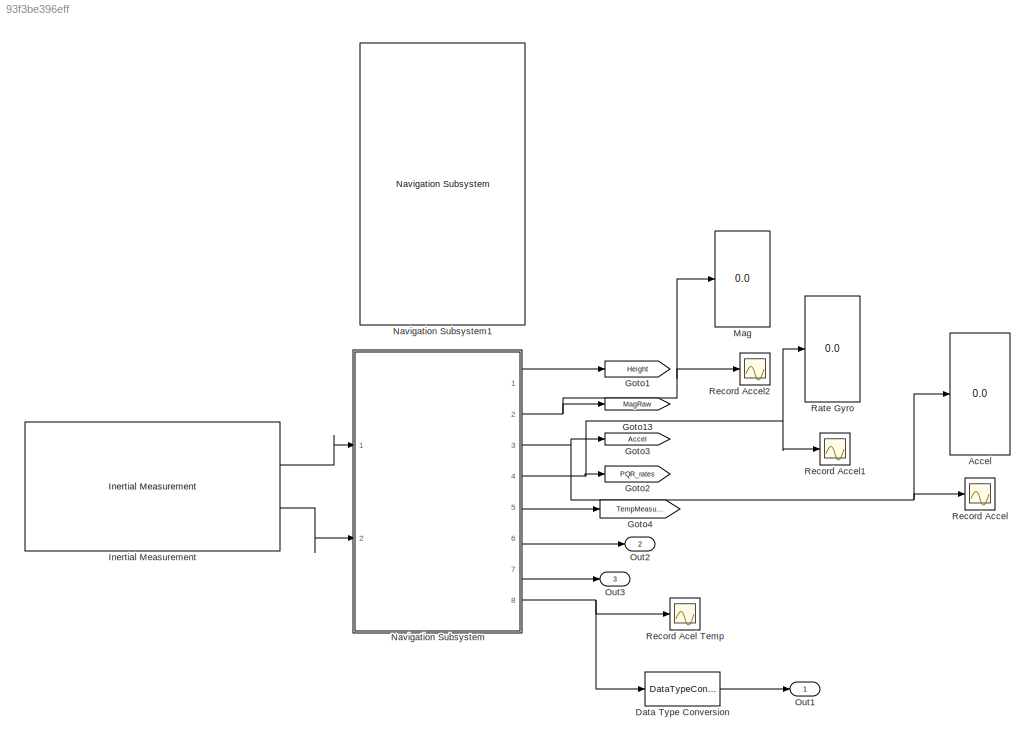
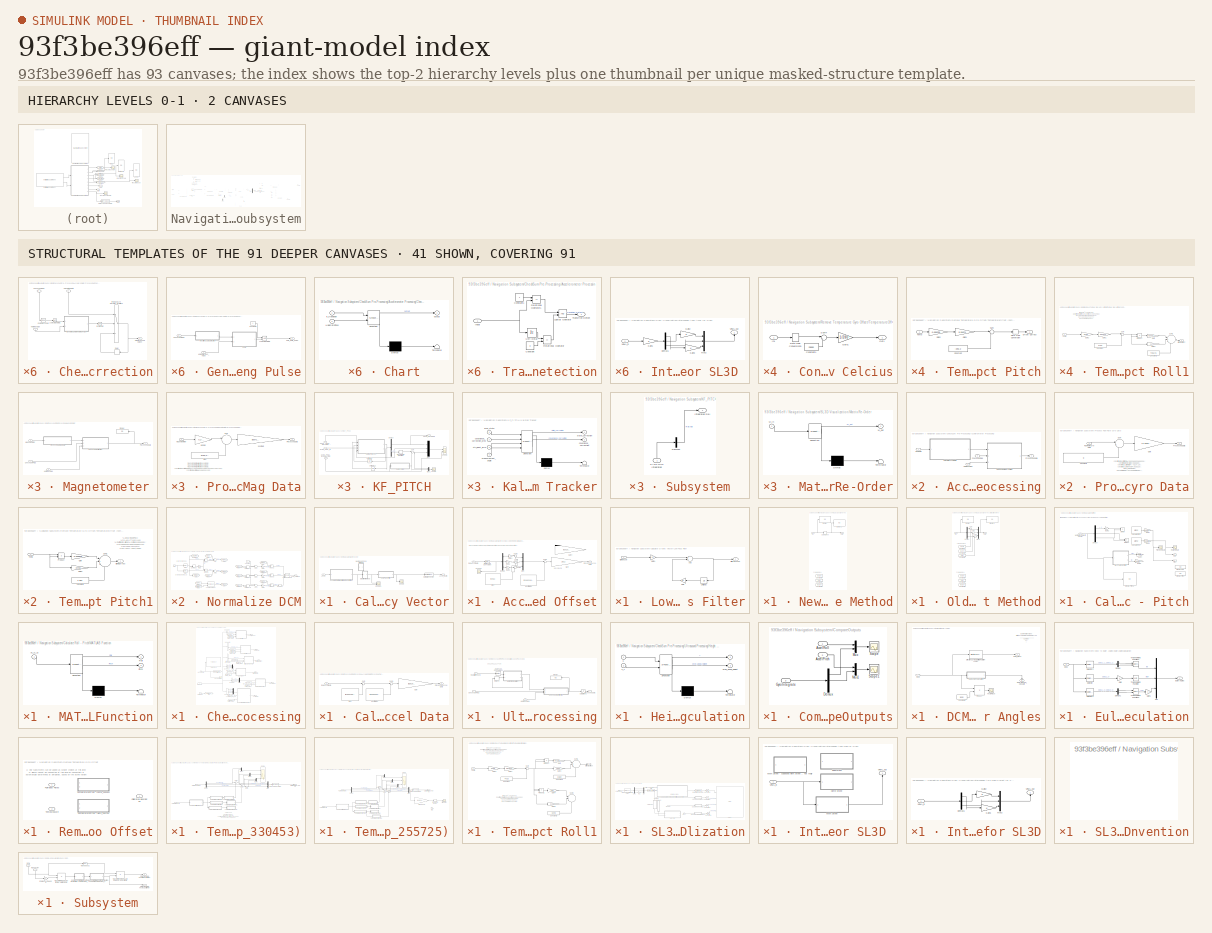
[diagram: thumbnail index - top-2 hierarchy levels (2 canvases) + 41 structural-template representatives of the remaining 91 canvases]
MODEL slx_93f3be396eff
KIND model
CONFIG AbsTol = auto
CONFIG FixedStep = auto
CONFIG MaxStep = auto
CONFIG MinStep = auto
CONFIG RelTol = 1e-3
CONFIG SampleTimeConstraint = Unconstrained
CONFIG Solver = ode45
CONFIG SolverMode = Auto
CONFIG SolverName = ode45
CONFIG StartTime = 0.0
CONFIG StopTime = 10.0
BLOCK [Display] Accel
  Decimation = 1
  Ports = [1]
BLOCK [DataTypeConversion] Data Type Conversion
  RndMeth = Floor
  SaturateOnIntegerOverflow = off
BLOCK [Goto] Goto1
  GotoTag = Height
  TagVisibility = global
BLOCK [Goto] Goto13
  GotoTag = MagRaw
  TagVisibility = global
BLOCK [Goto] Goto2
  GotoTag = PQR_rates
  TagVisibility = global
BLOCK [Goto] Goto3
  GotoTag = Accel
  TagVisibility = global
BLOCK [Goto] Goto4
  GotoTag = TempMeasure
  TagVisibility = global
BLOCK [Reference] Inertial Measurement  REF=AR_Drone_2_Library/Inertial Measurement
  Ports = [0, 2]
  SourceBlock = AR_Drone_2_Library/Inertial Measurement
  Ts = 1/400
BLOCK [Display] Mag
  Decimation = 1
  Ports = [1]
BLOCK [SubSystem] Navigation Subsystem
  Ports = [2, 8]
  RequestExecContextInheritance = off
BLOCK [Display] Navigation Subsystem/Angles
  Decimation = 1
  Ports = [1]
BLOCK [SubSystem] Navigation Subsystem/Calculate Gravity Vector
  Ports = [1, 1]
  RequestExecContextInheritance = off
BLOCK [Inport] Navigation Subsystem/Calculate Gravity Vector/Accel
  IconDisplay = Port number
BLOCK [Outport] Navigation Subsystem/Calculate Gravity Vector/Accel_Norm
  IconDisplay = Port number
BLOCK [SubSystem] Navigation Subsystem/Calculate Gravity Vector/Accelerometer Neutral Gain and Offset
  Ports = [1, 1]
  RequestExecContextInheritance = off
BLOCK [Constant] Navigation Subsystem/Calculate Gravity Vector/Accelerometer Neutral Gain and Offset/Bias
  Value = [4096]
BLOCK [DataTypeConversion] Navigation Subsystem/Calculate Gravity Vector/Accelerometer Neutral Gain and Offset/Data Type Conversion
  OutDataTypeStr = int16
  RndMeth = Floor
  SaturateOnIntegerOverflow = off
BLOCK [Demux] Navigation Subsystem/Calculate Gravity Vector/Accelerometer Neutral Gain and Offset/Demux
  DisplayOption = bar
  Outputs = 3
  Ports = [1, 3]
BLOCK [Gain] Navigation Subsystem/Calculate Gravity Vector/Accelerometer Neutral Gain and Offset/Gain
  Gain = 1/512
  OutDataTypeStr = Inherit: Inherit via internal rule
  ParamDataTypeStr = Inherit: Inherit via internal rule
  SaturateOnIntegerOverflow = off
BLOCK [Gain] Navigation Subsystem/Calculate Gravity Vector/Accelerometer Neutral Gain and Offset/Gain1
  Gain = -1
  OutDataTypeStr = double
  ParamDataTypeStr = Inherit: Inherit via internal rule
  SaturateOnIntegerOverflow = off
BLOCK [Gain] Navigation Subsystem/Calculate Gravity Vector/Accelerometer Neutral Gain and Offset/Gain2
  Gain = -1
  OutDataTypeStr = double
  ParamDataTypeStr = Inherit: Inherit via internal rule
  SaturateOnIntegerOverflow = off
BLOCK [Gain] Navigation Subsystem/Calculate Gravity Vector/Accelerometer Neutral Gain and Offset/Gain3
  Gain = -1
  OutDataTypeStr = double
  ParamDataTypeStr = Inherit: Inherit via internal rule
  SaturateOnIntegerOverflow = off
BLOCK [Gain] Navigation Subsystem/Calculate Gravity Vector/Accelerometer Neutral Gain and Offset/Gain4
  Commented = on
  Gain = [0.001953125, 0.001953125, 0.001953125]
  OutDataTypeStr = Inherit: Inherit via internal rule
  ParamDataTypeStr = Inherit: Inherit via internal rule
  SaturateOnIntegerOverflow = off
BLOCK [Mux] Navigation Subsystem/Calculate Gravity Vector/Accelerometer Neutral Gain and Offset/Mux
  DisplayOption = bar
  Inputs = 3
  Ports = [3, 1]
BLOCK [Constant] Navigation Subsystem/Calculate Gravity Vector/Accelerometer Neutral Gain and Offset/Neutral Bias
  Value = [2048 2048 2048]
BLOCK [Outport] Navigation Subsystem/Calculate Gravity Vector/Accelerometer Neutral Gain and Offset/Processed Accel Data
  IconDisplay = Port number
BLOCK [Inport] Navigation Subsystem/Calculate Gravity Vector/Accelerometer Neutral Gain and Offset/Raw Accel Data
  IconDisplay = Port number
BLOCK [Scope] Navigation Subsystem/Calculate Gravity Vector/Accelerometer Neutral Gain and Offset/Scope5
  DataFormat = StructureWithTime
  Floating = off
  LimitDataPoints = off
  NumInputPorts = 1
  Ports = [1]
  SampleTime = 0
  SaveName = ScopeData6
  ShowLegends = off
  TimeRange = 40
  YMax = 2010.554926387316
  YMin = 1530.554926387316
BLOCK [Sum] Navigation Subsystem/Calculate Gravity Vector/Accelerometer Neutral Gain and Offset/Sum
  IconShape = round
  InputSameDT = off
  Inputs = |++
  OutDataTypeStr = Inherit: Inherit via internal rule
  Ports = [2, 1]
  SaturateOnIntegerOverflow = off
BLOCK [Sum] Navigation Subsystem/Calculate Gravity Vector/Accelerometer Neutral Gain and Offset/Sum1
  IconShape = round
  InputSameDT = off
  Inputs = |+-
  OutDataTypeStr = Inherit: Inherit via internal rule
  Ports = [2, 1]
  SaturateOnIntegerOverflow = off
BLOCK [Sum] Navigation Subsystem/Calculate Gravity Vector/Accelerometer Neutral Gain and Offset/Sum2
  IconShape = round
  InputSameDT = off
  Inputs = |++
  OutDataTypeStr = Inherit: Inherit via internal rule
  Ports = [2, 1]
  SaturateOnIntegerOverflow = off
BLOCK [Sum] Navigation Subsystem/Calculate Gravity Vector/Accelerometer Neutral Gain and Offset/Sum3
  IconShape = round
  InputSameDT = off
  Inputs = |++
  OutDataTypeStr = Inherit: Inherit via internal rule
  Ports = [2, 1]
  SaturateOnIntegerOverflow = off
BLOCK [SubSystem] Navigation Subsystem/Calculate Gravity Vector/Low Pass Filter
  Ports = [1, 1]
  RequestExecContextInheritance = off
BLOCK [Sum] Navigation Subsystem/Calculate Gravity Vector/Low Pass Filter/Add
  InputSameDT = off
  OutDataTypeStr = Inherit: Inherit via internal rule
  Ports = [2, 1]
  SaturateOnIntegerOverflow = off
BLOCK [Outport] Navigation Subsystem/Calculate Gravity Vector/Low Pass Filter/Filtered Accel
  IconDisplay = Port number
BLOCK [Gain] Navigation Subsystem/Calculate Gravity Vector/Low Pass Filter/Gain
  Gain = 0.8
  OutDataTypeStr = Inherit: Inherit via internal rule
  ParamDataTypeStr = Inherit: Inherit via internal rule
  SaturateOnIntegerOverflow = off
BLOCK [Gain] Navigation Subsystem/Calculate Gravity Vector/Low Pass Filter/Gain1
  Gain = 0.2
  OutDataTypeStr = Inherit: Inherit via internal rule
  ParamDataTypeStr = Inherit: Inherit via internal rule
  SaturateOnIntegerOverflow = off
BLOCK [Inport] Navigation Subsystem/Calculate Gravity Vector/Low Pass Filter/Offset Accel
  IconDisplay = Port number
BLOCK [UnitDelay] Navigation Subsystem/Calculate Gravity Vector/Low Pass Filter/Unit Delay
  InputProcessing = Elements as channels (sample based)
  SampleTime = -1
BLOCK [SubSystem] Navigation Subsystem/Calculate Gravity Vector/New Dead Zone Method
  Ports = [1, 1]
  RequestExecContextInheritance = off
BLOCK [Constant] Navigation Subsystem/Calculate Gravity Vector/New Dead Zone Method/Constant3
  Value = 0.0306
BLOCK [Constant] Navigation Subsystem/Calculate Gravity Vector/New Dead Zone Method/Constant4
  Value = -0.04
BLOCK [Constant] Navigation Subsystem/Calculate Gravity Vector/New Dead Zone Method/Constant5
  Value = - 0.0034
BLOCK [DeadZone] Navigation Subsystem/Calculate Gravity Vector/New Dead Zone Method/Dead Zone
  LowerValue = -0.04
  UpperValue = 0.04
BLOCK [Display] Navigation Subsystem/Calculate Gravity Vector/New Dead Zone Method/Display
  Decimation = 1
  Ports = [1]
BLOCK [Display] Navigation Subsystem/Calculate Gravity Vector/New Dead Zone Method/Display1
  Decimation = 1
  Ports = [1]
BLOCK [Inport] Navigation Subsystem/Calculate Gravity Vector/New Dead Zone Method/In1
  IconDisplay = Port number
BLOCK [Outport] Navigation Subsystem/Calculate Gravity Vector/New Dead Zone Method/Out1
  IconDisplay = Port number
BLOCK [Reference] Navigation Subsystem/Calculate Gravity Vector/Normalize Vector  REF=vrlib/Utilities/Normalize Vector
  Commented = through
  Ports = [1, 1]
  SourceBlock = vrlib/Utilities/Normalize Vector
  SourceType = Normalize Vector
  maxzero = 0
BLOCK [SubSystem] Navigation Subsystem/Calculate Gravity Vector/Old Offset Method
  Ports = [1, 1]
  RequestExecContextInheritance = off
BLOCK [Constant] Navigation Subsystem/Calculate Gravity Vector/Old Offset Method/Constant
  Value = 0.015
BLOCK [Constant] Navigation Subsystem/Calculate Gravity Vector/Old Offset Method/Constant1
  Value = 0.0078
BLOCK [Constant] Navigation Subsystem/Calculate Gravity Vector/Old Offset Method/Constant2
  Value = -0.02
BLOCK [Constant] Navigation Subsystem/Calculate Gravity Vector/Old Offset Method/Constant3
  Value = 0.0306
BLOCK [Constant] Navigation Subsystem/Calculate Gravity Vector/Old Offset Method/Constant4
  Value = -0.04
BLOCK [Constant] Navigation Subsystem/Calculate Gravity Vector/Old Offset Method/Constant5
  Value = - 0.0034
BLOCK [Demux] Navigation Subsystem/Calculate Gravity Vector/Old Offset Method/Demux
  DisplayOption = bar
  Outputs = 3
  Ports = [1, 3]
BLOCK [Display] Navigation Subsystem/Calculate Gravity Vector/Old Offset Method/Display
  Decimation = 1
  Ports = [1]
BLOCK [Display] Navigation Subsystem/Calculate Gravity Vector/Old Offset Method/Display1
  Decimation = 1
  Ports = [1]
BLOCK [Inport] Navigation Subsystem/Calculate Gravity Vector/Old Offset Method/In1
  IconDisplay = Port number
BLOCK [Mux] Navigation Subsystem/Calculate Gravity Vector/Old Offset Method/Mux1
  DisplayOption = bar
  Inputs = 3
  Ports = [3, 1]
BLOCK [Outport] Navigation Subsystem/Calculate Gravity Vector/Old Offset Method/Out1
  IconDisplay = Port number
BLOCK [Sum] Navigation Subsystem/Calculate Gravity Vector/Old Offset Method/Sum
  IconShape = round
  InputSameDT = off
  Inputs = |++
  OutDataTypeStr = Inherit: Inherit via internal rule
  Ports = [2, 1]
  SaturateOnIntegerOverflow = off
BLOCK [Sum] Navigation Subsystem/Calculate Gravity Vector/Old Offset Method/Sum1
  IconShape = round
  InputSameDT = off
  Inputs = |++
  OutDataTypeStr = Inherit: Inherit via internal rule
  Ports = [2, 1]
  SaturateOnIntegerOverflow = off
BLOCK [Sum] Navigation Subsystem/Calculate Gravity Vector/Old Offset Method/Sum2
  IconShape = round
  InputSameDT = off
  Inputs = |++
  OutDataTypeStr = Inherit: Inherit via internal rule
  Ports = [2, 1]
  SaturateOnIntegerOverflow = off
BLOCK [Scope] Navigation Subsystem/Calculate Gravity Vector/Scope
  DataFormat = StructureWithTime
  Floating = off
  LimitDataPoints = off
  NumInputPorts = 1
  Ports = [1]
  SampleTime = 0
  SaveName = ScopeData11
  ShowLegends = off
  YMax = 0.05
  YMin = -1
  ZoomMode = yonly
BLOCK [Scope] Navigation Subsystem/Calculate Gravity Vector/Scope1
  DataFormat = StructureWithTime
  Floating = off
  LimitDataPoints = off
  NumInputPorts = 2
  Ports = [2]
  SampleTime = 0
  SaveName = AccelProcessed_Record
  SaveToWorkspace = on
  ShowLegends = off
  TimeRange = 6.848856838354834
  YMax = 0.05~0.05
  YMin = -1.05~-1
  ZoomMode = yonly
BLOCK [SubSystem] Navigation Subsystem/Calculate Roll - Pitch
  Ports = [1, 2]
  RequestExecContextInheritance = off
BLOCK [Trigonometry] Navigation Subsystem/Calculate Roll - Pitch/Calculate Pitch
  Operator = atan2
  Ports = [2, 1]
BLOCK [Trigonometry] Navigation Subsystem/Calculate Roll - Pitch/Calculate Roll
  Operator = atan2
  Ports = [2, 1]
BLOCK [Demux] Navigation Subsystem/Calculate Roll - Pitch/Demux
  DisplayOption = bar
  Outputs = 3
  Ports = [1, 3]
BLOCK [Display] Navigation Subsystem/Calculate Roll - Pitch/Display Pitch
  Decimation = 1
  Ports = [1]
BLOCK [Display] Navigation Subsystem/Calculate Roll - Pitch/Display Pitch1
  Decimation = 1
  Ports = [1]
BLOCK [Display] Navigation Subsystem/Calculate Roll - Pitch/Display Roll
  Decimation = 1
  Ports = [1]
BLOCK [Product] Navigation Subsystem/Calculate Roll - Pitch/Divide
  InputSameDT = off
  Inputs = */
  OutDataTypeStr = Inherit: Inherit via internal rule
  Ports = [2, 1]
  RndMeth = Floor
  SaturateOnIntegerOverflow = off
BLOCK [Product] Navigation Subsystem/Calculate Roll - Pitch/Divide1
  InputSameDT = off
  Inputs = */
  OutDataTypeStr = Inherit: Inherit via internal rule
  Ports = [2, 1]
  RndMeth = Floor
  SaturateOnIntegerOverflow = off
BLOCK [Gain] Navigation Subsystem/Calculate Roll - Pitch/Gain1
  Gain = 180/pi
  OutDataTypeStr = Inherit: Inherit via internal rule
  ParamDataTypeStr = Inherit: Inherit via internal rule
  SaturateOnIntegerOverflow = off
BLOCK [Gain] Navigation Subsystem/Calculate Roll - Pitch/Gain2
  Gain = -1
  OutDataTypeStr = Inherit: Inherit via internal rule
  ParamDataTypeStr = Inherit: Inherit via internal rule
  SaturateOnIntegerOverflow = off
BLOCK [Gain] Navigation Subsystem/Calculate Roll - Pitch/Gain3
  Gain = 180/pi
  OutDataTypeStr = Inherit: Inherit via internal rule
  ParamDataTypeStr = Inherit: Inherit via internal rule
  SaturateOnIntegerOverflow = off
BLOCK [Gain] Navigation Subsystem/Calculate Roll - Pitch/Gain4
  Gain = 180/pi
  OutDataTypeStr = Inherit: Inherit via internal rule
  ParamDataTypeStr = Inherit: Inherit via internal rule
  SaturateOnIntegerOverflow = off
BLOCK [Gain] Navigation Subsystem/Calculate Roll - Pitch/Gain5
  Gain = -180/pi
  OutDataTypeStr = Inherit: Inherit via internal rule
  ParamDataTypeStr = Inherit: Inherit via internal rule
  SaturateOnIntegerOverflow = off
BLOCK [SubSystem] Navigation Subsystem/Calculate Roll - Pitch/MATLAB Function
  ErrorFcn = Stateflow.Translate.translate
  PermitHierarchicalResolution = ExplicitOnly
  Ports = [1, 2]
  RequestExecContextInheritance = off
  SFBlockType = MATLAB Function
  TreatAsAtomicUnit = on
BLOCK [Demux] Navigation Subsystem/Calculate Roll - Pitch/MATLAB Function/ Demux 
  Outputs = 1
  Ports = [1, 1]
BLOCK [S-Function] Navigation Subsystem/Calculate Roll - Pitch/MATLAB Function/ SFunction 
  EnableBusSupport = on
  FunctionName = sf_sfun
  PortCounts = [1 3]
  Ports = [1, 3]
  Tag = Stateflow S-Function Record_accelerometer 10
BLOCK [Terminator] Navigation Subsystem/Calculate Roll - Pitch/MATLAB Function/ Terminator 
BLOCK [Inport] Navigation Subsystem/Calculate Roll - Pitch/MATLAB Function/Ax_Ay_Az
  IconDisplay = Port number
BLOCK [Outport] Navigation Subsystem/Calculate Roll - Pitch/MATLAB Function/Pitch
  IconDisplay = Port number
  Port = 2
BLOCK [Outport] Navigation Subsystem/Calculate Roll - Pitch/MATLAB Function/Roll
  IconDisplay = Port number
BLOCK [Inport] Navigation Subsystem/Calculate Roll - Pitch/Normalized Gravity Vector
  IconDisplay = Port number
BLOCK [Outport] Navigation Subsystem/Calculate Roll - Pitch/Pitch
  IconDisplay = Port number
  Port = 2
BLOCK [Scope] Navigation Subsystem/Calculate Roll - Pitch/PitchCompare
  DataFormat = StructureWithTime
  Floating = off
  LimitDataPoints = off
  NumInputPorts = 1
  Ports = [1]
  SampleTime = 0
  SaveName = ScopeData9
  ShowLegends = off
  YMax = 3.25
  YMin = 0
BLOCK [Outport] Navigation Subsystem/Calculate Roll - Pitch/Roll
  IconDisplay = Port number
BLOCK [Scope] Navigation Subsystem/Calculate Roll - Pitch/Roll Compare
  DataFormat = StructureWithTime
  Floating = off
  LimitDataPoints = off
  NumInputPorts = 1
  Ports = [1]
  SampleTime = 0
  SaveName = ScopeData5
  ShowLegends = off
  TimeRange = 30
  YMax = -1.7
  YMin = -2.175
BLOCK [SubSystem] Navigation Subsystem/CheckSum Pre-Processing
  Ports = [2, 6]
  RequestExecContextInheritance = off
BLOCK [Outport] Navigation Subsystem/CheckSum Pre-Processing/AccelTempMeasure
  IconDisplay = Port number
  Port = 6
BLOCK [Outport] Navigation Subsystem/CheckSum Pre-Processing/Accelerometer
  IconDisplay = Port number
  Port = 4
BLOCK [SubSystem] Navigation Subsystem/CheckSum Pre-Processing/Accelerometer Processing
  Ports = [3, 1]
  RequestExecContextInheritance = off
BLOCK [SubSystem] Navigation Subsystem/CheckSum Pre-Processing/Accelerometer Processing/Calculate Accel Data
  Commented = through
  Ports = [1, 1]
  RequestExecContextInheritance = off
BLOCK [Constant] Navigation Subsystem/CheckSum Pre-Processing/Accelerometer Processing/Calculate Accel Data/Bias
  Value = [0 4096 4096]
BLOCK [Gain] Navigation Subsystem/CheckSum Pre-Processing/Accelerometer Processing/Calculate Accel Data/Gain
  Gain = [0.001953125, 0.001953125, 0.001953125]
  OutDataTypeStr = Inherit: Inherit via internal rule
  ParamDataTypeStr = Inherit: Inherit via internal rule
  SaturateOnIntegerOverflow = off
BLOCK [Constant] Navigation Subsystem/CheckSum Pre-Processing/Accelerometer Processing/Calculate Accel Data/Neutral Bias
  Value = [2048 2048 2048]
BLOCK [Outport] Navigation Subsystem/CheckSum Pre-Processing/Accelerometer Processing/Calculate Accel Data/Processed Accel Data
  IconDisplay = Port number
BLOCK [Inport] Navigation Subsystem/CheckSum Pre-Processing/Accelerometer Processing/Calculate Accel Data/Raw Accel Data
  IconDisplay = Port number
BLOCK [Sum] Navigation Subsystem/CheckSum Pre-Processing/Accelerometer Processing/Calculate Accel Data/Sum
  IconShape = round
  InputSameDT = off
  Inputs = |-+
  OutDataTypeStr = Inherit: Inherit via internal rule
  Ports = [2, 1]
  SaturateOnIntegerOverflow = off
BLOCK [Sum] Navigation Subsystem/CheckSum Pre-Processing/Accelerometer Processing/Calculate Accel Data/Sum1
  IconShape = round
  InputSameDT = off
  Inputs = |+-
  OutDataTypeStr = Inherit: Inherit via internal rule
  Ports = [2, 1]
  SaturateOnIntegerOverflow = off
BLOCK [SubSystem] Navigation Subsystem/CheckSum Pre-Processing/Accelerometer Processing/CheckSum Correction
  Ports = [3, 1]
  RequestExecContextInheritance = off
BLOCK [Inport] Navigation Subsystem/CheckSum Pre-Processing/Accelerometer Processing/CheckSum Correction/CalculatedData
  IconDisplay = Port number
BLOCK [Inport] Navigation Subsystem/CheckSum Pre-Processing/Accelerometer Processing/CheckSum Correction/CheckSumFlag
  IconDisplay = Port number
  Port = 2
BLOCK [Reference] Navigation Subsystem/CheckSum Pre-Processing/Accelerometer Processing/CheckSum Correction/Compare To Zero  REF=simulink/Logic and Bit
Operations/Compare
To Zero
  OutDataTypeStr = boolean
  Ports = [1, 1]
  SourceBlock = simulink/Logic and Bit\nOperations/Compare\nTo Zero
  SourceType = Compare To Zero
  ZeroCross = on
  relop = >
BLOCK [Delay] Navigation Subsystem/CheckSum Pre-Processing/Accelerometer Processing/CheckSum Correction/Delay
  DelayLength = 3
  InitialCondition = 0
  InputPortMap = u0
  Ports = [1, 1]
BLOCK [SubSystem] Navigation Subsystem/CheckSum Pre-Processing/Accelerometer Processing/CheckSum Correction/Generate Sample Holding Pulse
  Ports = [2, 1]
  RequestExecContextInheritance = off
BLOCK [SubSystem] Navigation Subsystem/CheckSum Pre-Processing/Accelerometer Processing/CheckSum Correction/Generate Sample Holding Pulse/Chart
  ErrorFcn = Stateflow.Translate.translate
  PermitHierarchicalResolution = ExplicitOnly
  Ports = [2, 1]
  RequestExecContextInheritance = off
  SFBlockType = Chart
  TreatAsAtomicUnit = on
BLOCK [Demux] Navigation Subsystem/CheckSum Pre-Processing/Accelerometer Processing/CheckSum Correction/Generate Sample Holding Pulse/Chart/ Demux 
  Outputs = 1
  Ports = [1, 1]
BLOCK [S-Function] Navigation Subsystem/CheckSum Pre-Processing/Accelerometer Processing/CheckSum Correction/Generate Sample Holding Pulse/Chart/ SFunction 
  EnableBusSupport = on
  FunctionName = sf_sfun
  PortCounts = [2 2]
  Ports = [2, 2]
  Tag = Stateflow S-Function Record_accelerometer 2
BLOCK [Terminator] Navigation Subsystem/CheckSum Pre-Processing/Accelerometer Processing/CheckSum Correction/Generate Sample Holding Pulse/Chart/ Terminator 
BLOCK [Inport] Navigation Subsystem/CheckSum Pre-Processing/Accelerometer Processing/CheckSum Correction/Generate Sample Holding Pulse/Chart/HoldDataTicks
  IconDisplay = Port number
  Port = 2
BLOCK [Inport] Navigation Subsystem/CheckSum Pre-Processing/Accelerometer Processing/CheckSum Correction/Generate Sample Holding Pulse/Chart/if_transition
  IconDisplay = Port number
BLOCK [Outport] Navigation Subsystem/CheckSum Pre-Processing/Accelerometer Processing/CheckSum Correction/Generate Sample Holding Pulse/Chart/output
  IconDisplay = Port number
BLOCK [Inport] Navigation Subsystem/CheckSum Pre-Processing/Accelerometer Processing/CheckSum Correction/Generate Sample Holding Pulse/CheckSumFlag
  IconDisplay = Port number
BLOCK [Constant] Navigation Subsystem/CheckSum Pre-Processing/Accelerometer Processing/CheckSum Correction/Generate Sample Holding Pulse/Constant2
BLOCK [Inport] Navigation Subsystem/CheckSum Pre-Processing/Accelerometer Processing/CheckSum Correction/Generate Sample Holding Pulse/HoldDataTicks_Value
  IconDisplay = Port number
  Port = 2
BLOCK [Outport] Navigation Subsystem/CheckSum Pre-Processing/Accelerometer Processing/CheckSum Correction/Generate Sample Holding Pulse/Hold_Data_Pulse
  IconDisplay = Port number
BLOCK [Logic] Navigation Subsystem/CheckSum Pre-Processing/Accelerometer Processing/CheckSum Correction/Generate Sample Holding Pulse/Logical Operator1
  AllPortsSameDT = off
  OutDataTypeStr = boolean
  Ports = [2, 1]
BLOCK [SubSystem] Navigation Subsystem/CheckSum Pre-Processing/Accelerometer Processing/CheckSum Correction/Generate Sample Holding Pulse/Transition Logic Detection
  Ports = [1, 1]
  RequestExecContextInheritance = off
BLOCK [Constant] Navigation Subsystem/CheckSum Pre-Processing/Accelerometer Processing/CheckSum Correction/Generate Sample Holding Pulse/Transition Logic Detection/Constant
  Value = 0
BLOCK [Constant] Navigation Subsystem/CheckSum Pre-Processing/Accelerometer Processing/CheckSum Correction/Generate Sample Holding Pulse/Transition Logic Detection/Constant1
BLOCK [Inport] Navigation Subsystem/CheckSum Pre-Processing/Accelerometer Processing/CheckSum Correction/Generate Sample Holding Pulse/Transition Logic Detection/Input
  IconDisplay = Port number
BLOCK [Logic] Navigation Subsystem/CheckSum Pre-Processing/Accelerometer Processing/CheckSum Correction/Generate Sample Holding Pulse/Transition Logic Detection/Logical Operator
  AllPortsSameDT = off
  OutDataTypeStr = boolean
  Ports = [2, 1]
BLOCK [RelationalOperator] Navigation Subsystem/CheckSum Pre-Processing/Accelerometer Processing/CheckSum Correction/Generate Sample Holding Pulse/Transition Logic Detection/Relational Operator
  InputSameDT = off
  Operator = ==
  OutDataTypeStr = boolean
  Ports = [2, 1]
BLOCK [RelationalOperator] Navigation Subsystem/CheckSum Pre-Processing/Accelerometer Processing/CheckSum Correction/Generate Sample Holding Pulse/Transition Logic Detection/Relational Operator1
  InputSameDT = off
  Operator = ==
  OutDataTypeStr = boolean
  Ports = [2, 1]
BLOCK [Outport] Navigation Subsystem/CheckSum Pre-Processing/Accelerometer Processing/CheckSum Correction/Generate Sample Holding Pulse/Transition Logic Detection/Transition Detect
  IconDisplay = Port number
BLOCK [UnitDelay] Navigation Subsystem/CheckSum Pre-Processing/Accelerometer Processing/CheckSum Correction/Generate Sample Holding Pulse/Transition Logic Detection/Unit Delay
  InputProcessing = Elements as channels (sample based)
  SampleTime = -1
BLOCK [Inport] Navigation Subsystem/CheckSum Pre-Processing/Accelerometer Processing/CheckSum Correction/Holding Value
  IconDisplay = Port number
  Port = 3
BLOCK [Switch] Navigation Subsystem/CheckSum Pre-Processing/Accelerometer Processing/CheckSum Correction/If True, we have good data, If false, we have bad data, With bad data, use previous good data from N samples ago and hold it on that value for M samples
  Criteria = u2 > Threshold
  InputSameDT = off
  SaturateOnIntegerOverflow = off
BLOCK [Logic] Navigation Subsystem/CheckSum Pre-Processing/Accelerometer Processing/CheckSum Correction/Invert Logic
  AllPortsSameDT = off
  Operator = NOT
  OutDataTypeStr = boolean
  Ports = [1, 1]
BLOCK [Logic] Navigation Subsystem/CheckSum Pre-Processing/Accelerometer Processing/CheckSum Correction/Logical Operator1
  AllPortsSameDT = off
  Operator = NOT
  OutDataTypeStr = boolean
  Ports = [1, 1]
BLOCK [Outport] Navigation Subsystem/CheckSum Pre-Processing/Accelerometer Processing/CheckSum Correction/Pre-Processed Height
  IconDisplay = Port number
BLOCK [Inport] Navigation Subsystem/CheckSum Pre-Processing/Accelerometer Processing/CheckSum Flag
  IconDisplay = Port number
  Port = 2
BLOCK [Inport] Navigation Subsystem/CheckSum Pre-Processing/Accelerometer Processing/Holding Value
  IconDisplay = Port number
  Port = 3
BLOCK [Outport] Navigation Subsystem/CheckSum Pre-Processing/Accelerometer Processing/Processed Data
  IconDisplay = Port number
BLOCK [Inport] Navigation Subsystem/CheckSum Pre-Processing/Accelerometer Processing/Raw Data
  IconDisplay = Port number
BLOCK [From] Navigation Subsystem/CheckSum Pre-Processing/Accelerometer_Goto_Tag
  GotoTag = CheckSum_Tag
BLOCK [Outport] Navigation Subsystem/CheckSum Pre-Processing/Body Rates - pqr
  IconDisplay = Port number
  Port = 3
BLOCK [BusSelector] Navigation Subsystem/CheckSum Pre-Processing/Bus Selector
  OutputSignals = vx,vy,vz
  Ports = [1, 3]
BLOCK [BusSelector] Navigation Subsystem/CheckSum Pre-Processing/Bus Selector1
  OutputSignals = ultrasound
  Ports = [1, 1]
BLOCK [BusSelector] Navigation Subsystem/CheckSum Pre-Processing/Bus Selector2
  OutputSignals = mx,my,mz
  Ports = [1, 3]
BLOCK [BusSelector] Navigation Subsystem/CheckSum Pre-Processing/Bus Selector3
  OutputSignals = temperature_gyro
  Ports = [1, 1]
BLOCK [BusSelector] Navigation Subsystem/CheckSum Pre-Processing/Bus Selector4
  OutputSignals = ax,ay,az
  Ports = [1, 3]
BLOCK [BusSelector] Navigation Subsystem/CheckSum Pre-Processing/Bus Selector5
  OutputSignals = temperature_acc
  Ports = [1, 1]
BLOCK [Scope] Navigation Subsystem/CheckSum Pre-Processing/CheckSum Value
  Commented = on
  DataFormat = StructureWithTime
  Floating = off
  LimitDataPoints = off
  NumInputPorts = 1
  Ports = [1]
  SampleTime = 0
  SaveName = CheckSum
  SaveToWorkspace = on
  ShowLegends = off
  YMax = 2500
  YMin = 0
  ZoomMode = xonly
BLOCK [Inport] Navigation Subsystem/CheckSum Pre-Processing/CheckSumFlag
  IconDisplay = Port number
  Port = 2
BLOCK [Goto] Navigation Subsystem/CheckSum Pre-Processing/Goto
  GotoTag = CheckSum_Tag
  IconDisplay = Signal name
BLOCK [Goto] Navigation Subsystem/CheckSum Pre-Processing/Goto1
  GotoTag = HoldingValue
  IconDisplay = Signal name
BLOCK [Constant] Navigation Subsystem/CheckSum Pre-Processing/Holding Value
  Value = 50
BLOCK [From] Navigation Subsystem/CheckSum Pre-Processing/Holding_Value
  GotoTag = HoldingValue
BLOCK [From] Navigation Subsystem/CheckSum Pre-Processing/Holding_Value1
  GotoTag = HoldingValue
BLOCK [From] Navigation Subsystem/CheckSum Pre-Processing/Holding_Value2
  GotoTag = HoldingValue
BLOCK [From] Navigation Subsystem/CheckSum Pre-Processing/Holding_Value3
  GotoTag = HoldingValue
BLOCK [From] Navigation Subsystem/CheckSum Pre-Processing/Holding_Value4
  GotoTag = HoldingValue
BLOCK [From] Navigation Subsystem/CheckSum Pre-Processing/Holding_Value5
  GotoTag = HoldingValue
BLOCK [Inport] Navigation Subsystem/CheckSum Pre-Processing/IMU Packets
  IconDisplay = Port number
BLOCK [From] Navigation Subsystem/CheckSum Pre-Processing/Mag_GoTo_Tag
  GotoTag = CheckSum_Tag
BLOCK [SubSystem] Navigation Subsystem/CheckSum Pre-Processing/Magnetometer
  Ports = [3, 1]
  RequestExecContextInheritance = off
BLOCK [SubSystem] Navigation Subsystem/CheckSum Pre-Processing/Magnetometer/CheckSum Correction
  Ports = [3, 1]
  RequestExecContextInheritance = off
BLOCK [Inport] Navigation Subsystem/CheckSum Pre-Processing/Magnetometer/CheckSum Correction/CalculatedData
  IconDisplay = Port number
BLOCK [Inport] Navigation Subsystem/CheckSum Pre-Processing/Magnetometer/CheckSum Correction/CheckSumFlag
  IconDisplay = Port number
  Port = 2
BLOCK [Reference] Navigation Subsystem/CheckSum Pre-Processing/Magnetometer/CheckSum Correction/Compare To Zero  REF=simulink/Logic and Bit
Operations/Compare
To Zero
  OutDataTypeStr = boolean
  Ports = [1, 1]
  SourceBlock = simulink/Logic and Bit\nOperations/Compare\nTo Zero
  SourceType = Compare To Zero
  ZeroCross = on
  relop = >
BLOCK [Delay] Navigation Subsystem/CheckSum Pre-Processing/Magnetometer/CheckSum Correction/Delay
  DelayLength = 3
  InitialCondition = 0
  InputPortMap = u0
  Ports = [1, 1]
BLOCK [SubSystem] Navigation Subsystem/CheckSum Pre-Processing/Magnetometer/CheckSum Correction/Generate Sample Holding Pulse
  Ports = [2, 1]
  RequestExecContextInheritance = off
BLOCK [SubSystem] Navigation Subsystem/CheckSum Pre-Processing/Magnetometer/CheckSum Correction/Generate Sample Holding Pulse/Chart
  ErrorFcn = Stateflow.Translate.translate
  PermitHierarchicalResolution = ExplicitOnly
  Ports = [2, 1]
  RequestExecContextInheritance = off
  SFBlockType = Chart
  TreatAsAtomicUnit = on
BLOCK [Demux] Navigation Subsystem/CheckSum Pre-Processing/Magnetometer/CheckSum Correction/Generate Sample Holding Pulse/Chart/ Demux 
  Outputs = 1
  Ports = [1, 1]
BLOCK [S-Function] Navigation Subsystem/CheckSum Pre-Processing/Magnetometer/CheckSum Correction/Generate Sample Holding Pulse/Chart/ SFunction 
  EnableBusSupport = on
  FunctionName = sf_sfun
  PortCounts = [2 2]
  Ports = [2, 2]
  Tag = Stateflow S-Function Record_accelerometer 5
BLOCK [Terminator] Navigation Subsystem/CheckSum Pre-Processing/Magnetometer/CheckSum Correction/Generate Sample Holding Pulse/Chart/ Terminator 
BLOCK [Inport] Navigation Subsystem/CheckSum Pre-Processing/Magnetometer/CheckSum Correction/Generate Sample Holding Pulse/Chart/HoldDataTicks
  IconDisplay = Port number
  Port = 2
BLOCK [Inport] Navigation Subsystem/CheckSum Pre-Processing/Magnetometer/CheckSum Correction/Generate Sample Holding Pulse/Chart/if_transition
  IconDisplay = Port number
BLOCK [Outport] Navigation Subsystem/CheckSum Pre-Processing/Magnetometer/CheckSum Correction/Generate Sample Holding Pulse/Chart/output
  IconDisplay = Port number
BLOCK [Inport] Navigation Subsystem/CheckSum Pre-Processing/Magnetometer/CheckSum Correction/Generate Sample Holding Pulse/CheckSumFlag
  IconDisplay = Port number
BLOCK [Constant] Navigation Subsystem/CheckSum Pre-Processing/Magnetometer/CheckSum Correction/Generate Sample Holding Pulse/Constant2
BLOCK [Inport] Navigation Subsystem/CheckSum Pre-Processing/Magnetometer/CheckSum Correction/Generate Sample Holding Pulse/HoldDataTicks_Value
  IconDisplay = Port number
  Port = 2
BLOCK [Outport] Navigation Subsystem/CheckSum Pre-Processing/Magnetometer/CheckSum Correction/Generate Sample Holding Pulse/Hold_Data_Pulse
  IconDisplay = Port number
BLOCK [Logic] Navigation Subsystem/CheckSum Pre-Processing/Magnetometer/CheckSum Correction/Generate Sample Holding Pulse/Logical Operator1
  AllPortsSameDT = off
  OutDataTypeStr = boolean
  Ports = [2, 1]
BLOCK [SubSystem] Navigation Subsystem/CheckSum Pre-Processing/Magnetometer/CheckSum Correction/Generate Sample Holding Pulse/Transition Logic Detection
  Ports = [1, 1]
  RequestExecContextInheritance = off
BLOCK [Constant] Navigation Subsystem/CheckSum Pre-Processing/Magnetometer/CheckSum Correction/Generate Sample Holding Pulse/Transition Logic Detection/Constant
  Value = 0
BLOCK [Constant] Navigation Subsystem/CheckSum Pre-Processing/Magnetometer/CheckSum Correction/Generate Sample Holding Pulse/Transition Logic Detection/Constant1
BLOCK [Inport] Navigation Subsystem/CheckSum Pre-Processing/Magnetometer/CheckSum Correction/Generate Sample Holding Pulse/Transition Logic Detection/Input
  IconDisplay = Port number
BLOCK [Logic] Navigation Subsystem/CheckSum Pre-Processing/Magnetometer/CheckSum Correction/Generate Sample Holding Pulse/Transition Logic Detection/Logical Operator
  AllPortsSameDT = off
  OutDataTypeStr = boolean
  Ports = [2, 1]
BLOCK [RelationalOperator] Navigation Subsystem/CheckSum Pre-Processing/Magnetometer/CheckSum Correction/Generate Sample Holding Pulse/Transition Logic Detection/Relational Operator
  InputSameDT = off
  Operator = ==
  OutDataTypeStr = boolean
  Ports = [2, 1]
BLOCK [RelationalOperator] Navigation Subsystem/CheckSum Pre-Processing/Magnetometer/CheckSum Correction/Generate Sample Holding Pulse/Transition Logic Detection/Relational Operator1
  InputSameDT = off
  Operator = ==
  OutDataTypeStr = boolean
  Ports = [2, 1]
BLOCK [Outport] Navigation Subsystem/CheckSum Pre-Processing/Magnetometer/CheckSum Correction/Generate Sample Holding Pulse/Transition Logic Detection/Transition Detect
  IconDisplay = Port number
BLOCK [UnitDelay] Navigation Subsystem/CheckSum Pre-Processing/Magnetometer/CheckSum Correction/Generate Sample Holding Pulse/Transition Logic Detection/Unit Delay
  InputProcessing = Elements as channels (sample based)
  SampleTime = -1
BLOCK [Inport] Navigation Subsystem/CheckSum Pre-Processing/Magnetometer/CheckSum Correction/Holding Value
  IconDisplay = Port number
  Port = 3
BLOCK [Switch] Navigation Subsystem/CheckSum Pre-Processing/Magnetometer/CheckSum Correction/If True, we have good data, If false, we have bad data, With bad data, use previous good data from N samples ago and hold it on that value for M samples
  Criteria = u2 > Threshold
  InputSameDT = off
  SaturateOnIntegerOverflow = off
BLOCK [Logic] Navigation Subsystem/CheckSum Pre-Processing/Magnetometer/CheckSum Correction/Invert Logic
  AllPortsSameDT = off
  Operator = NOT
  OutDataTypeStr = boolean
  Ports = [1, 1]
BLOCK [Logic] Navigation Subsystem/CheckSum Pre-Processing/Magnetometer/CheckSum Correction/Logical Operator1
  AllPortsSameDT = off
  Operator = NOT
  OutDataTypeStr = boolean
  Ports = [1, 1]
BLOCK [Outport] Navigation Subsystem/CheckSum Pre-Processing/Magnetometer/CheckSum Correction/Pre-Processed Data
  IconDisplay = Port number
BLOCK [Inport] Navigation Subsystem/CheckSum Pre-Processing/Magnetometer/CheckSum Flag
  IconDisplay = Port number
  Port = 2
BLOCK [Display] Navigation Subsystem/CheckSum Pre-Processing/Magnetometer/Display
  Decimation = 1
  Ports = [1]
BLOCK [Inport] Navigation Subsystem/CheckSum Pre-Processing/Magnetometer/Holding Value
  IconDisplay = Port number
  Port = 3
BLOCK [Inport] Navigation Subsystem/CheckSum Pre-Processing/Magnetometer/Magnetometer
  IconDisplay = Port number
BLOCK [SubSystem] Navigation Subsystem/CheckSum Pre-Processing/Magnetometer/Process Raw Mag Data
  Commented = through
  Ports = [1, 1]
  RequestExecContextInheritance = off
BLOCK [Constant] Navigation Subsystem/CheckSum Pre-Processing/Magnetometer/Process Raw Mag Data/Bias
  Value = [ 118.0, -65.0, 110.0 ]
BLOCK [Inport] Navigation Subsystem/CheckSum Pre-Processing/Magnetometer/Process Raw Mag Data/Magnetometer
  IconDisplay = Port number
BLOCK [Outport] Navigation Subsystem/CheckSum Pre-Processing/Magnetometer/Process Raw Mag Data/ProcessedData
  IconDisplay = Port number
BLOCK [Sum] Navigation Subsystem/CheckSum Pre-Processing/Magnetometer/Process Raw Mag Data/Sum
  IconShape = round
  InputSameDT = off
  Inputs = |+-
  OutDataTypeStr = Inherit: Inherit via internal rule
  Ports = [2, 1]
  SaturateOnIntegerOverflow = off
BLOCK [Gain] Navigation Subsystem/CheckSum Pre-Processing/Magnetometer/Process Raw Mag Data/postGain
  Gain = [0.0071492608, 0.0070882491, 0.0074057781]
  OutDataTypeStr = Inherit: Inherit via internal rule
  ParamDataTypeStr = Inherit: Inherit via internal rule
  SaturateOnIntegerOverflow = off
BLOCK [Gain] Navigation Subsystem/CheckSum Pre-Processing/Magnetometer/Process Raw Mag Data/preGain
  Gain = [-1 1 -1]
  OutDataTypeStr = Inherit: Inherit via internal rule
  ParamDataTypeStr = Inherit: Inherit via internal rule
  SaturateOnIntegerOverflow = off
BLOCK [Outport] Navigation Subsystem/CheckSum Pre-Processing/Magnetometer/Processed Data
  IconDisplay = Port number
BLOCK [Outport] Navigation Subsystem/CheckSum Pre-Processing/Magnetometer_Processed
  IconDisplay = Port number
  Port = 2
BLOCK [Mux] Navigation Subsystem/CheckSum Pre-Processing/Mux1
  DisplayOption = bar
  Inputs = 3
  Ports = [3, 1]
BLOCK [Mux] Navigation Subsystem/CheckSum Pre-Processing/Mux2
  DisplayOption = bar
  Inputs = 3
  Ports = [3, 1]
BLOCK [Mux] Navigation Subsystem/CheckSum Pre-Processing/Mux3
  DisplayOption = bar
  Inputs = 3
  Ports = [3, 1]
BLOCK [SubSystem] Navigation Subsystem/CheckSum Pre-Processing/RateGyro Processing
  Ports = [3, 1]
  RequestExecContextInheritance = off
BLOCK [SubSystem] Navigation Subsystem/CheckSum Pre-Processing/RateGyro Processing/CheckSum Correction
  Ports = [3, 1]
  RequestExecContextInheritance = off
BLOCK [Inport] Navigation Subsystem/CheckSum Pre-Processing/RateGyro Processing/CheckSum Correction/CalculatedData
  IconDisplay = Port number
BLOCK [Inport] Navigation Subsystem/CheckSum Pre-Processing/RateGyro Processing/CheckSum Correction/CheckSumFlag
  IconDisplay = Port number
  Port = 2
BLOCK [Reference] Navigation Subsystem/CheckSum Pre-Processing/RateGyro Processing/CheckSum Correction/Compare To Zero  REF=simulink/Logic and Bit
Operations/Compare
To Zero
  OutDataTypeStr = boolean
  Ports = [1, 1]
  SourceBlock = simulink/Logic and Bit\nOperations/Compare\nTo Zero
  SourceType = Compare To Zero
  ZeroCross = on
  relop = >
BLOCK [Delay] Navigation Subsystem/CheckSum Pre-Processing/RateGyro Processing/CheckSum Correction/Delay
  DelayLength = 3
  InitialCondition = 0
  InputPortMap = u0
  Ports = [1, 1]
BLOCK [SubSystem] Navigation Subsystem/CheckSum Pre-Processing/RateGyro Processing/CheckSum Correction/Generate Sample Holding Pulse
  Ports = [2, 1]
  RequestExecContextInheritance = off
BLOCK [SubSystem] Navigation Subsystem/CheckSum Pre-Processing/RateGyro Processing/CheckSum Correction/Generate Sample Holding Pulse/Chart
  ErrorFcn = Stateflow.Translate.translate
  PermitHierarchicalResolution = ExplicitOnly
  Ports = [2, 1]
  RequestExecContextInheritance = off
  SFBlockType = Chart
  TreatAsAtomicUnit = on
BLOCK [Demux] Navigation Subsystem/CheckSum Pre-Processing/RateGyro Processing/CheckSum Correction/Generate Sample Holding Pulse/Chart/ Demux 
  Outputs = 1
  Ports = [1, 1]
BLOCK [S-Function] Navigation Subsystem/CheckSum Pre-Processing/RateGyro Processing/CheckSum Correction/Generate Sample Holding Pulse/Chart/ SFunction 
  EnableBusSupport = on
  FunctionName = sf_sfun
  PortCounts = [2 2]
  Ports = [2, 2]
  Tag = Stateflow S-Function Record_accelerometer 3
BLOCK [Terminator] Navigation Subsystem/CheckSum Pre-Processing/RateGyro Processing/CheckSum Correction/Generate Sample Holding Pulse/Chart/ Terminator 
BLOCK [Inport] Navigation Subsystem/CheckSum Pre-Processing/RateGyro Processing/CheckSum Correction/Generate Sample Holding Pulse/Chart/HoldDataTicks
  IconDisplay = Port number
  Port = 2
BLOCK [Inport] Navigation Subsystem/CheckSum Pre-Processing/RateGyro Processing/CheckSum Correction/Generate Sample Holding Pulse/Chart/if_transition
  IconDisplay = Port number
BLOCK [Outport] Navigation Subsystem/CheckSum Pre-Processing/RateGyro Processing/CheckSum Correction/Generate Sample Holding Pulse/Chart/output
  IconDisplay = Port number
BLOCK [Inport] Navigation Subsystem/CheckSum Pre-Processing/RateGyro Processing/CheckSum Correction/Generate Sample Holding Pulse/CheckSumFlag
  IconDisplay = Port number
BLOCK [Constant] Navigation Subsystem/CheckSum Pre-Processing/RateGyro Processing/CheckSum Correction/Generate Sample Holding Pulse/Constant2
BLOCK [Inport] Navigation Subsystem/CheckSum Pre-Processing/RateGyro Processing/CheckSum Correction/Generate Sample Holding Pulse/HoldDataTicks_Value
  IconDisplay = Port number
  Port = 2
BLOCK [Outport] Navigation Subsystem/CheckSum Pre-Processing/RateGyro Processing/CheckSum Correction/Generate Sample Holding Pulse/Hold_Data_Pulse
  IconDisplay = Port number
BLOCK [Logic] Navigation Subsystem/CheckSum Pre-Processing/RateGyro Processing/CheckSum Correction/Generate Sample Holding Pulse/Logical Operator1
  AllPortsSameDT = off
  OutDataTypeStr = boolean
  Ports = [2, 1]
BLOCK [SubSystem] Navigation Subsystem/CheckSum Pre-Processing/RateGyro Processing/CheckSum Correction/Generate Sample Holding Pulse/Transition Logic Detection
  Ports = [1, 1]
  RequestExecContextInheritance = off
BLOCK [Constant] Navigation Subsystem/CheckSum Pre-Processing/RateGyro Processing/CheckSum Correction/Generate Sample Holding Pulse/Transition Logic Detection/Constant
  Value = 0
BLOCK [Constant] Navigation Subsystem/CheckSum Pre-Processing/RateGyro Processing/CheckSum Correction/Generate Sample Holding Pulse/Transition Logic Detection/Constant1
BLOCK [Inport] Navigation Subsystem/CheckSum Pre-Processing/RateGyro Processing/CheckSum Correction/Generate Sample Holding Pulse/Transition Logic Detection/Input
  IconDisplay = Port number
BLOCK [Logic] Navigation Subsystem/CheckSum Pre-Processing/RateGyro Processing/CheckSum Correction/Generate Sample Holding Pulse/Transition Logic Detection/Logical Operator
  AllPortsSameDT = off
  OutDataTypeStr = boolean
  Ports = [2, 1]
BLOCK [RelationalOperator] Navigation Subsystem/CheckSum Pre-Processing/RateGyro Processing/CheckSum Correction/Generate Sample Holding Pulse/Transition Logic Detection/Relational Operator
  InputSameDT = off
  Operator = ==
  OutDataTypeStr = boolean
  Ports = [2, 1]
BLOCK [RelationalOperator] Navigation Subsystem/CheckSum Pre-Processing/RateGyro Processing/CheckSum Correction/Generate Sample Holding Pulse/Transition Logic Detection/Relational Operator1
  InputSameDT = off
  Operator = ==
  OutDataTypeStr = boolean
  Ports = [2, 1]
BLOCK [Outport] Navigation Subsystem/CheckSum Pre-Processing/RateGyro Processing/CheckSum Correction/Generate Sample Holding Pulse/Transition Logic Detection/Transition Detect
  IconDisplay = Port number
BLOCK [UnitDelay] Navigation Subsystem/CheckSum Pre-Processing/RateGyro Processing/CheckSum Correction/Generate Sample Holding Pulse/Transition Logic Detection/Unit Delay
  InputProcessing = Elements as channels (sample based)
  SampleTime = -1
BLOCK [Inport] Navigation Subsystem/CheckSum Pre-Processing/RateGyro Processing/CheckSum Correction/Holding Value
  IconDisplay = Port number
  Port = 3
BLOCK [Switch] Navigation Subsystem/CheckSum Pre-Processing/RateGyro Processing/CheckSum Correction/If True, we have good data, If false, we have bad data, With bad data, use previous good data from N samples ago and hold it on that value for M samples
  Criteria = u2 > Threshold
  InputSameDT = off
  SaturateOnIntegerOverflow = off
BLOCK [Logic] Navigation Subsystem/CheckSum Pre-Processing/RateGyro Processing/CheckSum Correction/Invert Logic
  AllPortsSameDT = off
  Operator = NOT
  OutDataTypeStr = boolean
  Ports = [1, 1]
BLOCK [Logic] Navigation Subsystem/CheckSum Pre-Processing/RateGyro Processing/CheckSum Correction/Logical Operator1
  AllPortsSameDT = off
  Operator = NOT
  OutDataTypeStr = boolean
  Ports = [1, 1]
BLOCK [Outport] Navigation Subsystem/CheckSum Pre-Processing/RateGyro Processing/CheckSum Correction/Pre-Processed Height
  IconDisplay = Port number
BLOCK [Inport] Navigation Subsystem/CheckSum Pre-Processing/RateGyro Processing/CheckSum Flag
  IconDisplay = Port number
  Port = 2
BLOCK [Inport] Navigation Subsystem/CheckSum Pre-Processing/RateGyro Processing/Holding Value
  IconDisplay = Port number
  Port = 3
BLOCK [SubSystem] Navigation Subsystem/CheckSum Pre-Processing/RateGyro Processing/Process Data
  Commented = through
  Ports = [1, 1]
  RequestExecContextInheritance = off
BLOCK [Constant] Navigation Subsystem/CheckSum Pre-Processing/RateGyro Processing/Process Data/Constant
  Value = [0.0, 0.0, 0.0]
BLOCK [Gain] Navigation Subsystem/CheckSum Pre-Processing/RateGyro Processing/Process Data/Gain
  Gain = [0.0609, 0.0609, 0.0609]
  OutDataTypeStr = Inherit: Inherit via internal rule
  ParamDataTypeStr = Inherit: Inherit via internal rule
  SaturateOnIntegerOverflow = off
BLOCK [Outport] Navigation Subsystem/CheckSum Pre-Processing/RateGyro Processing/Process Data/Processed Data
  IconDisplay = Port number
BLOCK [Inport] Navigation Subsystem/CheckSum Pre-Processing/RateGyro Processing/Process Data/Raw Data
  IconDisplay = Port number
BLOCK [Sum] Navigation Subsystem/CheckSum Pre-Processing/RateGyro Processing/Process Data/Sum
  IconShape = round
  InputSameDT = off
  Inputs = |++
  OutDataTypeStr = Inherit: Inherit via internal rule
  Ports = [2, 1]
  SaturateOnIntegerOverflow = off
BLOCK [Outport] Navigation Subsystem/CheckSum Pre-Processing/RateGyro Processing/Processed Data
  IconDisplay = Port number
BLOCK [Inport] Navigation Subsystem/CheckSum Pre-Processing/RateGyro Processing/Raw Data
  IconDisplay = Port number
BLOCK [From] Navigation Subsystem/CheckSum Pre-Processing/Rate_Gyro_Processing_Tag
  GotoTag = CheckSum_Tag
BLOCK [SubSystem] Navigation Subsystem/CheckSum Pre-Processing/TempFilter
  Ports = [3, 1]
  RequestExecContextInheritance = off
BLOCK [SubSystem] Navigation Subsystem/CheckSum Pre-Processing/TempFilter/CheckSum Correction
  Ports = [3, 1]
  RequestExecContextInheritance = off
BLOCK [Inport] Navigation Subsystem/CheckSum Pre-Processing/TempFilter/CheckSum Correction/CalculatedData
  IconDisplay = Port number
BLOCK [Inport] Navigation Subsystem/CheckSum Pre-Processing/TempFilter/CheckSum Correction/CheckSumFlag
  IconDisplay = Port number
  Port = 2
BLOCK [Reference] Navigation Subsystem/CheckSum Pre-Processing/TempFilter/CheckSum Correction/Compare To Zero  REF=simulink/Logic and Bit
Operations/Compare
To Zero
  OutDataTypeStr = boolean
  Ports = [1, 1]
  SourceBlock = simulink/Logic and Bit\nOperations/Compare\nTo Zero
  SourceType = Compare To Zero
  ZeroCross = on
  relop = >
BLOCK [Delay] Navigation Subsystem/CheckSum Pre-Processing/TempFilter/CheckSum Correction/Delay
  DelayLength = 3
  InitialCondition = 0
  InputPortMap = u0
  Ports = [1, 1]
BLOCK [SubSystem] Navigation Subsystem/CheckSum Pre-Processing/TempFilter/CheckSum Correction/Generate Sample Holding Pulse
  Ports = [2, 1]
  RequestExecContextInheritance = off
BLOCK [SubSystem] Navigation Subsystem/CheckSum Pre-Processing/TempFilter/CheckSum Correction/Generate Sample Holding Pulse/Chart
  ErrorFcn = Stateflow.Translate.translate
  PermitHierarchicalResolution = ExplicitOnly
  Ports = [2, 1]
  RequestExecContextInheritance = off
  SFBlockType = Chart
  TreatAsAtomicUnit = on
BLOCK [Demux] Navigation Subsystem/CheckSum Pre-Processing/TempFilter/CheckSum Correction/Generate Sample Holding Pulse/Chart/ Demux 
  Outputs = 1
  Ports = [1, 1]
BLOCK [S-Function] Navigation Subsystem/CheckSum Pre-Processing/TempFilter/CheckSum Correction/Generate Sample Holding Pulse/Chart/ SFunction 
  EnableBusSupport = on
  FunctionName = sf_sfun
  PortCounts = [2 2]
  Ports = [2, 2]
  Tag = Stateflow S-Function Record_accelerometer 7
BLOCK [Terminator] Navigation Subsystem/CheckSum Pre-Processing/TempFilter/CheckSum Correction/Generate Sample Holding Pulse/Chart/ Terminator 
BLOCK [Inport] Navigation Subsystem/CheckSum Pre-Processing/TempFilter/CheckSum Correction/Generate Sample Holding Pulse/Chart/HoldDataTicks
  IconDisplay = Port number
  Port = 2
BLOCK [Inport] Navigation Subsystem/CheckSum Pre-Processing/TempFilter/CheckSum Correction/Generate Sample Holding Pulse/Chart/if_transition
  IconDisplay = Port number
BLOCK [Outport] Navigation Subsystem/CheckSum Pre-Processing/TempFilter/CheckSum Correction/Generate Sample Holding Pulse/Chart/output
  IconDisplay = Port number
BLOCK [Inport] Navigation Subsystem/CheckSum Pre-Processing/TempFilter/CheckSum Correction/Generate Sample Holding Pulse/CheckSumFlag
  IconDisplay = Port number
BLOCK [Constant] Navigation Subsystem/CheckSum Pre-Processing/TempFilter/CheckSum Correction/Generate Sample Holding Pulse/Constant2
BLOCK [Inport] Navigation Subsystem/CheckSum Pre-Processing/TempFilter/CheckSum Correction/Generate Sample Holding Pulse/HoldDataTicks_Value
  IconDisplay = Port number
  Port = 2
BLOCK [Outport] Navigation Subsystem/CheckSum Pre-Processing/TempFilter/CheckSum Correction/Generate Sample Holding Pulse/Hold_Data_Pulse
  IconDisplay = Port number
BLOCK [Logic] Navigation Subsystem/CheckSum Pre-Processing/TempFilter/CheckSum Correction/Generate Sample Holding Pulse/Logical Operator1
  AllPortsSameDT = off
  OutDataTypeStr = boolean
  Ports = [2, 1]
BLOCK [SubSystem] Navigation Subsystem/CheckSum Pre-Processing/TempFilter/CheckSum Correction/Generate Sample Holding Pulse/Transition Logic Detection
  Ports = [1, 1]
  RequestExecContextInheritance = off
BLOCK [Constant] Navigation Subsystem/CheckSum Pre-Processing/TempFilter/CheckSum Correction/Generate Sample Holding Pulse/Transition Logic Detection/Constant
  Value = 0
BLOCK [Constant] Navigation Subsystem/CheckSum Pre-Processing/TempFilter/CheckSum Correction/Generate Sample Holding Pulse/Transition Logic Detection/Constant1
BLOCK [Inport] Navigation Subsystem/CheckSum Pre-Processing/TempFilter/CheckSum Correction/Generate Sample Holding Pulse/Transition Logic Detection/Input
  IconDisplay = Port number
BLOCK [Logic] Navigation Subsystem/CheckSum Pre-Processing/TempFilter/CheckSum Correction/Generate Sample Holding Pulse/Transition Logic Detection/Logical Operator
  AllPortsSameDT = off
  OutDataTypeStr = boolean
  Ports = [2, 1]
BLOCK [RelationalOperator] Navigation Subsystem/CheckSum Pre-Processing/TempFilter/CheckSum Correction/Generate Sample Holding Pulse/Transition Logic Detection/Relational Operator
  InputSameDT = off
  Operator = ==
  OutDataTypeStr = boolean
  Ports = [2, 1]
BLOCK [RelationalOperator] Navigation Subsystem/CheckSum Pre-Processing/TempFilter/CheckSum Correction/Generate Sample Holding Pulse/Transition Logic Detection/Relational Operator1
  InputSameDT = off
  Operator = ==
  OutDataTypeStr = boolean
  Ports = [2, 1]
BLOCK [Outport] Navigation Subsystem/CheckSum Pre-Processing/TempFilter/CheckSum Correction/Generate Sample Holding Pulse/Transition Logic Detection/Transition Detect
  IconDisplay = Port number
BLOCK [UnitDelay] Navigation Subsystem/CheckSum Pre-Processing/TempFilter/CheckSum Correction/Generate Sample Holding Pulse/Transition Logic Detection/Unit Delay
  InputProcessing = Elements as channels (sample based)
  SampleTime = -1
BLOCK [Inport] Navigation Subsystem/CheckSum Pre-Processing/TempFilter/CheckSum Correction/Holding Value
  IconDisplay = Port number
  Port = 3
BLOCK [Switch] Navigation Subsystem/CheckSum Pre-Processing/TempFilter/CheckSum Correction/If True, we have good data, If false, we have bad data, With bad data, use previous good data from N samples ago and hold it on that value for M samples
  Criteria = u2 > Threshold
  InputSameDT = off
  SaturateOnIntegerOverflow = off
BLOCK [Logic] Navigation Subsystem/CheckSum Pre-Processing/TempFilter/CheckSum Correction/Invert Logic
  AllPortsSameDT = off
  Operator = NOT
  OutDataTypeStr = boolean
  Ports = [1, 1]
BLOCK [Logic] Navigation Subsystem/CheckSum Pre-Processing/TempFilter/CheckSum Correction/Logical Operator1
  AllPortsSameDT = off
  Operator = NOT
  OutDataTypeStr = boolean
  Ports = [1, 1]
BLOCK [Outport] Navigation Subsystem/CheckSum Pre-Processing/TempFilter/CheckSum Correction/Pre-Processed Data
  IconDisplay = Port number
BLOCK [Inport] Navigation Subsystem/CheckSum Pre-Processing/TempFilter/CheckSum Flag
  IconDisplay = Port number
  Port = 2
BLOCK [Display] Navigation Subsystem/CheckSum Pre-Processing/TempFilter/Display
  Decimation = 1
  Ports = [1]
BLOCK [Inport] Navigation Subsystem/CheckSum Pre-Processing/TempFilter/HoldingValue
  IconDisplay = Port number
  Port = 3
BLOCK [Inport] Navigation Subsystem/CheckSum Pre-Processing/TempFilter/Magnetometer
  IconDisplay = Port number
BLOCK [SubSystem] Navigation Subsystem/CheckSum Pre-Processing/TempFilter/Process Raw Mag Data
  Commented = through
  Ports = [1, 1]
  RequestExecContextInheritance = off
BLOCK [Constant] Navigation Subsystem/CheckSum Pre-Processing/TempFilter/Process Raw Mag Data/Bias
  Value = [ 118.0, -65.0, 110.0 ]
BLOCK [Inport] Navigation Subsystem/CheckSum Pre-Processing/TempFilter/Process Raw Mag Data/Magnetometer
  IconDisplay = Port number
BLOCK [Outport] Navigation Subsystem/CheckSum Pre-Processing/TempFilter/Process Raw Mag Data/ProcessedData
  IconDisplay = Port number
BLOCK [Sum] Navigation Subsystem/CheckSum Pre-Processing/TempFilter/Process Raw Mag Data/Sum
  IconShape = round
  InputSameDT = off
  Inputs = |+-
  OutDataTypeStr = Inherit: Inherit via internal rule
  Ports = [2, 1]
  SaturateOnIntegerOverflow = off
BLOCK [Gain] Navigation Subsystem/CheckSum Pre-Processing/TempFilter/Process Raw Mag Data/postGain
  Gain = [0.0071492608, 0.0070882491, 0.0074057781]
  OutDataTypeStr = Inherit: Inherit via internal rule
  ParamDataTypeStr = Inherit: Inherit via internal rule
  SaturateOnIntegerOverflow = off
BLOCK [Gain] Navigation Subsystem/CheckSum Pre-Processing/TempFilter/Process Raw Mag Data/preGain
  Gain = [-1 1 -1]
  OutDataTypeStr = Inherit: Inherit via internal rule
  ParamDataTypeStr = Inherit: Inherit via internal rule
  SaturateOnIntegerOverflow = off
BLOCK [Outport] Navigation Subsystem/CheckSum Pre-Processing/TempFilter/Processed Data
  IconDisplay = Port number
BLOCK [SubSystem] Navigation Subsystem/CheckSum Pre-Processing/TempFilter1
  Ports = [3, 1]
  RequestExecContextInheritance = off
BLOCK [Inport] Navigation Subsystem/CheckSum Pre-Processing/TempFilter1/Accel
  IconDisplay = Port number
BLOCK [SubSystem] Navigation Subsystem/CheckSum Pre-Processing/TempFilter1/CheckSum Correction
  Ports = [3, 1]
  RequestExecContextInheritance = off
BLOCK [Inport] Navigation Subsystem/CheckSum Pre-Processing/TempFilter1/CheckSum Correction/CalculatedData
  IconDisplay = Port number
BLOCK [Inport] Navigation Subsystem/CheckSum Pre-Processing/TempFilter1/CheckSum Correction/CheckSumFlag
  IconDisplay = Port number
  Port = 2
BLOCK [Reference] Navigation Subsystem/CheckSum Pre-Processing/TempFilter1/CheckSum Correction/Compare To Zero  REF=simulink/Logic and Bit
Operations/Compare
To Zero
  OutDataTypeStr = boolean
  Ports = [1, 1]
  SourceBlock = simulink/Logic and Bit\nOperations/Compare\nTo Zero
  SourceType = Compare To Zero
  ZeroCross = on
  relop = >
BLOCK [Delay] Navigation Subsystem/CheckSum Pre-Processing/TempFilter1/CheckSum Correction/Delay
  DelayLength = 3
  InitialCondition = 0
  InputPortMap = u0
  Ports = [1, 1]
BLOCK [SubSystem] Navigation Subsystem/CheckSum Pre-Processing/TempFilter1/CheckSum Correction/Generate Sample Holding Pulse
  Ports = [2, 1]
  RequestExecContextInheritance = off
BLOCK [SubSystem] Navigation Subsystem/CheckSum Pre-Processing/TempFilter1/CheckSum Correction/Generate Sample Holding Pulse/Chart
  ErrorFcn = Stateflow.Translate.translate
  PermitHierarchicalResolution = ExplicitOnly
  Ports = [2, 1]
  RequestExecContextInheritance = off
  SFBlockType = Chart
  TreatAsAtomicUnit = on
BLOCK [Demux] Navigation Subsystem/CheckSum Pre-Processing/TempFilter1/CheckSum Correction/Generate Sample Holding Pulse/Chart/ Demux 
  Outputs = 1
  Ports = [1, 1]
BLOCK [S-Function] Navigation Subsystem/CheckSum Pre-Processing/TempFilter1/CheckSum Correction/Generate Sample Holding Pulse/Chart/ SFunction 
  EnableBusSupport = on
  FunctionName = sf_sfun
  PortCounts = [2 2]
  Ports = [2, 2]
  Tag = Stateflow S-Function Record_accelerometer 6
BLOCK [Terminator] Navigation Subsystem/CheckSum Pre-Processing/TempFilter1/CheckSum Correction/Generate Sample Holding Pulse/Chart/ Terminator 
BLOCK [Inport] Navigation Subsystem/CheckSum Pre-Processing/TempFilter1/CheckSum Correction/Generate Sample Holding Pulse/Chart/HoldDataTicks
  IconDisplay = Port number
  Port = 2
BLOCK [Inport] Navigation Subsystem/CheckSum Pre-Processing/TempFilter1/CheckSum Correction/Generate Sample Holding Pulse/Chart/if_transition
  IconDisplay = Port number
BLOCK [Outport] Navigation Subsystem/CheckSum Pre-Processing/TempFilter1/CheckSum Correction/Generate Sample Holding Pulse/Chart/output
  IconDisplay = Port number
BLOCK [Inport] Navigation Subsystem/CheckSum Pre-Processing/TempFilter1/CheckSum Correction/Generate Sample Holding Pulse/CheckSumFlag
  IconDisplay = Port number
BLOCK [Constant] Navigation Subsystem/CheckSum Pre-Processing/TempFilter1/CheckSum Correction/Generate Sample Holding Pulse/Constant2
BLOCK [Inport] Navigation Subsystem/CheckSum Pre-Processing/TempFilter1/CheckSum Correction/Generate Sample Holding Pulse/HoldDataTicks_Value
  IconDisplay = Port number
  Port = 2
BLOCK [Outport] Navigation Subsystem/CheckSum Pre-Processing/TempFilter1/CheckSum Correction/Generate Sample Holding Pulse/Hold_Data_Pulse
  IconDisplay = Port number
BLOCK [Logic] Navigation Subsystem/CheckSum Pre-Processing/TempFilter1/CheckSum Correction/Generate Sample Holding Pulse/Logical Operator1
  AllPortsSameDT = off
  OutDataTypeStr = boolean
  Ports = [2, 1]
BLOCK [SubSystem] Navigation Subsystem/CheckSum Pre-Processing/TempFilter1/CheckSum Correction/Generate Sample Holding Pulse/Transition Logic Detection
  Ports = [1, 1]
  RequestExecContextInheritance = off
BLOCK [Constant] Navigation Subsystem/CheckSum Pre-Processing/TempFilter1/CheckSum Correction/Generate Sample Holding Pulse/Transition Logic Detection/Constant
  Value = 0
BLOCK [Constant] Navigation Subsystem/CheckSum Pre-Processing/TempFilter1/CheckSum Correction/Generate Sample Holding Pulse/Transition Logic Detection/Constant1
BLOCK [Inport] Navigation Subsystem/CheckSum Pre-Processing/TempFilter1/CheckSum Correction/Generate Sample Holding Pulse/Transition Logic Detection/Input
  IconDisplay = Port number
BLOCK [Logic] Navigation Subsystem/CheckSum Pre-Processing/TempFilter1/CheckSum Correction/Generate Sample Holding Pulse/Transition Logic Detection/Logical Operator
  AllPortsSameDT = off
  OutDataTypeStr = boolean
  Ports = [2, 1]
BLOCK [RelationalOperator] Navigation Subsystem/CheckSum Pre-Processing/TempFilter1/CheckSum Correction/Generate Sample Holding Pulse/Transition Logic Detection/Relational Operator
  InputSameDT = off
  Operator = ==
  OutDataTypeStr = boolean
  Ports = [2, 1]
BLOCK [RelationalOperator] Navigation Subsystem/CheckSum Pre-Processing/TempFilter1/CheckSum Correction/Generate Sample Holding Pulse/Transition Logic Detection/Relational Operator1
  InputSameDT = off
  Operator = ==
  OutDataTypeStr = boolean
  Ports = [2, 1]
BLOCK [Outport] Navigation Subsystem/CheckSum Pre-Processing/TempFilter1/CheckSum Correction/Generate Sample Holding Pulse/Transition Logic Detection/Transition Detect
  IconDisplay = Port number
BLOCK [UnitDelay] Navigation Subsystem/CheckSum Pre-Processing/TempFilter1/CheckSum Correction/Generate Sample Holding Pulse/Transition Logic Detection/Unit Delay
  InputProcessing = Elements as channels (sample based)
  SampleTime = -1
BLOCK [Inport] Navigation Subsystem/CheckSum Pre-Processing/TempFilter1/CheckSum Correction/Holding Value
  IconDisplay = Port number
  Port = 3
BLOCK [Switch] Navigation Subsystem/CheckSum Pre-Processing/TempFilter1/CheckSum Correction/If True, we have good data, If false, we have bad data, With bad data, use previous good data from N samples ago and hold it on that value for M samples
  Criteria = u2 > Threshold
  InputSameDT = off
  SaturateOnIntegerOverflow = off
BLOCK [Logic] Navigation Subsystem/CheckSum Pre-Processing/TempFilter1/CheckSum Correction/Invert Logic
  AllPortsSameDT = off
  Operator = NOT
  OutDataTypeStr = boolean
  Ports = [1, 1]
BLOCK [Logic] Navigation Subsystem/CheckSum Pre-Processing/TempFilter1/CheckSum Correction/Logical Operator1
  AllPortsSameDT = off
  Operator = NOT
  OutDataTypeStr = boolean
  Ports = [1, 1]
BLOCK [Outport] Navigation Subsystem/CheckSum Pre-Processing/TempFilter1/CheckSum Correction/Pre-Processed Data
  IconDisplay = Port number
BLOCK [Inport] Navigation Subsystem/CheckSum Pre-Processing/TempFilter1/CheckSum Flag
  IconDisplay = Port number
  Port = 2
BLOCK [Display] Navigation Subsystem/CheckSum Pre-Processing/TempFilter1/Display
  Decimation = 1
  Ports = [1]
BLOCK [Inport] Navigation Subsystem/CheckSum Pre-Processing/TempFilter1/HoldingValue
  IconDisplay = Port number
  Port = 3
BLOCK [SubSystem] Navigation Subsystem/CheckSum Pre-Processing/TempFilter1/Process Raw Mag Data
  Commented = through
  Ports = [1, 1]
  RequestExecContextInheritance = off
BLOCK [Constant] Navigation Subsystem/CheckSum Pre-Processing/TempFilter1/Process Raw Mag Data/Bias
  Value = [ 118.0, -65.0, 110.0 ]
BLOCK [Inport] Navigation Subsystem/CheckSum Pre-Processing/TempFilter1/Process Raw Mag Data/Magnetometer
  IconDisplay = Port number
BLOCK [Outport] Navigation Subsystem/CheckSum Pre-Processing/TempFilter1/Process Raw Mag Data/ProcessedData
  IconDisplay = Port number
BLOCK [Sum] Navigation Subsystem/CheckSum Pre-Processing/TempFilter1/Process Raw Mag Data/Sum
  IconShape = round
  InputSameDT = off
  Inputs = |+-
  OutDataTypeStr = Inherit: Inherit via internal rule
  Ports = [2, 1]
  SaturateOnIntegerOverflow = off
BLOCK [Gain] Navigation Subsystem/CheckSum Pre-Processing/TempFilter1/Process Raw Mag Data/postGain
  Gain = [0.0071492608, 0.0070882491, 0.0074057781]
  OutDataTypeStr = Inherit: Inherit via internal rule
  ParamDataTypeStr = Inherit: Inherit via internal rule
  SaturateOnIntegerOverflow = off
BLOCK [Gain] Navigation Subsystem/CheckSum Pre-Processing/TempFilter1/Process Raw Mag Data/preGain
  Gain = [-1 1 -1]
  OutDataTypeStr = Inherit: Inherit via internal rule
  ParamDataTypeStr = Inherit: Inherit via internal rule
  SaturateOnIntegerOverflow = off
BLOCK [Outport] Navigation Subsystem/CheckSum Pre-Processing/TempFilter1/Processed Data
  IconDisplay = Port number
BLOCK [Outport] Navigation Subsystem/CheckSum Pre-Processing/TempMeasure
  IconDisplay = Port number
  Port = 5
BLOCK [From] Navigation Subsystem/CheckSum Pre-Processing/Temp_Tag
  GotoTag = CheckSum_Tag
BLOCK [From] Navigation Subsystem/CheckSum Pre-Processing/Temp_Tag1
  GotoTag = CheckSum_Tag
BLOCK [ToWorkspace] Navigation Subsystem/CheckSum Pre-Processing/To Workspace4
  FixptAsFi = on
  MaxDataPoints = inf
  Ports = [1]
  SampleTime = -1
  Save2DSignal = 3-D array (concatenate along third dimension)
  SaveFormat = Structure With Time
  VariableName = TestNumericalEquivilance_ChkSum
BLOCK [Outport] Navigation Subsystem/CheckSum Pre-Processing/UltraSoundHeight_Processed
  IconDisplay = Port number
BLOCK [From] Navigation Subsystem/CheckSum Pre-Processing/Ultra_Sound_Checksum_Tag
  GotoTag = CheckSum_Tag
BLOCK [SubSystem] Navigation Subsystem/CheckSum Pre-Processing/Ultrasound Processing
  Ports = [3, 1]
  RequestExecContextInheritance = off
BLOCK [SubSystem] Navigation Subsystem/CheckSum Pre-Processing/Ultrasound Processing/CheckSum Correction
  Ports = [3, 1]
  RequestExecContextInheritance = off
BLOCK [Inport] Navigation Subsystem/CheckSum Pre-Processing/Ultrasound Processing/CheckSum Correction/CalculatedData
  IconDisplay = Port number
BLOCK [Inport] Navigation Subsystem/CheckSum Pre-Processing/Ultrasound Processing/CheckSum Correction/CheckSumFlag
  IconDisplay = Port number
  Port = 2
BLOCK [Reference] Navigation Subsystem/CheckSum Pre-Processing/Ultrasound Processing/CheckSum Correction/Compare To Zero  REF=simulink/Logic and Bit
Operations/Compare
To Zero
  OutDataTypeStr = boolean
  Ports = [1, 1]
  SourceBlock = simulink/Logic and Bit\nOperations/Compare\nTo Zero
  SourceType = Compare To Zero
  ZeroCross = on
  relop = >
BLOCK [Delay] Navigation Subsystem/CheckSum Pre-Processing/Ultrasound Processing/CheckSum Correction/Delay
  DelayLength = 3
  InitialCondition = 0
  InputPortMap = u0
  Ports = [1, 1]
BLOCK [SubSystem] Navigation Subsystem/CheckSum Pre-Processing/Ultrasound Processing/CheckSum Correction/Generate Sample Holding Pulse
  Ports = [2, 1]
  RequestExecContextInheritance = off
BLOCK [SubSystem] Navigation Subsystem/CheckSum Pre-Processing/Ultrasound Processing/CheckSum Correction/Generate Sample Holding Pulse/Chart
  ErrorFcn = Stateflow.Translate.translate
  PermitHierarchicalResolution = ExplicitOnly
  Ports = [2, 1]
  RequestExecContextInheritance = off
  SFBlockType = Chart
  TreatAsAtomicUnit = on
BLOCK [Demux] Navigation Subsystem/CheckSum Pre-Processing/Ultrasound Processing/CheckSum Correction/Generate Sample Holding Pulse/Chart/ Demux 
  Outputs = 1
  Ports = [1, 1]
BLOCK [S-Function] Navigation Subsystem/CheckSum Pre-Processing/Ultrasound Processing/CheckSum Correction/Generate Sample Holding Pulse/Chart/ SFunction 
  EnableBusSupport = on
  FunctionName = sf_sfun
  PortCounts = [2 2]
  Ports = [2, 2]
  Tag = Stateflow S-Function Record_accelerometer 4
BLOCK [Terminator] Navigation Subsystem/CheckSum Pre-Processing/Ultrasound Processing/CheckSum Correction/Generate Sample Holding Pulse/Chart/ Terminator 
BLOCK [Inport] Navigation Subsystem/CheckSum Pre-Processing/Ultrasound Processing/CheckSum Correction/Generate Sample Holding Pulse/Chart/HoldDataTicks
  IconDisplay = Port number
  Port = 2
BLOCK [Inport] Navigation Subsystem/CheckSum Pre-Processing/Ultrasound Processing/CheckSum Correction/Generate Sample Holding Pulse/Chart/if_transition
  IconDisplay = Port number
BLOCK [Outport] Navigation Subsystem/CheckSum Pre-Processing/Ultrasound Processing/CheckSum Correction/Generate Sample Holding Pulse/Chart/output
  IconDisplay = Port number
BLOCK [Inport] Navigation Subsystem/CheckSum Pre-Processing/Ultrasound Processing/CheckSum Correction/Generate Sample Holding Pulse/CheckSumFlag
  IconDisplay = Port number
BLOCK [Constant] Navigation Subsystem/CheckSum Pre-Processing/Ultrasound Processing/CheckSum Correction/Generate Sample Holding Pulse/Constant2
BLOCK [Inport] Navigation Subsystem/CheckSum Pre-Processing/Ultrasound Processing/CheckSum Correction/Generate Sample Holding Pulse/HoldDataTicks_Value
  IconDisplay = Port number
  Port = 2
BLOCK [Outport] Navigation Subsystem/CheckSum Pre-Processing/Ultrasound Processing/CheckSum Correction/Generate Sample Holding Pulse/Hold_Data_Pulse
  IconDisplay = Port number
BLOCK [Logic] Navigation Subsystem/CheckSum Pre-Processing/Ultrasound Processing/CheckSum Correction/Generate Sample Holding Pulse/Logical Operator1
  AllPortsSameDT = off
  OutDataTypeStr = boolean
  Ports = [2, 1]
BLOCK [SubSystem] Navigation Subsystem/CheckSum Pre-Processing/Ultrasound Processing/CheckSum Correction/Generate Sample Holding Pulse/Transition Logic Detection
  Ports = [1, 1]
  RequestExecContextInheritance = off
BLOCK [Constant] Navigation Subsystem/CheckSum Pre-Processing/Ultrasound Processing/CheckSum Correction/Generate Sample Holding Pulse/Transition Logic Detection/Constant
  Value = 0
BLOCK [Constant] Navigation Subsystem/CheckSum Pre-Processing/Ultrasound Processing/CheckSum Correction/Generate Sample Holding Pulse/Transition Logic Detection/Constant1
BLOCK [Inport] Navigation Subsystem/CheckSum Pre-Processing/Ultrasound Processing/CheckSum Correction/Generate Sample Holding Pulse/Transition Logic Detection/Input
  IconDisplay = Port number
BLOCK [Logic] Navigation Subsystem/CheckSum Pre-Processing/Ultrasound Processing/CheckSum Correction/Generate Sample Holding Pulse/Transition Logic Detection/Logical Operator
  AllPortsSameDT = off
  OutDataTypeStr = boolean
  Ports = [2, 1]
BLOCK [RelationalOperator] Navigation Subsystem/CheckSum Pre-Processing/Ultrasound Processing/CheckSum Correction/Generate Sample Holding Pulse/Transition Logic Detection/Relational Operator
  InputSameDT = off
  Operator = ==
  OutDataTypeStr = boolean
  Ports = [2, 1]
BLOCK [RelationalOperator] Navigation Subsystem/CheckSum Pre-Processing/Ultrasound Processing/CheckSum Correction/Generate Sample Holding Pulse/Transition Logic Detection/Relational Operator1
  InputSameDT = off
  Operator = ==
  OutDataTypeStr = boolean
  Ports = [2, 1]
BLOCK [Outport] Navigation Subsystem/CheckSum Pre-Processing/Ultrasound Processing/CheckSum Correction/Generate Sample Holding Pulse/Transition Logic Detection/Transition Detect
  IconDisplay = Port number
BLOCK [UnitDelay] Navigation Subsystem/CheckSum Pre-Processing/Ultrasound Processing/CheckSum Correction/Generate Sample Holding Pulse/Transition Logic Detection/Unit Delay
  InputProcessing = Elements as channels (sample based)
  SampleTime = -1
BLOCK [Inport] Navigation Subsystem/CheckSum Pre-Processing/Ultrasound Processing/CheckSum Correction/Holding Value
  IconDisplay = Port number
  Port = 3
BLOCK [Switch] Navigation Subsystem/CheckSum Pre-Processing/Ultrasound Processing/CheckSum Correction/If True, we have good data, If false, we have bad data, With bad data, use previous good data from N samples ago and hold it on that value for M samples
  Criteria = u2 > Threshold
  InputSameDT = off
  SaturateOnIntegerOverflow = off
BLOCK [Logic] Navigation Subsystem/CheckSum Pre-Processing/Ultrasound Processing/CheckSum Correction/Invert Logic
  AllPortsSameDT = off
  Operator = NOT
  OutDataTypeStr = boolean
  Ports = [1, 1]
BLOCK [Logic] Navigation Subsystem/CheckSum Pre-Processing/Ultrasound Processing/CheckSum Correction/Logical Operator1
  AllPortsSameDT = off
  Operator = NOT
  OutDataTypeStr = boolean
  Ports = [1, 1]
BLOCK [Outport] Navigation Subsystem/CheckSum Pre-Processing/Ultrasound Processing/CheckSum Correction/Pre-Processed Height
  IconDisplay = Port number
BLOCK [Inport] Navigation Subsystem/CheckSum Pre-Processing/Ultrasound Processing/CheckSum Flag
  IconDisplay = Port number
  Port = 2
BLOCK [DataTypeConversion] Navigation Subsystem/CheckSum Pre-Processing/Ultrasound Processing/Data Type Conversion1
  RndMeth = Floor
  SaturateOnIntegerOverflow = off
BLOCK [Delay] Navigation Subsystem/CheckSum Pre-Processing/Ultrasound Processing/Delay1
  DelayLength = 1
  InitialCondition = 0
  InputPortMap = u0
  Ports = [1, 1]
BLOCK [Display] Navigation Subsystem/CheckSum Pre-Processing/Ultrasound Processing/Display
  Decimation = 1
  Ports = [1]
BLOCK [SubSystem] Navigation Subsystem/CheckSum Pre-Processing/Ultrasound Processing/Height Calculation
  ErrorFcn = Stateflow.Translate.translate
  PermitHierarchicalResolution = ExplicitOnly
  Ports = [2, 2]
  RequestExecContextInheritance = off
  SFBlockType = MATLAB Function
  TreatAsAtomicUnit = on
BLOCK [Demux] Navigation Subsystem/CheckSum Pre-Processing/Ultrasound Processing/Height Calculation/ Demux 
  Outputs = 1
  Ports = [1, 1]
BLOCK [S-Function] Navigation Subsystem/CheckSum Pre-Processing/Ultrasound Processing/Height Calculation/ SFunction 
  EnableBusSupport = on
  FunctionName = sf_sfun
  PortCounts = [2 3]
  Ports = [2, 3]
  Tag = Stateflow S-Function Record_accelerometer 1
BLOCK [Terminator] Navigation Subsystem/CheckSum Pre-Processing/Ultrasound Processing/Height Calculation/ Terminator 
BLOCK [Outport] Navigation Subsystem/CheckSum Pre-Processing/Ultrasound Processing/Height Calculation/prev_good_height
  IconDisplay = Port number
  Port = 2
BLOCK [Inport] Navigation Subsystem/CheckSum Pre-Processing/Ultrasound Processing/Height Calculation/u
  IconDisplay = Port number
BLOCK [Outport] Navigation Subsystem/CheckSum Pre-Processing/Ultrasound Processing/Height Calculation/y
  IconDisplay = Port number
BLOCK [Inport] Navigation Subsystem/CheckSum Pre-Processing/Ultrasound Processing/Height Calculation/z_1
  IconDisplay = Port number
  Port = 2
BLOCK [Inport] Navigation Subsystem/CheckSum Pre-Processing/Ultrasound Processing/Holding Value
  IconDisplay = Port number
  Port = 3
BLOCK [Outport] Navigation Subsystem/CheckSum Pre-Processing/Ultrasound Processing/Processed Data
  IconDisplay = Port number
BLOCK [Inport] Navigation Subsystem/CheckSum Pre-Processing/Ultrasound Processing/Raw Ultrasound
  IconDisplay = Port number
BLOCK [Saturate] Navigation Subsystem/CheckSum Pre-Processing/Ultrasound Processing/Saturation1
  InputPortMap = u0
  LowerLimit = 0
  Ports = [1, 1]
  UpperLimit = 100e3
BLOCK [Inport] Navigation Subsystem/ChkSum
  IconDisplay = Port number
  Port = 2
BLOCK [SubSystem] Navigation Subsystem/CompareOutputs
  Ports = [3]
  RequestExecContextInheritance = off
BLOCK [Inport] Navigation Subsystem/CompareOutputs/AccelPitch
  IconDisplay = Port number
  Port = 2
BLOCK [Inport] Navigation Subsystem/CompareOutputs/AccelRoll
  IconDisplay = Port number
BLOCK [Demux] Navigation Subsystem/CompareOutputs/Demux
  DisplayOption = bar
  Outputs = 3
  Ports = [1, 3]
BLOCK [Inport] Navigation Subsystem/CompareOutputs/GyroIntegrate
  IconDisplay = Port number
  Port = 3
BLOCK [Mux] Navigation Subsystem/CompareOutputs/Mux
  DisplayOption = bar
  Inputs = 2
  Ports = [2, 1]
BLOCK [Mux] Navigation Subsystem/CompareOutputs/Mux1
  DisplayOption = bar
  Inputs = 2
  Ports = [2, 1]
BLOCK [Scope] Navigation Subsystem/CompareOutputs/Scope
  DataFormat = StructureWithTime
  Floating = off
  LimitDataPoints = off
  NumInputPorts = 1
  Ports = [1]
  SampleTime = 0
  SaveName = ScopeData7
  ShowLegends = off
  YMax = 14
  YMin = -3
  ZoomMode = yonly
BLOCK [Scope] Navigation Subsystem/CompareOutputs/Scope1
  DataFormat = StructureWithTime
  Floating = off
  LimitDataPoints = off
  NumInputPorts = 1
  Ports = [1]
  SampleTime = 0
  SaveName = ScopeData8
  ShowLegends = off
  ZoomMode = yonly
BLOCK [SubSystem] Navigation Subsystem/DCM to Euler Angles
  Ports = [1, 2]
  RequestExecContextInheritance = off
BLOCK [Constant] Navigation Subsystem/DCM to Euler Angles/Constant2
  Value = [1 0 0]
BLOCK [Inport] Navigation Subsystem/DCM to Euler Angles/DCM
  IconDisplay = Port number
BLOCK [Reference] Navigation Subsystem/DCM to Euler Angles/Direction Cosine Matrix to Rotation Angles  REF=aerolibtransform2/Direction Cosine Matrix
to Rotation Angles
  AttributesFormatString = Rotation Order: %<rotationOrder>
  Ports = [1, 1]
  SourceBlock = aerolibtransform2/Direction Cosine Matrix\nto Rotation Angles
  SourceType = DCM2Ang
  lim = Default
  rotationOrder = XYZ
BLOCK [SubSystem] Navigation Subsystem/DCM to Euler Angles/EulerAnglesCalculation
  Ports = [1, 1]
  RequestExecContextInheritance = off
  TreatAsAtomicUnit = on
BLOCK [Inport] Navigation Subsystem/DCM to Euler Angles/EulerAnglesCalculation/DCM
  IconDisplay = Port number
BLOCK [Demux] Navigation Subsystem/DCM to Euler Angles/EulerAnglesCalculation/Demux
  DisplayOption = bar
  Outputs = 2
  Ports = [1, 2]
BLOCK [Demux] Navigation Subsystem/DCM to Euler Angles/EulerAnglesCalculation/Demux1
  DisplayOption = bar
  Outputs = 2
  Ports = [1, 2]
BLOCK [Outport] Navigation Subsystem/DCM to Euler Angles/EulerAnglesCalculation/Euler Angles
  IconDisplay = Port number
  InitialOutput = [0 0 0]
BLOCK [Gain] Navigation Subsystem/DCM to Euler Angles/EulerAnglesCalculation/Gain
  Gain = -1
  OutDataTypeStr = Inherit: Inherit via internal rule
  ParamDataTypeStr = Inherit: Inherit via internal rule
  SaturateOnIntegerOverflow = off
BLOCK [Gain] Navigation Subsystem/DCM to Euler Angles/EulerAnglesCalculation/Gain1
  ParamDataTypeStr = Inherit: Inherit via internal rule
  SaturateOnIntegerOverflow = off
BLOCK [Mux] Navigation Subsystem/DCM to Euler Angles/EulerAnglesCalculation/Mux
  DisplayOption = bar
  Inputs = 3
  Ports = [3, 1]
BLOCK [Selector] Navigation Subsystem/DCM to Euler Angles/EulerAnglesCalculation/Selector
  IndexMode = Zero-based
  IndexOptions = Index vector (dialog),Index vector (dialog)
  Indices = 2,0
  InputPortWidth = 3
  NumberOfDimensions = 2
  OutputSizes = 1,1
  Ports = [1, 1]
BLOCK [Selector] Navigation Subsystem/DCM to Euler Angles/EulerAnglesCalculation/Selector1
  IndexMode = Zero-based
  IndexOptions = Index vector (dialog),Index vector (dialog)
  Indices = 2,[1 2]
  InputPortWidth = 3
  NumberOfDimensions = 2
  OutputSizes = 1,1
  Ports = [1, 1]
BLOCK [Selector] Navigation Subsystem/DCM to Euler Angles/EulerAnglesCalculation/Selector2
  IndexMode = Zero-based
  IndexOptions = Index vector (dialog),Index vector (dialog)
  Indices = [1 0],0
  InputPortWidth = 3
  NumberOfDimensions = 2
  OutputSizes = 1,1
  Ports = [1, 1]
BLOCK [Trigonometry] Navigation Subsystem/DCM to Euler Angles/EulerAnglesCalculation/Trigonometric Function
  Operator = asin
  Ports = [1, 1]
BLOCK [Trigonometry] Navigation Subsystem/DCM to Euler Angles/EulerAnglesCalculation/Trigonometric Function1
  Operator = atan2
  Ports = [2, 1]
BLOCK [Trigonometry] Navigation Subsystem/DCM to Euler Angles/EulerAnglesCalculation/Trigonometric Function2
  Operator = atan2
  Ports = [2, 1]
BLOCK [Outport] Navigation Subsystem/DCM to Euler Angles/Euler_Block
  IconDisplay = Port number
BLOCK [Outport] Navigation Subsystem/DCM to Euler Angles/Euler_Manual_Calculate
  IconDisplay = Port number
  Port = 2
BLOCK [Product] Navigation Subsystem/DCM to Euler Angles/Product
  InputSameDT = off
  Multiplication = Matrix(*)
  OutDataTypeStr = Inherit: Inherit via internal rule
  Ports = [2, 1]
  RndMeth = Floor
  SaturateOnIntegerOverflow = off
BLOCK [Scope] Navigation Subsystem/DCM to Euler Angles/VectorTrace
  DataFormat = StructureWithTime
  Floating = off
  LimitDataPoints = off
  NumInputPorts = 1
  Ports = [1]
  SampleTime = 0
  SaveName = RotationVectorTrace
  SaveToWorkspace = on
  ShowLegends = off
BLOCK [Demux] Navigation Subsystem/Demux1
  DisplayOption = bar
  Outputs = 3
  Ports = [1, 3]
BLOCK [Demux] Navigation Subsystem/Demux2
  DisplayOption = bar
  Outputs = 3
  Ports = [1, 3]
BLOCK [DiscreteTransferFcn] Navigation Subsystem/Digital Filter
  Denominator = [1 -0.9512]
  InputPortMap = u0
  Numerator = [0.04877]
  Ports = [1, 1]
  SampleTime = 1/400
BLOCK [DiscreteIntegrator] Navigation Subsystem/Discrete-Time Integrator
  Ports = [1, 1]
  SampleTime = 1/400
BLOCK [Outport] Navigation Subsystem/Euler_Ctrl_rad
  IconDisplay = Port number
  Port = 6
BLOCK [Gain] Navigation Subsystem/Gain1
  Gain = 5
  OutDataTypeStr = double
  ParamDataTypeStr = Inherit: Inherit via internal rule
  SaturateOnIntegerOverflow = off
BLOCK [Gain] Navigation Subsystem/Gain2
  Gain = 5
  OutDataTypeStr = double
  ParamDataTypeStr = Inherit: Inherit via internal rule
  SaturateOnIntegerOverflow = off
BLOCK [Gain] Navigation Subsystem/Gain3
  OutDataTypeStr = double
  ParamDataTypeStr = Inherit: Inherit via internal rule
  SaturateOnIntegerOverflow = off
BLOCK [Gain] Navigation Subsystem/Gain4
  Gain = -1
  OutDataTypeStr = Inherit: Inherit via internal rule
  ParamDataTypeStr = Inherit: Inherit via internal rule
  SaturateOnIntegerOverflow = off
BLOCK [Gain] Navigation Subsystem/Gain5
  Gain = -1
  OutDataTypeStr = Inherit: Inherit via internal rule
  ParamDataTypeStr = Inherit: Inherit via internal rule
  SaturateOnIntegerOverflow = off
BLOCK [Gain] Navigation Subsystem/Gain6
  Gain = -1
  OutDataTypeStr = Inherit: Inherit via internal rule
  ParamDataTypeStr = Inherit: Inherit via internal rule
  SaturateOnIntegerOverflow = off
BLOCK [Gain] Navigation Subsystem/Gain7
  Gain = pi/180
  OutDataTypeStr = Inherit: Inherit via internal rule
  ParamDataTypeStr = Inherit: Inherit via internal rule
  SaturateOnIntegerOverflow = off
BLOCK [Outport] Navigation Subsystem/Gyro_Ctrl_deg
  IconDisplay = Port number
  Port = 7
BLOCK [Inport] Navigation Subsystem/IMU Data
  IconDisplay = Port number
BLOCK [SubSystem] Navigation Subsystem/KF_PITCH
  Ports = [3, 1]
  RequestExecContextInheritance = off
BLOCK [Demux] Navigation Subsystem/KF_PITCH/Demux
  DisplayOption = bar
  Outputs = 2
  Ports = [1, 2]
BLOCK [DiscreteIntegrator] Navigation Subsystem/KF_PITCH/Discrete-Time Integrator1
  Ports = [1, 1]
  SampleTime = 1/400
BLOCK [Inport] Navigation Subsystem/KF_PITCH/GYRO_CTRL_IN
  IconDisplay = Port number
  Port = 3
BLOCK [Inport] Navigation Subsystem/KF_PITCH/GYRO_PITCH_INTEGRATED
  IconDisplay = Port number
  Port = 2
BLOCK [SubSystem] Navigation Subsystem/KF_PITCH/Kalman Tracker
  ErrorFcn = Stateflow.Translate.translate
  PermitHierarchicalResolution = ExplicitOnly
  Ports = [4, 2]
  RequestExecContextInheritance = off
  SFBlockType = MATLAB Function
  TreatAsAtomicUnit = on
BLOCK [Demux] Navigation Subsystem/KF_PITCH/Kalman Tracker/ Demux 
  Outputs = 1
  Ports = [1, 1]
BLOCK [S-Function] Navigation Subsystem/KF_PITCH/Kalman Tracker/ SFunction 
  EnableBusSupport = on
  FunctionName = sf_sfun
  PortCounts = [4 3]
  Ports = [4, 3]
  Tag = Stateflow S-Function Record_accelerometer 17
BLOCK [Terminator] Navigation Subsystem/KF_PITCH/Kalman Tracker/ Terminator 
BLOCK [Outport] Navigation Subsystem/KF_PITCH/Kalman Tracker/covariance_correction
  IconDisplay = Port number
  Port = 2
BLOCK [Inport] Navigation Subsystem/KF_PITCH/Kalman Tracker/covariance_correction_prev
  IconDisplay = Port number
  Port = 2
BLOCK [Inport] Navigation Subsystem/KF_PITCH/Kalman Tracker/ctrl_input_gyro
  IconDisplay = Port number
  Port = 3
BLOCK [Inport] Navigation Subsystem/KF_PITCH/Kalman Tracker/measurement_angle
  IconDisplay = Port number
  Port = 4
BLOCK [Inport] Navigation Subsystem/KF_PITCH/Kalman Tracker/prev_state
  IconDisplay = Port number
BLOCK [Outport] Navigation Subsystem/KF_PITCH/Kalman Tracker/state_correction
  IconDisplay = Port number
BLOCK [Mux] Navigation Subsystem/KF_PITCH/Mux
  DisplayOption = bar
  Inputs = 3
  Ports = [3, 1]
BLOCK [Mux] Navigation Subsystem/KF_PITCH/Mux1
  DisplayOption = bar
  Inputs = 2
  Ports = [2, 1]
BLOCK [Inport] Navigation Subsystem/KF_PITCH/PITCH_ACCEL_MEASURE
  IconDisplay = Port number
BLOCK [Outport] Navigation Subsystem/KF_PITCH/PITCH_FILTERED
  IconDisplay = Port number
BLOCK [Scope] Navigation Subsystem/KF_PITCH/Scope
  DataFormat = StructureWithTime
  Floating = off
  LimitDataPoints = off
  NumInputPorts = 1
  Ports = [1]
  SampleTime = 0
  SaveName = ScopeData14
  ShowLegends = off
  YMax = 1.05
  YMin = 0.05
BLOCK [Scope] Navigation Subsystem/KF_PITCH/Scope2
  DataFormat = StructureWithTime
  Floating = off
  LimitDataPoints = off
  NumInputPorts = 2
  Ports = [2]
  SampleTime = 0
  SaveName = ScopeData10
  ShowLegends = off
  YMax = 30~5
  YMin = 0~-90
BLOCK [SubSystem] Navigation Subsystem/KF_PITCH/Subsystem
  Ports = [1, 1]
  RequestExecContextInheritance = off
BLOCK [Inport] Navigation Subsystem/KF_PITCH/Subsystem/3-Axis Gyro Integrated
  IconDisplay = Port number
BLOCK [Demux] Navigation Subsystem/KF_PITCH/Subsystem/Demux2
  DisplayOption = bar
  Outputs = 3
  Ports = [1, 3]
BLOCK [Outport] Navigation Subsystem/KF_PITCH/Subsystem/Integrated Roll
  IconDisplay = Port number
BLOCK [Sum] Navigation Subsystem/KF_PITCH/Sum
  IconShape = round
  InputSameDT = off
  Inputs = |-+
  OutDataTypeStr = Inherit: Inherit via internal rule
  Ports = [2, 1]
  SaturateOnIntegerOverflow = off
BLOCK [UnitDelay] Navigation Subsystem/KF_PITCH/Unit Delay
  InitialCondition = eye(2)
  InputProcessing = Elements as channels (sample based)
  SampleTime = -1
BLOCK [UnitDelay] Navigation Subsystem/KF_PITCH/Unit Delay1
  InitialCondition = [0 0]'
  InputProcessing = Elements as channels (sample based)
  SampleTime = -1
BLOCK [SubSystem] Navigation Subsystem/KF_ROLL
  Ports = [3, 1]
  RequestExecContextInheritance = off
BLOCK [Demux] Navigation Subsystem/KF_ROLL/Demux
  DisplayOption = bar
  Outputs = 2
  Ports = [1, 2]
BLOCK [DiscreteIntegrator] Navigation Subsystem/KF_ROLL/Discrete-Time Integrator1
  Ports = [1, 1]
  SampleTime = 1/400
BLOCK [Inport] Navigation Subsystem/KF_ROLL/GYRO_INTEGRATED
  IconDisplay = Port number
  Port = 2
BLOCK [Inport] Navigation Subsystem/KF_ROLL/GYRO_ROLL_CTRL_IN
  IconDisplay = Port number
  Port = 3
BLOCK [SubSystem] Navigation Subsystem/KF_ROLL/Kalman Tracker
  ErrorFcn = Stateflow.Translate.translate
  PermitHierarchicalResolution = ExplicitOnly
  Ports = [4, 2]
  RequestExecContextInheritance = off
  SFBlockType = MATLAB Function
  TreatAsAtomicUnit = on
BLOCK [Demux] Navigation Subsystem/KF_ROLL/Kalman Tracker/ Demux 
  Outputs = 1
  Ports = [1, 1]
BLOCK [S-Function] Navigation Subsystem/KF_ROLL/Kalman Tracker/ SFunction 
  EnableBusSupport = on
  FunctionName = sf_sfun
  PortCounts = [4 3]
  Ports = [4, 3]
  Tag = Stateflow S-Function Record_accelerometer 16
BLOCK [Terminator] Navigation Subsystem/KF_ROLL/Kalman Tracker/ Terminator 
BLOCK [Outport] Navigation Subsystem/KF_ROLL/Kalman Tracker/covariance_correction
  IconDisplay = Port number
  Port = 2
BLOCK [Inport] Navigation Subsystem/KF_ROLL/Kalman Tracker/covariance_correction_prev
  IconDisplay = Port number
  Port = 2
BLOCK [Inport] Navigation Subsystem/KF_ROLL/Kalman Tracker/ctrl_input_gyro
  IconDisplay = Port number
  Port = 3
BLOCK [Inport] Navigation Subsystem/KF_ROLL/Kalman Tracker/measurement_angle
  IconDisplay = Port number
  Port = 4
BLOCK [Inport] Navigation Subsystem/KF_ROLL/Kalman Tracker/prev_state
  IconDisplay = Port number
BLOCK [Outport] Navigation Subsystem/KF_ROLL/Kalman Tracker/state_correction
  IconDisplay = Port number
BLOCK [Mux] Navigation Subsystem/KF_ROLL/Mux
  DisplayOption = bar
  Inputs = 3
  Ports = [3, 1]
BLOCK [Mux] Navigation Subsystem/KF_ROLL/Mux1
  DisplayOption = bar
  Inputs = 2
  Ports = [2, 1]
BLOCK [Inport] Navigation Subsystem/KF_ROLL/ROLL_ACCEL_MEASURE
  IconDisplay = Port number
BLOCK [Outport] Navigation Subsystem/KF_ROLL/ROLL_FILTERED
  IconDisplay = Port number
BLOCK [Scope] Navigation Subsystem/KF_ROLL/Scope
  DataFormat = StructureWithTime
  Floating = off
  LimitDataPoints = off
  NumInputPorts = 1
  Ports = [1]
  SampleTime = 0
  SaveName = ScopeData14
  ShowLegends = off
  YMax = 1.05
  YMin = 0.05
BLOCK [Scope] Navigation Subsystem/KF_ROLL/Scope2
  DataFormat = StructureWithTime
  Floating = off
  LimitDataPoints = off
  NumInputPorts = 2
  Ports = [2]
  SampleTime = 0
  SaveName = ScopeData10
  ShowLegends = off
  YMax = -18~1
  YMin = -20.1~-15
BLOCK [SubSystem] Navigation Subsystem/KF_ROLL/Subsystem
  Ports = [1, 1]
  RequestExecContextInheritance = off
BLOCK [Inport] Navigation Subsystem/KF_ROLL/Subsystem/3-Axis Gyro Integrated
  IconDisplay = Port number
BLOCK [Demux] Navigation Subsystem/KF_ROLL/Subsystem/Demux2
  DisplayOption = bar
  Outputs = 3
  Ports = [1, 3]
BLOCK [Outport] Navigation Subsystem/KF_ROLL/Subsystem/Integrated Roll
  IconDisplay = Port number
BLOCK [Sum] Navigation Subsystem/KF_ROLL/Sum
  IconShape = round
  InputSameDT = off
  Inputs = |-+
  OutDataTypeStr = Inherit: Inherit via internal rule
  Ports = [2, 1]
  SaturateOnIntegerOverflow = off
BLOCK [UnitDelay] Navigation Subsystem/KF_ROLL/Unit Delay
  InitialCondition = eye(2)
  InputProcessing = Elements as channels (sample based)
  SampleTime = -1
BLOCK [UnitDelay] Navigation Subsystem/KF_ROLL/Unit Delay1
  InitialCondition = [0 0]'
  InputProcessing = Elements as channels (sample based)
  SampleTime = -1
BLOCK [SubSystem] Navigation Subsystem/KF_YAW
  Commented = on
  Ports = [3, 1]
  RequestExecContextInheritance = off
BLOCK [Demux] Navigation Subsystem/KF_YAW/Demux
  DisplayOption = bar
  Outputs = 2
  Ports = [1, 2]
BLOCK [DiscreteIntegrator] Navigation Subsystem/KF_YAW/Discrete-Time Integrator1
  Ports = [1, 1]
  SampleTime = 1/400
BLOCK [Inport] Navigation Subsystem/KF_YAW/GYRO_CTRL_IN
  IconDisplay = Port number
  Port = 3
BLOCK [Inport] Navigation Subsystem/KF_YAW/GYRO_PITCH_INTEGRATED
  IconDisplay = Port number
  Port = 2
BLOCK [SubSystem] Navigation Subsystem/KF_YAW/Kalman Tracker
  ErrorFcn = Stateflow.Translate.translate
  PermitHierarchicalResolution = ExplicitOnly
  Ports = [4, 2]
  RequestExecContextInheritance = off
  SFBlockType = MATLAB Function
  TreatAsAtomicUnit = on
BLOCK [Demux] Navigation Subsystem/KF_YAW/Kalman Tracker/ Demux 
  Outputs = 1
  Ports = [1, 1]
BLOCK [S-Function] Navigation Subsystem/KF_YAW/Kalman Tracker/ SFunction 
  EnableBusSupport = on
  FunctionName = sf_sfun
  PortCounts = [4 3]
  Ports = [4, 3]
  Tag = Stateflow S-Function Record_accelerometer 9
BLOCK [Terminator] Navigation Subsystem/KF_YAW/Kalman Tracker/ Terminator 
BLOCK [Outport] Navigation Subsystem/KF_YAW/Kalman Tracker/covariance_correction
  IconDisplay = Port number
  Port = 2
BLOCK [Inport] Navigation Subsystem/KF_YAW/Kalman Tracker/covariance_correction_prev
  IconDisplay = Port number
  Port = 2
BLOCK [Inport] Navigation Subsystem/KF_YAW/Kalman Tracker/ctrl_input_gyro
  IconDisplay = Port number
  Port = 3
BLOCK [Inport] Navigation Subsystem/KF_YAW/Kalman Tracker/measurement_angle
  IconDisplay = Port number
  Port = 4
BLOCK [Inport] Navigation Subsystem/KF_YAW/Kalman Tracker/prev_state
  IconDisplay = Port number
BLOCK [Outport] Navigation Subsystem/KF_YAW/Kalman Tracker/state_correction
  IconDisplay = Port number
BLOCK [Mux] Navigation Subsystem/KF_YAW/Mux
  DisplayOption = bar
  Inputs = 3
  Ports = [3, 1]
BLOCK [Mux] Navigation Subsystem/KF_YAW/Mux1
  DisplayOption = bar
  Inputs = 2
  Ports = [2, 1]
BLOCK [Outport] Navigation Subsystem/KF_YAW/PITCH_FILTERED
  IconDisplay = Port number
BLOCK [Scope] Navigation Subsystem/KF_YAW/Scope
  DataFormat = StructureWithTime
  Floating = off
  LimitDataPoints = off
  NumInputPorts = 1
  Ports = [1]
  SampleTime = 0
  SaveName = ScopeData14
  ShowLegends = off
  YMax = 1.05
  YMin = 0.05
BLOCK [Scope] Navigation Subsystem/KF_YAW/Scope2
  DataFormat = StructureWithTime
  Floating = off
  LimitDataPoints = off
  NumInputPorts = 2
  Ports = [2]
  SampleTime = 0
  SaveName = ScopeData10
  ShowLegends = off
  YMax = 30~5
  YMin = 0~-90
BLOCK [SubSystem] Navigation Subsystem/KF_YAW/Subsystem
  Ports = [1, 1]
  RequestExecContextInheritance = off
BLOCK [Inport] Navigation Subsystem/KF_YAW/Subsystem/3-Axis Gyro Integrated
  IconDisplay = Port number
BLOCK [Demux] Navigation Subsystem/KF_YAW/Subsystem/Demux2
  DisplayOption = bar
  Outputs = 3
  Ports = [1, 3]
BLOCK [Outport] Navigation Subsystem/KF_YAW/Subsystem/Integrated Roll
  IconDisplay = Port number
BLOCK [Sum] Navigation Subsystem/KF_YAW/Sum
  IconShape = round
  InputSameDT = off
  Inputs = |-+
  OutDataTypeStr = Inherit: Inherit via internal rule
  Ports = [2, 1]
  SaturateOnIntegerOverflow = off
BLOCK [UnitDelay] Navigation Subsystem/KF_YAW/Unit Delay
  InitialCondition = eye(2)
  InputProcessing = Elements as channels (sample based)
  SampleTime = -1
BLOCK [UnitDelay] Navigation Subsystem/KF_YAW/Unit Delay1
  InitialCondition = [0 0]'
  InputProcessing = Elements as channels (sample based)
  SampleTime = -1
BLOCK [Inport] Navigation Subsystem/KF_YAW/YAW_ACCEL_MEASURE
  IconDisplay = Port number
BLOCK [Outport] Navigation Subsystem/MeasuredAccelTemp
  IconDisplay = Port number
  Port = 8
BLOCK [Outport] Navigation Subsystem/MeasuredAccelerometer
  IconDisplay = Port number
  Port = 3
BLOCK [Outport] Navigation Subsystem/MeasuredBodyRate
  IconDisplay = Port number
  Port = 4
BLOCK [Outport] Navigation Subsystem/MeasuredGyroTemp
  IconDisplay = Port number
  Port = 5
BLOCK [Outport] Navigation Subsystem/MeasuredMagnetometer
  IconDisplay = Port number
  Port = 2
BLOCK [Outport] Navigation Subsystem/MeasuredUltraSound
  IconDisplay = Port number
BLOCK [Mux] Navigation Subsystem/Mux
  DisplayOption = bar
  Inputs = 3
  Ports = [3, 1]
BLOCK [SubSystem] Navigation Subsystem/Process Raw Rate Gyro Data
  Ports = [1, 1]
  RequestExecContextInheritance = off
BLOCK [Constant] Navigation Subsystem/Process Raw Rate Gyro Data/Constant1
  Value = 0
BLOCK [Gain] Navigation Subsystem/Process Raw Rate Gyro Data/Gain
  Gain = [0.0609, 0.0609, 0.0609]
  OutDataTypeStr = Inherit: Inherit via internal rule
  ParamDataTypeStr = Inherit: Inherit via internal rule
  SaturateOnIntegerOverflow = off
BLOCK [Outport] Navigation Subsystem/Process Raw Rate Gyro Data/Processed Data
  IconDisplay = Port number
BLOCK [Inport] Navigation Subsystem/Process Raw Rate Gyro Data/Raw Rate Gyro Data
  IconDisplay = Port number
BLOCK [Sum] Navigation Subsystem/Process Raw Rate Gyro Data/Sum
  IconShape = round
  InputSameDT = off
  Inputs = |++
  OutDataTypeStr = Inherit: Inherit via internal rule
  Ports = [2, 1]
  SaturateOnIntegerOverflow = off
BLOCK [SubSystem] Navigation Subsystem/Remove Temperature Gyro Offset
  OverrideUsingVariant = TempConditionA
  Ports = [2, 1]
  RequestExecContextInheritance = off
  Variant = on
BLOCK [Outport] Navigation Subsystem/Remove Temperature Gyro Offset/Calibrated-BodyRates
  IconDisplay = Port number
BLOCK [Inport] Navigation Subsystem/Remove Temperature Gyro Offset/PQR-Body Rates
  IconDisplay = Port number
BLOCK [Inport] Navigation Subsystem/Remove Temperature Gyro Offset/TempMeasure
  IconDisplay = Port number
  Port = 2
BLOCK [SubSystem] Navigation Subsystem/Remove Temperature Gyro Offset/TemperatureOffset (home_330453)
  Ports = [2, 1]
  RequestExecContextInheritance = off
  VariantControl = TempConditionA
BLOCK [Outport] Navigation Subsystem/Remove Temperature Gyro Offset/TemperatureOffset (home_330453)/Calibrated-BodyRates
  IconDisplay = Port number
BLOCK [SubSystem] Navigation Subsystem/Remove Temperature Gyro Offset/TemperatureOffset (home_330453)/Convert to Celcius
  Ports = [1, 1]
  RequestExecContextInheritance = off
BLOCK [Constant] Navigation Subsystem/Remove Temperature Gyro Offset/TemperatureOffset (home_330453)/Convert to Celcius/Constant1
  OutDataTypeStr = int16
  Value = 23000
BLOCK [DataTypeConversion] Navigation Subsystem/Remove Temperature Gyro Offset/TemperatureOffset (home_330453)/Convert to Celcius/Data Type Conversion3
  OutDataTypeStr = int16
  RndMeth = Floor
  SaturateOnIntegerOverflow = off
BLOCK [Gain] Navigation Subsystem/Remove Temperature Gyro Offset/TemperatureOffset (home_330453)/Convert to Celcius/Gain1
  Gain = 1/280
  OutDataTypeStr = double
  ParamDataTypeStr = Inherit: Inherit via internal rule
  SaturateOnIntegerOverflow = off
BLOCK [Inport] Navigation Subsystem/Remove Temperature Gyro Offset/TemperatureOffset (home_330453)/Convert to Celcius/In1
  IconDisplay = Port number
BLOCK [Outport] Navigation Subsystem/Remove Temperature Gyro Offset/TemperatureOffset (home_330453)/Convert to Celcius/Out1
  IconDisplay = Port number
BLOCK [Sum] Navigation Subsystem/Remove Temperature Gyro Offset/TemperatureOffset (home_330453)/Convert to Celcius/Sum4
  IconShape = round
  InputSameDT = off
  Inputs = |++
  OutDataTypeStr = Inherit: Inherit via internal rule
  Ports = [2, 1]
  SaturateOnIntegerOverflow = off
BLOCK [DataTypeConversion] Navigation Subsystem/Remove Temperature Gyro Offset/TemperatureOffset (home_330453)/Data Type Conversion
  RndMeth = Floor
  SaturateOnIntegerOverflow = off
BLOCK [Demux] Navigation Subsystem/Remove Temperature Gyro Offset/TemperatureOffset (home_330453)/Demux
  DisplayOption = bar
  Outputs = 3
  Ports = [1, 3]
BLOCK [Mux] Navigation Subsystem/Remove Temperature Gyro Offset/TemperatureOffset (home_330453)/Mux
  DisplayOption = bar
  Inputs = 3
  Ports = [3, 1]
BLOCK [Mux] Navigation Subsystem/Remove Temperature Gyro Offset/TemperatureOffset (home_330453)/Mux1
  DisplayOption = bar
  Inputs = 2
  Ports = [2, 1]
BLOCK [Mux] Navigation Subsystem/Remove Temperature Gyro Offset/TemperatureOffset (home_330453)/Mux2
  DisplayOption = bar
  Inputs = 2
  Ports = [2, 1]
BLOCK [Mux] Navigation Subsystem/Remove Temperature Gyro Offset/TemperatureOffset (home_330453)/Mux3
  DisplayOption = bar
  Inputs = 2
  Ports = [2, 1]
BLOCK [Inport] Navigation Subsystem/Remove Temperature Gyro Offset/TemperatureOffset (home_330453)/PQR-Body Rates
  IconDisplay = Port number
BLOCK [Scope] Navigation Subsystem/Remove Temperature Gyro Offset/TemperatureOffset (home_330453)/Scope
  DataFormat = StructureWithTime
  Floating = off
  LegendLocations = 0.86926     0.89824       0.107     0.05007\n0.86926     0.58669       0.107     0.05007\n0.86926     0.27654       0.107     0.05007
  LimitDataPoints = off
  NumInputPorts = 3
  Ports = [3]
  SampleTime = 0
  SaveName = TempOffsetCorrect
  SaveToWorkspace = on
  ShowLegends = on
  YMax = 120~11~14
  YMin = -10~-4~-4
  ZoomMode = yonly
BLOCK [Sum] Navigation Subsystem/Remove Temperature Gyro Offset/TemperatureOffset (home_330453)/Sum1
  IconShape = round
  InputSameDT = off
  Inputs = |+-
  OutDataTypeStr = Inherit: Inherit via internal rule
  Ports = [2, 1]
  SaturateOnIntegerOverflow = off
BLOCK [Sum] Navigation Subsystem/Remove Temperature Gyro Offset/TemperatureOffset (home_330453)/Sum2
  IconShape = round
  InputSameDT = off
  Inputs = |+-
  OutDataTypeStr = Inherit: Inherit via internal rule
  Ports = [2, 1]
  SaturateOnIntegerOverflow = off
BLOCK [Sum] Navigation Subsystem/Remove Temperature Gyro Offset/TemperatureOffset (home_330453)/Sum3
  IconShape = round
  InputSameDT = off
  Inputs = |+-
  OutDataTypeStr = Inherit: Inherit via internal rule
  Ports = [2, 1]
  SaturateOnIntegerOverflow = off
BLOCK [Inport] Navigation Subsystem/Remove Temperature Gyro Offset/TemperatureOffset (home_330453)/TempMeasure
  IconDisplay = Port number
  Port = 2
BLOCK [SubSystem] Navigation Subsystem/Remove Temperature Gyro Offset/TemperatureOffset (home_330453)/Temperature Correct Pitch
  Commented = through
  Ports = [1, 1]
  RequestExecContextInheritance = off
BLOCK [Constant] Navigation Subsystem/Remove Temperature Gyro Offset/TemperatureOffset (home_330453)/Temperature Correct Pitch/Constant
  Value = -293.2
BLOCK [DataTypeConversion] Navigation Subsystem/Remove Temperature Gyro Offset/TemperatureOffset (home_330453)/Temperature Correct Pitch/Data Type Conversion
  OutDataTypeStr = int16
  RndMeth = Floor
  SaturateOnIntegerOverflow = off
BLOCK [Gain] Navigation Subsystem/Remove Temperature Gyro Offset/TemperatureOffset (home_330453)/Temperature Correct Pitch/Gain1
  Commented = through
  Gain = 0.01074
  OutDataTypeStr = Inherit: Inherit via internal rule
  ParamDataTypeStr = Inherit: Inherit via internal rule
  SaturateOnIntegerOverflow = off
BLOCK [Gain] Navigation Subsystem/Remove Temperature Gyro Offset/TemperatureOffset (home_330453)/Temperature Correct Pitch/Gain2
  Gain = 0.005239
  OutDataTypeStr = Inherit: Inherit via internal rule
  ParamDataTypeStr = Inherit: Inherit via internal rule
  SaturateOnIntegerOverflow = off
BLOCK [Outport] Navigation Subsystem/Remove Temperature Gyro Offset/TemperatureOffset (home_330453)/Temperature Correct Pitch/Offset Correct
  IconDisplay = Port number
BLOCK [Sum] Navigation Subsystem/Remove Temperature Gyro Offset/TemperatureOffset (home_330453)/Temperature Correct Pitch/Sum
  IconShape = round
  InputSameDT = off
  Inputs = |++
  OutDataTypeStr = Inherit: Inherit via internal rule
  Ports = [2, 1]
  SaturateOnIntegerOverflow = off
BLOCK [Inport] Navigation Subsystem/Remove Temperature Gyro Offset/TemperatureOffset (home_330453)/Temperature Correct Pitch/Temp
  IconDisplay = Port number
BLOCK [SubSystem] Navigation Subsystem/Remove Temperature Gyro Offset/TemperatureOffset (home_330453)/Temperature Correct Pitch1
  Ports = [1, 1]
  RequestExecContextInheritance = off
BLOCK [Constant] Navigation Subsystem/Remove Temperature Gyro Offset/TemperatureOffset (home_330453)/Temperature Correct Pitch1/Constant1
  Value = 4.961
BLOCK [Gain] Navigation Subsystem/Remove Temperature Gyro Offset/TemperatureOffset (home_330453)/Temperature Correct Pitch1/Gain
  Gain = 0.009828
  OutDataTypeStr = Inherit: Inherit via internal rule
  ParamDataTypeStr = Inherit: Inherit via internal rule
  SaturateOnIntegerOverflow = off
BLOCK [Gain] Navigation Subsystem/Remove Temperature Gyro Offset/TemperatureOffset (home_330453)/Temperature Correct Pitch1/Gain3
  Gain = 0.4486
  OutDataTypeStr = Inherit: Inherit via internal rule
  ParamDataTypeStr = Inherit: Inherit via internal rule
  SaturateOnIntegerOverflow = off
BLOCK [Outport] Navigation Subsystem/Remove Temperature Gyro Offset/TemperatureOffset (home_330453)/Temperature Correct Pitch1/Offset Correct
  IconDisplay = Port number
BLOCK [Product] Navigation Subsystem/Remove Temperature Gyro Offset/TemperatureOffset (home_330453)/Temperature Correct Pitch1/Product
  InputSameDT = off
  OutDataTypeStr = Inherit: Inherit via internal rule
  Ports = [2, 1]
  RndMeth = Floor
  SaturateOnIntegerOverflow = off
BLOCK [Sum] Navigation Subsystem/Remove Temperature Gyro Offset/TemperatureOffset (home_330453)/Temperature Correct Pitch1/Sum1
  IconShape = round
  InputSameDT = off
  Inputs = |+++
  OutDataTypeStr = Inherit: Inherit via internal rule
  Ports = [3, 1]
  SaturateOnIntegerOverflow = off
BLOCK [Inport] Navigation Subsystem/Remove Temperature Gyro Offset/TemperatureOffset (home_330453)/Temperature Correct Pitch1/Temp
  IconDisplay = Port number
BLOCK [SubSystem] Navigation Subsystem/Remove Temperature Gyro Offset/TemperatureOffset (home_330453)/Temperature Correct Roll
  Commented = through
  Ports = [1, 1]
  RequestExecContextInheritance = off
BLOCK [DataTypeConversion] Navigation Subsystem/Remove Temperature Gyro Offset/TemperatureOffset (home_330453)/Temperature Correct Roll/Data Type Conversion
  OutDataTypeStr = int16
  RndMeth = Floor
  SaturateOnIntegerOverflow = off
BLOCK [Constant] Navigation Subsystem/Remove Temperature Gyro Offset/TemperatureOffset (home_330453)/Temperature Correct Roll/Offset
  Value = -498.8
BLOCK [Outport] Navigation Subsystem/Remove Temperature Gyro Offset/TemperatureOffset (home_330453)/Temperature Correct Roll/Offset Correction
  IconDisplay = Port number
BLOCK [Gain] Navigation Subsystem/Remove Temperature Gyro Offset/TemperatureOffset (home_330453)/Temperature Correct Roll/Slope
  Gain = 0.01074
  OutDataTypeStr = Inherit: Inherit via internal rule
  ParamDataTypeStr = Inherit: Inherit via internal rule
  SaturateOnIntegerOverflow = off
BLOCK [Sum] Navigation Subsystem/Remove Temperature Gyro Offset/TemperatureOffset (home_330453)/Temperature Correct Roll/Sum
  IconShape = round
  InputSameDT = off
  Inputs = |++
  OutDataTypeStr = Inherit: Inherit via internal rule
  Ports = [2, 1]
  SaturateOnIntegerOverflow = off
BLOCK [Inport] Navigation Subsystem/Remove Temperature Gyro Offset/TemperatureOffset (home_330453)/Temperature Correct Roll/Temp
  IconDisplay = Port number
BLOCK [SubSystem] Navigation Subsystem/Remove Temperature Gyro Offset/TemperatureOffset (home_330453)/Temperature Correct Roll1
  Ports = [1, 1]
  RequestExecContextInheritance = off
BLOCK [Constant] Navigation Subsystem/Remove Temperature Gyro Offset/TemperatureOffset (home_330453)/Temperature Correct Roll1/Constant
  Commented = on
  Value = -47.33
BLOCK [Constant] Navigation Subsystem/Remove Temperature Gyro Offset/TemperatureOffset (home_330453)/Temperature Correct Roll1/Constant1
  Value = -72.51+5
BLOCK [Gain] Navigation Subsystem/Remove Temperature Gyro Offset/TemperatureOffset (home_330453)/Temperature Correct Roll1/Gain
  Gain = -0.004462
  OutDataTypeStr = Inherit: Inherit via internal rule
  ParamDataTypeStr = Inherit: Inherit via internal rule
  SaturateOnIntegerOverflow = off
BLOCK [Gain] Navigation Subsystem/Remove Temperature Gyro Offset/TemperatureOffset (home_330453)/Temperature Correct Roll1/Gain1
  Commented = through
  Gain = 0.01074
  OutDataTypeStr = Inherit: Inherit via internal rule
  ParamDataTypeStr = Inherit: Inherit via internal rule
  SaturateOnIntegerOverflow = off
BLOCK [Gain] Navigation Subsystem/Remove Temperature Gyro Offset/TemperatureOffset (home_330453)/Temperature Correct Roll1/Gain2
  Commented = through
  Gain = 3.139
  OutDataTypeStr = Inherit: Inherit via internal rule
  ParamDataTypeStr = Inherit: Inherit via internal rule
  SaturateOnIntegerOverflow = off
BLOCK [Gain] Navigation Subsystem/Remove Temperature Gyro Offset/TemperatureOffset (home_330453)/Temperature Correct Roll1/Gain3
  Gain = 1.144
  OutDataTypeStr = Inherit: Inherit via internal rule
  ParamDataTypeStr = Inherit: Inherit via internal rule
  SaturateOnIntegerOverflow = off
BLOCK [Outport] Navigation Subsystem/Remove Temperature Gyro Offset/TemperatureOffset (home_330453)/Temperature Correct Roll1/Offset Correct
  IconDisplay = Port number
BLOCK [Product] Navigation Subsystem/Remove Temperature Gyro Offset/TemperatureOffset (home_330453)/Temperature Correct Roll1/Product
  InputSameDT = off
  OutDataTypeStr = Inherit: Inherit via internal rule
  Ports = [2, 1]
  RndMeth = Floor
  SaturateOnIntegerOverflow = off
BLOCK [Sum] Navigation Subsystem/Remove Temperature Gyro Offset/TemperatureOffset (home_330453)/Temperature Correct Roll1/Sum
  IconShape = round
  InputSameDT = off
  Inputs = |++
  OutDataTypeStr = Inherit: Inherit via internal rule
  Ports = [2, 1]
  SaturateOnIntegerOverflow = off
BLOCK [Sum] Navigation Subsystem/Remove Temperature Gyro Offset/TemperatureOffset (home_330453)/Temperature Correct Roll1/Sum1
  IconShape = round
  InputSameDT = off
  Inputs = |+++
  OutDataTypeStr = Inherit: Inherit via internal rule
  Ports = [3, 1]
  SaturateOnIntegerOverflow = off
BLOCK [Inport] Navigation Subsystem/Remove Temperature Gyro Offset/TemperatureOffset (home_330453)/Temperature Correct Roll1/Temp
  IconDisplay = Port number
BLOCK [SubSystem] Navigation Subsystem/Remove Temperature Gyro Offset/TemperatureOffset (home_330453)/Temperature Correct Yaw
  Commented = through
  Ports = [1, 1]
  RequestExecContextInheritance = off
BLOCK [Constant] Navigation Subsystem/Remove Temperature Gyro Offset/TemperatureOffset (home_330453)/Temperature Correct Yaw/Constant
  Value = -40.65
BLOCK [DataTypeConversion] Navigation Subsystem/Remove Temperature Gyro Offset/TemperatureOffset (home_330453)/Temperature Correct Yaw/Data Type Conversion
  OutDataTypeStr = int16
  RndMeth = Floor
  SaturateOnIntegerOverflow = off
BLOCK [Gain] Navigation Subsystem/Remove Temperature Gyro Offset/TemperatureOffset (home_330453)/Temperature Correct Yaw/Gain1
  Commented = through
  Gain = 0.01074
  OutDataTypeStr = Inherit: Inherit via internal rule
  ParamDataTypeStr = Inherit: Inherit via internal rule
  SaturateOnIntegerOverflow = off
BLOCK [Gain] Navigation Subsystem/Remove Temperature Gyro Offset/TemperatureOffset (home_330453)/Temperature Correct Yaw/Gain2
  Gain = 0.0008992
  OutDataTypeStr = Inherit: Inherit via internal rule
  ParamDataTypeStr = Inherit: Inherit via internal rule
  SaturateOnIntegerOverflow = off
BLOCK [Outport] Navigation Subsystem/Remove Temperature Gyro Offset/TemperatureOffset (home_330453)/Temperature Correct Yaw/Offset Correct
  IconDisplay = Port number
BLOCK [Sum] Navigation Subsystem/Remove Temperature Gyro Offset/TemperatureOffset (home_330453)/Temperature Correct Yaw/Sum
  IconShape = round
  InputSameDT = off
  Inputs = |++
  OutDataTypeStr = Inherit: Inherit via internal rule
  Ports = [2, 1]
  SaturateOnIntegerOverflow = off
BLOCK [Inport] Navigation Subsystem/Remove Temperature Gyro Offset/TemperatureOffset (home_330453)/Temperature Correct Yaw/Temp
  IconDisplay = Port number
BLOCK [SubSystem] Navigation Subsystem/Remove Temperature Gyro Offset/TemperatureOffset (home_330453)/Temperature Correct Yaw1
  Commented = through
  Ports = [1, 1]
  RequestExecContextInheritance = off
BLOCK [Constant] Navigation Subsystem/Remove Temperature Gyro Offset/TemperatureOffset (home_330453)/Temperature Correct Yaw1/Constant
  Commented = on
  Value = -47.33
BLOCK [Constant] Navigation Subsystem/Remove Temperature Gyro Offset/TemperatureOffset (home_330453)/Temperature Correct Yaw1/Constant1
  Value = -7.059
BLOCK [Gain] Navigation Subsystem/Remove Temperature Gyro Offset/TemperatureOffset (home_330453)/Temperature Correct Yaw1/Gain
  Gain = -0.00233
  OutDataTypeStr = Inherit: Inherit via internal rule
  ParamDataTypeStr = Inherit: Inherit via internal rule
  SaturateOnIntegerOverflow = off
BLOCK [Gain] Navigation Subsystem/Remove Temperature Gyro Offset/TemperatureOffset (home_330453)/Temperature Correct Yaw1/Gain1
  Commented = through
  Gain = 0.01074
  OutDataTypeStr = Inherit: Inherit via internal rule
  ParamDataTypeStr = Inherit: Inherit via internal rule
  SaturateOnIntegerOverflow = off
BLOCK [Gain] Navigation Subsystem/Remove Temperature Gyro Offset/TemperatureOffset (home_330453)/Temperature Correct Yaw1/Gain2
  Commented = through
  Gain = 3.139
  OutDataTypeStr = Inherit: Inherit via internal rule
  ParamDataTypeStr = Inherit: Inherit via internal rule
  SaturateOnIntegerOverflow = off
BLOCK [Gain] Navigation Subsystem/Remove Temperature Gyro Offset/TemperatureOffset (home_330453)/Temperature Correct Yaw1/Gain3
  Gain = 0.46
  OutDataTypeStr = Inherit: Inherit via internal rule
  ParamDataTypeStr = Inherit: Inherit via internal rule
  SaturateOnIntegerOverflow = off
BLOCK [Outport] Navigation Subsystem/Remove Temperature Gyro Offset/TemperatureOffset (home_330453)/Temperature Correct Yaw1/Offset Correct
  IconDisplay = Port number
BLOCK [Product] Navigation Subsystem/Remove Temperature Gyro Offset/TemperatureOffset (home_330453)/Temperature Correct Yaw1/Product
  InputSameDT = off
  OutDataTypeStr = Inherit: Inherit via internal rule
  Ports = [2, 1]
  RndMeth = Floor
  SaturateOnIntegerOverflow = off
BLOCK [Sum] Navigation Subsystem/Remove Temperature Gyro Offset/TemperatureOffset (home_330453)/Temperature Correct Yaw1/Sum
  IconShape = round
  InputSameDT = off
  Inputs = |++
  OutDataTypeStr = Inherit: Inherit via internal rule
  Ports = [2, 1]
  SaturateOnIntegerOverflow = off
BLOCK [Sum] Navigation Subsystem/Remove Temperature Gyro Offset/TemperatureOffset (home_330453)/Temperature Correct Yaw1/Sum1
  IconShape = round
  InputSameDT = off
  Inputs = |+++
  OutDataTypeStr = Inherit: Inherit via internal rule
  Ports = [3, 1]
  SaturateOnIntegerOverflow = off
BLOCK [Inport] Navigation Subsystem/Remove Temperature Gyro Offset/TemperatureOffset (home_330453)/Temperature Correct Yaw1/Temp
  IconDisplay = Port number
BLOCK [SubSystem] Navigation Subsystem/Remove Temperature Gyro Offset/TemperatureOffset (work_255725)
  Ports = [2, 1]
  RequestExecContextInheritance = off
  VariantControl = TempConditionB
BLOCK [Gain] Navigation Subsystem/Remove Temperature Gyro Offset/TemperatureOffset (work_255725)/Bit Step to Deg//s
  Gain = [0.0609, 0.0609, 0.0609*1]
  OutDataTypeStr = Inherit: Inherit via internal rule
  ParamDataTypeStr = Inherit: Inherit via internal rule
  SaturateOnIntegerOverflow = off
BLOCK [Outport] Navigation Subsystem/Remove Temperature Gyro Offset/TemperatureOffset (work_255725)/Calibrated-BodyRates
  IconDisplay = Port number
BLOCK [SubSystem] Navigation Subsystem/Remove Temperature Gyro Offset/TemperatureOffset (work_255725)/Convert to Celcius
  Ports = [1, 1]
  RequestExecContextInheritance = off
BLOCK [Constant] Navigation Subsystem/Remove Temperature Gyro Offset/TemperatureOffset (work_255725)/Convert to Celcius/Constant1
  OutDataTypeStr = int16
  Value = 23000
BLOCK [DataTypeConversion] Navigation Subsystem/Remove Temperature Gyro Offset/TemperatureOffset (work_255725)/Convert to Celcius/Data Type Conversion3
  OutDataTypeStr = int16
  RndMeth = Floor
  SaturateOnIntegerOverflow = off
BLOCK [Gain] Navigation Subsystem/Remove Temperature Gyro Offset/TemperatureOffset (work_255725)/Convert to Celcius/Gain1
  Gain = 1/280
  OutDataTypeStr = double
  ParamDataTypeStr = Inherit: Inherit via internal rule
  SaturateOnIntegerOverflow = off
BLOCK [Inport] Navigation Subsystem/Remove Temperature Gyro Offset/TemperatureOffset (work_255725)/Convert to Celcius/In1
  IconDisplay = Port number
BLOCK [Outport] Navigation Subsystem/Remove Temperature Gyro Offset/TemperatureOffset (work_255725)/Convert to Celcius/Out1
  IconDisplay = Port number
BLOCK [Sum] Navigation Subsystem/Remove Temperature Gyro Offset/TemperatureOffset (work_255725)/Convert to Celcius/Sum4
  IconShape = round
  InputSameDT = off
  Inputs = |++
  OutDataTypeStr = Inherit: Inherit via internal rule
  Ports = [2, 1]
  SaturateOnIntegerOverflow = off
BLOCK [DataTypeConversion] Navigation Subsystem/Remove Temperature Gyro Offset/TemperatureOffset (work_255725)/Data Type Conversion
  RndMeth = Floor
  SaturateOnIntegerOverflow = off
BLOCK [Demux] Navigation Subsystem/Remove Temperature Gyro Offset/TemperatureOffset (work_255725)/Demux
  DisplayOption = bar
  Outputs = 3
  Ports = [1, 3]
BLOCK [DiscreteIntegrator] Navigation Subsystem/Remove Temperature Gyro Offset/TemperatureOffset (work_255725)/Discrete-Time Integrator
  Ports = [1, 1]
  SampleTime = -1
BLOCK [Scope] Navigation Subsystem/Remove Temperature Gyro Offset/TemperatureOffset (work_255725)/Drift Integration
  DataFormat = StructureWithTime
  Floating = off
  LimitDataPoints = off
  NumInputPorts = 1
  Ports = [1]
  SampleTime = 0
  SaveName = ScopeData2
  ShowLegends = off
  YMax = 2200
  YMin = 0
BLOCK [Gain] Navigation Subsystem/Remove Temperature Gyro Offset/TemperatureOffset (work_255725)/Gain
  OutDataTypeStr = Inherit: Inherit via internal rule
  ParamDataTypeStr = Inherit: Inherit via internal rule
  SaturateOnIntegerOverflow = off
BLOCK [Mux] Navigation Subsystem/Remove Temperature Gyro Offset/TemperatureOffset (work_255725)/Mux
  DisplayOption = bar
  Inputs = 3
  Ports = [3, 1]
BLOCK [Mux] Navigation Subsystem/Remove Temperature Gyro Offset/TemperatureOffset (work_255725)/Mux1
  DisplayOption = bar
  Inputs = 2
  Ports = [2, 1]
BLOCK [Mux] Navigation Subsystem/Remove Temperature Gyro Offset/TemperatureOffset (work_255725)/Mux2
  DisplayOption = bar
  Inputs = 2
  Ports = [2, 1]
BLOCK [Mux] Navigation Subsystem/Remove Temperature Gyro Offset/TemperatureOffset (work_255725)/Mux3
  DisplayOption = bar
  Inputs = 2
  Ports = [2, 1]
BLOCK [Inport] Navigation Subsystem/Remove Temperature Gyro Offset/TemperatureOffset (work_255725)/PQR-Body Rates
  IconDisplay = Port number
BLOCK [Scope] Navigation Subsystem/Remove Temperature Gyro Offset/TemperatureOffset (work_255725)/Scope
  DataFormat = StructureWithTime
  Floating = off
  LegendLocations = 0.86887     0.89893       0.107     0.05007\n0.86887     0.58739       0.107     0.05007\n0.86887     0.27724       0.107     0.05007
  LimitDataPoints = off
  NumInputPorts = 3
  Ports = [3]
  SampleTime = 0
  SaveName = TempOffsetCorrect
  SaveToWorkspace = on
  ShowLegends = on
  YMax = 90~5~65
  YMin = -5~-12~-15
  ZoomMode = yonly
BLOCK [Sum] Navigation Subsystem/Remove Temperature Gyro Offset/TemperatureOffset (work_255725)/Sum1
  IconShape = round
  InputSameDT = off
  Inputs = |+-
  OutDataTypeStr = Inherit: Inherit via internal rule
  Ports = [2, 1]
  SaturateOnIntegerOverflow = off
BLOCK [Sum] Navigation Subsystem/Remove Temperature Gyro Offset/TemperatureOffset (work_255725)/Sum2
  IconShape = round
  InputSameDT = off
  Inputs = |+-
  OutDataTypeStr = Inherit: Inherit via internal rule
  Ports = [2, 1]
  SaturateOnIntegerOverflow = off
BLOCK [Sum] Navigation Subsystem/Remove Temperature Gyro Offset/TemperatureOffset (work_255725)/Sum3
  IconShape = round
  InputSameDT = off
  Inputs = |+-
  OutDataTypeStr = Inherit: Inherit via internal rule
  Ports = [2, 1]
  SaturateOnIntegerOverflow = off
BLOCK [Inport] Navigation Subsystem/Remove Temperature Gyro Offset/TemperatureOffset (work_255725)/TempMeasure
  IconDisplay = Port number
  Port = 2
BLOCK [SubSystem] Navigation Subsystem/Remove Temperature Gyro Offset/TemperatureOffset (work_255725)/Temperature Correct Pitch
  Commented = through
  Ports = [1, 1]
  RequestExecContextInheritance = off
BLOCK [Constant] Navigation Subsystem/Remove Temperature Gyro Offset/TemperatureOffset (work_255725)/Temperature Correct Pitch/Constant
  Value = -293.2
BLOCK [DataTypeConversion] Navigation Subsystem/Remove Temperature Gyro Offset/TemperatureOffset (work_255725)/Temperature Correct Pitch/Data Type Conversion
  OutDataTypeStr = int16
  RndMeth = Floor
  SaturateOnIntegerOverflow = off
BLOCK [Gain] Navigation Subsystem/Remove Temperature Gyro Offset/TemperatureOffset (work_255725)/Temperature Correct Pitch/Gain1
  Commented = through
  Gain = 0.01074
  OutDataTypeStr = Inherit: Inherit via internal rule
  ParamDataTypeStr = Inherit: Inherit via internal rule
  SaturateOnIntegerOverflow = off
BLOCK [Gain] Navigation Subsystem/Remove Temperature Gyro Offset/TemperatureOffset (work_255725)/Temperature Correct Pitch/Gain2
  Gain = 0.005239
  OutDataTypeStr = Inherit: Inherit via internal rule
  ParamDataTypeStr = Inherit: Inherit via internal rule
  SaturateOnIntegerOverflow = off
BLOCK [Outport] Navigation Subsystem/Remove Temperature Gyro Offset/TemperatureOffset (work_255725)/Temperature Correct Pitch/Offset Correct
  IconDisplay = Port number
BLOCK [Sum] Navigation Subsystem/Remove Temperature Gyro Offset/TemperatureOffset (work_255725)/Temperature Correct Pitch/Sum
  IconShape = round
  InputSameDT = off
  Inputs = |++
  OutDataTypeStr = Inherit: Inherit via internal rule
  Ports = [2, 1]
  SaturateOnIntegerOverflow = off
BLOCK [Inport] Navigation Subsystem/Remove Temperature Gyro Offset/TemperatureOffset (work_255725)/Temperature Correct Pitch/Temp
  IconDisplay = Port number
BLOCK [SubSystem] Navigation Subsystem/Remove Temperature Gyro Offset/TemperatureOffset (work_255725)/Temperature Correct Pitch1
  Ports = [1, 1]
  RequestExecContextInheritance = off
BLOCK [Constant] Navigation Subsystem/Remove Temperature Gyro Offset/TemperatureOffset (work_255725)/Temperature Correct Pitch1/Constant1
  Value = -66.21
BLOCK [Gain] Navigation Subsystem/Remove Temperature Gyro Offset/TemperatureOffset (work_255725)/Temperature Correct Pitch1/Gain
  Gain = 0.006948
  OutDataTypeStr = Inherit: Inherit via internal rule
  ParamDataTypeStr = Inherit: Inherit via internal rule
  SaturateOnIntegerOverflow = off
BLOCK [Gain] Navigation Subsystem/Remove Temperature Gyro Offset/TemperatureOffset (work_255725)/Temperature Correct Pitch1/Gain3
  Gain = 1.056
  OutDataTypeStr = Inherit: Inherit via internal rule
  ParamDataTypeStr = Inherit: Inherit via internal rule
  SaturateOnIntegerOverflow = off
BLOCK [Outport] Navigation Subsystem/Remove Temperature Gyro Offset/TemperatureOffset (work_255725)/Temperature Correct Pitch1/Offset Correct
  IconDisplay = Port number
BLOCK [Product] Navigation Subsystem/Remove Temperature Gyro Offset/TemperatureOffset (work_255725)/Temperature Correct Pitch1/Product
  InputSameDT = off
  OutDataTypeStr = Inherit: Inherit via internal rule
  Ports = [2, 1]
  RndMeth = Floor
  SaturateOnIntegerOverflow = off
BLOCK [Sum] Navigation Subsystem/Remove Temperature Gyro Offset/TemperatureOffset (work_255725)/Temperature Correct Pitch1/Sum1
  IconShape = round
  InputSameDT = off
  Inputs = |+++
  OutDataTypeStr = Inherit: Inherit via internal rule
  Ports = [3, 1]
  SaturateOnIntegerOverflow = off
BLOCK [Inport] Navigation Subsystem/Remove Temperature Gyro Offset/TemperatureOffset (work_255725)/Temperature Correct Pitch1/Temp
  IconDisplay = Port number
BLOCK [SubSystem] Navigation Subsystem/Remove Temperature Gyro Offset/TemperatureOffset (work_255725)/Temperature Correct Roll
  Commented = through
  Ports = [1, 1]
  RequestExecContextInheritance = off
BLOCK [DataTypeConversion] Navigation Subsystem/Remove Temperature Gyro Offset/TemperatureOffset (work_255725)/Temperature Correct Roll/Data Type Conversion
  OutDataTypeStr = int16
  RndMeth = Floor
  SaturateOnIntegerOverflow = off
BLOCK [Constant] Navigation Subsystem/Remove Temperature Gyro Offset/TemperatureOffset (work_255725)/Temperature Correct Roll/Offset
  Value = -498.8
BLOCK [Outport] Navigation Subsystem/Remove Temperature Gyro Offset/TemperatureOffset (work_255725)/Temperature Correct Roll/Offset Correction
  IconDisplay = Port number
BLOCK [Gain] Navigation Subsystem/Remove Temperature Gyro Offset/TemperatureOffset (work_255725)/Temperature Correct Roll/Slope
  Gain = 0.01074
  OutDataTypeStr = Inherit: Inherit via internal rule
  ParamDataTypeStr = Inherit: Inherit via internal rule
  SaturateOnIntegerOverflow = off
BLOCK [Sum] Navigation Subsystem/Remove Temperature Gyro Offset/TemperatureOffset (work_255725)/Temperature Correct Roll/Sum
  IconShape = round
  InputSameDT = off
  Inputs = |++
  OutDataTypeStr = Inherit: Inherit via internal rule
  Ports = [2, 1]
  SaturateOnIntegerOverflow = off
BLOCK [Inport] Navigation Subsystem/Remove Temperature Gyro Offset/TemperatureOffset (work_255725)/Temperature Correct Roll/Temp
  IconDisplay = Port number
BLOCK [SubSystem] Navigation Subsystem/Remove Temperature Gyro Offset/TemperatureOffset (work_255725)/Temperature Correct Roll1
  Ports = [1, 1]
  RequestExecContextInheritance = off
BLOCK [Constant] Navigation Subsystem/Remove Temperature Gyro Offset/TemperatureOffset (work_255725)/Temperature Correct Roll1/Constant
  Commented = on
  Value = -47.33
BLOCK [Constant] Navigation Subsystem/Remove Temperature Gyro Offset/TemperatureOffset (work_255725)/Temperature Correct Roll1/Constant1
  Value = -13.59
BLOCK [Constant] Navigation Subsystem/Remove Temperature Gyro Offset/TemperatureOffset (work_255725)/Temperature Correct Roll1/Constant2
  Value = 3248
BLOCK [Gain] Navigation Subsystem/Remove Temperature Gyro Offset/TemperatureOffset (work_255725)/Temperature Correct Roll1/Gain
  Gain = 0.01851
  OutDataTypeStr = Inherit: Inherit via internal rule
  ParamDataTypeStr = Inherit: Inherit via internal rule
  SaturateOnIntegerOverflow = off
BLOCK [Gain] Navigation Subsystem/Remove Temperature Gyro Offset/TemperatureOffset (work_255725)/Temperature Correct Roll1/Gain1
  Commented = through
  Gain = 0.01074
  OutDataTypeStr = Inherit: Inherit via internal rule
  ParamDataTypeStr = Inherit: Inherit via internal rule
  SaturateOnIntegerOverflow = off
BLOCK [Gain] Navigation Subsystem/Remove Temperature Gyro Offset/TemperatureOffset (work_255725)/Temperature Correct Roll1/Gain2
  Commented = through
  Gain = 3.139
  OutDataTypeStr = Inherit: Inherit via internal rule
  ParamDataTypeStr = Inherit: Inherit via internal rule
  SaturateOnIntegerOverflow = off
BLOCK [Gain] Navigation Subsystem/Remove Temperature Gyro Offset/TemperatureOffset (work_255725)/Temperature Correct Roll1/Gain3
  Gain = 1.553
  OutDataTypeStr = Inherit: Inherit via internal rule
  ParamDataTypeStr = Inherit: Inherit via internal rule
  SaturateOnIntegerOverflow = off
BLOCK [Gain] Navigation Subsystem/Remove Temperature Gyro Offset/TemperatureOffset (work_255725)/Temperature Correct Roll1/Gain4
  Gain = 1.25
  OutDataTypeStr = Inherit: Inherit via internal rule
  ParamDataTypeStr = Inherit: Inherit via internal rule
  SaturateOnIntegerOverflow = off
BLOCK [Gain] Navigation Subsystem/Remove Temperature Gyro Offset/TemperatureOffset (work_255725)/Temperature Correct Roll1/Gain5
  Gain = -125.3
  OutDataTypeStr = Inherit: Inherit via internal rule
  ParamDataTypeStr = Inherit: Inherit via internal rule
  SaturateOnIntegerOverflow = off
BLOCK [Outport] Navigation Subsystem/Remove Temperature Gyro Offset/TemperatureOffset (work_255725)/Temperature Correct Roll1/Offset Correct
  IconDisplay = Port number
BLOCK [Product] Navigation Subsystem/Remove Temperature Gyro Offset/TemperatureOffset (work_255725)/Temperature Correct Roll1/Product
  InputSameDT = off
  OutDataTypeStr = Inherit: Inherit via internal rule
  Ports = [2, 1]
  RndMeth = Floor
  SaturateOnIntegerOverflow = off
BLOCK [Product] Navigation Subsystem/Remove Temperature Gyro Offset/TemperatureOffset (work_255725)/Temperature Correct Roll1/Product1
  InputSameDT = off
  OutDataTypeStr = Inherit: Inherit via internal rule
  Ports = [2, 1]
  RndMeth = Floor
  SaturateOnIntegerOverflow = off
BLOCK [Sum] Navigation Subsystem/Remove Temperature Gyro Offset/TemperatureOffset (work_255725)/Temperature Correct Roll1/Sum
  IconShape = round
  InputSameDT = off
  Inputs = |++
  OutDataTypeStr = Inherit: Inherit via internal rule
  Ports = [2, 1]
  SaturateOnIntegerOverflow = off
BLOCK [Sum] Navigation Subsystem/Remove Temperature Gyro Offset/TemperatureOffset (work_255725)/Temperature Correct Roll1/Sum1
  IconShape = round
  InputSameDT = off
  Inputs = |+++
  OutDataTypeStr = Inherit: Inherit via internal rule
  Ports = [3, 1]
  SaturateOnIntegerOverflow = off
BLOCK [Sum] Navigation Subsystem/Remove Temperature Gyro Offset/TemperatureOffset (work_255725)/Temperature Correct Roll1/Sum2
  IconShape = round
  InputSameDT = off
  Inputs = |+++
  OutDataTypeStr = Inherit: Inherit via internal rule
  Ports = [3, 1]
  SaturateOnIntegerOverflow = off
BLOCK [Inport] Navigation Subsystem/Remove Temperature Gyro Offset/TemperatureOffset (work_255725)/Temperature Correct Roll1/Temp
  IconDisplay = Port number
BLOCK [SubSystem] Navigation Subsystem/Remove Temperature Gyro Offset/TemperatureOffset (work_255725)/Temperature Correct Yaw
  Commented = through
  Ports = [1, 1]
  RequestExecContextInheritance = off
BLOCK [Constant] Navigation Subsystem/Remove Temperature Gyro Offset/TemperatureOffset (work_255725)/Temperature Correct Yaw/Constant
  Value = -40.65
BLOCK [DataTypeConversion] Navigation Subsystem/Remove Temperature Gyro Offset/TemperatureOffset (work_255725)/Temperature Correct Yaw/Data Type Conversion
  OutDataTypeStr = int16
  RndMeth = Floor
  SaturateOnIntegerOverflow = off
BLOCK [Gain] Navigation Subsystem/Remove Temperature Gyro Offset/TemperatureOffset (work_255725)/Temperature Correct Yaw/Gain1
  Commented = through
  Gain = 0.01074
  OutDataTypeStr = Inherit: Inherit via internal rule
  ParamDataTypeStr = Inherit: Inherit via internal rule
  SaturateOnIntegerOverflow = off
BLOCK [Gain] Navigation Subsystem/Remove Temperature Gyro Offset/TemperatureOffset (work_255725)/Temperature Correct Yaw/Gain2
  Gain = 0.0008992
  OutDataTypeStr = Inherit: Inherit via internal rule
  ParamDataTypeStr = Inherit: Inherit via internal rule
  SaturateOnIntegerOverflow = off
BLOCK [Outport] Navigation Subsystem/Remove Temperature Gyro Offset/TemperatureOffset (work_255725)/Temperature Correct Yaw/Offset Correct
  IconDisplay = Port number
BLOCK [Sum] Navigation Subsystem/Remove Temperature Gyro Offset/TemperatureOffset (work_255725)/Temperature Correct Yaw/Sum
  IconShape = round
  InputSameDT = off
  Inputs = |++
  OutDataTypeStr = Inherit: Inherit via internal rule
  Ports = [2, 1]
  SaturateOnIntegerOverflow = off
BLOCK [Inport] Navigation Subsystem/Remove Temperature Gyro Offset/TemperatureOffset (work_255725)/Temperature Correct Yaw/Temp
  IconDisplay = Port number
BLOCK [SubSystem] Navigation Subsystem/Remove Temperature Gyro Offset/TemperatureOffset (work_255725)/Temperature Correct Yaw1
  Ports = [1, 1]
  RequestExecContextInheritance = off
BLOCK [Constant] Navigation Subsystem/Remove Temperature Gyro Offset/TemperatureOffset (work_255725)/Temperature Correct Yaw1/Constant
  Commented = on
  Value = -47.33
BLOCK [Constant] Navigation Subsystem/Remove Temperature Gyro Offset/TemperatureOffset (work_255725)/Temperature Correct Yaw1/Constant1
  Value = -7.962
BLOCK [Gain] Navigation Subsystem/Remove Temperature Gyro Offset/TemperatureOffset (work_255725)/Temperature Correct Yaw1/Gain
  Gain = 0.009834
  OutDataTypeStr = Inherit: Inherit via internal rule
  ParamDataTypeStr = Inherit: Inherit via internal rule
  SaturateOnIntegerOverflow = off
BLOCK [Gain] Navigation Subsystem/Remove Temperature Gyro Offset/TemperatureOffset (work_255725)/Temperature Correct Yaw1/Gain1
  Commented = through
  Gain = 0.01074
  OutDataTypeStr = Inherit: Inherit via internal rule
  ParamDataTypeStr = Inherit: Inherit via internal rule
  SaturateOnIntegerOverflow = off
BLOCK [Gain] Navigation Subsystem/Remove Temperature Gyro Offset/TemperatureOffset (work_255725)/Temperature Correct Yaw1/Gain2
  Commented = through
  Gain = 3.139
  OutDataTypeStr = Inherit: Inherit via internal rule
  ParamDataTypeStr = Inherit: Inherit via internal rule
  SaturateOnIntegerOverflow = off
BLOCK [Gain] Navigation Subsystem/Remove Temperature Gyro Offset/TemperatureOffset (work_255725)/Temperature Correct Yaw1/Gain3
  Gain = -0.4009
  OutDataTypeStr = Inherit: Inherit via internal rule
  ParamDataTypeStr = Inherit: Inherit via internal rule
  SaturateOnIntegerOverflow = off
BLOCK [Outport] Navigation Subsystem/Remove Temperature Gyro Offset/TemperatureOffset (work_255725)/Temperature Correct Yaw1/Offset Correct
  IconDisplay = Port number
BLOCK [Product] Navigation Subsystem/Remove Temperature Gyro Offset/TemperatureOffset (work_255725)/Temperature Correct Yaw1/Product
  InputSameDT = off
  OutDataTypeStr = Inherit: Inherit via internal rule
  Ports = [2, 1]
  RndMeth = Floor
  SaturateOnIntegerOverflow = off
BLOCK [Sum] Navigation Subsystem/Remove Temperature Gyro Offset/TemperatureOffset (work_255725)/Temperature Correct Yaw1/Sum
  IconShape = round
  InputSameDT = off
  Inputs = |++
  OutDataTypeStr = Inherit: Inherit via internal rule
  Ports = [2, 1]
  SaturateOnIntegerOverflow = off
BLOCK [Sum] Navigation Subsystem/Remove Temperature Gyro Offset/TemperatureOffset (work_255725)/Temperature Correct Yaw1/Sum1
  IconShape = round
  InputSameDT = off
  Inputs = |+++
  OutDataTypeStr = Inherit: Inherit via internal rule
  Ports = [3, 1]
  SaturateOnIntegerOverflow = off
BLOCK [Inport] Navigation Subsystem/Remove Temperature Gyro Offset/TemperatureOffset (work_255725)/Temperature Correct Yaw1/Temp
  IconDisplay = Port number
BLOCK [SubSystem] Navigation Subsystem/Remove Temperature Gyro Offset/TemperatureOffset (work_255725)/Temperature Correct Yaw2
  Ports = [1, 1]
  RequestExecContextInheritance = off
BLOCK [Constant] Navigation Subsystem/Remove Temperature Gyro Offset/TemperatureOffset (work_255725)/Temperature Correct Yaw2/Constant
  Commented = on
  Value = -47.33
BLOCK [Constant] Navigation Subsystem/Remove Temperature Gyro Offset/TemperatureOffset (work_255725)/Temperature Correct Yaw2/Constant1
  Value = -7.059
BLOCK [Gain] Navigation Subsystem/Remove Temperature Gyro Offset/TemperatureOffset (work_255725)/Temperature Correct Yaw2/Gain
  Gain = -0.00233
  OutDataTypeStr = Inherit: Inherit via internal rule
  ParamDataTypeStr = Inherit: Inherit via internal rule
  SaturateOnIntegerOverflow = off
BLOCK [Gain] Navigation Subsystem/Remove Temperature Gyro Offset/TemperatureOffset (work_255725)/Temperature Correct Yaw2/Gain1
  Commented = through
  Gain = 0.01074
  OutDataTypeStr = Inherit: Inherit via internal rule
  ParamDataTypeStr = Inherit: Inherit via internal rule
  SaturateOnIntegerOverflow = off
BLOCK [Gain] Navigation Subsystem/Remove Temperature Gyro Offset/TemperatureOffset (work_255725)/Temperature Correct Yaw2/Gain2
  Commented = through
  Gain = 3.139
  OutDataTypeStr = Inherit: Inherit via internal rule
  ParamDataTypeStr = Inherit: Inherit via internal rule
  SaturateOnIntegerOverflow = off
BLOCK [Gain] Navigation Subsystem/Remove Temperature Gyro Offset/TemperatureOffset (work_255725)/Temperature Correct Yaw2/Gain3
  Gain = 0.46
  OutDataTypeStr = Inherit: Inherit via internal rule
  ParamDataTypeStr = Inherit: Inherit via internal rule
  SaturateOnIntegerOverflow = off
BLOCK [Outport] Navigation Subsystem/Remove Temperature Gyro Offset/TemperatureOffset (work_255725)/Temperature Correct Yaw2/Offset Correct
  IconDisplay = Port number
BLOCK [Product] Navigation Subsystem/Remove Temperature Gyro Offset/TemperatureOffset (work_255725)/Temperature Correct Yaw2/Product
  InputSameDT = off
  OutDataTypeStr = Inherit: Inherit via internal rule
  Ports = [2, 1]
  RndMeth = Floor
  SaturateOnIntegerOverflow = off
BLOCK [Sum] Navigation Subsystem/Remove Temperature Gyro Offset/TemperatureOffset (work_255725)/Temperature Correct Yaw2/Sum
  IconShape = round
  InputSameDT = off
  Inputs = |++
  OutDataTypeStr = Inherit: Inherit via internal rule
  Ports = [2, 1]
  SaturateOnIntegerOverflow = off
BLOCK [Sum] Navigation Subsystem/Remove Temperature Gyro Offset/TemperatureOffset (work_255725)/Temperature Correct Yaw2/Sum1
  IconShape = round
  InputSameDT = off
  Inputs = |+++
  OutDataTypeStr = Inherit: Inherit via internal rule
  Ports = [3, 1]
  SaturateOnIntegerOverflow = off
BLOCK [Inport] Navigation Subsystem/Remove Temperature Gyro Offset/TemperatureOffset (work_255725)/Temperature Correct Yaw2/Temp
  IconDisplay = Port number
BLOCK [Scope] Navigation Subsystem/RollPitchYaw
  DataFormat = StructureWithTime
  Floating = off
  LimitDataPoints = off
  NumInputPorts = 1
  Ports = [1]
  SampleTime = 0
  SaveName = ScopeData15
  ShowLegends = off
  YMax = 70
  YMin = 0
  ZoomMode = yonly
BLOCK [Reference] Navigation Subsystem/Rotation Angles to Direction Cosine Matrix  REF=aerolibtransform2/Rotation Angles to
Direction Cosine Matrix
  AttributesFormatString = Rotation Order: %<rotationOrder>
  Ports = [1, 1]
  SourceBlock = aerolibtransform2/Rotation Angles to\nDirection Cosine Matrix
  SourceType = Ang2DCM
  rotationOrder = XYZ
BLOCK [SubSystem] Navigation Subsystem/SL3D Visualization
  Ports = [4]
  RequestExecContextInheritance = off
BLOCK [Demux] Navigation Subsystem/SL3D Visualization/Demux
  DisplayOption = bar
  Outputs = 3
  Ports = [1, 3]
BLOCK [Reference] Navigation Subsystem/SL3D Visualization/Direction Cosine Matrix to Rotation Angles1  REF=aerolibtransform2/Direction Cosine Matrix
to Rotation Angles
  AttributesFormatString = Rotation Order: %<rotationOrder>
  Ports = [1, 1]
  SourceBlock = aerolibtransform2/Direction Cosine Matrix\nto Rotation Angles
  SourceType = DCM2Ang
  lim = ZeroR3
  rotationOrder = XYZ
BLOCK [Gain] Navigation Subsystem/SL3D Visualization/Gain
  ParamDataTypeStr = Inherit: Inherit via internal rule
  SaturateOnIntegerOverflow = off
BLOCK [Inport] Navigation Subsystem/SL3D Visualization/GravVector
  IconDisplay = Port number
  Port = 2
BLOCK [SubSystem] Navigation Subsystem/SL3D Visualization/Interchange Axes Accel for SL3D 
  Ports = [1, 1]
  RequestExecContextInheritance = off
BLOCK [Demux] Navigation Subsystem/SL3D Visualization/Interchange Axes Accel for SL3D /Demux1
  DisplayOption = bar
  Outputs = 3
  Ports = [1, 3]
BLOCK [Gain] Navigation Subsystem/SL3D Visualization/Interchange Axes Accel for SL3D /Gain1
  Gain = 3
  OutDataTypeStr = Inherit: Inherit via internal rule
  ParamDataTypeStr = Inherit: Inherit via internal rule
  SaturateOnIntegerOverflow = off
BLOCK [Gain] Navigation Subsystem/SL3D Visualization/Interchange Axes Accel for SL3D /Gain2
  OutDataTypeStr = Inherit: Inherit via internal rule
  ParamDataTypeStr = Inherit: Inherit via internal rule
  SaturateOnIntegerOverflow = off
BLOCK [Gain] Navigation Subsystem/SL3D Visualization/Interchange Axes Accel for SL3D /Gain3
  OutDataTypeStr = Inherit: Inherit via internal rule
  ParamDataTypeStr = Inherit: Inherit via internal rule
  SaturateOnIntegerOverflow = off
BLOCK [Mux] Navigation Subsystem/SL3D Visualization/Interchange Axes Accel for SL3D /Mux2
  DisplayOption = bar
  Inputs = 3
  Ports = [3, 1]
BLOCK [Inport] Navigation Subsystem/SL3D Visualization/Interchange Axes Accel for SL3D /VRML_in
  IconDisplay = Port number
BLOCK [Outport] Navigation Subsystem/SL3D Visualization/Interchange Axes Accel for SL3D /VRML_out
  IconDisplay = Port number
BLOCK [SubSystem] Navigation Subsystem/SL3D Visualization/Interchange Axes Mag for SL3D 
  Ports = [1, 1]
  RequestExecContextInheritance = off
BLOCK [SubSystem] Navigation Subsystem/SL3D Visualization/Interchange Axes Mag for SL3D /Home Drone
  Ports = [1, 1]
  RequestExecContextInheritance = off
BLOCK [Demux] Navigation Subsystem/SL3D Visualization/Interchange Axes Mag for SL3D /Home Drone/Demux1
  DisplayOption = bar
  Outputs = 3
  Ports = [1, 3]
BLOCK [Gain] Navigation Subsystem/SL3D Visualization/Interchange Axes Mag for SL3D /Home Drone/Gain
  Gain = -1
  OutDataTypeStr = Inherit: Inherit via internal rule
  ParamDataTypeStr = Inherit: Inherit via internal rule
  SaturateOnIntegerOverflow = off
BLOCK [Gain] Navigation Subsystem/SL3D Visualization/Interchange Axes Mag for SL3D /Home Drone/Gain1
  OutDataTypeStr = Inherit: Inherit via internal rule
  ParamDataTypeStr = Inherit: Inherit via internal rule
  SaturateOnIntegerOverflow = off
BLOCK [Gain] Navigation Subsystem/SL3D Visualization/Interchange Axes Mag for SL3D /Home Drone/Gain2
  OutDataTypeStr = Inherit: Inherit via internal rule
  ParamDataTypeStr = Inherit: Inherit via internal rule
  SaturateOnIntegerOverflow = off
BLOCK [Inport] Navigation Subsystem/SL3D Visualization/Interchange Axes Mag for SL3D /Home Drone/In1
  IconDisplay = Port number
BLOCK [Mux] Navigation Subsystem/SL3D Visualization/Interchange Axes Mag for SL3D /Home Drone/Mux2
  DisplayOption = bar
  Inputs = 3
  Ports = [3, 1]
BLOCK [Outport] Navigation Subsystem/SL3D Visualization/Interchange Axes Mag for SL3D /Home Drone/Out1
  IconDisplay = Port number
BLOCK [SubSystem] Navigation Subsystem/SL3D Visualization/Interchange Axes Mag for SL3D /Subsystem
  Commented = on
  Ports = [1, 1]
  RequestExecContextInheritance = off
BLOCK [Demux] Navigation Subsystem/SL3D Visualization/Interchange Axes Mag for SL3D /Subsystem/Demux1
  DisplayOption = bar
  Outputs = 3
  Ports = [1, 3]
BLOCK [Gain] Navigation Subsystem/SL3D Visualization/Interchange Axes Mag for SL3D /Subsystem/Gain
  OutDataTypeStr = Inherit: Inherit via internal rule
  ParamDataTypeStr = Inherit: Inherit via internal rule
  SaturateOnIntegerOverflow = off
BLOCK [Gain] Navigation Subsystem/SL3D Visualization/Interchange Axes Mag for SL3D /Subsystem/Gain1
  Gain = -1
  OutDataTypeStr = Inherit: Inherit via internal rule
  ParamDataTypeStr = Inherit: Inherit via internal rule
  SaturateOnIntegerOverflow = off
BLOCK [Gain] Navigation Subsystem/SL3D Visualization/Interchange Axes Mag for SL3D /Subsystem/Gain2
  Gain = -1
  OutDataTypeStr = Inherit: Inherit via internal rule
  ParamDataTypeStr = Inherit: Inherit via internal rule
  SaturateOnIntegerOverflow = off
BLOCK [Inport] Navigation Subsystem/SL3D Visualization/Interchange Axes Mag for SL3D /Subsystem/In1
  IconDisplay = Port number
BLOCK [Mux] Navigation Subsystem/SL3D Visualization/Interchange Axes Mag for SL3D /Subsystem/Mux2
  DisplayOption = bar
  Inputs = 3
  Ports = [3, 1]
BLOCK [Outport] Navigation Subsystem/SL3D Visualization/Interchange Axes Mag for SL3D /Subsystem/Out1
  IconDisplay = Port number
BLOCK [Inport] Navigation Subsystem/SL3D Visualization/Interchange Axes Mag for SL3D /VRML_in
  IconDisplay = Port number
BLOCK [Outport] Navigation Subsystem/SL3D Visualization/Interchange Axes Mag for SL3D /VRML_out
  IconDisplay = Port number
BLOCK [SubSystem] Navigation Subsystem/SL3D Visualization/Interchange Axes Mag for SL3D /Work Drone
  Ports = [1, 1]
  RequestExecContextInheritance = off
BLOCK [SubSystem] Navigation Subsystem/SL3D Visualization/Interchange Axes Mag for SL3D /Work Drone - supposed work drone .. not really
  Ports = [1, 1]
  RequestExecContextInheritance = off
BLOCK [Demux] Navigation Subsystem/SL3D Visualization/Interchange Axes Mag for SL3D /Work Drone - supposed work drone .. not really/Demux1
  DisplayOption = bar
  Outputs = 3
  Ports = [1, 3]
BLOCK [Gain] Navigation Subsystem/SL3D Visualization/Interchange Axes Mag for SL3D /Work Drone - supposed work drone .. not really/Gain
  Gain = -1
  OutDataTypeStr = Inherit: Inherit via internal rule
  ParamDataTypeStr = Inherit: Inherit via internal rule
  SaturateOnIntegerOverflow = off
BLOCK [Gain] Navigation Subsystem/SL3D Visualization/Interchange Axes Mag for SL3D /Work Drone - supposed work drone .. not really/Gain1
  OutDataTypeStr = Inherit: Inherit via internal rule
  ParamDataTypeStr = Inherit: Inherit via internal rule
  SaturateOnIntegerOverflow = off
BLOCK [Gain] Navigation Subsystem/SL3D Visualization/Interchange Axes Mag for SL3D /Work Drone - supposed work drone .. not really/Gain2
  Gain = -1
  OutDataTypeStr = Inherit: Inherit via internal rule
  ParamDataTypeStr = Inherit: Inherit via internal rule
  SaturateOnIntegerOverflow = off
BLOCK [Inport] Navigation Subsystem/SL3D Visualization/Interchange Axes Mag for SL3D /Work Drone - supposed work drone .. not really/In1
  IconDisplay = Port number
BLOCK [Mux] Navigation Subsystem/SL3D Visualization/Interchange Axes Mag for SL3D /Work Drone - supposed work drone .. not really/Mux2
  DisplayOption = bar
  Inputs = 3
  Ports = [3, 1]
BLOCK [Outport] Navigation Subsystem/SL3D Visualization/Interchange Axes Mag for SL3D /Work Drone - supposed work drone .. not really/Out1
  IconDisplay = Port number
BLOCK [Demux] Navigation Subsystem/SL3D Visualization/Interchange Axes Mag for SL3D /Work Drone/Demux1
  DisplayOption = bar
  Outputs = 3
  Ports = [1, 3]
BLOCK [Gain] Navigation Subsystem/SL3D Visualization/Interchange Axes Mag for SL3D /Work Drone/Gain
  Gain = -1
  OutDataTypeStr = Inherit: Inherit via internal rule
  ParamDataTypeStr = Inherit: Inherit via internal rule
  SaturateOnIntegerOverflow = off
BLOCK [Gain] Navigation Subsystem/SL3D Visualization/Interchange Axes Mag for SL3D /Work Drone/Gain1
  OutDataTypeStr = Inherit: Inherit via internal rule
  ParamDataTypeStr = Inherit: Inherit via internal rule
  SaturateOnIntegerOverflow = off
BLOCK [Gain] Navigation Subsystem/SL3D Visualization/Interchange Axes Mag for SL3D /Work Drone/Gain2
  OutDataTypeStr = Inherit: Inherit via internal rule
  ParamDataTypeStr = Inherit: Inherit via internal rule
  SaturateOnIntegerOverflow = off
BLOCK [Inport] Navigation Subsystem/SL3D Visualization/Interchange Axes Mag for SL3D /Work Drone/In1
  IconDisplay = Port number
BLOCK [Mux] Navigation Subsystem/SL3D Visualization/Interchange Axes Mag for SL3D /Work Drone/Mux2
  DisplayOption = bar
  Inputs = 3
  Ports = [3, 1]
BLOCK [Outport] Navigation Subsystem/SL3D Visualization/Interchange Axes Mag for SL3D /Work Drone/Out1
  IconDisplay = Port number
BLOCK [SubSystem] Navigation Subsystem/SL3D Visualization/Interchange Axis Mag Project for SL3D
  Ports = [1, 1]
  RequestExecContextInheritance = off
BLOCK [Demux] Navigation Subsystem/SL3D Visualization/Interchange Axis Mag Project for SL3D/Demux1
  DisplayOption = bar
  Outputs = 3
  Ports = [1, 3]
BLOCK [Gain] Navigation Subsystem/SL3D Visualization/Interchange Axis Mag Project for SL3D/Gain2
  OutDataTypeStr = Inherit: Inherit via internal rule
  ParamDataTypeStr = Inherit: Inherit via internal rule
  SaturateOnIntegerOverflow = off
BLOCK [Gain] Navigation Subsystem/SL3D Visualization/Interchange Axis Mag Project for SL3D/Gain3
  OutDataTypeStr = Inherit: Inherit via internal rule
  ParamDataTypeStr = Inherit: Inherit via internal rule
  SaturateOnIntegerOverflow = off
BLOCK [Mux] Navigation Subsystem/SL3D Visualization/Interchange Axis Mag Project for SL3D/Mux2
  DisplayOption = bar
  Inputs = 3
  Ports = [3, 1]
BLOCK [Inport] Navigation Subsystem/SL3D Visualization/Interchange Axis Mag Project for SL3D/VRML_in
  IconDisplay = Port number
BLOCK [Outport] Navigation Subsystem/SL3D Visualization/Interchange Axis Mag Project for SL3D/VRML_out
  IconDisplay = Port number
BLOCK [Inport] Navigation Subsystem/SL3D Visualization/MagVector
  IconDisplay = Port number
  Port = 4
BLOCK [Inport] Navigation Subsystem/SL3D Visualization/MagXY
  IconDisplay = Port number
  Port = 3
BLOCK [SubSystem] Navigation Subsystem/SL3D Visualization/Matrix Re-Order
  ErrorFcn = Stateflow.Translate.translate
  PermitHierarchicalResolution = ExplicitOnly
  Ports = [1, 1]
  RequestExecContextInheritance = off
  SFBlockType = MATLAB Function
  TreatAsAtomicUnit = on
BLOCK [Demux] Navigation Subsystem/SL3D Visualization/Matrix Re-Order/ Demux 
  Outputs = 1
  Ports = [1, 1]
BLOCK [S-Function] Navigation Subsystem/SL3D Visualization/Matrix Re-Order/ SFunction 
  EnableBusSupport = on
  FunctionName = sf_sfun
  PortCounts = [1 2]
  Ports = [1, 2]
  Tag = Stateflow S-Function Record_accelerometer 8
BLOCK [Terminator] Navigation Subsystem/SL3D Visualization/Matrix Re-Order/ Terminator 
BLOCK [Inport] Navigation Subsystem/SL3D Visualization/Matrix Re-Order/M_in
  IconDisplay = Port number
BLOCK [Outport] Navigation Subsystem/SL3D Visualization/Matrix Re-Order/M_out
  IconDisplay = Port number
BLOCK [Mux] Navigation Subsystem/SL3D Visualization/Mux
  DisplayOption = bar
  Inputs = 3
  Ports = [3, 1]
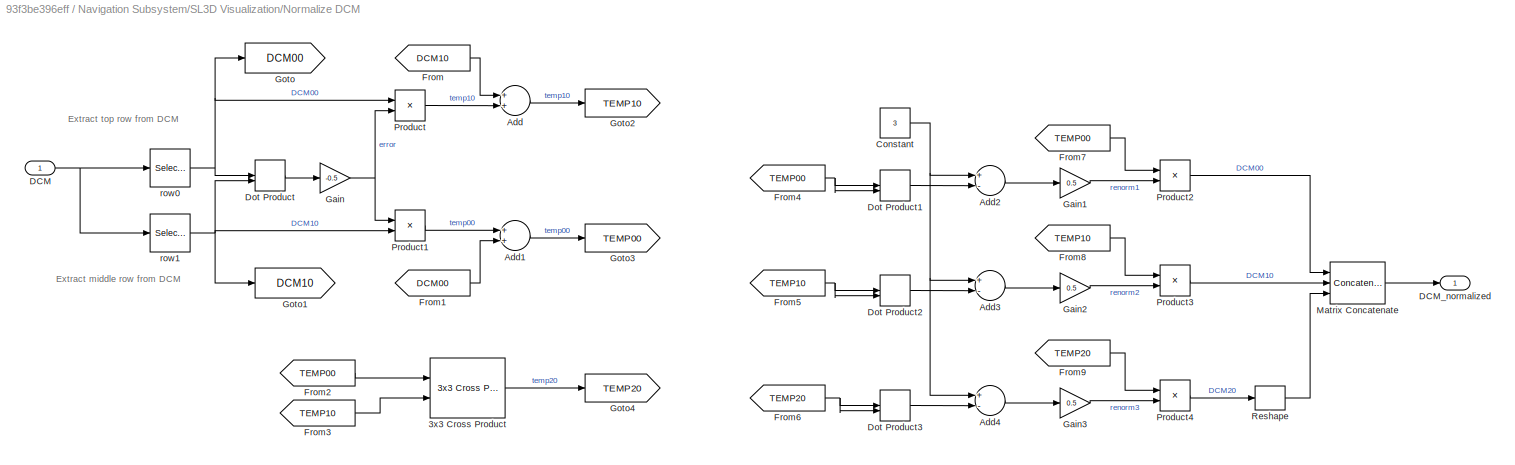
BLOCK [SubSystem] Navigation Subsystem/SL3D Visualization/Normalize DCM
  Commented = on
  Ports = [1, 1]
  RequestExecContextInheritance = off
  TreatAsAtomicUnit = on
BLOCK [Reference] Navigation Subsystem/SL3D Visualization/Normalize DCM/3x3 Cross Product  REF=aerolibutil/3x3 Cross Product
  Ports = [2, 1]
  SourceBlock = aerolibutil/3x3 Cross Product
  SourceType = CrossProduct
BLOCK [Sum] Navigation Subsystem/SL3D Visualization/Normalize DCM/Add
  InputSameDT = off
  OutDataTypeStr = Inherit: Inherit via internal rule
  Ports = [2, 1]
  SaturateOnIntegerOverflow = off
BLOCK [Sum] Navigation Subsystem/SL3D Visualization/Normalize DCM/Add1
  InputSameDT = off
  OutDataTypeStr = Inherit: Inherit via internal rule
  Ports = [2, 1]
  SaturateOnIntegerOverflow = off
BLOCK [Sum] Navigation Subsystem/SL3D Visualization/Normalize DCM/Add2
  InputSameDT = off
  Inputs = +-
  OutDataTypeStr = Inherit: Inherit via internal rule
  Ports = [2, 1]
  SaturateOnIntegerOverflow = off
BLOCK [Sum] Navigation Subsystem/SL3D Visualization/Normalize DCM/Add3
  InputSameDT = off
  Inputs = +-
  OutDataTypeStr = Inherit: Inherit via internal rule
  Ports = [2, 1]
  SaturateOnIntegerOverflow = off
BLOCK [Sum] Navigation Subsystem/SL3D Visualization/Normalize DCM/Add4
  InputSameDT = off
  Inputs = +-
  OutDataTypeStr = Inherit: Inherit via internal rule
  Ports = [2, 1]
  SaturateOnIntegerOverflow = off
BLOCK [Constant] Navigation Subsystem/SL3D Visualization/Normalize DCM/Constant
  OutDataTypeStr = double
  SampleTime = -1
  Value = 3
BLOCK [Inport] Navigation Subsystem/SL3D Visualization/Normalize DCM/DCM
  IconDisplay = Port number
  OutDataTypeStr = double
  PortDimensions = [3,3]
BLOCK [Outport] Navigation Subsystem/SL3D Visualization/Normalize DCM/DCM_normalized
  IconDisplay = Port number
  OutDataTypeStr = double
BLOCK [DotProduct] Navigation Subsystem/SL3D Visualization/Normalize DCM/Dot Product
  OutDataTypeStr = Inherit: Inherit via internal rule
BLOCK [DotProduct] Navigation Subsystem/SL3D Visualization/Normalize DCM/Dot Product1
  OutDataTypeStr = Inherit: Inherit via internal rule
BLOCK [DotProduct] Navigation Subsystem/SL3D Visualization/Normalize DCM/Dot Product2
  OutDataTypeStr = Inherit: Inherit via internal rule
BLOCK [DotProduct] Navigation Subsystem/SL3D Visualization/Normalize DCM/Dot Product3
  OutDataTypeStr = Inherit: Inherit via internal rule
BLOCK [From] Navigation Subsystem/SL3D Visualization/Normalize DCM/From
  GotoTag = DCM10
BLOCK [From] Navigation Subsystem/SL3D Visualization/Normalize DCM/From1
  GotoTag = DCM00
BLOCK [From] Navigation Subsystem/SL3D Visualization/Normalize DCM/From2
  GotoTag = TEMP00
BLOCK [From] Navigation Subsystem/SL3D Visualization/Normalize DCM/From3
  GotoTag = TEMP10
BLOCK [From] Navigation Subsystem/SL3D Visualization/Normalize DCM/From4
  GotoTag = TEMP00
BLOCK [From] Navigation Subsystem/SL3D Visualization/Normalize DCM/From5
  GotoTag = TEMP10
BLOCK [From] Navigation Subsystem/SL3D Visualization/Normalize DCM/From6
  GotoTag = TEMP20
BLOCK [From] Navigation Subsystem/SL3D Visualization/Normalize DCM/From7
  GotoTag = TEMP00
BLOCK [From] Navigation Subsystem/SL3D Visualization/Normalize DCM/From8
  GotoTag = TEMP10
BLOCK [From] Navigation Subsystem/SL3D Visualization/Normalize DCM/From9
  GotoTag = TEMP20
BLOCK [Gain] Navigation Subsystem/SL3D Visualization/Normalize DCM/Gain
  Gain = -0.5
  OutDataTypeStr = Inherit: Inherit via internal rule
  ParamDataTypeStr = Inherit: Inherit via internal rule
  SaturateOnIntegerOverflow = off
BLOCK [Gain] Navigation Subsystem/SL3D Visualization/Normalize DCM/Gain1
  Gain = 0.5
  OutDataTypeStr = single
  ParamDataTypeStr = Inherit: Inherit via internal rule
  SaturateOnIntegerOverflow = off
BLOCK [Gain] Navigation Subsystem/SL3D Visualization/Normalize DCM/Gain2
  Gain = 0.5
  OutDataTypeStr = single
  ParamDataTypeStr = Inherit: Inherit via internal rule
  SaturateOnIntegerOverflow = off
BLOCK [Gain] Navigation Subsystem/SL3D Visualization/Normalize DCM/Gain3
  Gain = 0.5
  OutDataTypeStr = single
  ParamDataTypeStr = Inherit: Inherit via internal rule
  SaturateOnIntegerOverflow = off
BLOCK [Goto] Navigation Subsystem/SL3D Visualization/Normalize DCM/Goto
  GotoTag = DCM00
BLOCK [Goto] Navigation Subsystem/SL3D Visualization/Normalize DCM/Goto1
  GotoTag = DCM10
BLOCK [Goto] Navigation Subsystem/SL3D Visualization/Normalize DCM/Goto2
  GotoTag = TEMP10
BLOCK [Goto] Navigation Subsystem/SL3D Visualization/Normalize DCM/Goto3
  GotoTag = TEMP00
BLOCK [Goto] Navigation Subsystem/SL3D Visualization/Normalize DCM/Goto4
  GotoTag = TEMP20
BLOCK [Concatenate] Navigation Subsystem/SL3D Visualization/Normalize DCM/Matrix Concatenate
  Mode = Multidimensional array
  NumInputs = 3
  Ports = [3, 1]
BLOCK [Product] Navigation Subsystem/SL3D Visualization/Normalize DCM/Product
  InputSameDT = off
  OutDataTypeStr = Inherit: Inherit via internal rule
  Ports = [2, 1]
  SaturateOnIntegerOverflow = off
BLOCK [Product] Navigation Subsystem/SL3D Visualization/Normalize DCM/Product1
  InputSameDT = off
  OutDataTypeStr = Inherit: Inherit via internal rule
  Ports = [2, 1]
  SaturateOnIntegerOverflow = off
BLOCK [Product] Navigation Subsystem/SL3D Visualization/Normalize DCM/Product2
  InputSameDT = off
  OutDataTypeStr = Inherit: Inherit via internal rule
  Ports = [2, 1]
  SaturateOnIntegerOverflow = off
BLOCK [Product] Navigation Subsystem/SL3D Visualization/Normalize DCM/Product3
  InputSameDT = off
  OutDataTypeStr = Inherit: Inherit via internal rule
  Ports = [2, 1]
  SaturateOnIntegerOverflow = off
BLOCK [Product] Navigation Subsystem/SL3D Visualization/Normalize DCM/Product4
  InputSameDT = off
  OutDataTypeStr = Inherit: Inherit via internal rule
  Ports = [2, 1]
  SaturateOnIntegerOverflow = off
BLOCK [Reshape] Navigation Subsystem/SL3D Visualization/Normalize DCM/Reshape
  OutputDimensionality = Row vector (2-D)
  Ports = [1, 1]
BLOCK [Selector] Navigation Subsystem/SL3D Visualization/Normalize DCM/row0
  IndexMode = Zero-based
  IndexOptions = Index vector (dialog),Index vector (dialog)
  Indices = 0,[0:2]
  InputPortWidth = 3
  NumberOfDimensions = 2
  OutputSizes = 1,1
  Ports = [1, 1]
BLOCK [Selector] Navigation Subsystem/SL3D Visualization/Normalize DCM/row1
  IndexMode = Zero-based
  IndexOptions = Index vector (dialog),Index vector (dialog)
  Indices = 1,[0:2]
  InputPortWidth = 3
  NumberOfDimensions = 2
  OutputSizes = 1,1
  Ports = [1, 1]
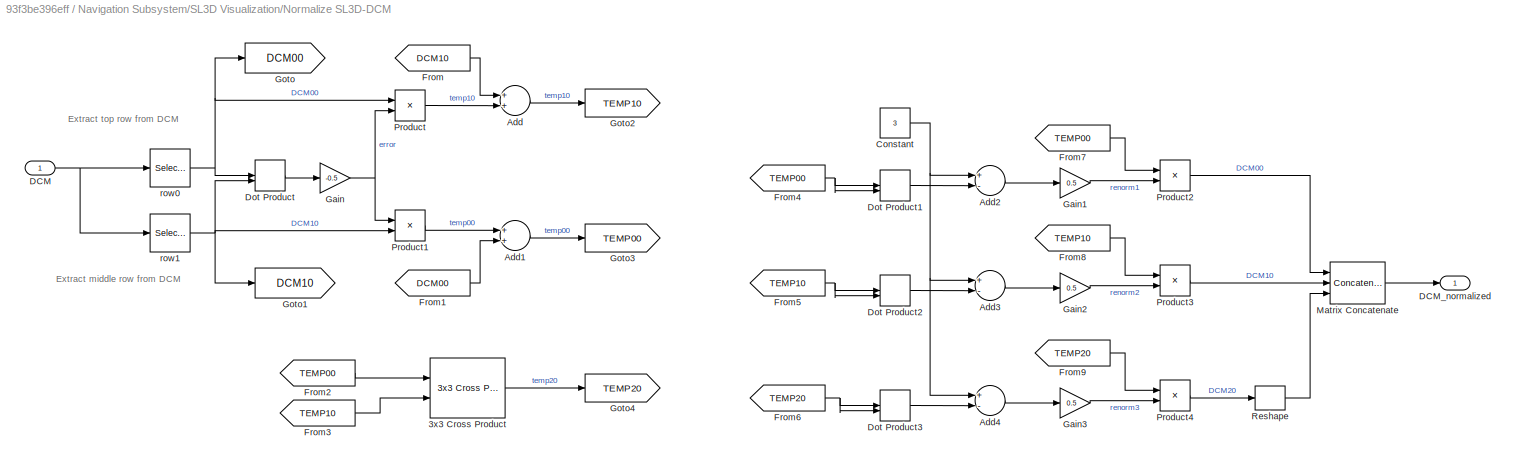
BLOCK [SubSystem] Navigation Subsystem/SL3D Visualization/Normalize SL3D-DCM
  Ports = [1, 1]
  RequestExecContextInheritance = off
  TreatAsAtomicUnit = on
BLOCK [Reference] Navigation Subsystem/SL3D Visualization/Normalize SL3D-DCM/3x3 Cross Product  REF=aerolibutil/3x3 Cross Product
  Ports = [2, 1]
  SourceBlock = aerolibutil/3x3 Cross Product
  SourceType = CrossProduct
BLOCK [Sum] Navigation Subsystem/SL3D Visualization/Normalize SL3D-DCM/Add
  InputSameDT = off
  OutDataTypeStr = Inherit: Inherit via internal rule
  Ports = [2, 1]
  SaturateOnIntegerOverflow = off
BLOCK [Sum] Navigation Subsystem/SL3D Visualization/Normalize SL3D-DCM/Add1
  InputSameDT = off
  OutDataTypeStr = Inherit: Inherit via internal rule
  Ports = [2, 1]
  SaturateOnIntegerOverflow = off
BLOCK [Sum] Navigation Subsystem/SL3D Visualization/Normalize SL3D-DCM/Add2
  InputSameDT = off
  Inputs = +-
  OutDataTypeStr = Inherit: Inherit via internal rule
  Ports = [2, 1]
  SaturateOnIntegerOverflow = off
BLOCK [Sum] Navigation Subsystem/SL3D Visualization/Normalize SL3D-DCM/Add3
  InputSameDT = off
  Inputs = +-
  OutDataTypeStr = Inherit: Inherit via internal rule
  Ports = [2, 1]
  SaturateOnIntegerOverflow = off
BLOCK [Sum] Navigation Subsystem/SL3D Visualization/Normalize SL3D-DCM/Add4
  InputSameDT = off
  Inputs = +-
  OutDataTypeStr = Inherit: Inherit via internal rule
  Ports = [2, 1]
  SaturateOnIntegerOverflow = off
BLOCK [Constant] Navigation Subsystem/SL3D Visualization/Normalize SL3D-DCM/Constant
  OutDataTypeStr = double
  SampleTime = -1
  Value = 3
BLOCK [Inport] Navigation Subsystem/SL3D Visualization/Normalize SL3D-DCM/DCM
  IconDisplay = Port number
  OutDataTypeStr = double
  PortDimensions = [3,3]
BLOCK [Outport] Navigation Subsystem/SL3D Visualization/Normalize SL3D-DCM/DCM_normalized
  IconDisplay = Port number
  OutDataTypeStr = double
BLOCK [DotProduct] Navigation Subsystem/SL3D Visualization/Normalize SL3D-DCM/Dot Product
  OutDataTypeStr = Inherit: Inherit via internal rule
BLOCK [DotProduct] Navigation Subsystem/SL3D Visualization/Normalize SL3D-DCM/Dot Product1
  OutDataTypeStr = Inherit: Inherit via internal rule
BLOCK [DotProduct] Navigation Subsystem/SL3D Visualization/Normalize SL3D-DCM/Dot Product2
  OutDataTypeStr = Inherit: Inherit via internal rule
BLOCK [DotProduct] Navigation Subsystem/SL3D Visualization/Normalize SL3D-DCM/Dot Product3
  OutDataTypeStr = Inherit: Inherit via internal rule
BLOCK [From] Navigation Subsystem/SL3D Visualization/Normalize SL3D-DCM/From
  GotoTag = DCM10
BLOCK [From] Navigation Subsystem/SL3D Visualization/Normalize SL3D-DCM/From1
  GotoTag = DCM00
BLOCK [From] Navigation Subsystem/SL3D Visualization/Normalize SL3D-DCM/From2
  GotoTag = TEMP00
BLOCK [From] Navigation Subsystem/SL3D Visualization/Normalize SL3D-DCM/From3
  GotoTag = TEMP10
BLOCK [From] Navigation Subsystem/SL3D Visualization/Normalize SL3D-DCM/From4
  GotoTag = TEMP00
BLOCK [From] Navigation Subsystem/SL3D Visualization/Normalize SL3D-DCM/From5
  GotoTag = TEMP10
BLOCK [From] Navigation Subsystem/SL3D Visualization/Normalize SL3D-DCM/From6
  GotoTag = TEMP20
BLOCK [From] Navigation Subsystem/SL3D Visualization/Normalize SL3D-DCM/From7
  GotoTag = TEMP00
BLOCK [From] Navigation Subsystem/SL3D Visualization/Normalize SL3D-DCM/From8
  GotoTag = TEMP10
BLOCK [From] Navigation Subsystem/SL3D Visualization/Normalize SL3D-DCM/From9
  GotoTag = TEMP20
BLOCK [Gain] Navigation Subsystem/SL3D Visualization/Normalize SL3D-DCM/Gain
  Gain = -0.5
  OutDataTypeStr = Inherit: Inherit via internal rule
  ParamDataTypeStr = Inherit: Inherit via internal rule
  SaturateOnIntegerOverflow = off
BLOCK [Gain] Navigation Subsystem/SL3D Visualization/Normalize SL3D-DCM/Gain1
  Gain = 0.5
  OutDataTypeStr = single
  ParamDataTypeStr = Inherit: Inherit via internal rule
  SaturateOnIntegerOverflow = off
BLOCK [Gain] Navigation Subsystem/SL3D Visualization/Normalize SL3D-DCM/Gain2
  Gain = 0.5
  OutDataTypeStr = single
  ParamDataTypeStr = Inherit: Inherit via internal rule
  SaturateOnIntegerOverflow = off
BLOCK [Gain] Navigation Subsystem/SL3D Visualization/Normalize SL3D-DCM/Gain3
  Gain = 0.5
  OutDataTypeStr = single
  ParamDataTypeStr = Inherit: Inherit via internal rule
  SaturateOnIntegerOverflow = off
BLOCK [Goto] Navigation Subsystem/SL3D Visualization/Normalize SL3D-DCM/Goto
  GotoTag = DCM00
BLOCK [Goto] Navigation Subsystem/SL3D Visualization/Normalize SL3D-DCM/Goto1
  GotoTag = DCM10
BLOCK [Goto] Navigation Subsystem/SL3D Visualization/Normalize SL3D-DCM/Goto2
  GotoTag = TEMP10
BLOCK [Goto] Navigation Subsystem/SL3D Visualization/Normalize SL3D-DCM/Goto3
  GotoTag = TEMP00
BLOCK [Goto] Navigation Subsystem/SL3D Visualization/Normalize SL3D-DCM/Goto4
  GotoTag = TEMP20
BLOCK [Concatenate] Navigation Subsystem/SL3D Visualization/Normalize SL3D-DCM/Matrix Concatenate
  Mode = Multidimensional array
  NumInputs = 3
  Ports = [3, 1]
BLOCK [Product] Navigation Subsystem/SL3D Visualization/Normalize SL3D-DCM/Product
  InputSameDT = off
  OutDataTypeStr = Inherit: Inherit via internal rule
  Ports = [2, 1]
  SaturateOnIntegerOverflow = off
BLOCK [Product] Navigation Subsystem/SL3D Visualization/Normalize SL3D-DCM/Product1
  InputSameDT = off
  OutDataTypeStr = Inherit: Inherit via internal rule
  Ports = [2, 1]
  SaturateOnIntegerOverflow = off
BLOCK [Product] Navigation Subsystem/SL3D Visualization/Normalize SL3D-DCM/Product2
  InputSameDT = off
  OutDataTypeStr = Inherit: Inherit via internal rule
  Ports = [2, 1]
  SaturateOnIntegerOverflow = off
BLOCK [Product] Navigation Subsystem/SL3D Visualization/Normalize SL3D-DCM/Product3
  InputSameDT = off
  OutDataTypeStr = Inherit: Inherit via internal rule
  Ports = [2, 1]
  SaturateOnIntegerOverflow = off
BLOCK [Product] Navigation Subsystem/SL3D Visualization/Normalize SL3D-DCM/Product4
  InputSameDT = off
  OutDataTypeStr = Inherit: Inherit via internal rule
  Ports = [2, 1]
  SaturateOnIntegerOverflow = off
BLOCK [Reshape] Navigation Subsystem/SL3D Visualization/Normalize SL3D-DCM/Reshape
  OutputDimensionality = Row vector (2-D)
  Ports = [1, 1]
BLOCK [Selector] Navigation Subsystem/SL3D Visualization/Normalize SL3D-DCM/row0
  IndexMode = Zero-based
  IndexOptions = Index vector (dialog),Index vector (dialog)
  Indices = 0,[0:2]
  InputPortWidth = 3
  NumberOfDimensions = 2
  OutputSizes = 1,1
  Ports = [1, 1]
BLOCK [Selector] Navigation Subsystem/SL3D Visualization/Normalize SL3D-DCM/row1
  IndexMode = Zero-based
  IndexOptions = Index vector (dialog),Index vector (dialog)
  Indices = 1,[0:2]
  InputPortWidth = 3
  NumberOfDimensions = 2
  OutputSizes = 1,1
  Ports = [1, 1]
BLOCK [RateTransition] Navigation Subsystem/SL3D Visualization/Rate Transition1
BLOCK [RateTransition] Navigation Subsystem/SL3D Visualization/Rate Transition2
BLOCK [RateTransition] Navigation Subsystem/SL3D Visualization/Rate Transition3
BLOCK [RateTransition] Navigation Subsystem/SL3D Visualization/Rate Transition4
BLOCK [SubSystem] Navigation Subsystem/SL3D Visualization/Re-align X-axis
  Commented = on
  Ports = [1, 1]
  RequestExecContextInheritance = off
BLOCK [Demux] Navigation Subsystem/SL3D Visualization/Re-align X-axis/Demux1
  DisplayOption = bar
  Outputs = 3
  Ports = [1, 3]
BLOCK [Gain] Navigation Subsystem/SL3D Visualization/Re-align X-axis/Gain
  OutDataTypeStr = Inherit: Inherit via internal rule
  ParamDataTypeStr = Inherit: Inherit via internal rule
  SaturateOnIntegerOverflow = off
BLOCK [Gain] Navigation Subsystem/SL3D Visualization/Re-align X-axis/Gain1
  Gain = -1
  OutDataTypeStr = Inherit: Inherit via internal rule
  ParamDataTypeStr = Inherit: Inherit via internal rule
  SaturateOnIntegerOverflow = off
BLOCK [Gain] Navigation Subsystem/SL3D Visualization/Re-align X-axis/Gain2
  OutDataTypeStr = Inherit: Inherit via internal rule
  ParamDataTypeStr = Inherit: Inherit via internal rule
  SaturateOnIntegerOverflow = off
BLOCK [Inport] Navigation Subsystem/SL3D Visualization/Re-align X-axis/MagVector
  IconDisplay = Port number
BLOCK [Outport] Navigation Subsystem/SL3D Visualization/Re-align X-axis/MagVectorOut
  IconDisplay = Port number
BLOCK [Mux] Navigation Subsystem/SL3D Visualization/Re-align X-axis/Mux2
  DisplayOption = bar
  Inputs = 3
  Ports = [3, 1]
BLOCK [Reference] Navigation Subsystem/SL3D Visualization/Rotation Angles to Direction Cosine Matrix  REF=aerolibtransform2/Rotation Angles to
Direction Cosine Matrix
  AttributesFormatString = Rotation Order: %<rotationOrder>
  Ports = [1, 1]
  SourceBlock = aerolibtransform2/Rotation Angles to\nDirection Cosine Matrix
  SourceType = Ang2DCM
  rotationOrder = XYZ
BLOCK [Reference] Navigation Subsystem/SL3D Visualization/Rotation Matrix to VRML Rotation1  REF=vrlib/Utilities/Rotation Matrix
to VRML Rotation
  Ports = [1, 1]
  SourceBlock = vrlib/Utilities/Rotation Matrix\nto VRML Rotation
  SourceType = Rotation Matrix to VRML Rotation
  maxzero = 1e-12
BLOCK [SubSystem] Navigation Subsystem/SL3D Visualization/SL3D DCM Output - used to adjust axes to fit wit SL3D convention
  Ports = []
  RequestExecContextInheritance = off
BLOCK [SubSystem] Navigation Subsystem/SL3D Visualization/Subsystem
  Commented = on
  Ports = [2, 2]
  RequestExecContextInheritance = off
BLOCK [SubSystem] Navigation Subsystem/SL3D Visualization/Subsystem/Compensate for Magnetic Declination (~60 degrees in Boston)_
  Commented = through
  ErrorFcn = Stateflow.Translate.translate
  PermitHierarchicalResolution = ExplicitOnly
  Ports = [1, 1]
  RequestExecContextInheritance = off
  SFBlockType = MATLAB Function
  TreatAsAtomicUnit = on
BLOCK [Demux] Navigation Subsystem/SL3D Visualization/Subsystem/Compensate for Magnetic Declination (~60 degrees in Boston)_/ Demux 
  Outputs = 1
  Ports = [1, 1]
BLOCK [S-Function] Navigation Subsystem/SL3D Visualization/Subsystem/Compensate for Magnetic Declination (~60 degrees in Boston)_/ SFunction 
  EnableBusSupport = on
  FunctionName = sf_sfun
  PortCounts = [1 2]
  Ports = [1, 2]
  Tag = Stateflow S-Function Record_accelerometer 11
BLOCK [Terminator] Navigation Subsystem/SL3D Visualization/Subsystem/Compensate for Magnetic Declination (~60 degrees in Boston)_/ Terminator 
BLOCK [Inport] Navigation Subsystem/SL3D Visualization/Subsystem/Compensate for Magnetic Declination (~60 degrees in Boston)_/vector_in
  IconDisplay = Port number
BLOCK [Outport] Navigation Subsystem/SL3D Visualization/Subsystem/Compensate for Magnetic Declination (~60 degrees in Boston)_/y
  IconDisplay = Port number
BLOCK [SubSystem] Navigation Subsystem/SL3D Visualization/Subsystem/Compensate for Magnetic Declination (~60 degrees in Boston)_1
  ErrorFcn = Stateflow.Translate.translate
  PermitHierarchicalResolution = ExplicitOnly
  Ports = [1, 1]
  RequestExecContextInheritance = off
  SFBlockType = MATLAB Function
  TreatAsAtomicUnit = on
BLOCK [Demux] Navigation Subsystem/SL3D Visualization/Subsystem/Compensate for Magnetic Declination (~60 degrees in Boston)_1/ Demux 
  Outputs = 1
  Ports = [1, 1]
BLOCK [S-Function] Navigation Subsystem/SL3D Visualization/Subsystem/Compensate for Magnetic Declination (~60 degrees in Boston)_1/ SFunction 
  EnableBusSupport = on
  FunctionName = sf_sfun
  PortCounts = [1 2]
  Ports = [1, 2]
  Tag = Stateflow S-Function Record_accelerometer 12
BLOCK [Terminator] Navigation Subsystem/SL3D Visualization/Subsystem/Compensate for Magnetic Declination (~60 degrees in Boston)_1/ Terminator 
BLOCK [Inport] Navigation Subsystem/SL3D Visualization/Subsystem/Compensate for Magnetic Declination (~60 degrees in Boston)_1/vector_in
  IconDisplay = Port number
BLOCK [Outport] Navigation Subsystem/SL3D Visualization/Subsystem/Compensate for Magnetic Declination (~60 degrees in Boston)_1/y
  IconDisplay = Port number
BLOCK [Inport] Navigation Subsystem/SL3D Visualization/Subsystem/DCM
  IconDisplay = Port number
BLOCK [Gain] Navigation Subsystem/SL3D Visualization/Subsystem/EnlargeVectorAgain
  Commented = through
  Gain = 3
  OutDataTypeStr = Inherit: Inherit via internal rule
  ParamDataTypeStr = Inherit: Inherit via internal rule
  SaturateOnIntegerOverflow = off
BLOCK [Inport] Navigation Subsystem/SL3D Visualization/Subsystem/MagVector
  IconDisplay = Port number
  Port = 2
BLOCK [Outport] Navigation Subsystem/SL3D Visualization/Subsystem/Projected Mag Vector (body frame)
  IconDisplay = Port number
BLOCK [Outport] Navigation Subsystem/SL3D Visualization/Subsystem/Projected Mag Vector (global frame)
  IconDisplay = Port number
  Port = 2
BLOCK [Product] Navigation Subsystem/SL3D Visualization/Subsystem/Transform MagVector from Body Frame to World Frame
  InputSameDT = off
  Multiplication = Matrix(*)
  OutDataTypeStr = Inherit: Inherit via internal rule
  Ports = [2, 1]
  RndMeth = Floor
  SaturateOnIntegerOverflow = off
BLOCK [Product] Navigation Subsystem/SL3D Visualization/Subsystem/Transform compensated magnetic vector into the  body frame
  InputSameDT = off
  Multiplication = Matrix(*)
  OutDataTypeStr = Inherit: Inherit via internal rule
  Ports = [2, 1]
  RndMeth = Floor
  SaturateOnIntegerOverflow = off
BLOCK [Reference] Navigation Subsystem/SL3D Visualization/Subsystem/Transpose2  REF=dspmtrx3/Transpose
  Hermitian = off
  Ports = [1, 1]
  SourceBlock = dspmtrx3/Transpose
  SourceType = Transpose
  overflowFlag = off
BLOCK [Reference] Navigation Subsystem/SL3D Visualization/VR Sink1  REF=vrlib/VR Sink
  AllowVariableSize = off
  AutoView = off
  FieldsWritten = Plane.rotation.4.1.1.double#mag_point.translation.3.1.1.double#grav_point.translation.3.1.1.double#mag_projection_point.translation.3.1.1.double
  InstantiateOnLoad = on
  Ports = [4]
  RemoteChange = off
  RemoteView = off
  SampleTime = 0.02
  SourceBlock = vrlib/VR Sink
  SourceType = Virtual Reality Sink
  VideoDimensions = []
  ViewEnable = on
  WorldFileName = vrml8_grav_2.WRL
BLOCK [Inport] Navigation Subsystem/SL3D Visualization/VisualizationInput
  IconDisplay = Port number
BLOCK [Reference] Navigation Subsystem1  REF=Navigation_Lib/Navigation Subsystem
  ACCEL_OFFSET_X = 0
  ACCEL_OFFSET_Y = 0
  ACCEL_OFFSET_Z = 0
  Commented = on
  D_YAW_CORRECT = 0
  I_GAIN_ROLLPITCH = -0.01
  PI_YAW_CORRECT = [-0.9 -0.0001]
  P_GAIN_ROLLPITCH = -2
  Ports = [2, 9]
  SourceBlock = Navigation_Lib/Navigation Subsystem
  TempProcessVariant = 1
BLOCK [Outport] Out1
  IconDisplay = Port number
BLOCK [Outport] Out2
  IconDisplay = Port number
  Port = 2
BLOCK [Outport] Out3
  IconDisplay = Port number
  Port = 3
BLOCK [Display] Rate Gyro
  Decimation = 1
  Ports = [1]
BLOCK [Scope] Record Accel
  DataFormat = StructureWithTime
  Floating = off
  LimitDataPoints = off
  NumInputPorts = 1
  Ports = [1]
  SampleTime = 0
  SaveName = Accel_Record
  SaveToWorkspace = on
  ShowLegends = off
  YMax = 2050
  YMin = 1550
  ZoomMode = yonly
BLOCK [Scope] Record Accel1
  DataFormat = StructureWithTime
  Floating = off
  LimitDataPoints = off
  NumInputPorts = 1
  Ports = [1]
  SampleTime = 0
  SaveName = Accel_Record1
  ShowLegends = off
  YMax = 2050
  YMin = 1550
  ZoomMode = yonly
BLOCK [Scope] Record Accel2
  DataFormat = StructureWithTime
  Floating = off
  LimitDataPoints = off
  NumInputPorts = 1
  Ports = [1]
  SampleTime = 0
  SaveName = Accel_Record2
  ShowLegends = off
  YMax = 2050
  YMin = 1550
  ZoomMode = yonly
BLOCK [Scope] Record Acel Temp
  DataFormat = StructureWithTime
  Floating = off
  LimitDataPoints = off
  NumInputPorts = 1
  Ports = [1]
  SampleTime = 0
  SaveName = Accel_temp
  SaveToWorkspace = on
  ShowLegends = off
  ZoomMode = yonly
ANNOTATION Navigation Subsystem: -2,-0.04
ANNOTATION Navigation Subsystem/Calculate Gravity Vector/Accelerometer Neutral Gain and Offset: (1/512)g /LSB
ANNOTATION Navigation Subsystem/Calculate Gravity Vector/Accelerometer Neutral Gain and Offset: All axes were invereted here, both implementations in paparazzi and student team seem to do this
ANNOTATION Navigation Subsystem/Calculate Gravity Vector/New Dead Zone Method: For Work Drone
ANNOTATION Navigation Subsystem/Calculate Gravity Vector/Old Offset Method: For Home Drone
ANNOTATION Navigation Subsystem/Calculate Gravity Vector/Old Offset Method: For Work Drone
ANNOTATION Navigation Subsystem/Calculate Roll - Pitch: http://www.digikey.com/en/articles/techzone/2011/may/using-an-accelerometer-for-inclination-sensing
ANNOTATION Navigation Subsystem/CheckSum Pre-Processing/Magnetometer/Process Raw Mag Data: magnetometer[ 0 ] = - ( float ) navdata.mx ; magnetometer[ 1 ] = ( float ) navdata.my ; magnetometer[ 2 ] = - ( float ) navdata.mz ; const float Sensitivity[ 3 ] = { 0.0071492608 , 0.0070882491 , 0.0074057781 } ; const float Neutral[ 3 ] = { 118.0 , - 65.0 , 110.0 } ;
ANNOTATION Navigation Subsystem/CheckSum Pre-Processing/RateGyro Processing/Process Data: const float Sensitivity[ 3 ] = { 0.0609 , 0.0609 , 0.0609 } ; const float Neutral[ 3 ] = { 0.0 , 0.0 , 0.0 } ; const int16_t Offset[ 3 ] = { - 73 , 14 , - 13 } ; const int16_t Noises[ 3 ] = { 35 , 35 , 15 } ; int16_t vRaws[ 3 ] = { Navdata :: IMU :: Gyroscope :: getRawX (), Navdata :: IMU :: Gyroscope :: getRawY (), Navdata :: IMU :: Gyroscope :: getRawZ () } ; gyroscope[i] = vRaws[i] * Gyroscope ...<+34ch>
ANNOTATION Navigation Subsystem/CheckSum Pre-Processing/TempFilter/Process Raw Mag Data: magnetometer[ 0 ] = - ( float ) navdata.mx ; magnetometer[ 1 ] = ( float ) navdata.my ; magnetometer[ 2 ] = - ( float ) navdata.mz ; const float Sensitivity[ 3 ] = { 0.0071492608 , 0.0070882491 , 0.0074057781 } ; const float Neutral[ 3 ] = { 118.0 , - 65.0 , 110.0 } ;
ANNOTATION Navigation Subsystem/CheckSum Pre-Processing/TempFilter1/Process Raw Mag Data: magnetometer[ 0 ] = - ( float ) navdata.mx ; magnetometer[ 1 ] = ( float ) navdata.my ; magnetometer[ 2 ] = - ( float ) navdata.mz ; const float Sensitivity[ 3 ] = { 0.0071492608 , 0.0070882491 , 0.0074057781 } ; const float Neutral[ 3 ] = { 118.0 , - 65.0 , 110.0 } ;
ANNOTATION Navigation Subsystem/CheckSum Pre-Processing/Ultrasound Processing: '192.168.1.1' 1 17725
ANNOTATION Navigation Subsystem/DCM to Euler Angles: Euler Rotation Order: With the camera facing towards you ______________ Camera | 1 2 | | 3 4 | ______________| Rotation Roll+ , increase 2+4 Roll - , increase 1 3 Pitch+ , increaes 1+2 Pitch- , increase 3+4
ANNOTATION Navigation Subsystem/Process Raw Rate Gyro Data: const float Sensitivity[ 3 ] = { 0.0609 , 0.0609 , 0.0609 } ; const float Neutral[ 3 ] = { 0.0 , 0.0 , 0.0 } ; const int16_t Offset[ 3 ] = { - 73 , 14 , - 13 } ; const int16_t Noises[ 3 ] = { 35 , 35 , 15 } ; int16_t vRaws[ 3 ] = { Navdata :: IMU :: Gyroscope :: getRawX (), Navdata :: IMU :: Gyroscope :: getRawY (), Navdata :: IMU :: Gyroscope :: getRawZ () } ; gyroscope[i] = vRaws[i] * Gyroscope ...<+34ch>
ANNOTATION Navigation Subsystem/Remove Temperature Gyro Offset: 1) Only subsystems can be added as variant choices at this level 2) Blocks cannot be connected at this level as connectivity is automatically determined at simulation, based on the active variant
ANNOTATION Navigation Subsystem/Remove Temperature Gyro Offset/TemperatureOffset (home_330453): Yaw looks off Linear model Poly2: f(x) = p1*x^2 + p2*x + p3 Coefficients (with 95% confidence bounds): p1 = 0.2212 (0.2178, 0.2246) p2 = -20.02 (-20.33, -19.71) p3 = 449.6 (442.4, 456.8)
ANNOTATION Navigation Subsystem/Remove Temperature Gyro Offset/TemperatureOffset (home_330453)/Temperature Correct Pitch1: % Linear model Poly2: % f(x) = p1*x^2 + p2*x + p3 % Coefficients (with 95% confidence bounds): % p1 = 0.006948 (0.006782, 0.007115) % p2 = 1.056 (1.041, 1.071) % p3 = -66.21 (-66.54, -65.88)
ANNOTATION Navigation Subsystem/Remove Temperature Gyro Offset/TemperatureOffset (home_330453)/Temperature Correct Roll1: f(x) = p1*x^2 + p2*x + p3 Coefficients (with 95% confidence bounds): p1 = 0.01851 (0.0183, 0.01872) p2 = 1.553 (1.534, 1.572) p3 = -13.59 (-14, -13.17)
ANNOTATION Navigation Subsystem/Remove Temperature Gyro Offset/TemperatureOffset (home_330453)/Temperature Correct Yaw1: f(x) = p1*x^2 + p2*x + p3 Coefficients (with 95% confidence bounds): p1 = 0.01851 (0.0183, 0.01872) p2 = 1.553 (1.534, 1.572) p3 = -13.59 (-14, -13.17)
ANNOTATION Navigation Subsystem/Remove Temperature Gyro Offset/TemperatureOffset (home_330453)/Temperature Correct Yaw1: f(x) = p1*x^2 + p2*x + p3 Coefficients (with 95% confidence bounds): p1 = -0.00233 (-0.002509, -0.00215) p2 = 0.46 (0.444, 0.476) p3 = -7.059 (-7.413, -6.705)
ANNOTATION Navigation Subsystem/Remove Temperature Gyro Offset/TemperatureOffset (work_255725)/Temperature Correct Pitch1: % Linear model Poly2: % f(x) = p1*x^2 + p2*x + p3 % Coefficients (with 95% confidence bounds): % p1 = 0.006948 (0.006782, 0.007115) % p2 = 1.056 (1.041, 1.071) % p3 = -66.21 (-66.54, -65.88)
ANNOTATION Navigation Subsystem/Remove Temperature Gyro Offset/TemperatureOffset (work_255725)/Temperature Correct Roll1: f(x) = p1*x^2 + p2*x + p3 Coefficients (with 95% confidence bounds): p1 = 0.1019 (0.068, 0.1358) p2 = -5.199 (-7.907, -2.491) p3 = 119.8 (65.74, 173.8) Goodness of fit: SSE: 5.103e+04 R-square: 0.7122 Adjusted R-square: 0.7121 RMSE: 1.13 f(x) = p1*x^2 + p2*x + p3 Coefficients (with 95% confidence bounds): p1 = 1.25 (1.214, 1.287) p2 = -125.3 (-129.1, -121.5) p3 = 3248 (3149, 3347)
ANNOTATION Navigation Subsystem/Remove Temperature Gyro Offset/TemperatureOffset (work_255725)/Temperature Correct Roll1: f(x) = p1*x^2 + p2*x + p3 Coefficients (with 95% confidence bounds): p1 = 0.01851 (0.0183, 0.01872) p2 = 1.553 (1.534, 1.572) p3 = -13.59 (-14, -13.17)
ANNOTATION Navigation Subsystem/Remove Temperature Gyro Offset/TemperatureOffset (work_255725)/Temperature Correct Yaw1: f(x) = p1*x^2 + p2*x + p3 Coefficients (with 95% confidence bounds): p1 = 0.01851 (0.0183, 0.01872) p2 = 1.553 (1.534, 1.572) p3 = -13.59 (-14, -13.17)
ANNOTATION Navigation Subsystem/Remove Temperature Gyro Offset/TemperatureOffset (work_255725)/Temperature Correct Yaw1: f(x) = p1*x^2 + p2*x + p3 Coefficients (with 95% confidence bounds): p1 = -0.00233 (-0.002509, -0.00215) p2 = 0.46 (0.444, 0.476) p3 = -7.059 (-7.413, -6.705)
ANNOTATION Navigation Subsystem/Remove Temperature Gyro Offset/TemperatureOffset (work_255725)/Temperature Correct Yaw2: f(x) = p1*x^2 + p2*x + p3 Coefficients (with 95% confidence bounds): p1 = 0.01851 (0.0183, 0.01872) p2 = 1.553 (1.534, 1.572) p3 = -13.59 (-14, -13.17)
ANNOTATION Navigation Subsystem/Remove Temperature Gyro Offset/TemperatureOffset (work_255725)/Temperature Correct Yaw2: f(x) = p1*x^2 + p2*x + p3 Coefficients (with 95% confidence bounds): p1 = -0.00233 (-0.002509, -0.00215) p2 = 0.46 (0.444, 0.476) p3 = -7.059 (-7.413, -6.705)
ANNOTATION Navigation Subsystem/SL3D Visualization/Interchange Axes Mag for SL3D /Home Drone: This comes close, however, it doesnt seem that the axis changes properly ie: i rotate drone, the green dot follows it. This tells me the Z-axis is not properly placed
ANNOTATION Navigation Subsystem/SL3D Visualization/Interchange Axes Mag for SL3D /Home Drone: x
ANNOTATION Navigation Subsystem/SL3D Visualization/Interchange Axes Mag for SL3D /Home Drone: y
ANNOTATION Navigation Subsystem/SL3D Visualization/Interchange Axes Mag for SL3D /Home Drone: z
ANNOTATION Navigation Subsystem/SL3D Visualization/Interchange Axes Mag for SL3D /Subsystem: This comes close, however, it doesnt seem that the axis changes properly ie: i rotate drone, the green dot follows it. This tells me the Z-axis is not properly placed
ANNOTATION Navigation Subsystem/SL3D Visualization/Interchange Axes Mag for SL3D /Subsystem: x
ANNOTATION Navigation Subsystem/SL3D Visualization/Interchange Axes Mag for SL3D /Subsystem: y
ANNOTATION Navigation Subsystem/SL3D Visualization/Interchange Axes Mag for SL3D /Subsystem: z
ANNOTATION Navigation Subsystem/SL3D Visualization/Interchange Axes Mag for SL3D /Work Drone: This comes close, however, it doesnt seem that the axis changes properly ie: i rotate drone, the green dot follows it. This tells me the Z-axis is not properly placed
ANNOTATION Navigation Subsystem/SL3D Visualization/Interchange Axes Mag for SL3D /Work Drone: x
ANNOTATION Navigation Subsystem/SL3D Visualization/Interchange Axes Mag for SL3D /Work Drone: y
ANNOTATION Navigation Subsystem/SL3D Visualization/Interchange Axes Mag for SL3D /Work Drone: z
ANNOTATION Navigation Subsystem/SL3D Visualization/Interchange Axes Mag for SL3D /Work Drone - supposed work drone .. not really: This comes close, however, it doesnt seem that the axis changes properly ie: i rotate drone, the green dot follows it. This tells me the Z-axis is not properly placed
ANNOTATION Navigation Subsystem/SL3D Visualization/Interchange Axes Mag for SL3D /Work Drone - supposed work drone .. not really: x
ANNOTATION Navigation Subsystem/SL3D Visualization/Interchange Axes Mag for SL3D /Work Drone - supposed work drone .. not really: y
ANNOTATION Navigation Subsystem/SL3D Visualization/Interchange Axes Mag for SL3D /Work Drone - supposed work drone .. not really: z
ANNOTATION Navigation Subsystem/SL3D Visualization/Normalize DCM: Extract middle row from DCM
ANNOTATION Navigation Subsystem/SL3D Visualization/Normalize DCM: Extract top row from DCM
ANNOTATION Navigation Subsystem/SL3D Visualization/Normalize SL3D-DCM: Extract middle row from DCM
ANNOTATION Navigation Subsystem/SL3D Visualization/Normalize SL3D-DCM: Extract top row from DCM
LINE Data Type Conversion:1 -> Out1:1
LINE Inertial Measurement:1 -> Navigation Subsystem:1
LINE Inertial Measurement:2 -> Navigation Subsystem:2
LINE Navigation Subsystem/Calculate Gravity Vector/Accel:1 -> Navigation Subsystem/Calculate Gravity Vector/Accelerometer Neutral Gain and Offset:1
NET Navigation Subsystem/Calculate Gravity Vector/Accelerometer Neutral Gain and Offset/Bias:1 -> Navigation Subsystem/Calculate Gravity Vector/Accelerometer Neutral Gain and Offset/Sum2:2, Navigation Subsystem/Calculate Gravity Vector/Accelerometer Neutral Gain and Offset/Sum3:2, Navigation Subsystem/Calculate Gravity Vector/Accelerometer Neutral Gain and Offset/Sum:2
NET Navigation Subsystem/Calculate Gravity Vector/Accelerometer Neutral Gain and Offset/Data Type Conversion:1 -> Navigation Subsystem/Calculate Gravity Vector/Accelerometer Neutral Gain and Offset/Demux:1, Navigation Subsystem/Calculate Gravity Vector/Accelerometer Neutral Gain and Offset/Scope5:1
LINE Navigation Subsystem/Calculate Gravity Vector/Accelerometer Neutral Gain and Offset/Demux:1 -> Navigation Subsystem/Calculate Gravity Vector/Accelerometer Neutral Gain and Offset/Gain1:1
LINE Navigation Subsystem/Calculate Gravity Vector/Accelerometer Neutral Gain and Offset/Demux:2 -> Navigation Subsystem/Calculate Gravity Vector/Accelerometer Neutral Gain and Offset/Gain2:1
LINE Navigation Subsystem/Calculate Gravity Vector/Accelerometer Neutral Gain and Offset/Demux:3 -> Navigation Subsystem/Calculate Gravity Vector/Accelerometer Neutral Gain and Offset/Gain3:1
LINE Navigation Subsystem/Calculate Gravity Vector/Accelerometer Neutral Gain and Offset/Gain1:1 -> Navigation Subsystem/Calculate Gravity Vector/Accelerometer Neutral Gain and Offset/Sum3:1
LINE Navigation Subsystem/Calculate Gravity Vector/Accelerometer Neutral Gain and Offset/Gain2:1 -> Navigation Subsystem/Calculate Gravity Vector/Accelerometer Neutral Gain and Offset/Sum:1
LINE Navigation Subsystem/Calculate Gravity Vector/Accelerometer Neutral Gain and Offset/Gain3:1 -> Navigation Subsystem/Calculate Gravity Vector/Accelerometer Neutral Gain and Offset/Sum2:1
LINE Navigation Subsystem/Calculate Gravity Vector/Accelerometer Neutral Gain and Offset/Gain:1 -> Navigation Subsystem/Calculate Gravity Vector/Accelerometer Neutral Gain and Offset/Processed Accel Data:1
LINE Navigation Subsystem/Calculate Gravity Vector/Accelerometer Neutral Gain and Offset/Mux:1 -> Navigation Subsystem/Calculate Gravity Vector/Accelerometer Neutral Gain and Offset/Sum1:1
LINE Navigation Subsystem/Calculate Gravity Vector/Accelerometer Neutral Gain and Offset/Neutral Bias:1 -> Navigation Subsystem/Calculate Gravity Vector/Accelerometer Neutral Gain and Offset/Sum1:2
LINE Navigation Subsystem/Calculate Gravity Vector/Accelerometer Neutral Gain and Offset/Raw Accel Data:1 -> Navigation Subsystem/Calculate Gravity Vector/Accelerometer Neutral Gain and Offset/Data Type Conversion:1
LINE Navigation Subsystem/Calculate Gravity Vector/Accelerometer Neutral Gain and Offset/Sum1:1 -> Navigation Subsystem/Calculate Gravity Vector/Accelerometer Neutral Gain and Offset/Gain:1
LINE Navigation Subsystem/Calculate Gravity Vector/Accelerometer Neutral Gain and Offset/Sum2:1 -> Navigation Subsystem/Calculate Gravity Vector/Accelerometer Neutral Gain and Offset/Mux:3
LINE Navigation Subsystem/Calculate Gravity Vector/Accelerometer Neutral Gain and Offset/Sum3:1 -> Navigation Subsystem/Calculate Gravity Vector/Accelerometer Neutral Gain and Offset/Mux:1
LINE Navigation Subsystem/Calculate Gravity Vector/Accelerometer Neutral Gain and Offset/Sum:1 -> Navigation Subsystem/Calculate Gravity Vector/Accelerometer Neutral Gain and Offset/Mux:2
NET Navigation Subsystem/Calculate Gravity Vector/Accelerometer Neutral Gain and Offset:1 -> Navigation Subsystem/Calculate Gravity Vector/Old Offset Method:1, Navigation Subsystem/Calculate Gravity Vector/Scope1:2
NET Navigation Subsystem/Calculate Gravity Vector/Low Pass Filter/Add:1 -> Navigation Subsystem/Calculate Gravity Vector/Low Pass Filter/Filtered Accel:1, Navigation Subsystem/Calculate Gravity Vector/Low Pass Filter/Unit Delay:1
LINE Navigation Subsystem/Calculate Gravity Vector/Low Pass Filter/Gain1:1 -> Navigation Subsystem/Calculate Gravity Vector/Low Pass Filter/Add:1
LINE Navigation Subsystem/Calculate Gravity Vector/Low Pass Filter/Gain:1 -> Navigation Subsystem/Calculate Gravity Vector/Low Pass Filter/Add:2
LINE Navigation Subsystem/Calculate Gravity Vector/Low Pass Filter/Offset Accel:1 -> Navigation Subsystem/Calculate Gravity Vector/Low Pass Filter/Gain1:1
LINE Navigation Subsystem/Calculate Gravity Vector/Low Pass Filter/Unit Delay:1 -> Navigation Subsystem/Calculate Gravity Vector/Low Pass Filter/Gain:1
NET Navigation Subsystem/Calculate Gravity Vector/Low Pass Filter:1 -> Navigation Subsystem/Calculate Gravity Vector/Normalize Vector:1, Navigation Subsystem/Calculate Gravity Vector/Scope:1
NET Navigation Subsystem/Calculate Gravity Vector/New Dead Zone Method/Dead Zone:1 -> Navigation Subsystem/Calculate Gravity Vector/New Dead Zone Method/Display1:1, Navigation Subsystem/Calculate Gravity Vector/New Dead Zone Method/Out1:1
NET Navigation Subsystem/Calculate Gravity Vector/New Dead Zone Method/In1:1 -> Navigation Subsystem/Calculate Gravity Vector/New Dead Zone Method/Dead Zone:1, Navigation Subsystem/Calculate Gravity Vector/New Dead Zone Method/Display:1
LINE Navigation Subsystem/Calculate Gravity Vector/Normalize Vector:1 -> Navigation Subsystem/Calculate Gravity Vector/Accel_Norm:1
LINE Navigation Subsystem/Calculate Gravity Vector/Old Offset Method/Constant1:1 -> Navigation Subsystem/Calculate Gravity Vector/Old Offset Method/Sum1:2
LINE Navigation Subsystem/Calculate Gravity Vector/Old Offset Method/Constant2:1 -> Navigation Subsystem/Calculate Gravity Vector/Old Offset Method/Sum2:2
LINE Navigation Subsystem/Calculate Gravity Vector/Old Offset Method/Constant:1 -> Navigation Subsystem/Calculate Gravity Vector/Old Offset Method/Sum:2
LINE Navigation Subsystem/Calculate Gravity Vector/Old Offset Method/Demux:1 -> Navigation Subsystem/Calculate Gravity Vector/Old Offset Method/Sum:1
LINE Navigation Subsystem/Calculate Gravity Vector/Old Offset Method/Demux:2 -> Navigation Subsystem/Calculate Gravity Vector/Old Offset Method/Sum1:1
LINE Navigation Subsystem/Calculate Gravity Vector/Old Offset Method/Demux:3 -> Navigation Subsystem/Calculate Gravity Vector/Old Offset Method/Sum2:1
NET Navigation Subsystem/Calculate Gravity Vector/Old Offset Method/In1:1 -> Navigation Subsystem/Calculate Gravity Vector/Old Offset Method/Demux:1, Navigation Subsystem/Calculate Gravity Vector/Old Offset Method/Display:1
NET Navigation Subsystem/Calculate Gravity Vector/Old Offset Method/Mux1:1 -> Navigation Subsystem/Calculate Gravity Vector/Old Offset Method/Display1:1, Navigation Subsystem/Calculate Gravity Vector/Old Offset Method/Out1:1
LINE Navigation Subsystem/Calculate Gravity Vector/Old Offset Method/Sum1:1 -> Navigation Subsystem/Calculate Gravity Vector/Old Offset Method/Mux1:2
LINE Navigation Subsystem/Calculate Gravity Vector/Old Offset Method/Sum2:1 -> Navigation Subsystem/Calculate Gravity Vector/Old Offset Method/Mux1:3
LINE Navigation Subsystem/Calculate Gravity Vector/Old Offset Method/Sum:1 -> Navigation Subsystem/Calculate Gravity Vector/Old Offset Method/Mux1:1
NET Navigation Subsystem/Calculate Gravity Vector/Old Offset Method:1 -> Navigation Subsystem/Calculate Gravity Vector/Low Pass Filter:1, Navigation Subsystem/Calculate Gravity Vector/Scope1:1
NET Navigation Subsystem/Calculate Gravity Vector:1 -> Navigation Subsystem/Calculate Roll - Pitch:1, Navigation Subsystem/Gain3:1
LINE Navigation Subsystem/Calculate Roll - Pitch/Calculate Pitch:1 -> Navigation Subsystem/Calculate Roll - Pitch/Gain1:1
LINE Navigation Subsystem/Calculate Roll - Pitch/Calculate Roll:1 -> Navigation Subsystem/Calculate Roll - Pitch/Gain3:1
LINE Navigation Subsystem/Calculate Roll - Pitch/Demux:1 -> Navigation Subsystem/Calculate Roll - Pitch/Gain2:1
LINE Navigation Subsystem/Calculate Roll - Pitch/Demux:2 -> Navigation Subsystem/Calculate Roll - Pitch/Divide1:1
NET Navigation Subsystem/Calculate Roll - Pitch/Demux:3 -> Navigation Subsystem/Calculate Roll - Pitch/Divide1:2, Navigation Subsystem/Calculate Roll - Pitch/Divide:2
NET Navigation Subsystem/Calculate Roll - Pitch/Gain1:1 -> Navigation Subsystem/Calculate Roll - Pitch/Pitch:1, Navigation Subsystem/Calculate Roll - Pitch/PitchCompare:1
LINE Navigation Subsystem/Calculate Roll - Pitch/Gain2:1 -> Navigation Subsystem/Calculate Roll - Pitch/Divide:1
NET Navigation Subsystem/Calculate Roll - Pitch/Gain3:1 -> Navigation Subsystem/Calculate Roll - Pitch/Roll Compare:1, Navigation Subsystem/Calculate Roll - Pitch/Roll:1
LINE Navigation Subsystem/Calculate Roll - Pitch/MATLAB Function:1 -> Navigation Subsystem/Calculate Roll - Pitch/Gain4:1
LINE Navigation Subsystem/Calculate Roll - Pitch/MATLAB Function:2 -> Navigation Subsystem/Calculate Roll - Pitch/Gain5:1
NET Navigation Subsystem/Calculate Roll - Pitch/Normalized Gravity Vector:1 -> Navigation Subsystem/Calculate Roll - Pitch/Demux:1, Navigation Subsystem/Calculate Roll - Pitch/Display Pitch1:1, Navigation Subsystem/Calculate Roll - Pitch/MATLAB Function:1
NET Navigation Subsystem/Calculate Roll - Pitch:1 -> Navigation Subsystem/CompareOutputs:1, Navigation Subsystem/KF_ROLL:1
NET Navigation Subsystem/Calculate Roll - Pitch:2 -> Navigation Subsystem/CompareOutputs:2, Navigation Subsystem/KF_PITCH:1
LINE Navigation Subsystem/CheckSum Pre-Processing/Accelerometer Processing/Calculate Accel Data/Bias:1 -> Navigation Subsystem/CheckSum Pre-Processing/Accelerometer Processing/Calculate Accel Data/Sum:2
LINE Navigation Subsystem/CheckSum Pre-Processing/Accelerometer Processing/Calculate Accel Data/Gain:1 -> Navigation Subsystem/CheckSum Pre-Processing/Accelerometer Processing/Calculate Accel Data/Processed Accel Data:1
LINE Navigation Subsystem/CheckSum Pre-Processing/Accelerometer Processing/Calculate Accel Data/Neutral Bias:1 -> Navigation Subsystem/CheckSum Pre-Processing/Accelerometer Processing/Calculate Accel Data/Sum1:2
LINE Navigation Subsystem/CheckSum Pre-Processing/Accelerometer Processing/Calculate Accel Data/Raw Accel Data:1 -> Navigation Subsystem/CheckSum Pre-Processing/Accelerometer Processing/Calculate Accel Data/Sum:1
LINE Navigation Subsystem/CheckSum Pre-Processing/Accelerometer Processing/Calculate Accel Data/Sum1:1 -> Navigation Subsystem/CheckSum Pre-Processing/Accelerometer Processing/Calculate Accel Data/Gain:1
LINE Navigation Subsystem/CheckSum Pre-Processing/Accelerometer Processing/Calculate Accel Data/Sum:1 -> Navigation Subsystem/CheckSum Pre-Processing/Accelerometer Processing/Calculate Accel Data/Sum1:1
LINE Navigation Subsystem/CheckSum Pre-Processing/Accelerometer Processing/Calculate Accel Data:1 -> Navigation Subsystem/CheckSum Pre-Processing/Accelerometer Processing/CheckSum Correction:1
LINE Navigation Subsystem/CheckSum Pre-Processing/Accelerometer Processing/CheckSum Correction/CalculatedData:1 -> Navigation Subsystem/CheckSum Pre-Processing/Accelerometer Processing/CheckSum Correction/If True, we have good data, If false, we have bad data, With bad data, use previous good data from N samples ago and hold it on that value for M samples:1
LINE Navigation Subsystem/CheckSum Pre-Processing/Accelerometer Processing/CheckSum Correction/CheckSumFlag:1 -> Navigation Subsystem/CheckSum Pre-Processing/Accelerometer Processing/CheckSum Correction/Compare To Zero:1
LINE Navigation Subsystem/CheckSum Pre-Processing/Accelerometer Processing/CheckSum Correction/Compare To Zero:1 -> Navigation Subsystem/CheckSum Pre-Processing/Accelerometer Processing/CheckSum Correction/Logical Operator1:1
LINE Navigation Subsystem/CheckSum Pre-Processing/Accelerometer Processing/CheckSum Correction/Delay:1 -> Navigation Subsystem/CheckSum Pre-Processing/Accelerometer Processing/CheckSum Correction/If True, we have good data, If false, we have bad data, With bad data, use previous good data from N samples ago and hold it on that value for M samples:3
LINE Navigation Subsystem/CheckSum Pre-Processing/Accelerometer Processing/CheckSum Correction/Generate Sample Holding Pulse/Chart:1 -> Navigation Subsystem/CheckSum Pre-Processing/Accelerometer Processing/CheckSum Correction/Generate Sample Holding Pulse/Logical Operator1:2
LINE Navigation Subsystem/CheckSum Pre-Processing/Accelerometer Processing/CheckSum Correction/Generate Sample Holding Pulse/CheckSumFlag:1 -> Navigation Subsystem/CheckSum Pre-Processing/Accelerometer Processing/CheckSum Correction/Generate Sample Holding Pulse/Transition Logic Detection:1
LINE Navigation Subsystem/CheckSum Pre-Processing/Accelerometer Processing/CheckSum Correction/Generate Sample Holding Pulse/Constant2:1 -> Navigation Subsystem/CheckSum Pre-Processing/Accelerometer Processing/CheckSum Correction/Generate Sample Holding Pulse/Logical Operator1:1
LINE Navigation Subsystem/CheckSum Pre-Processing/Accelerometer Processing/CheckSum Correction/Generate Sample Holding Pulse/HoldDataTicks_Value:1 -> Navigation Subsystem/CheckSum Pre-Processing/Accelerometer Processing/CheckSum Correction/Generate Sample Holding Pulse/Chart:2
LINE Navigation Subsystem/CheckSum Pre-Processing/Accelerometer Processing/CheckSum Correction/Generate Sample Holding Pulse/Logical Operator1:1 -> Navigation Subsystem/CheckSum Pre-Processing/Accelerometer Processing/CheckSum Correction/Generate Sample Holding Pulse/Hold_Data_Pulse:1
LINE Navigation Subsystem/CheckSum Pre-Processing/Accelerometer Processing/CheckSum Correction/Generate Sample Holding Pulse/Transition Logic Detection/Constant1:1 -> Navigation Subsystem/CheckSum Pre-Processing/Accelerometer Processing/CheckSum Correction/Generate Sample Holding Pulse/Transition Logic Detection/Relational Operator1:1
LINE Navigation Subsystem/CheckSum Pre-Processing/Accelerometer Processing/CheckSum Correction/Generate Sample Holding Pulse/Transition Logic Detection/Constant:1 -> Navigation Subsystem/CheckSum Pre-Processing/Accelerometer Processing/CheckSum Correction/Generate Sample Holding Pulse/Transition Logic Detection/Relational Operator:2
NET Navigation Subsystem/CheckSum Pre-Processing/Accelerometer Processing/CheckSum Correction/Generate Sample Holding Pulse/Transition Logic Detection/Input:1 -> Navigation Subsystem/CheckSum Pre-Processing/Accelerometer Processing/CheckSum Correction/Generate Sample Holding Pulse/Transition Logic Detection/Relational Operator1:2, Navigation Subsystem/CheckSum Pre-Processing/Accelerometer Processing/CheckSum Correction/Generate Sample Holding Pulse/Transition Logic Detection/Unit Delay:1
LINE Navigation Subsystem/CheckSum Pre-Processing/Accelerometer Processing/CheckSum Correction/Generate Sample Holding Pulse/Transition Logic Detection/Logical Operator:1 -> Navigation Subsystem/CheckSum Pre-Processing/Accelerometer Processing/CheckSum Correction/Generate Sample Holding Pulse/Transition Logic Detection/Transition Detect:1
LINE Navigation Subsystem/CheckSum Pre-Processing/Accelerometer Processing/CheckSum Correction/Generate Sample Holding Pulse/Transition Logic Detection/Relational Operator1:1 -> Navigation Subsystem/CheckSum Pre-Processing/Accelerometer Processing/CheckSum Correction/Generate Sample Holding Pulse/Transition Logic Detection/Logical Operator:1
LINE Navigation Subsystem/CheckSum Pre-Processing/Accelerometer Processing/CheckSum Correction/Generate Sample Holding Pulse/Transition Logic Detection/Relational Operator:1 -> Navigation Subsystem/CheckSum Pre-Processing/Accelerometer Processing/CheckSum Correction/Generate Sample Holding Pulse/Transition Logic Detection/Logical Operator:2
LINE Navigation Subsystem/CheckSum Pre-Processing/Accelerometer Processing/CheckSum Correction/Generate Sample Holding Pulse/Transition Logic Detection/Unit Delay:1 -> Navigation Subsystem/CheckSum Pre-Processing/Accelerometer Processing/CheckSum Correction/Generate Sample Holding Pulse/Transition Logic Detection/Relational Operator:1
LINE Navigation Subsystem/CheckSum Pre-Processing/Accelerometer Processing/CheckSum Correction/Generate Sample Holding Pulse/Transition Logic Detection:1 -> Navigation Subsystem/CheckSum Pre-Processing/Accelerometer Processing/CheckSum Correction/Generate Sample Holding Pulse/Chart:1
LINE Navigation Subsystem/CheckSum Pre-Processing/Accelerometer Processing/CheckSum Correction/Generate Sample Holding Pulse:1 -> Navigation Subsystem/CheckSum Pre-Processing/Accelerometer Processing/CheckSum Correction/Invert Logic:1
LINE Navigation Subsystem/CheckSum Pre-Processing/Accelerometer Processing/CheckSum Correction/Holding Value:1 -> Navigation Subsystem/CheckSum Pre-Processing/Accelerometer Processing/CheckSum Correction/Generate Sample Holding Pulse:2
NET Navigation Subsystem/CheckSum Pre-Processing/Accelerometer Processing/CheckSum Correction/If True, we have good data, If false, we have bad data, With bad data, use previous good data from N samples ago and hold it on that value for M samples:1 -> Navigation Subsystem/CheckSum Pre-Processing/Accelerometer Processing/CheckSum Correction/Delay:1, Navigation Subsystem/CheckSum Pre-Processing/Accelerometer Processing/CheckSum Correction/Pre-Processed Height:1
LINE Navigation Subsystem/CheckSum Pre-Processing/Accelerometer Processing/CheckSum Correction/Invert Logic:1 -> Navigation Subsystem/CheckSum Pre-Processing/Accelerometer Processing/CheckSum Correction/If True, we have good data, If false, we have bad data, With bad data, use previous good data from N samples ago and hold it on that value for M samples:2
LINE Navigation Subsystem/CheckSum Pre-Processing/Accelerometer Processing/CheckSum Correction/Logical Operator1:1 -> Navigation Subsystem/CheckSum Pre-Processing/Accelerometer Processing/CheckSum Correction/Generate Sample Holding Pulse:1
LINE Navigation Subsystem/CheckSum Pre-Processing/Accelerometer Processing/CheckSum Correction:1 -> Navigation Subsystem/CheckSum Pre-Processing/Accelerometer Processing/Processed Data:1
LINE Navigation Subsystem/CheckSum Pre-Processing/Accelerometer Processing/CheckSum Flag:1 -> Navigation Subsystem/CheckSum Pre-Processing/Accelerometer Processing/CheckSum Correction:2
LINE Navigation Subsystem/CheckSum Pre-Processing/Accelerometer Processing/Holding Value:1 -> Navigation Subsystem/CheckSum Pre-Processing/Accelerometer Processing/CheckSum Correction:3
LINE Navigation Subsystem/CheckSum Pre-Processing/Accelerometer Processing/Raw Data:1 -> Navigation Subsystem/CheckSum Pre-Processing/Accelerometer Processing/Calculate Accel Data:1
LINE Navigation Subsystem/CheckSum Pre-Processing/Accelerometer Processing:1 -> Navigation Subsystem/CheckSum Pre-Processing/Accelerometer:1
LINE Navigation Subsystem/CheckSum Pre-Processing/Accelerometer_Goto_Tag:1 -> Navigation Subsystem/CheckSum Pre-Processing/Accelerometer Processing:2
LINE Navigation Subsystem/CheckSum Pre-Processing/Bus Selector1:1 -> Navigation Subsystem/CheckSum Pre-Processing/Ultrasound Processing:1
LINE Navigation Subsystem/CheckSum Pre-Processing/Bus Selector2:1 -> Navigation Subsystem/CheckSum Pre-Processing/Mux3:1
LINE Navigation Subsystem/CheckSum Pre-Processing/Bus Selector2:2 -> Navigation Subsystem/CheckSum Pre-Processing/Mux3:2
LINE Navigation Subsystem/CheckSum Pre-Processing/Bus Selector2:3 -> Navigation Subsystem/CheckSum Pre-Processing/Mux3:3
LINE Navigation Subsystem/CheckSum Pre-Processing/Bus Selector3:1 -> Navigation Subsystem/CheckSum Pre-Processing/TempFilter:1
LINE Navigation Subsystem/CheckSum Pre-Processing/Bus Selector4:1 -> Navigation Subsystem/CheckSum Pre-Processing/Mux1:1
LINE Navigation Subsystem/CheckSum Pre-Processing/Bus Selector4:2 -> Navigation Subsystem/CheckSum Pre-Processing/Mux1:2
LINE Navigation Subsystem/CheckSum Pre-Processing/Bus Selector4:3 -> Navigation Subsystem/CheckSum Pre-Processing/Mux1:3
LINE Navigation Subsystem/CheckSum Pre-Processing/Bus Selector5:1 -> Navigation Subsystem/CheckSum Pre-Processing/TempFilter1:1
LINE Navigation Subsystem/CheckSum Pre-Processing/Bus Selector:1 -> Navigation Subsystem/CheckSum Pre-Processing/Mux2:1
LINE Navigation Subsystem/CheckSum Pre-Processing/Bus Selector:2 -> Navigation Subsystem/CheckSum Pre-Processing/Mux2:2
LINE Navigation Subsystem/CheckSum Pre-Processing/Bus Selector:3 -> Navigation Subsystem/CheckSum Pre-Processing/Mux2:3
NET Navigation Subsystem/CheckSum Pre-Processing/CheckSumFlag:1 -> Navigation Subsystem/CheckSum Pre-Processing/CheckSum Value:1, Navigation Subsystem/CheckSum Pre-Processing/Goto:1, Navigation Subsystem/CheckSum Pre-Processing/To Workspace4:1
LINE Navigation Subsystem/CheckSum Pre-Processing/Holding Value:1 -> Navigation Subsystem/CheckSum Pre-Processing/Goto1:1
LINE Navigation Subsystem/CheckSum Pre-Processing/Holding_Value1:1 -> Navigation Subsystem/CheckSum Pre-Processing/Ultrasound Processing:3
LINE Navigation Subsystem/CheckSum Pre-Processing/Holding_Value2:1 -> Navigation Subsystem/CheckSum Pre-Processing/Magnetometer:3
LINE Navigation Subsystem/CheckSum Pre-Processing/Holding_Value3:1 -> Navigation Subsystem/CheckSum Pre-Processing/RateGyro Processing:3
LINE Navigation Subsystem/CheckSum Pre-Processing/Holding_Value4:1 -> Navigation Subsystem/CheckSum Pre-Processing/Accelerometer Processing:3
LINE Navigation Subsystem/CheckSum Pre-Processing/Holding_Value5:1 -> Navigation Subsystem/CheckSum Pre-Processing/TempFilter1:3
LINE Navigation Subsystem/CheckSum Pre-Processing/Holding_Value:1 -> Navigation Subsystem/CheckSum Pre-Processing/TempFilter:3
NET Navigation Subsystem/CheckSum Pre-Processing/IMU Packets:1 -> Navigation Subsystem/CheckSum Pre-Processing/Bus Selector1:1, Navigation Subsystem/CheckSum Pre-Processing/Bus Selector2:1, Navigation Subsystem/CheckSum Pre-Processing/Bus Selector3:1, Navigation Subsystem/CheckSum Pre-Processing/Bus Selector4:1, Navigation Subsystem/CheckSum Pre-Processing/Bus Selector5:1, Navigation Subsystem/CheckSum Pre-Processing/Bus Selector:1
LINE Navigation Subsystem/CheckSum Pre-Processing/Mag_GoTo_Tag:1 -> Navigation Subsystem/CheckSum Pre-Processing/Magnetometer:2
LINE Navigation Subsystem/CheckSum Pre-Processing/Magnetometer/CheckSum Correction/CalculatedData:1 -> Navigation Subsystem/CheckSum Pre-Processing/Magnetometer/CheckSum Correction/If True, we have good data, If false, we have bad data, With bad data, use previous good data from N samples ago and hold it on that value for M samples:1
LINE Navigation Subsystem/CheckSum Pre-Processing/Magnetometer/CheckSum Correction/CheckSumFlag:1 -> Navigation Subsystem/CheckSum Pre-Processing/Magnetometer/CheckSum Correction/Compare To Zero:1
LINE Navigation Subsystem/CheckSum Pre-Processing/Magnetometer/CheckSum Correction/Compare To Zero:1 -> Navigation Subsystem/CheckSum Pre-Processing/Magnetometer/CheckSum Correction/Logical Operator1:1
LINE Navigation Subsystem/CheckSum Pre-Processing/Magnetometer/CheckSum Correction/Delay:1 -> Navigation Subsystem/CheckSum Pre-Processing/Magnetometer/CheckSum Correction/If True, we have good data, If false, we have bad data, With bad data, use previous good data from N samples ago and hold it on that value for M samples:3
LINE Navigation Subsystem/CheckSum Pre-Processing/Magnetometer/CheckSum Correction/Generate Sample Holding Pulse/Chart:1 -> Navigation Subsystem/CheckSum Pre-Processing/Magnetometer/CheckSum Correction/Generate Sample Holding Pulse/Logical Operator1:2
LINE Navigation Subsystem/CheckSum Pre-Processing/Magnetometer/CheckSum Correction/Generate Sample Holding Pulse/CheckSumFlag:1 -> Navigation Subsystem/CheckSum Pre-Processing/Magnetometer/CheckSum Correction/Generate Sample Holding Pulse/Transition Logic Detection:1
LINE Navigation Subsystem/CheckSum Pre-Processing/Magnetometer/CheckSum Correction/Generate Sample Holding Pulse/Constant2:1 -> Navigation Subsystem/CheckSum Pre-Processing/Magnetometer/CheckSum Correction/Generate Sample Holding Pulse/Logical Operator1:1
LINE Navigation Subsystem/CheckSum Pre-Processing/Magnetometer/CheckSum Correction/Generate Sample Holding Pulse/HoldDataTicks_Value:1 -> Navigation Subsystem/CheckSum Pre-Processing/Magnetometer/CheckSum Correction/Generate Sample Holding Pulse/Chart:2
LINE Navigation Subsystem/CheckSum Pre-Processing/Magnetometer/CheckSum Correction/Generate Sample Holding Pulse/Logical Operator1:1 -> Navigation Subsystem/CheckSum Pre-Processing/Magnetometer/CheckSum Correction/Generate Sample Holding Pulse/Hold_Data_Pulse:1
LINE Navigation Subsystem/CheckSum Pre-Processing/Magnetometer/CheckSum Correction/Generate Sample Holding Pulse/Transition Logic Detection/Constant1:1 -> Navigation Subsystem/CheckSum Pre-Processing/Magnetometer/CheckSum Correction/Generate Sample Holding Pulse/Transition Logic Detection/Relational Operator1:1
LINE Navigation Subsystem/CheckSum Pre-Processing/Magnetometer/CheckSum Correction/Generate Sample Holding Pulse/Transition Logic Detection/Constant:1 -> Navigation Subsystem/CheckSum Pre-Processing/Magnetometer/CheckSum Correction/Generate Sample Holding Pulse/Transition Logic Detection/Relational Operator:2
NET Navigation Subsystem/CheckSum Pre-Processing/Magnetometer/CheckSum Correction/Generate Sample Holding Pulse/Transition Logic Detection/Input:1 -> Navigation Subsystem/CheckSum Pre-Processing/Magnetometer/CheckSum Correction/Generate Sample Holding Pulse/Transition Logic Detection/Relational Operator1:2, Navigation Subsystem/CheckSum Pre-Processing/Magnetometer/CheckSum Correction/Generate Sample Holding Pulse/Transition Logic Detection/Unit Delay:1
LINE Navigation Subsystem/CheckSum Pre-Processing/Magnetometer/CheckSum Correction/Generate Sample Holding Pulse/Transition Logic Detection/Logical Operator:1 -> Navigation Subsystem/CheckSum Pre-Processing/Magnetometer/CheckSum Correction/Generate Sample Holding Pulse/Transition Logic Detection/Transition Detect:1
LINE Navigation Subsystem/CheckSum Pre-Processing/Magnetometer/CheckSum Correction/Generate Sample Holding Pulse/Transition Logic Detection/Relational Operator1:1 -> Navigation Subsystem/CheckSum Pre-Processing/Magnetometer/CheckSum Correction/Generate Sample Holding Pulse/Transition Logic Detection/Logical Operator:1
LINE Navigation Subsystem/CheckSum Pre-Processing/Magnetometer/CheckSum Correction/Generate Sample Holding Pulse/Transition Logic Detection/Relational Operator:1 -> Navigation Subsystem/CheckSum Pre-Processing/Magnetometer/CheckSum Correction/Generate Sample Holding Pulse/Transition Logic Detection/Logical Operator:2
LINE Navigation Subsystem/CheckSum Pre-Processing/Magnetometer/CheckSum Correction/Generate Sample Holding Pulse/Transition Logic Detection/Unit Delay:1 -> Navigation Subsystem/CheckSum Pre-Processing/Magnetometer/CheckSum Correction/Generate Sample Holding Pulse/Transition Logic Detection/Relational Operator:1
LINE Navigation Subsystem/CheckSum Pre-Processing/Magnetometer/CheckSum Correction/Generate Sample Holding Pulse/Transition Logic Detection:1 -> Navigation Subsystem/CheckSum Pre-Processing/Magnetometer/CheckSum Correction/Generate Sample Holding Pulse/Chart:1
LINE Navigation Subsystem/CheckSum Pre-Processing/Magnetometer/CheckSum Correction/Generate Sample Holding Pulse:1 -> Navigation Subsystem/CheckSum Pre-Processing/Magnetometer/CheckSum Correction/Invert Logic:1
LINE Navigation Subsystem/CheckSum Pre-Processing/Magnetometer/CheckSum Correction/Holding Value:1 -> Navigation Subsystem/CheckSum Pre-Processing/Magnetometer/CheckSum Correction/Generate Sample Holding Pulse:2
NET Navigation Subsystem/CheckSum Pre-Processing/Magnetometer/CheckSum Correction/If True, we have good data, If false, we have bad data, With bad data, use previous good data from N samples ago and hold it on that value for M samples:1 -> Navigation Subsystem/CheckSum Pre-Processing/Magnetometer/CheckSum Correction/Delay:1, Navigation Subsystem/CheckSum Pre-Processing/Magnetometer/CheckSum Correction/Pre-Processed Data:1
LINE Navigation Subsystem/CheckSum Pre-Processing/Magnetometer/CheckSum Correction/Invert Logic:1 -> Navigation Subsystem/CheckSum Pre-Processing/Magnetometer/CheckSum Correction/If True, we have good data, If false, we have bad data, With bad data, use previous good data from N samples ago and hold it on that value for M samples:2
LINE Navigation Subsystem/CheckSum Pre-Processing/Magnetometer/CheckSum Correction/Logical Operator1:1 -> Navigation Subsystem/CheckSum Pre-Processing/Magnetometer/CheckSum Correction/Generate Sample Holding Pulse:1
NET Navigation Subsystem/CheckSum Pre-Processing/Magnetometer/CheckSum Correction:1 -> Navigation Subsystem/CheckSum Pre-Processing/Magnetometer/Display:1, Navigation Subsystem/CheckSum Pre-Processing/Magnetometer/Processed Data:1
LINE Navigation Subsystem/CheckSum Pre-Processing/Magnetometer/CheckSum Flag:1 -> Navigation Subsystem/CheckSum Pre-Processing/Magnetometer/CheckSum Correction:2
LINE Navigation Subsystem/CheckSum Pre-Processing/Magnetometer/Holding Value:1 -> Navigation Subsystem/CheckSum Pre-Processing/Magnetometer/CheckSum Correction:3
LINE Navigation Subsystem/CheckSum Pre-Processing/Magnetometer/Magnetometer:1 -> Navigation Subsystem/CheckSum Pre-Processing/Magnetometer/Process Raw Mag Data:1
LINE Navigation Subsystem/CheckSum Pre-Processing/Magnetometer/Process Raw Mag Data/Bias:1 -> Navigation Subsystem/CheckSum Pre-Processing/Magnetometer/Process Raw Mag Data/Sum:2
LINE Navigation Subsystem/CheckSum Pre-Processing/Magnetometer/Process Raw Mag Data/Magnetometer:1 -> Navigation Subsystem/CheckSum Pre-Processing/Magnetometer/Process Raw Mag Data/preGain:1
LINE Navigation Subsystem/CheckSum Pre-Processing/Magnetometer/Process Raw Mag Data/Sum:1 -> Navigation Subsystem/CheckSum Pre-Processing/Magnetometer/Process Raw Mag Data/postGain:1
LINE Navigation Subsystem/CheckSum Pre-Processing/Magnetometer/Process Raw Mag Data/postGain:1 -> Navigation Subsystem/CheckSum Pre-Processing/Magnetometer/Process Raw Mag Data/ProcessedData:1
LINE Navigation Subsystem/CheckSum Pre-Processing/Magnetometer/Process Raw Mag Data/preGain:1 -> Navigation Subsystem/CheckSum Pre-Processing/Magnetometer/Process Raw Mag Data/Sum:1
LINE Navigation Subsystem/CheckSum Pre-Processing/Magnetometer/Process Raw Mag Data:1 -> Navigation Subsystem/CheckSum Pre-Processing/Magnetometer/CheckSum Correction:1
LINE Navigation Subsystem/CheckSum Pre-Processing/Magnetometer:1 -> Navigation Subsystem/CheckSum Pre-Processing/Magnetometer_Processed:1
LINE Navigation Subsystem/CheckSum Pre-Processing/Mux1:1 -> Navigation Subsystem/CheckSum Pre-Processing/Accelerometer Processing:1
LINE Navigation Subsystem/CheckSum Pre-Processing/Mux2:1 -> Navigation Subsystem/CheckSum Pre-Processing/RateGyro Processing:1
LINE Navigation Subsystem/CheckSum Pre-Processing/Mux3:1 -> Navigation Subsystem/CheckSum Pre-Processing/Magnetometer:1
LINE Navigation Subsystem/CheckSum Pre-Processing/RateGyro Processing/CheckSum Correction/CalculatedData:1 -> Navigation Subsystem/CheckSum Pre-Processing/RateGyro Processing/CheckSum Correction/If True, we have good data, If false, we have bad data, With bad data, use previous good data from N samples ago and hold it on that value for M samples:1
LINE Navigation Subsystem/CheckSum Pre-Processing/RateGyro Processing/CheckSum Correction/CheckSumFlag:1 -> Navigation Subsystem/CheckSum Pre-Processing/RateGyro Processing/CheckSum Correction/Compare To Zero:1
LINE Navigation Subsystem/CheckSum Pre-Processing/RateGyro Processing/CheckSum Correction/Compare To Zero:1 -> Navigation Subsystem/CheckSum Pre-Processing/RateGyro Processing/CheckSum Correction/Logical Operator1:1
LINE Navigation Subsystem/CheckSum Pre-Processing/RateGyro Processing/CheckSum Correction/Delay:1 -> Navigation Subsystem/CheckSum Pre-Processing/RateGyro Processing/CheckSum Correction/If True, we have good data, If false, we have bad data, With bad data, use previous good data from N samples ago and hold it on that value for M samples:3
LINE Navigation Subsystem/CheckSum Pre-Processing/RateGyro Processing/CheckSum Correction/Generate Sample Holding Pulse/Chart:1 -> Navigation Subsystem/CheckSum Pre-Processing/RateGyro Processing/CheckSum Correction/Generate Sample Holding Pulse/Logical Operator1:2
LINE Navigation Subsystem/CheckSum Pre-Processing/RateGyro Processing/CheckSum Correction/Generate Sample Holding Pulse/CheckSumFlag:1 -> Navigation Subsystem/CheckSum Pre-Processing/RateGyro Processing/CheckSum Correction/Generate Sample Holding Pulse/Transition Logic Detection:1
LINE Navigation Subsystem/CheckSum Pre-Processing/RateGyro Processing/CheckSum Correction/Generate Sample Holding Pulse/Constant2:1 -> Navigation Subsystem/CheckSum Pre-Processing/RateGyro Processing/CheckSum Correction/Generate Sample Holding Pulse/Logical Operator1:1
LINE Navigation Subsystem/CheckSum Pre-Processing/RateGyro Processing/CheckSum Correction/Generate Sample Holding Pulse/HoldDataTicks_Value:1 -> Navigation Subsystem/CheckSum Pre-Processing/RateGyro Processing/CheckSum Correction/Generate Sample Holding Pulse/Chart:2
LINE Navigation Subsystem/CheckSum Pre-Processing/RateGyro Processing/CheckSum Correction/Generate Sample Holding Pulse/Logical Operator1:1 -> Navigation Subsystem/CheckSum Pre-Processing/RateGyro Processing/CheckSum Correction/Generate Sample Holding Pulse/Hold_Data_Pulse:1
LINE Navigation Subsystem/CheckSum Pre-Processing/RateGyro Processing/CheckSum Correction/Generate Sample Holding Pulse/Transition Logic Detection/Constant1:1 -> Navigation Subsystem/CheckSum Pre-Processing/RateGyro Processing/CheckSum Correction/Generate Sample Holding Pulse/Transition Logic Detection/Relational Operator1:1
LINE Navigation Subsystem/CheckSum Pre-Processing/RateGyro Processing/CheckSum Correction/Generate Sample Holding Pulse/Transition Logic Detection/Constant:1 -> Navigation Subsystem/CheckSum Pre-Processing/RateGyro Processing/CheckSum Correction/Generate Sample Holding Pulse/Transition Logic Detection/Relational Operator:2
NET Navigation Subsystem/CheckSum Pre-Processing/RateGyro Processing/CheckSum Correction/Generate Sample Holding Pulse/Transition Logic Detection/Input:1 -> Navigation Subsystem/CheckSum Pre-Processing/RateGyro Processing/CheckSum Correction/Generate Sample Holding Pulse/Transition Logic Detection/Relational Operator1:2, Navigation Subsystem/CheckSum Pre-Processing/RateGyro Processing/CheckSum Correction/Generate Sample Holding Pulse/Transition Logic Detection/Unit Delay:1
LINE Navigation Subsystem/CheckSum Pre-Processing/RateGyro Processing/CheckSum Correction/Generate Sample Holding Pulse/Transition Logic Detection/Logical Operator:1 -> Navigation Subsystem/CheckSum Pre-Processing/RateGyro Processing/CheckSum Correction/Generate Sample Holding Pulse/Transition Logic Detection/Transition Detect:1
LINE Navigation Subsystem/CheckSum Pre-Processing/RateGyro Processing/CheckSum Correction/Generate Sample Holding Pulse/Transition Logic Detection/Relational Operator1:1 -> Navigation Subsystem/CheckSum Pre-Processing/RateGyro Processing/CheckSum Correction/Generate Sample Holding Pulse/Transition Logic Detection/Logical Operator:1
LINE Navigation Subsystem/CheckSum Pre-Processing/RateGyro Processing/CheckSum Correction/Generate Sample Holding Pulse/Transition Logic Detection/Relational Operator:1 -> Navigation Subsystem/CheckSum Pre-Processing/RateGyro Processing/CheckSum Correction/Generate Sample Holding Pulse/Transition Logic Detection/Logical Operator:2
LINE Navigation Subsystem/CheckSum Pre-Processing/RateGyro Processing/CheckSum Correction/Generate Sample Holding Pulse/Transition Logic Detection/Unit Delay:1 -> Navigation Subsystem/CheckSum Pre-Processing/RateGyro Processing/CheckSum Correction/Generate Sample Holding Pulse/Transition Logic Detection/Relational Operator:1
LINE Navigation Subsystem/CheckSum Pre-Processing/RateGyro Processing/CheckSum Correction/Generate Sample Holding Pulse/Transition Logic Detection:1 -> Navigation Subsystem/CheckSum Pre-Processing/RateGyro Processing/CheckSum Correction/Generate Sample Holding Pulse/Chart:1
LINE Navigation Subsystem/CheckSum Pre-Processing/RateGyro Processing/CheckSum Correction/Generate Sample Holding Pulse:1 -> Navigation Subsystem/CheckSum Pre-Processing/RateGyro Processing/CheckSum Correction/Invert Logic:1
LINE Navigation Subsystem/CheckSum Pre-Processing/RateGyro Processing/CheckSum Correction/Holding Value:1 -> Navigation Subsystem/CheckSum Pre-Processing/RateGyro Processing/CheckSum Correction/Generate Sample Holding Pulse:2
NET Navigation Subsystem/CheckSum Pre-Processing/RateGyro Processing/CheckSum Correction/If True, we have good data, If false, we have bad data, With bad data, use previous good data from N samples ago and hold it on that value for M samples:1 -> Navigation Subsystem/CheckSum Pre-Processing/RateGyro Processing/CheckSum Correction/Delay:1, Navigation Subsystem/CheckSum Pre-Processing/RateGyro Processing/CheckSum Correction/Pre-Processed Height:1
LINE Navigation Subsystem/CheckSum Pre-Processing/RateGyro Processing/CheckSum Correction/Invert Logic:1 -> Navigation Subsystem/CheckSum Pre-Processing/RateGyro Processing/CheckSum Correction/If True, we have good data, If false, we have bad data, With bad data, use previous good data from N samples ago and hold it on that value for M samples:2
LINE Navigation Subsystem/CheckSum Pre-Processing/RateGyro Processing/CheckSum Correction/Logical Operator1:1 -> Navigation Subsystem/CheckSum Pre-Processing/RateGyro Processing/CheckSum Correction/Generate Sample Holding Pulse:1
LINE Navigation Subsystem/CheckSum Pre-Processing/RateGyro Processing/CheckSum Correction:1 -> Navigation Subsystem/CheckSum Pre-Processing/RateGyro Processing/Processed Data:1
LINE Navigation Subsystem/CheckSum Pre-Processing/RateGyro Processing/CheckSum Flag:1 -> Navigation Subsystem/CheckSum Pre-Processing/RateGyro Processing/CheckSum Correction:2
LINE Navigation Subsystem/CheckSum Pre-Processing/RateGyro Processing/Holding Value:1 -> Navigation Subsystem/CheckSum Pre-Processing/RateGyro Processing/CheckSum Correction:3
LINE Navigation Subsystem/CheckSum Pre-Processing/RateGyro Processing/Process Data/Constant:1 -> Navigation Subsystem/CheckSum Pre-Processing/RateGyro Processing/Process Data/Sum:2
LINE Navigation Subsystem/CheckSum Pre-Processing/RateGyro Processing/Process Data/Gain:1 -> Navigation Subsystem/CheckSum Pre-Processing/RateGyro Processing/Process Data/Processed Data:1
LINE Navigation Subsystem/CheckSum Pre-Processing/RateGyro Processing/Process Data/Raw Data:1 -> Navigation Subsystem/CheckSum Pre-Processing/RateGyro Processing/Process Data/Sum:1
LINE Navigation Subsystem/CheckSum Pre-Processing/RateGyro Processing/Process Data/Sum:1 -> Navigation Subsystem/CheckSum Pre-Processing/RateGyro Processing/Process Data/Gain:1
LINE Navigation Subsystem/CheckSum Pre-Processing/RateGyro Processing/Process Data:1 -> Navigation Subsystem/CheckSum Pre-Processing/RateGyro Processing/CheckSum Correction:1
LINE Navigation Subsystem/CheckSum Pre-Processing/RateGyro Processing/Raw Data:1 -> Navigation Subsystem/CheckSum Pre-Processing/RateGyro Processing/Process Data:1
LINE Navigation Subsystem/CheckSum Pre-Processing/RateGyro Processing:1 -> Navigation Subsystem/CheckSum Pre-Processing/Body Rates - pqr:1
LINE Navigation Subsystem/CheckSum Pre-Processing/Rate_Gyro_Processing_Tag:1 -> Navigation Subsystem/CheckSum Pre-Processing/RateGyro Processing:2
LINE Navigation Subsystem/CheckSum Pre-Processing/TempFilter/CheckSum Correction/CalculatedData:1 -> Navigation Subsystem/CheckSum Pre-Processing/TempFilter/CheckSum Correction/If True, we have good data, If false, we have bad data, With bad data, use previous good data from N samples ago and hold it on that value for M samples:1
LINE Navigation Subsystem/CheckSum Pre-Processing/TempFilter/CheckSum Correction/CheckSumFlag:1 -> Navigation Subsystem/CheckSum Pre-Processing/TempFilter/CheckSum Correction/Compare To Zero:1
LINE Navigation Subsystem/CheckSum Pre-Processing/TempFilter/CheckSum Correction/Compare To Zero:1 -> Navigation Subsystem/CheckSum Pre-Processing/TempFilter/CheckSum Correction/Logical Operator1:1
LINE Navigation Subsystem/CheckSum Pre-Processing/TempFilter/CheckSum Correction/Delay:1 -> Navigation Subsystem/CheckSum Pre-Processing/TempFilter/CheckSum Correction/If True, we have good data, If false, we have bad data, With bad data, use previous good data from N samples ago and hold it on that value for M samples:3
LINE Navigation Subsystem/CheckSum Pre-Processing/TempFilter/CheckSum Correction/Generate Sample Holding Pulse/Chart:1 -> Navigation Subsystem/CheckSum Pre-Processing/TempFilter/CheckSum Correction/Generate Sample Holding Pulse/Logical Operator1:2
LINE Navigation Subsystem/CheckSum Pre-Processing/TempFilter/CheckSum Correction/Generate Sample Holding Pulse/CheckSumFlag:1 -> Navigation Subsystem/CheckSum Pre-Processing/TempFilter/CheckSum Correction/Generate Sample Holding Pulse/Transition Logic Detection:1
LINE Navigation Subsystem/CheckSum Pre-Processing/TempFilter/CheckSum Correction/Generate Sample Holding Pulse/Constant2:1 -> Navigation Subsystem/CheckSum Pre-Processing/TempFilter/CheckSum Correction/Generate Sample Holding Pulse/Logical Operator1:1
LINE Navigation Subsystem/CheckSum Pre-Processing/TempFilter/CheckSum Correction/Generate Sample Holding Pulse/HoldDataTicks_Value:1 -> Navigation Subsystem/CheckSum Pre-Processing/TempFilter/CheckSum Correction/Generate Sample Holding Pulse/Chart:2
LINE Navigation Subsystem/CheckSum Pre-Processing/TempFilter/CheckSum Correction/Generate Sample Holding Pulse/Logical Operator1:1 -> Navigation Subsystem/CheckSum Pre-Processing/TempFilter/CheckSum Correction/Generate Sample Holding Pulse/Hold_Data_Pulse:1
LINE Navigation Subsystem/CheckSum Pre-Processing/TempFilter/CheckSum Correction/Generate Sample Holding Pulse/Transition Logic Detection/Constant1:1 -> Navigation Subsystem/CheckSum Pre-Processing/TempFilter/CheckSum Correction/Generate Sample Holding Pulse/Transition Logic Detection/Relational Operator1:1
LINE Navigation Subsystem/CheckSum Pre-Processing/TempFilter/CheckSum Correction/Generate Sample Holding Pulse/Transition Logic Detection/Constant:1 -> Navigation Subsystem/CheckSum Pre-Processing/TempFilter/CheckSum Correction/Generate Sample Holding Pulse/Transition Logic Detection/Relational Operator:2
NET Navigation Subsystem/CheckSum Pre-Processing/TempFilter/CheckSum Correction/Generate Sample Holding Pulse/Transition Logic Detection/Input:1 -> Navigation Subsystem/CheckSum Pre-Processing/TempFilter/CheckSum Correction/Generate Sample Holding Pulse/Transition Logic Detection/Relational Operator1:2, Navigation Subsystem/CheckSum Pre-Processing/TempFilter/CheckSum Correction/Generate Sample Holding Pulse/Transition Logic Detection/Unit Delay:1
LINE Navigation Subsystem/CheckSum Pre-Processing/TempFilter/CheckSum Correction/Generate Sample Holding Pulse/Transition Logic Detection/Logical Operator:1 -> Navigation Subsystem/CheckSum Pre-Processing/TempFilter/CheckSum Correction/Generate Sample Holding Pulse/Transition Logic Detection/Transition Detect:1
LINE Navigation Subsystem/CheckSum Pre-Processing/TempFilter/CheckSum Correction/Generate Sample Holding Pulse/Transition Logic Detection/Relational Operator1:1 -> Navigation Subsystem/CheckSum Pre-Processing/TempFilter/CheckSum Correction/Generate Sample Holding Pulse/Transition Logic Detection/Logical Operator:1
LINE Navigation Subsystem/CheckSum Pre-Processing/TempFilter/CheckSum Correction/Generate Sample Holding Pulse/Transition Logic Detection/Relational Operator:1 -> Navigation Subsystem/CheckSum Pre-Processing/TempFilter/CheckSum Correction/Generate Sample Holding Pulse/Transition Logic Detection/Logical Operator:2
LINE Navigation Subsystem/CheckSum Pre-Processing/TempFilter/CheckSum Correction/Generate Sample Holding Pulse/Transition Logic Detection/Unit Delay:1 -> Navigation Subsystem/CheckSum Pre-Processing/TempFilter/CheckSum Correction/Generate Sample Holding Pulse/Transition Logic Detection/Relational Operator:1
LINE Navigation Subsystem/CheckSum Pre-Processing/TempFilter/CheckSum Correction/Generate Sample Holding Pulse/Transition Logic Detection:1 -> Navigation Subsystem/CheckSum Pre-Processing/TempFilter/CheckSum Correction/Generate Sample Holding Pulse/Chart:1
LINE Navigation Subsystem/CheckSum Pre-Processing/TempFilter/CheckSum Correction/Generate Sample Holding Pulse:1 -> Navigation Subsystem/CheckSum Pre-Processing/TempFilter/CheckSum Correction/Invert Logic:1
LINE Navigation Subsystem/CheckSum Pre-Processing/TempFilter/CheckSum Correction/Holding Value:1 -> Navigation Subsystem/CheckSum Pre-Processing/TempFilter/CheckSum Correction/Generate Sample Holding Pulse:2
NET Navigation Subsystem/CheckSum Pre-Processing/TempFilter/CheckSum Correction/If True, we have good data, If false, we have bad data, With bad data, use previous good data from N samples ago and hold it on that value for M samples:1 -> Navigation Subsystem/CheckSum Pre-Processing/TempFilter/CheckSum Correction/Delay:1, Navigation Subsystem/CheckSum Pre-Processing/TempFilter/CheckSum Correction/Pre-Processed Data:1
LINE Navigation Subsystem/CheckSum Pre-Processing/TempFilter/CheckSum Correction/Invert Logic:1 -> Navigation Subsystem/CheckSum Pre-Processing/TempFilter/CheckSum Correction/If True, we have good data, If false, we have bad data, With bad data, use previous good data from N samples ago and hold it on that value for M samples:2
LINE Navigation Subsystem/CheckSum Pre-Processing/TempFilter/CheckSum Correction/Logical Operator1:1 -> Navigation Subsystem/CheckSum Pre-Processing/TempFilter/CheckSum Correction/Generate Sample Holding Pulse:1
NET Navigation Subsystem/CheckSum Pre-Processing/TempFilter/CheckSum Correction:1 -> Navigation Subsystem/CheckSum Pre-Processing/TempFilter/Display:1, Navigation Subsystem/CheckSum Pre-Processing/TempFilter/Processed Data:1
LINE Navigation Subsystem/CheckSum Pre-Processing/TempFilter/CheckSum Flag:1 -> Navigation Subsystem/CheckSum Pre-Processing/TempFilter/CheckSum Correction:2
LINE Navigation Subsystem/CheckSum Pre-Processing/TempFilter/HoldingValue:1 -> Navigation Subsystem/CheckSum Pre-Processing/TempFilter/CheckSum Correction:3
LINE Navigation Subsystem/CheckSum Pre-Processing/TempFilter/Magnetometer:1 -> Navigation Subsystem/CheckSum Pre-Processing/TempFilter/Process Raw Mag Data:1
LINE Navigation Subsystem/CheckSum Pre-Processing/TempFilter/Process Raw Mag Data/Bias:1 -> Navigation Subsystem/CheckSum Pre-Processing/TempFilter/Process Raw Mag Data/Sum:2
LINE Navigation Subsystem/CheckSum Pre-Processing/TempFilter/Process Raw Mag Data/Magnetometer:1 -> Navigation Subsystem/CheckSum Pre-Processing/TempFilter/Process Raw Mag Data/preGain:1
LINE Navigation Subsystem/CheckSum Pre-Processing/TempFilter/Process Raw Mag Data/Sum:1 -> Navigation Subsystem/CheckSum Pre-Processing/TempFilter/Process Raw Mag Data/postGain:1
LINE Navigation Subsystem/CheckSum Pre-Processing/TempFilter/Process Raw Mag Data/postGain:1 -> Navigation Subsystem/CheckSum Pre-Processing/TempFilter/Process Raw Mag Data/ProcessedData:1
LINE Navigation Subsystem/CheckSum Pre-Processing/TempFilter/Process Raw Mag Data/preGain:1 -> Navigation Subsystem/CheckSum Pre-Processing/TempFilter/Process Raw Mag Data/Sum:1
LINE Navigation Subsystem/CheckSum Pre-Processing/TempFilter/Process Raw Mag Data:1 -> Navigation Subsystem/CheckSum Pre-Processing/TempFilter/CheckSum Correction:1
LINE Navigation Subsystem/CheckSum Pre-Processing/TempFilter1/Accel:1 -> Navigation Subsystem/CheckSum Pre-Processing/TempFilter1/Process Raw Mag Data:1
LINE Navigation Subsystem/CheckSum Pre-Processing/TempFilter1/CheckSum Correction/CalculatedData:1 -> Navigation Subsystem/CheckSum Pre-Processing/TempFilter1/CheckSum Correction/If True, we have good data, If false, we have bad data, With bad data, use previous good data from N samples ago and hold it on that value for M samples:1
LINE Navigation Subsystem/CheckSum Pre-Processing/TempFilter1/CheckSum Correction/CheckSumFlag:1 -> Navigation Subsystem/CheckSum Pre-Processing/TempFilter1/CheckSum Correction/Compare To Zero:1
LINE Navigation Subsystem/CheckSum Pre-Processing/TempFilter1/CheckSum Correction/Compare To Zero:1 -> Navigation Subsystem/CheckSum Pre-Processing/TempFilter1/CheckSum Correction/Logical Operator1:1
LINE Navigation Subsystem/CheckSum Pre-Processing/TempFilter1/CheckSum Correction/Delay:1 -> Navigation Subsystem/CheckSum Pre-Processing/TempFilter1/CheckSum Correction/If True, we have good data, If false, we have bad data, With bad data, use previous good data from N samples ago and hold it on that value for M samples:3
LINE Navigation Subsystem/CheckSum Pre-Processing/TempFilter1/CheckSum Correction/Generate Sample Holding Pulse/Chart:1 -> Navigation Subsystem/CheckSum Pre-Processing/TempFilter1/CheckSum Correction/Generate Sample Holding Pulse/Logical Operator1:2
LINE Navigation Subsystem/CheckSum Pre-Processing/TempFilter1/CheckSum Correction/Generate Sample Holding Pulse/CheckSumFlag:1 -> Navigation Subsystem/CheckSum Pre-Processing/TempFilter1/CheckSum Correction/Generate Sample Holding Pulse/Transition Logic Detection:1
LINE Navigation Subsystem/CheckSum Pre-Processing/TempFilter1/CheckSum Correction/Generate Sample Holding Pulse/Constant2:1 -> Navigation Subsystem/CheckSum Pre-Processing/TempFilter1/CheckSum Correction/Generate Sample Holding Pulse/Logical Operator1:1
LINE Navigation Subsystem/CheckSum Pre-Processing/TempFilter1/CheckSum Correction/Generate Sample Holding Pulse/HoldDataTicks_Value:1 -> Navigation Subsystem/CheckSum Pre-Processing/TempFilter1/CheckSum Correction/Generate Sample Holding Pulse/Chart:2
LINE Navigation Subsystem/CheckSum Pre-Processing/TempFilter1/CheckSum Correction/Generate Sample Holding Pulse/Logical Operator1:1 -> Navigation Subsystem/CheckSum Pre-Processing/TempFilter1/CheckSum Correction/Generate Sample Holding Pulse/Hold_Data_Pulse:1
LINE Navigation Subsystem/CheckSum Pre-Processing/TempFilter1/CheckSum Correction/Generate Sample Holding Pulse/Transition Logic Detection/Constant1:1 -> Navigation Subsystem/CheckSum Pre-Processing/TempFilter1/CheckSum Correction/Generate Sample Holding Pulse/Transition Logic Detection/Relational Operator1:1
LINE Navigation Subsystem/CheckSum Pre-Processing/TempFilter1/CheckSum Correction/Generate Sample Holding Pulse/Transition Logic Detection/Constant:1 -> Navigation Subsystem/CheckSum Pre-Processing/TempFilter1/CheckSum Correction/Generate Sample Holding Pulse/Transition Logic Detection/Relational Operator:2
NET Navigation Subsystem/CheckSum Pre-Processing/TempFilter1/CheckSum Correction/Generate Sample Holding Pulse/Transition Logic Detection/Input:1 -> Navigation Subsystem/CheckSum Pre-Processing/TempFilter1/CheckSum Correction/Generate Sample Holding Pulse/Transition Logic Detection/Relational Operator1:2, Navigation Subsystem/CheckSum Pre-Processing/TempFilter1/CheckSum Correction/Generate Sample Holding Pulse/Transition Logic Detection/Unit Delay:1
LINE Navigation Subsystem/CheckSum Pre-Processing/TempFilter1/CheckSum Correction/Generate Sample Holding Pulse/Transition Logic Detection/Logical Operator:1 -> Navigation Subsystem/CheckSum Pre-Processing/TempFilter1/CheckSum Correction/Generate Sample Holding Pulse/Transition Logic Detection/Transition Detect:1
LINE Navigation Subsystem/CheckSum Pre-Processing/TempFilter1/CheckSum Correction/Generate Sample Holding Pulse/Transition Logic Detection/Relational Operator1:1 -> Navigation Subsystem/CheckSum Pre-Processing/TempFilter1/CheckSum Correction/Generate Sample Holding Pulse/Transition Logic Detection/Logical Operator:1
LINE Navigation Subsystem/CheckSum Pre-Processing/TempFilter1/CheckSum Correction/Generate Sample Holding Pulse/Transition Logic Detection/Relational Operator:1 -> Navigation Subsystem/CheckSum Pre-Processing/TempFilter1/CheckSum Correction/Generate Sample Holding Pulse/Transition Logic Detection/Logical Operator:2
LINE Navigation Subsystem/CheckSum Pre-Processing/TempFilter1/CheckSum Correction/Generate Sample Holding Pulse/Transition Logic Detection/Unit Delay:1 -> Navigation Subsystem/CheckSum Pre-Processing/TempFilter1/CheckSum Correction/Generate Sample Holding Pulse/Transition Logic Detection/Relational Operator:1
LINE Navigation Subsystem/CheckSum Pre-Processing/TempFilter1/CheckSum Correction/Generate Sample Holding Pulse/Transition Logic Detection:1 -> Navigation Subsystem/CheckSum Pre-Processing/TempFilter1/CheckSum Correction/Generate Sample Holding Pulse/Chart:1
LINE Navigation Subsystem/CheckSum Pre-Processing/TempFilter1/CheckSum Correction/Generate Sample Holding Pulse:1 -> Navigation Subsystem/CheckSum Pre-Processing/TempFilter1/CheckSum Correction/Invert Logic:1
LINE Navigation Subsystem/CheckSum Pre-Processing/TempFilter1/CheckSum Correction/Holding Value:1 -> Navigation Subsystem/CheckSum Pre-Processing/TempFilter1/CheckSum Correction/Generate Sample Holding Pulse:2
NET Navigation Subsystem/CheckSum Pre-Processing/TempFilter1/CheckSum Correction/If True, we have good data, If false, we have bad data, With bad data, use previous good data from N samples ago and hold it on that value for M samples:1 -> Navigation Subsystem/CheckSum Pre-Processing/TempFilter1/CheckSum Correction/Delay:1, Navigation Subsystem/CheckSum Pre-Processing/TempFilter1/CheckSum Correction/Pre-Processed Data:1
LINE Navigation Subsystem/CheckSum Pre-Processing/TempFilter1/CheckSum Correction/Invert Logic:1 -> Navigation Subsystem/CheckSum Pre-Processing/TempFilter1/CheckSum Correction/If True, we have good data, If false, we have bad data, With bad data, use previous good data from N samples ago and hold it on that value for M samples:2
LINE Navigation Subsystem/CheckSum Pre-Processing/TempFilter1/CheckSum Correction/Logical Operator1:1 -> Navigation Subsystem/CheckSum Pre-Processing/TempFilter1/CheckSum Correction/Generate Sample Holding Pulse:1
NET Navigation Subsystem/CheckSum Pre-Processing/TempFilter1/CheckSum Correction:1 -> Navigation Subsystem/CheckSum Pre-Processing/TempFilter1/Display:1, Navigation Subsystem/CheckSum Pre-Processing/TempFilter1/Processed Data:1
LINE Navigation Subsystem/CheckSum Pre-Processing/TempFilter1/CheckSum Flag:1 -> Navigation Subsystem/CheckSum Pre-Processing/TempFilter1/CheckSum Correction:2
LINE Navigation Subsystem/CheckSum Pre-Processing/TempFilter1/HoldingValue:1 -> Navigation Subsystem/CheckSum Pre-Processing/TempFilter1/CheckSum Correction:3
LINE Navigation Subsystem/CheckSum Pre-Processing/TempFilter1/Process Raw Mag Data/Bias:1 -> Navigation Subsystem/CheckSum Pre-Processing/TempFilter1/Process Raw Mag Data/Sum:2
LINE Navigation Subsystem/CheckSum Pre-Processing/TempFilter1/Process Raw Mag Data/Magnetometer:1 -> Navigation Subsystem/CheckSum Pre-Processing/TempFilter1/Process Raw Mag Data/preGain:1
LINE Navigation Subsystem/CheckSum Pre-Processing/TempFilter1/Process Raw Mag Data/Sum:1 -> Navigation Subsystem/CheckSum Pre-Processing/TempFilter1/Process Raw Mag Data/postGain:1
LINE Navigation Subsystem/CheckSum Pre-Processing/TempFilter1/Process Raw Mag Data/postGain:1 -> Navigation Subsystem/CheckSum Pre-Processing/TempFilter1/Process Raw Mag Data/ProcessedData:1
LINE Navigation Subsystem/CheckSum Pre-Processing/TempFilter1/Process Raw Mag Data/preGain:1 -> Navigation Subsystem/CheckSum Pre-Processing/TempFilter1/Process Raw Mag Data/Sum:1
LINE Navigation Subsystem/CheckSum Pre-Processing/TempFilter1/Process Raw Mag Data:1 -> Navigation Subsystem/CheckSum Pre-Processing/TempFilter1/CheckSum Correction:1
LINE Navigation Subsystem/CheckSum Pre-Processing/TempFilter1:1 -> Navigation Subsystem/CheckSum Pre-Processing/AccelTempMeasure:1
LINE Navigation Subsystem/CheckSum Pre-Processing/TempFilter:1 -> Navigation Subsystem/CheckSum Pre-Processing/TempMeasure:1
LINE Navigation Subsystem/CheckSum Pre-Processing/Temp_Tag1:1 -> Navigation Subsystem/CheckSum Pre-Processing/TempFilter1:2
LINE Navigation Subsystem/CheckSum Pre-Processing/Temp_Tag:1 -> Navigation Subsystem/CheckSum Pre-Processing/TempFilter:2
LINE Navigation Subsystem/CheckSum Pre-Processing/Ultra_Sound_Checksum_Tag:1 -> Navigation Subsystem/CheckSum Pre-Processing/Ultrasound Processing:2
LINE Navigation Subsystem/CheckSum Pre-Processing/Ultrasound Processing/CheckSum Correction/CalculatedData:1 -> Navigation Subsystem/CheckSum Pre-Processing/Ultrasound Processing/CheckSum Correction/If True, we have good data, If false, we have bad data, With bad data, use previous good data from N samples ago and hold it on that value for M samples:1
LINE Navigation Subsystem/CheckSum Pre-Processing/Ultrasound Processing/CheckSum Correction/CheckSumFlag:1 -> Navigation Subsystem/CheckSum Pre-Processing/Ultrasound Processing/CheckSum Correction/Compare To Zero:1
LINE Navigation Subsystem/CheckSum Pre-Processing/Ultrasound Processing/CheckSum Correction/Compare To Zero:1 -> Navigation Subsystem/CheckSum Pre-Processing/Ultrasound Processing/CheckSum Correction/Logical Operator1:1
LINE Navigation Subsystem/CheckSum Pre-Processing/Ultrasound Processing/CheckSum Correction/Delay:1 -> Navigation Subsystem/CheckSum Pre-Processing/Ultrasound Processing/CheckSum Correction/If True, we have good data, If false, we have bad data, With bad data, use previous good data from N samples ago and hold it on that value for M samples:3
LINE Navigation Subsystem/CheckSum Pre-Processing/Ultrasound Processing/CheckSum Correction/Generate Sample Holding Pulse/Chart:1 -> Navigation Subsystem/CheckSum Pre-Processing/Ultrasound Processing/CheckSum Correction/Generate Sample Holding Pulse/Logical Operator1:2
LINE Navigation Subsystem/CheckSum Pre-Processing/Ultrasound Processing/CheckSum Correction/Generate Sample Holding Pulse/CheckSumFlag:1 -> Navigation Subsystem/CheckSum Pre-Processing/Ultrasound Processing/CheckSum Correction/Generate Sample Holding Pulse/Transition Logic Detection:1
LINE Navigation Subsystem/CheckSum Pre-Processing/Ultrasound Processing/CheckSum Correction/Generate Sample Holding Pulse/Constant2:1 -> Navigation Subsystem/CheckSum Pre-Processing/Ultrasound Processing/CheckSum Correction/Generate Sample Holding Pulse/Logical Operator1:1
LINE Navigation Subsystem/CheckSum Pre-Processing/Ultrasound Processing/CheckSum Correction/Generate Sample Holding Pulse/HoldDataTicks_Value:1 -> Navigation Subsystem/CheckSum Pre-Processing/Ultrasound Processing/CheckSum Correction/Generate Sample Holding Pulse/Chart:2
LINE Navigation Subsystem/CheckSum Pre-Processing/Ultrasound Processing/CheckSum Correction/Generate Sample Holding Pulse/Logical Operator1:1 -> Navigation Subsystem/CheckSum Pre-Processing/Ultrasound Processing/CheckSum Correction/Generate Sample Holding Pulse/Hold_Data_Pulse:1
LINE Navigation Subsystem/CheckSum Pre-Processing/Ultrasound Processing/CheckSum Correction/Generate Sample Holding Pulse/Transition Logic Detection/Constant1:1 -> Navigation Subsystem/CheckSum Pre-Processing/Ultrasound Processing/CheckSum Correction/Generate Sample Holding Pulse/Transition Logic Detection/Relational Operator1:1
LINE Navigation Subsystem/CheckSum Pre-Processing/Ultrasound Processing/CheckSum Correction/Generate Sample Holding Pulse/Transition Logic Detection/Constant:1 -> Navigation Subsystem/CheckSum Pre-Processing/Ultrasound Processing/CheckSum Correction/Generate Sample Holding Pulse/Transition Logic Detection/Relational Operator:2
NET Navigation Subsystem/CheckSum Pre-Processing/Ultrasound Processing/CheckSum Correction/Generate Sample Holding Pulse/Transition Logic Detection/Input:1 -> Navigation Subsystem/CheckSum Pre-Processing/Ultrasound Processing/CheckSum Correction/Generate Sample Holding Pulse/Transition Logic Detection/Relational Operator1:2, Navigation Subsystem/CheckSum Pre-Processing/Ultrasound Processing/CheckSum Correction/Generate Sample Holding Pulse/Transition Logic Detection/Unit Delay:1
LINE Navigation Subsystem/CheckSum Pre-Processing/Ultrasound Processing/CheckSum Correction/Generate Sample Holding Pulse/Transition Logic Detection/Logical Operator:1 -> Navigation Subsystem/CheckSum Pre-Processing/Ultrasound Processing/CheckSum Correction/Generate Sample Holding Pulse/Transition Logic Detection/Transition Detect:1
LINE Navigation Subsystem/CheckSum Pre-Processing/Ultrasound Processing/CheckSum Correction/Generate Sample Holding Pulse/Transition Logic Detection/Relational Operator1:1 -> Navigation Subsystem/CheckSum Pre-Processing/Ultrasound Processing/CheckSum Correction/Generate Sample Holding Pulse/Transition Logic Detection/Logical Operator:1
LINE Navigation Subsystem/CheckSum Pre-Processing/Ultrasound Processing/CheckSum Correction/Generate Sample Holding Pulse/Transition Logic Detection/Relational Operator:1 -> Navigation Subsystem/CheckSum Pre-Processing/Ultrasound Processing/CheckSum Correction/Generate Sample Holding Pulse/Transition Logic Detection/Logical Operator:2
LINE Navigation Subsystem/CheckSum Pre-Processing/Ultrasound Processing/CheckSum Correction/Generate Sample Holding Pulse/Transition Logic Detection/Unit Delay:1 -> Navigation Subsystem/CheckSum Pre-Processing/Ultrasound Processing/CheckSum Correction/Generate Sample Holding Pulse/Transition Logic Detection/Relational Operator:1
LINE Navigation Subsystem/CheckSum Pre-Processing/Ultrasound Processing/CheckSum Correction/Generate Sample Holding Pulse/Transition Logic Detection:1 -> Navigation Subsystem/CheckSum Pre-Processing/Ultrasound Processing/CheckSum Correction/Generate Sample Holding Pulse/Chart:1
LINE Navigation Subsystem/CheckSum Pre-Processing/Ultrasound Processing/CheckSum Correction/Generate Sample Holding Pulse:1 -> Navigation Subsystem/CheckSum Pre-Processing/Ultrasound Processing/CheckSum Correction/Invert Logic:1
LINE Navigation Subsystem/CheckSum Pre-Processing/Ultrasound Processing/CheckSum Correction/Holding Value:1 -> Navigation Subsystem/CheckSum Pre-Processing/Ultrasound Processing/CheckSum Correction/Generate Sample Holding Pulse:2
NET Navigation Subsystem/CheckSum Pre-Processing/Ultrasound Processing/CheckSum Correction/If True, we have good data, If false, we have bad data, With bad data, use previous good data from N samples ago and hold it on that value for M samples:1 -> Navigation Subsystem/CheckSum Pre-Processing/Ultrasound Processing/CheckSum Correction/Delay:1, Navigation Subsystem/CheckSum Pre-Processing/Ultrasound Processing/CheckSum Correction/Pre-Processed Height:1
LINE Navigation Subsystem/CheckSum Pre-Processing/Ultrasound Processing/CheckSum Correction/Invert Logic:1 -> Navigation Subsystem/CheckSum Pre-Processing/Ultrasound Processing/CheckSum Correction/If True, we have good data, If false, we have bad data, With bad data, use previous good data from N samples ago and hold it on that value for M samples:2
LINE Navigation Subsystem/CheckSum Pre-Processing/Ultrasound Processing/CheckSum Correction/Logical Operator1:1 -> Navigation Subsystem/CheckSum Pre-Processing/Ultrasound Processing/CheckSum Correction/Generate Sample Holding Pulse:1
NET Navigation Subsystem/CheckSum Pre-Processing/Ultrasound Processing/CheckSum Correction:1 -> Navigation Subsystem/CheckSum Pre-Processing/Ultrasound Processing/Display:1, Navigation Subsystem/CheckSum Pre-Processing/Ultrasound Processing/Saturation1:1
LINE Navigation Subsystem/CheckSum Pre-Processing/Ultrasound Processing/CheckSum Flag:1 -> Navigation Subsystem/CheckSum Pre-Processing/Ultrasound Processing/CheckSum Correction:2
LINE Navigation Subsystem/CheckSum Pre-Processing/Ultrasound Processing/Data Type Conversion1:1 -> Navigation Subsystem/CheckSum Pre-Processing/Ultrasound Processing/Height Calculation:1
LINE Navigation Subsystem/CheckSum Pre-Processing/Ultrasound Processing/Delay1:1 -> Navigation Subsystem/CheckSum Pre-Processing/Ultrasound Processing/Height Calculation:2
LINE Navigation Subsystem/CheckSum Pre-Processing/Ultrasound Processing/Height Calculation:1 -> Navigation Subsystem/CheckSum Pre-Processing/Ultrasound Processing/CheckSum Correction:1
LINE Navigation Subsystem/CheckSum Pre-Processing/Ultrasound Processing/Height Calculation:2 -> Navigation Subsystem/CheckSum Pre-Processing/Ultrasound Processing/Delay1:1
LINE Navigation Subsystem/CheckSum Pre-Processing/Ultrasound Processing/Holding Value:1 -> Navigation Subsystem/CheckSum Pre-Processing/Ultrasound Processing/CheckSum Correction:3
LINE Navigation Subsystem/CheckSum Pre-Processing/Ultrasound Processing/Raw Ultrasound:1 -> Navigation Subsystem/CheckSum Pre-Processing/Ultrasound Processing/Data Type Conversion1:1
LINE Navigation Subsystem/CheckSum Pre-Processing/Ultrasound Processing/Saturation1:1 -> Navigation Subsystem/CheckSum Pre-Processing/Ultrasound Processing/Processed Data:1
LINE Navigation Subsystem/CheckSum Pre-Processing/Ultrasound Processing:1 -> Navigation Subsystem/CheckSum Pre-Processing/UltraSoundHeight_Processed:1
LINE Navigation Subsystem/CheckSum Pre-Processing:1 -> Navigation Subsystem/MeasuredUltraSound:1
NET Navigation Subsystem/CheckSum Pre-Processing:2 -> Navigation Subsystem/Digital Filter:1, Navigation Subsystem/MeasuredMagnetometer:1
NET Navigation Subsystem/CheckSum Pre-Processing:3 -> Navigation Subsystem/MeasuredBodyRate:1, Navigation Subsystem/Remove Temperature Gyro Offset:1
NET Navigation Subsystem/CheckSum Pre-Processing:4 -> Navigation Subsystem/Calculate Gravity Vector:1, Navigation Subsystem/MeasuredAccelerometer:1
NET Navigation Subsystem/CheckSum Pre-Processing:5 -> Navigation Subsystem/MeasuredGyroTemp:1, Navigation Subsystem/Remove Temperature Gyro Offset:2
LINE Navigation Subsystem/CheckSum Pre-Processing:6 -> Navigation Subsystem/MeasuredAccelTemp:1
LINE Navigation Subsystem/ChkSum:1 -> Navigation Subsystem/CheckSum Pre-Processing:2
LINE Navigation Subsystem/CompareOutputs/AccelPitch:1 -> Navigation Subsystem/CompareOutputs/Mux1:1
LINE Navigation Subsystem/CompareOutputs/AccelRoll:1 -> Navigation Subsystem/CompareOutputs/Mux:1
LINE Navigation Subsystem/CompareOutputs/Demux:1 -> Navigation Subsystem/CompareOutputs/Mux:2
LINE Navigation Subsystem/CompareOutputs/Demux:2 -> Navigation Subsystem/CompareOutputs/Mux1:2
LINE Navigation Subsystem/CompareOutputs/GyroIntegrate:1 -> Navigation Subsystem/CompareOutputs/Demux:1
LINE Navigation Subsystem/CompareOutputs/Mux1:1 -> Navigation Subsystem/CompareOutputs/Scope1:1
LINE Navigation Subsystem/CompareOutputs/Mux:1 -> Navigation Subsystem/CompareOutputs/Scope:1
LINE Navigation Subsystem/DCM to Euler Angles/Constant2:1 -> Navigation Subsystem/DCM to Euler Angles/Product:2
NET Navigation Subsystem/DCM to Euler Angles/DCM:1 -> Navigation Subsystem/DCM to Euler Angles/Direction Cosine Matrix to Rotation Angles:1, Navigation Subsystem/DCM to Euler Angles/EulerAnglesCalculation:1, Navigation Subsystem/DCM to Euler Angles/Product:1
LINE Navigation Subsystem/DCM to Euler Angles/Direction Cosine Matrix to Rotation Angles:1 -> Navigation Subsystem/DCM to Euler Angles/Euler_Block:1
NET Navigation Subsystem/DCM to Euler Angles/EulerAnglesCalculation/DCM:1 -> Navigation Subsystem/DCM to Euler Angles/EulerAnglesCalculation/Selector1:1, Navigation Subsystem/DCM to Euler Angles/EulerAnglesCalculation/Selector2:1, Navigation Subsystem/DCM to Euler Angles/EulerAnglesCalculation/Selector:1
LINE Navigation Subsystem/DCM to Euler Angles/EulerAnglesCalculation/Demux1:1 -> Navigation Subsystem/DCM to Euler Angles/EulerAnglesCalculation/Trigonometric Function2:1
LINE Navigation Subsystem/DCM to Euler Angles/EulerAnglesCalculation/Demux1:2 -> Navigation Subsystem/DCM to Euler Angles/EulerAnglesCalculation/Trigonometric Function2:2
LINE Navigation Subsystem/DCM to Euler Angles/EulerAnglesCalculation/Demux:1 -> Navigation Subsystem/DCM to Euler Angles/EulerAnglesCalculation/Trigonometric Function1:1
LINE Navigation Subsystem/DCM to Euler Angles/EulerAnglesCalculation/Demux:2 -> Navigation Subsystem/DCM to Euler Angles/EulerAnglesCalculation/Trigonometric Function1:2
LINE Navigation Subsystem/DCM to Euler Angles/EulerAnglesCalculation/Gain1:1 -> Navigation Subsystem/DCM to Euler Angles/EulerAnglesCalculation/Mux:3
LINE Navigation Subsystem/DCM to Euler Angles/EulerAnglesCalculation/Gain:1 -> Navigation Subsystem/DCM to Euler Angles/EulerAnglesCalculation/Trigonometric Function:1
LINE Navigation Subsystem/DCM to Euler Angles/EulerAnglesCalculation/Mux:1 -> Navigation Subsystem/DCM to Euler Angles/EulerAnglesCalculation/Euler Angles:1
LINE Navigation Subsystem/DCM to Euler Angles/EulerAnglesCalculation/Selector1:1 -> Navigation Subsystem/DCM to Euler Angles/EulerAnglesCalculation/Demux:1
LINE Navigation Subsystem/DCM to Euler Angles/EulerAnglesCalculation/Selector2:1 -> Navigation Subsystem/DCM to Euler Angles/EulerAnglesCalculation/Demux1:1
LINE Navigation Subsystem/DCM to Euler Angles/EulerAnglesCalculation/Selector:1 -> Navigation Subsystem/DCM to Euler Angles/EulerAnglesCalculation/Gain:1
LINE Navigation Subsystem/DCM to Euler Angles/EulerAnglesCalculation/Trigonometric Function1:1 -> Navigation Subsystem/DCM to Euler Angles/EulerAnglesCalculation/Mux:1
LINE Navigation Subsystem/DCM to Euler Angles/EulerAnglesCalculation/Trigonometric Function2:1 -> Navigation Subsystem/DCM to Euler Angles/EulerAnglesCalculation/Gain1:1
LINE Navigation Subsystem/DCM to Euler Angles/EulerAnglesCalculation/Trigonometric Function:1 -> Navigation Subsystem/DCM to Euler Angles/EulerAnglesCalculation/Mux:2
LINE Navigation Subsystem/DCM to Euler Angles/EulerAnglesCalculation:1 -> Navigation Subsystem/DCM to Euler Angles/Euler_Manual_Calculate:1
LINE Navigation Subsystem/DCM to Euler Angles/Product:1 -> Navigation Subsystem/DCM to Euler Angles/VectorTrace:1
LINE Navigation Subsystem/DCM to Euler Angles:1 -> Navigation Subsystem/Euler_Ctrl_rad:1
LINE Navigation Subsystem/Demux1:1 -> Navigation Subsystem/KF_ROLL:3
LINE Navigation Subsystem/Demux1:2 -> Navigation Subsystem/KF_PITCH:3
LINE Navigation Subsystem/Demux2:3 -> Navigation Subsystem/Gain6:1
NET Navigation Subsystem/Discrete-Time Integrator:1 -> Navigation Subsystem/CompareOutputs:3, Navigation Subsystem/Demux2:1, Navigation Subsystem/KF_PITCH:2, Navigation Subsystem/KF_ROLL:2
LINE Navigation Subsystem/Gain1:1 -> Navigation Subsystem/SL3D Visualization:4
LINE Navigation Subsystem/Gain2:1 -> Navigation Subsystem/SL3D Visualization:3
LINE Navigation Subsystem/Gain3:1 -> Navigation Subsystem/SL3D Visualization:2
LINE Navigation Subsystem/Gain4:1 -> Navigation Subsystem/Mux:1
LINE Navigation Subsystem/Gain5:1 -> Navigation Subsystem/Mux:2
LINE Navigation Subsystem/Gain6:1 -> Navigation Subsystem/Mux:3
LINE Navigation Subsystem/Gain7:1 -> Navigation Subsystem/Rotation Angles to Direction Cosine Matrix:1
LINE Navigation Subsystem/IMU Data:1 -> Navigation Subsystem/CheckSum Pre-Processing:1
NET Navigation Subsystem/KF_PITCH/Demux:1 -> Navigation Subsystem/KF_PITCH/Mux:1, Navigation Subsystem/KF_PITCH/PITCH_FILTERED:1
LINE Navigation Subsystem/KF_PITCH/Demux:2 -> Navigation Subsystem/KF_PITCH/Discrete-Time Integrator1:1
LINE Navigation Subsystem/KF_PITCH/Discrete-Time Integrator1:1 -> Navigation Subsystem/KF_PITCH/Sum:1
LINE Navigation Subsystem/KF_PITCH/GYRO_CTRL_IN:1 -> Navigation Subsystem/KF_PITCH/Kalman Tracker:3
NET Navigation Subsystem/KF_PITCH/GYRO_PITCH_INTEGRATED:1 -> Navigation Subsystem/KF_PITCH/Scope2:2, Navigation Subsystem/KF_PITCH/Subsystem:1
NET Navigation Subsystem/KF_PITCH/Kalman Tracker:1 -> Navigation Subsystem/KF_PITCH/Demux:1, Navigation Subsystem/KF_PITCH/Unit Delay1:1
LINE Navigation Subsystem/KF_PITCH/Kalman Tracker:2 -> Navigation Subsystem/KF_PITCH/Unit Delay:1
LINE Navigation Subsystem/KF_PITCH/Mux1:1 -> Navigation Subsystem/KF_PITCH/Scope:1
LINE Navigation Subsystem/KF_PITCH/Mux:1 -> Navigation Subsystem/KF_PITCH/Scope2:1
NET Navigation Subsystem/KF_PITCH/PITCH_ACCEL_MEASURE:1 -> Navigation Subsystem/KF_PITCH/Kalman Tracker:4, Navigation Subsystem/KF_PITCH/Mux:2
LINE Navigation Subsystem/KF_PITCH/Subsystem/3-Axis Gyro Integrated:1 -> Navigation Subsystem/KF_PITCH/Subsystem/Demux2:1
LINE Navigation Subsystem/KF_PITCH/Subsystem/Demux2:2 -> Navigation Subsystem/KF_PITCH/Subsystem/Integrated Roll:1
NET Navigation Subsystem/KF_PITCH/Subsystem:1 -> Navigation Subsystem/KF_PITCH/Mux1:2, Navigation Subsystem/KF_PITCH/Sum:2
NET Navigation Subsystem/KF_PITCH/Sum:1 -> Navigation Subsystem/KF_PITCH/Mux1:1, Navigation Subsystem/KF_PITCH/Mux:3
LINE Navigation Subsystem/KF_PITCH/Unit Delay1:1 -> Navigation Subsystem/KF_PITCH/Kalman Tracker:1
LINE Navigation Subsystem/KF_PITCH/Unit Delay:1 -> Navigation Subsystem/KF_PITCH/Kalman Tracker:2
LINE Navigation Subsystem/KF_PITCH:1 -> Navigation Subsystem/Gain5:1
NET Navigation Subsystem/KF_ROLL/Demux:1 -> Navigation Subsystem/KF_ROLL/Mux:1, Navigation Subsystem/KF_ROLL/ROLL_FILTERED:1
LINE Navigation Subsystem/KF_ROLL/Demux:2 -> Navigation Subsystem/KF_ROLL/Discrete-Time Integrator1:1
LINE Navigation Subsystem/KF_ROLL/Discrete-Time Integrator1:1 -> Navigation Subsystem/KF_ROLL/Sum:1
NET Navigation Subsystem/KF_ROLL/GYRO_INTEGRATED:1 -> Navigation Subsystem/KF_ROLL/Scope2:2, Navigation Subsystem/KF_ROLL/Subsystem:1
LINE Navigation Subsystem/KF_ROLL/GYRO_ROLL_CTRL_IN:1 -> Navigation Subsystem/KF_ROLL/Kalman Tracker:3
NET Navigation Subsystem/KF_ROLL/Kalman Tracker:1 -> Navigation Subsystem/KF_ROLL/Demux:1, Navigation Subsystem/KF_ROLL/Unit Delay1:1
LINE Navigation Subsystem/KF_ROLL/Kalman Tracker:2 -> Navigation Subsystem/KF_ROLL/Unit Delay:1
LINE Navigation Subsystem/KF_ROLL/Mux1:1 -> Navigation Subsystem/KF_ROLL/Scope:1
LINE Navigation Subsystem/KF_ROLL/Mux:1 -> Navigation Subsystem/KF_ROLL/Scope2:1
NET Navigation Subsystem/KF_ROLL/ROLL_ACCEL_MEASURE:1 -> Navigation Subsystem/KF_ROLL/Kalman Tracker:4, Navigation Subsystem/KF_ROLL/Mux:2
LINE Navigation Subsystem/KF_ROLL/Subsystem/3-Axis Gyro Integrated:1 -> Navigation Subsystem/KF_ROLL/Subsystem/Demux2:1
LINE Navigation Subsystem/KF_ROLL/Subsystem/Demux2:1 -> Navigation Subsystem/KF_ROLL/Subsystem/Integrated Roll:1
NET Navigation Subsystem/KF_ROLL/Subsystem:1 -> Navigation Subsystem/KF_ROLL/Mux1:2, Navigation Subsystem/KF_ROLL/Sum:2
NET Navigation Subsystem/KF_ROLL/Sum:1 -> Navigation Subsystem/KF_ROLL/Mux1:1, Navigation Subsystem/KF_ROLL/Mux:3
LINE Navigation Subsystem/KF_ROLL/Unit Delay1:1 -> Navigation Subsystem/KF_ROLL/Kalman Tracker:1
LINE Navigation Subsystem/KF_ROLL/Unit Delay:1 -> Navigation Subsystem/KF_ROLL/Kalman Tracker:2
LINE Navigation Subsystem/KF_ROLL:1 -> Navigation Subsystem/Gain4:1
LINE Navigation Subsystem/KF_YAW/Demux:1 -> Navigation Subsystem/KF_YAW/Mux:1
LINE Navigation Subsystem/KF_YAW/Demux:2 -> Navigation Subsystem/KF_YAW/Discrete-Time Integrator1:1
LINE Navigation Subsystem/KF_YAW/Discrete-Time Integrator1:1 -> Navigation Subsystem/KF_YAW/Sum:1
LINE Navigation Subsystem/KF_YAW/GYRO_CTRL_IN:1 -> Navigation Subsystem/KF_YAW/Kalman Tracker:3
NET Navigation Subsystem/KF_YAW/GYRO_PITCH_INTEGRATED:1 -> Navigation Subsystem/KF_YAW/Scope2:2, Navigation Subsystem/KF_YAW/Subsystem:1
NET Navigation Subsystem/KF_YAW/Kalman Tracker:1 -> Navigation Subsystem/KF_YAW/Demux:1, Navigation Subsystem/KF_YAW/Unit Delay1:1
LINE Navigation Subsystem/KF_YAW/Kalman Tracker:2 -> Navigation Subsystem/KF_YAW/Unit Delay:1
LINE Navigation Subsystem/KF_YAW/Mux1:1 -> Navigation Subsystem/KF_YAW/Scope:1
LINE Navigation Subsystem/KF_YAW/Mux:1 -> Navigation Subsystem/KF_YAW/Scope2:1
LINE Navigation Subsystem/KF_YAW/Subsystem/3-Axis Gyro Integrated:1 -> Navigation Subsystem/KF_YAW/Subsystem/Demux2:1
LINE Navigation Subsystem/KF_YAW/Subsystem/Demux2:2 -> Navigation Subsystem/KF_YAW/Subsystem/Integrated Roll:1
NET Navigation Subsystem/KF_YAW/Subsystem:1 -> Navigation Subsystem/KF_YAW/Mux1:2, Navigation Subsystem/KF_YAW/Sum:2
NET Navigation Subsystem/KF_YAW/Sum:1 -> Navigation Subsystem/KF_YAW/Mux1:1, Navigation Subsystem/KF_YAW/Mux:3, Navigation Subsystem/KF_YAW/PITCH_FILTERED:1
LINE Navigation Subsystem/KF_YAW/Unit Delay1:1 -> Navigation Subsystem/KF_YAW/Kalman Tracker:1
LINE Navigation Subsystem/KF_YAW/Unit Delay:1 -> Navigation Subsystem/KF_YAW/Kalman Tracker:2
NET Navigation Subsystem/KF_YAW/YAW_ACCEL_MEASURE:1 -> Navigation Subsystem/KF_YAW/Kalman Tracker:4, Navigation Subsystem/KF_YAW/Mux:2
NET Navigation Subsystem/Mux:1 -> Navigation Subsystem/Angles:1, Navigation Subsystem/Gain7:1, Navigation Subsystem/RollPitchYaw:1
LINE Navigation Subsystem/Process Raw Rate Gyro Data/Constant1:1 -> Navigation Subsystem/Process Raw Rate Gyro Data/Sum:2
LINE Navigation Subsystem/Process Raw Rate Gyro Data/Gain:1 -> Navigation Subsystem/Process Raw Rate Gyro Data/Processed Data:1
LINE Navigation Subsystem/Process Raw Rate Gyro Data/Raw Rate Gyro Data:1 -> Navigation Subsystem/Process Raw Rate Gyro Data/Sum:1
LINE Navigation Subsystem/Process Raw Rate Gyro Data/Sum:1 -> Navigation Subsystem/Process Raw Rate Gyro Data/Gain:1
NET Navigation Subsystem/Process Raw Rate Gyro Data:1 -> Navigation Subsystem/Demux1:1, Navigation Subsystem/Discrete-Time Integrator:1, Navigation Subsystem/Gyro_Ctrl_deg:1
LINE Navigation Subsystem/Remove Temperature Gyro Offset/TemperatureOffset (home_330453)/Convert to Celcius/Constant1:1 -> Navigation Subsystem/Remove Temperature Gyro Offset/TemperatureOffset (home_330453)/Convert to Celcius/Sum4:2
LINE Navigation Subsystem/Remove Temperature Gyro Offset/TemperatureOffset (home_330453)/Convert to Celcius/Data Type Conversion3:1 -> Navigation Subsystem/Remove Temperature Gyro Offset/TemperatureOffset (home_330453)/Convert to Celcius/Sum4:1
LINE Navigation Subsystem/Remove Temperature Gyro Offset/TemperatureOffset (home_330453)/Convert to Celcius/Gain1:1 -> Navigation Subsystem/Remove Temperature Gyro Offset/TemperatureOffset (home_330453)/Convert to Celcius/Out1:1
LINE Navigation Subsystem/Remove Temperature Gyro Offset/TemperatureOffset (home_330453)/Convert to Celcius/In1:1 -> Navigation Subsystem/Remove Temperature Gyro Offset/TemperatureOffset (home_330453)/Convert to Celcius/Data Type Conversion3:1
LINE Navigation Subsystem/Remove Temperature Gyro Offset/TemperatureOffset (home_330453)/Convert to Celcius/Sum4:1 -> Navigation Subsystem/Remove Temperature Gyro Offset/TemperatureOffset (home_330453)/Convert to Celcius/Gain1:1
NET Navigation Subsystem/Remove Temperature Gyro Offset/TemperatureOffset (home_330453)/Convert to Celcius:1 -> Navigation Subsystem/Remove Temperature Gyro Offset/TemperatureOffset (home_330453)/Temperature Correct Pitch:1, Navigation Subsystem/Remove Temperature Gyro Offset/TemperatureOffset (home_330453)/Temperature Correct Roll:1, Navigation Subsystem/Remove Temperature Gyro Offset/TemperatureOffset (home_330453)/Temperature Correct Yaw:1
LINE Navigation Subsystem/Remove Temperature Gyro Offset/TemperatureOffset (home_330453)/Data Type Conversion:1 -> Navigation Subsystem/Remove Temperature Gyro Offset/TemperatureOffset (home_330453)/Calibrated-BodyRates:1
NET Navigation Subsystem/Remove Temperature Gyro Offset/TemperatureOffset (home_330453)/Demux:1 -> Navigation Subsystem/Remove Temperature Gyro Offset/TemperatureOffset (home_330453)/Mux1:1, Navigation Subsystem/Remove Temperature Gyro Offset/TemperatureOffset (home_330453)/Sum1:1
NET Navigation Subsystem/Remove Temperature Gyro Offset/TemperatureOffset (home_330453)/Demux:2 -> Navigation Subsystem/Remove Temperature Gyro Offset/TemperatureOffset (home_330453)/Mux2:1, Navigation Subsystem/Remove Temperature Gyro Offset/TemperatureOffset (home_330453)/Sum2:1
NET Navigation Subsystem/Remove Temperature Gyro Offset/TemperatureOffset (home_330453)/Demux:3 -> Navigation Subsystem/Remove Temperature Gyro Offset/TemperatureOffset (home_330453)/Mux3:1, Navigation Subsystem/Remove Temperature Gyro Offset/TemperatureOffset (home_330453)/Sum3:1
LINE Navigation Subsystem/Remove Temperature Gyro Offset/TemperatureOffset (home_330453)/Mux1:1 -> Navigation Subsystem/Remove Temperature Gyro Offset/TemperatureOffset (home_330453)/Scope:1
LINE Navigation Subsystem/Remove Temperature Gyro Offset/TemperatureOffset (home_330453)/Mux2:1 -> Navigation Subsystem/Remove Temperature Gyro Offset/TemperatureOffset (home_330453)/Scope:2
LINE Navigation Subsystem/Remove Temperature Gyro Offset/TemperatureOffset (home_330453)/Mux3:1 -> Navigation Subsystem/Remove Temperature Gyro Offset/TemperatureOffset (home_330453)/Scope:3
LINE Navigation Subsystem/Remove Temperature Gyro Offset/TemperatureOffset (home_330453)/Mux:1 -> Navigation Subsystem/Remove Temperature Gyro Offset/TemperatureOffset (home_330453)/Data Type Conversion:1
LINE Navigation Subsystem/Remove Temperature Gyro Offset/TemperatureOffset (home_330453)/PQR-Body Rates:1 -> Navigation Subsystem/Remove Temperature Gyro Offset/TemperatureOffset (home_330453)/Demux:1
NET Navigation Subsystem/Remove Temperature Gyro Offset/TemperatureOffset (home_330453)/Sum1:1 -> Navigation Subsystem/Remove Temperature Gyro Offset/TemperatureOffset (home_330453)/Mux1:2, Navigation Subsystem/Remove Temperature Gyro Offset/TemperatureOffset (home_330453)/Mux:1
NET Navigation Subsystem/Remove Temperature Gyro Offset/TemperatureOffset (home_330453)/Sum2:1 -> Navigation Subsystem/Remove Temperature Gyro Offset/TemperatureOffset (home_330453)/Mux2:2, Navigation Subsystem/Remove Temperature Gyro Offset/TemperatureOffset (home_330453)/Mux:2
NET Navigation Subsystem/Remove Temperature Gyro Offset/TemperatureOffset (home_330453)/Sum3:1 -> Navigation Subsystem/Remove Temperature Gyro Offset/TemperatureOffset (home_330453)/Mux3:2, Navigation Subsystem/Remove Temperature Gyro Offset/TemperatureOffset (home_330453)/Mux:3
LINE Navigation Subsystem/Remove Temperature Gyro Offset/TemperatureOffset (home_330453)/TempMeasure:1 -> Navigation Subsystem/Remove Temperature Gyro Offset/TemperatureOffset (home_330453)/Convert to Celcius:1
LINE Navigation Subsystem/Remove Temperature Gyro Offset/TemperatureOffset (home_330453)/Temperature Correct Pitch/Constant:1 -> Navigation Subsystem/Remove Temperature Gyro Offset/TemperatureOffset (home_330453)/Temperature Correct Pitch/Sum:2
LINE Navigation Subsystem/Remove Temperature Gyro Offset/TemperatureOffset (home_330453)/Temperature Correct Pitch/Data Type Conversion:1 -> Navigation Subsystem/Remove Temperature Gyro Offset/TemperatureOffset (home_330453)/Temperature Correct Pitch/Offset Correct:1
LINE Navigation Subsystem/Remove Temperature Gyro Offset/TemperatureOffset (home_330453)/Temperature Correct Pitch/Gain1:1 -> Navigation Subsystem/Remove Temperature Gyro Offset/TemperatureOffset (home_330453)/Temperature Correct Pitch/Sum:1
LINE Navigation Subsystem/Remove Temperature Gyro Offset/TemperatureOffset (home_330453)/Temperature Correct Pitch/Gain2:1 -> Navigation Subsystem/Remove Temperature Gyro Offset/TemperatureOffset (home_330453)/Temperature Correct Pitch/Gain1:1
LINE Navigation Subsystem/Remove Temperature Gyro Offset/TemperatureOffset (home_330453)/Temperature Correct Pitch/Sum:1 -> Navigation Subsystem/Remove Temperature Gyro Offset/TemperatureOffset (home_330453)/Temperature Correct Pitch/Data Type Conversion:1
LINE Navigation Subsystem/Remove Temperature Gyro Offset/TemperatureOffset (home_330453)/Temperature Correct Pitch/Temp:1 -> Navigation Subsystem/Remove Temperature Gyro Offset/TemperatureOffset (home_330453)/Temperature Correct Pitch/Gain2:1
LINE Navigation Subsystem/Remove Temperature Gyro Offset/TemperatureOffset (home_330453)/Temperature Correct Pitch1/Constant1:1 -> Navigation Subsystem/Remove Temperature Gyro Offset/TemperatureOffset (home_330453)/Temperature Correct Pitch1/Sum1:3
LINE Navigation Subsystem/Remove Temperature Gyro Offset/TemperatureOffset (home_330453)/Temperature Correct Pitch1/Gain3:1 -> Navigation Subsystem/Remove Temperature Gyro Offset/TemperatureOffset (home_330453)/Temperature Correct Pitch1/Sum1:2
LINE Navigation Subsystem/Remove Temperature Gyro Offset/TemperatureOffset (home_330453)/Temperature Correct Pitch1/Gain:1 -> Navigation Subsystem/Remove Temperature Gyro Offset/TemperatureOffset (home_330453)/Temperature Correct Pitch1/Sum1:1
LINE Navigation Subsystem/Remove Temperature Gyro Offset/TemperatureOffset (home_330453)/Temperature Correct Pitch1/Product:1 -> Navigation Subsystem/Remove Temperature Gyro Offset/TemperatureOffset (home_330453)/Temperature Correct Pitch1/Gain:1
LINE Navigation Subsystem/Remove Temperature Gyro Offset/TemperatureOffset (home_330453)/Temperature Correct Pitch1/Sum1:1 -> Navigation Subsystem/Remove Temperature Gyro Offset/TemperatureOffset (home_330453)/Temperature Correct Pitch1/Offset Correct:1
NET Navigation Subsystem/Remove Temperature Gyro Offset/TemperatureOffset (home_330453)/Temperature Correct Pitch1/Temp:1 -> Navigation Subsystem/Remove Temperature Gyro Offset/TemperatureOffset (home_330453)/Temperature Correct Pitch1/Gain3:1, Navigation Subsystem/Remove Temperature Gyro Offset/TemperatureOffset (home_330453)/Temperature Correct Pitch1/Product:1, Navigation Subsystem/Remove Temperature Gyro Offset/TemperatureOffset (home_330453)/Temperature Correct Pitch1/Product:2
LINE Navigation Subsystem/Remove Temperature Gyro Offset/TemperatureOffset (home_330453)/Temperature Correct Pitch1:1 -> Navigation Subsystem/Remove Temperature Gyro Offset/TemperatureOffset (home_330453)/Sum2:2
LINE Navigation Subsystem/Remove Temperature Gyro Offset/TemperatureOffset (home_330453)/Temperature Correct Pitch:1 -> Navigation Subsystem/Remove Temperature Gyro Offset/TemperatureOffset (home_330453)/Temperature Correct Pitch1:1
LINE Navigation Subsystem/Remove Temperature Gyro Offset/TemperatureOffset (home_330453)/Temperature Correct Roll/Data Type Conversion:1 -> Navigation Subsystem/Remove Temperature Gyro Offset/TemperatureOffset (home_330453)/Temperature Correct Roll/Offset Correction:1
LINE Navigation Subsystem/Remove Temperature Gyro Offset/TemperatureOffset (home_330453)/Temperature Correct Roll/Offset:1 -> Navigation Subsystem/Remove Temperature Gyro Offset/TemperatureOffset (home_330453)/Temperature Correct Roll/Sum:2
LINE Navigation Subsystem/Remove Temperature Gyro Offset/TemperatureOffset (home_330453)/Temperature Correct Roll/Slope:1 -> Navigation Subsystem/Remove Temperature Gyro Offset/TemperatureOffset (home_330453)/Temperature Correct Roll/Sum:1
LINE Navigation Subsystem/Remove Temperature Gyro Offset/TemperatureOffset (home_330453)/Temperature Correct Roll/Sum:1 -> Navigation Subsystem/Remove Temperature Gyro Offset/TemperatureOffset (home_330453)/Temperature Correct Roll/Data Type Conversion:1
LINE Navigation Subsystem/Remove Temperature Gyro Offset/TemperatureOffset (home_330453)/Temperature Correct Roll/Temp:1 -> Navigation Subsystem/Remove Temperature Gyro Offset/TemperatureOffset (home_330453)/Temperature Correct Roll/Slope:1
LINE Navigation Subsystem/Remove Temperature Gyro Offset/TemperatureOffset (home_330453)/Temperature Correct Roll1/Constant1:1 -> Navigation Subsystem/Remove Temperature Gyro Offset/TemperatureOffset (home_330453)/Temperature Correct Roll1/Sum1:3
LINE Navigation Subsystem/Remove Temperature Gyro Offset/TemperatureOffset (home_330453)/Temperature Correct Roll1/Constant:1 -> Navigation Subsystem/Remove Temperature Gyro Offset/TemperatureOffset (home_330453)/Temperature Correct Roll1/Sum:2
LINE Navigation Subsystem/Remove Temperature Gyro Offset/TemperatureOffset (home_330453)/Temperature Correct Roll1/Gain1:1 -> Navigation Subsystem/Remove Temperature Gyro Offset/TemperatureOffset (home_330453)/Temperature Correct Roll1/Sum:1
LINE Navigation Subsystem/Remove Temperature Gyro Offset/TemperatureOffset (home_330453)/Temperature Correct Roll1/Gain2:1 -> Navigation Subsystem/Remove Temperature Gyro Offset/TemperatureOffset (home_330453)/Temperature Correct Roll1/Gain1:1
LINE Navigation Subsystem/Remove Temperature Gyro Offset/TemperatureOffset (home_330453)/Temperature Correct Roll1/Gain3:1 -> Navigation Subsystem/Remove Temperature Gyro Offset/TemperatureOffset (home_330453)/Temperature Correct Roll1/Sum1:2
LINE Navigation Subsystem/Remove Temperature Gyro Offset/TemperatureOffset (home_330453)/Temperature Correct Roll1/Gain:1 -> Navigation Subsystem/Remove Temperature Gyro Offset/TemperatureOffset (home_330453)/Temperature Correct Roll1/Sum1:1
LINE Navigation Subsystem/Remove Temperature Gyro Offset/TemperatureOffset (home_330453)/Temperature Correct Roll1/Product:1 -> Navigation Subsystem/Remove Temperature Gyro Offset/TemperatureOffset (home_330453)/Temperature Correct Roll1/Gain:1
LINE Navigation Subsystem/Remove Temperature Gyro Offset/TemperatureOffset (home_330453)/Temperature Correct Roll1/Sum1:1 -> Navigation Subsystem/Remove Temperature Gyro Offset/TemperatureOffset (home_330453)/Temperature Correct Roll1/Offset Correct:1
NET Navigation Subsystem/Remove Temperature Gyro Offset/TemperatureOffset (home_330453)/Temperature Correct Roll1/Sum:1 -> Navigation Subsystem/Remove Temperature Gyro Offset/TemperatureOffset (home_330453)/Temperature Correct Roll1/Gain3:1, Navigation Subsystem/Remove Temperature Gyro Offset/TemperatureOffset (home_330453)/Temperature Correct Roll1/Product:1, Navigation Subsystem/Remove Temperature Gyro Offset/TemperatureOffset (home_330453)/Temperature Correct Roll1/Product:2
LINE Navigation Subsystem/Remove Temperature Gyro Offset/TemperatureOffset (home_330453)/Temperature Correct Roll1/Temp:1 -> Navigation Subsystem/Remove Temperature Gyro Offset/TemperatureOffset (home_330453)/Temperature Correct Roll1/Gain2:1
LINE Navigation Subsystem/Remove Temperature Gyro Offset/TemperatureOffset (home_330453)/Temperature Correct Roll1:1 -> Navigation Subsystem/Remove Temperature Gyro Offset/TemperatureOffset (home_330453)/Sum1:2
LINE Navigation Subsystem/Remove Temperature Gyro Offset/TemperatureOffset (home_330453)/Temperature Correct Roll:1 -> Navigation Subsystem/Remove Temperature Gyro Offset/TemperatureOffset (home_330453)/Temperature Correct Roll1:1
LINE Navigation Subsystem/Remove Temperature Gyro Offset/TemperatureOffset (home_330453)/Temperature Correct Yaw/Constant:1 -> Navigation Subsystem/Remove Temperature Gyro Offset/TemperatureOffset (home_330453)/Temperature Correct Yaw/Sum:2
LINE Navigation Subsystem/Remove Temperature Gyro Offset/TemperatureOffset (home_330453)/Temperature Correct Yaw/Data Type Conversion:1 -> Navigation Subsystem/Remove Temperature Gyro Offset/TemperatureOffset (home_330453)/Temperature Correct Yaw/Offset Correct:1
LINE Navigation Subsystem/Remove Temperature Gyro Offset/TemperatureOffset (home_330453)/Temperature Correct Yaw/Gain1:1 -> Navigation Subsystem/Remove Temperature Gyro Offset/TemperatureOffset (home_330453)/Temperature Correct Yaw/Sum:1
LINE Navigation Subsystem/Remove Temperature Gyro Offset/TemperatureOffset (home_330453)/Temperature Correct Yaw/Gain2:1 -> Navigation Subsystem/Remove Temperature Gyro Offset/TemperatureOffset (home_330453)/Temperature Correct Yaw/Gain1:1
LINE Navigation Subsystem/Remove Temperature Gyro Offset/TemperatureOffset (home_330453)/Temperature Correct Yaw/Sum:1 -> Navigation Subsystem/Remove Temperature Gyro Offset/TemperatureOffset (home_330453)/Temperature Correct Yaw/Data Type Conversion:1
LINE Navigation Subsystem/Remove Temperature Gyro Offset/TemperatureOffset (home_330453)/Temperature Correct Yaw/Temp:1 -> Navigation Subsystem/Remove Temperature Gyro Offset/TemperatureOffset (home_330453)/Temperature Correct Yaw/Gain2:1
LINE Navigation Subsystem/Remove Temperature Gyro Offset/TemperatureOffset (home_330453)/Temperature Correct Yaw1/Constant1:1 -> Navigation Subsystem/Remove Temperature Gyro Offset/TemperatureOffset (home_330453)/Temperature Correct Yaw1/Sum1:3
LINE Navigation Subsystem/Remove Temperature Gyro Offset/TemperatureOffset (home_330453)/Temperature Correct Yaw1/Constant:1 -> Navigation Subsystem/Remove Temperature Gyro Offset/TemperatureOffset (home_330453)/Temperature Correct Yaw1/Sum:2
LINE Navigation Subsystem/Remove Temperature Gyro Offset/TemperatureOffset (home_330453)/Temperature Correct Yaw1/Gain1:1 -> Navigation Subsystem/Remove Temperature Gyro Offset/TemperatureOffset (home_330453)/Temperature Correct Yaw1/Sum:1
LINE Navigation Subsystem/Remove Temperature Gyro Offset/TemperatureOffset (home_330453)/Temperature Correct Yaw1/Gain2:1 -> Navigation Subsystem/Remove Temperature Gyro Offset/TemperatureOffset (home_330453)/Temperature Correct Yaw1/Gain1:1
LINE Navigation Subsystem/Remove Temperature Gyro Offset/TemperatureOffset (home_330453)/Temperature Correct Yaw1/Gain3:1 -> Navigation Subsystem/Remove Temperature Gyro Offset/TemperatureOffset (home_330453)/Temperature Correct Yaw1/Sum1:2
LINE Navigation Subsystem/Remove Temperature Gyro Offset/TemperatureOffset (home_330453)/Temperature Correct Yaw1/Gain:1 -> Navigation Subsystem/Remove Temperature Gyro Offset/TemperatureOffset (home_330453)/Temperature Correct Yaw1/Sum1:1
LINE Navigation Subsystem/Remove Temperature Gyro Offset/TemperatureOffset (home_330453)/Temperature Correct Yaw1/Product:1 -> Navigation Subsystem/Remove Temperature Gyro Offset/TemperatureOffset (home_330453)/Temperature Correct Yaw1/Gain:1
LINE Navigation Subsystem/Remove Temperature Gyro Offset/TemperatureOffset (home_330453)/Temperature Correct Yaw1/Sum1:1 -> Navigation Subsystem/Remove Temperature Gyro Offset/TemperatureOffset (home_330453)/Temperature Correct Yaw1/Offset Correct:1
NET Navigation Subsystem/Remove Temperature Gyro Offset/TemperatureOffset (home_330453)/Temperature Correct Yaw1/Sum:1 -> Navigation Subsystem/Remove Temperature Gyro Offset/TemperatureOffset (home_330453)/Temperature Correct Yaw1/Gain3:1, Navigation Subsystem/Remove Temperature Gyro Offset/TemperatureOffset (home_330453)/Temperature Correct Yaw1/Product:1, Navigation Subsystem/Remove Temperature Gyro Offset/TemperatureOffset (home_330453)/Temperature Correct Yaw1/Product:2
LINE Navigation Subsystem/Remove Temperature Gyro Offset/TemperatureOffset (home_330453)/Temperature Correct Yaw1/Temp:1 -> Navigation Subsystem/Remove Temperature Gyro Offset/TemperatureOffset (home_330453)/Temperature Correct Yaw1/Gain2:1
LINE Navigation Subsystem/Remove Temperature Gyro Offset/TemperatureOffset (home_330453)/Temperature Correct Yaw:1 -> Navigation Subsystem/Remove Temperature Gyro Offset/TemperatureOffset (home_330453)/Temperature Correct Yaw1:1
LINE Navigation Subsystem/Remove Temperature Gyro Offset/TemperatureOffset (work_255725)/Bit Step to Deg//s:1 -> Navigation Subsystem/Remove Temperature Gyro Offset/TemperatureOffset (work_255725)/Discrete-Time Integrator:1
LINE Navigation Subsystem/Remove Temperature Gyro Offset/TemperatureOffset (work_255725)/Convert to Celcius/Constant1:1 -> Navigation Subsystem/Remove Temperature Gyro Offset/TemperatureOffset (work_255725)/Convert to Celcius/Sum4:2
LINE Navigation Subsystem/Remove Temperature Gyro Offset/TemperatureOffset (work_255725)/Convert to Celcius/Data Type Conversion3:1 -> Navigation Subsystem/Remove Temperature Gyro Offset/TemperatureOffset (work_255725)/Convert to Celcius/Sum4:1
LINE Navigation Subsystem/Remove Temperature Gyro Offset/TemperatureOffset (work_255725)/Convert to Celcius/Gain1:1 -> Navigation Subsystem/Remove Temperature Gyro Offset/TemperatureOffset (work_255725)/Convert to Celcius/Out1:1
LINE Navigation Subsystem/Remove Temperature Gyro Offset/TemperatureOffset (work_255725)/Convert to Celcius/In1:1 -> Navigation Subsystem/Remove Temperature Gyro Offset/TemperatureOffset (work_255725)/Convert to Celcius/Data Type Conversion3:1
LINE Navigation Subsystem/Remove Temperature Gyro Offset/TemperatureOffset (work_255725)/Convert to Celcius/Sum4:1 -> Navigation Subsystem/Remove Temperature Gyro Offset/TemperatureOffset (work_255725)/Convert to Celcius/Gain1:1
NET Navigation Subsystem/Remove Temperature Gyro Offset/TemperatureOffset (work_255725)/Convert to Celcius:1 -> Navigation Subsystem/Remove Temperature Gyro Offset/TemperatureOffset (work_255725)/Temperature Correct Pitch:1, Navigation Subsystem/Remove Temperature Gyro Offset/TemperatureOffset (work_255725)/Temperature Correct Roll:1, Navigation Subsystem/Remove Temperature Gyro Offset/TemperatureOffset (work_255725)/Temperature Correct Yaw:1
LINE Navigation Subsystem/Remove Temperature Gyro Offset/TemperatureOffset (work_255725)/Data Type Conversion:1 -> Navigation Subsystem/Remove Temperature Gyro Offset/TemperatureOffset (work_255725)/Calibrated-BodyRates:1
NET Navigation Subsystem/Remove Temperature Gyro Offset/TemperatureOffset (work_255725)/Demux:1 -> Navigation Subsystem/Remove Temperature Gyro Offset/TemperatureOffset (work_255725)/Mux1:1, Navigation Subsystem/Remove Temperature Gyro Offset/TemperatureOffset (work_255725)/Sum1:1
NET Navigation Subsystem/Remove Temperature Gyro Offset/TemperatureOffset (work_255725)/Demux:2 -> Navigation Subsystem/Remove Temperature Gyro Offset/TemperatureOffset (work_255725)/Mux2:1, Navigation Subsystem/Remove Temperature Gyro Offset/TemperatureOffset (work_255725)/Sum2:1
NET Navigation Subsystem/Remove Temperature Gyro Offset/TemperatureOffset (work_255725)/Demux:3 -> Navigation Subsystem/Remove Temperature Gyro Offset/TemperatureOffset (work_255725)/Mux3:1, Navigation Subsystem/Remove Temperature Gyro Offset/TemperatureOffset (work_255725)/Sum3:1
LINE Navigation Subsystem/Remove Temperature Gyro Offset/TemperatureOffset (work_255725)/Discrete-Time Integrator:1 -> Navigation Subsystem/Remove Temperature Gyro Offset/TemperatureOffset (work_255725)/Drift Integration:1
LINE Navigation Subsystem/Remove Temperature Gyro Offset/TemperatureOffset (work_255725)/Mux1:1 -> Navigation Subsystem/Remove Temperature Gyro Offset/TemperatureOffset (work_255725)/Scope:1
LINE Navigation Subsystem/Remove Temperature Gyro Offset/TemperatureOffset (work_255725)/Mux2:1 -> Navigation Subsystem/Remove Temperature Gyro Offset/TemperatureOffset (work_255725)/Scope:2
LINE Navigation Subsystem/Remove Temperature Gyro Offset/TemperatureOffset (work_255725)/Mux3:1 -> Navigation Subsystem/Remove Temperature Gyro Offset/TemperatureOffset (work_255725)/Scope:3
NET Navigation Subsystem/Remove Temperature Gyro Offset/TemperatureOffset (work_255725)/Mux:1 -> Navigation Subsystem/Remove Temperature Gyro Offset/TemperatureOffset (work_255725)/Bit Step to Deg//s:1, Navigation Subsystem/Remove Temperature Gyro Offset/TemperatureOffset (work_255725)/Data Type Conversion:1
LINE Navigation Subsystem/Remove Temperature Gyro Offset/TemperatureOffset (work_255725)/PQR-Body Rates:1 -> Navigation Subsystem/Remove Temperature Gyro Offset/TemperatureOffset (work_255725)/Demux:1
NET Navigation Subsystem/Remove Temperature Gyro Offset/TemperatureOffset (work_255725)/Sum1:1 -> Navigation Subsystem/Remove Temperature Gyro Offset/TemperatureOffset (work_255725)/Mux1:2, Navigation Subsystem/Remove Temperature Gyro Offset/TemperatureOffset (work_255725)/Mux:1
NET Navigation Subsystem/Remove Temperature Gyro Offset/TemperatureOffset (work_255725)/Sum2:1 -> Navigation Subsystem/Remove Temperature Gyro Offset/TemperatureOffset (work_255725)/Mux2:2, Navigation Subsystem/Remove Temperature Gyro Offset/TemperatureOffset (work_255725)/Mux:2
NET Navigation Subsystem/Remove Temperature Gyro Offset/TemperatureOffset (work_255725)/Sum3:1 -> Navigation Subsystem/Remove Temperature Gyro Offset/TemperatureOffset (work_255725)/Mux3:2, Navigation Subsystem/Remove Temperature Gyro Offset/TemperatureOffset (work_255725)/Mux:3
LINE Navigation Subsystem/Remove Temperature Gyro Offset/TemperatureOffset (work_255725)/TempMeasure:1 -> Navigation Subsystem/Remove Temperature Gyro Offset/TemperatureOffset (work_255725)/Convert to Celcius:1
LINE Navigation Subsystem/Remove Temperature Gyro Offset/TemperatureOffset (work_255725)/Temperature Correct Pitch/Constant:1 -> Navigation Subsystem/Remove Temperature Gyro Offset/TemperatureOffset (work_255725)/Temperature Correct Pitch/Sum:2
LINE Navigation Subsystem/Remove Temperature Gyro Offset/TemperatureOffset (work_255725)/Temperature Correct Pitch/Data Type Conversion:1 -> Navigation Subsystem/Remove Temperature Gyro Offset/TemperatureOffset (work_255725)/Temperature Correct Pitch/Offset Correct:1
LINE Navigation Subsystem/Remove Temperature Gyro Offset/TemperatureOffset (work_255725)/Temperature Correct Pitch/Gain1:1 -> Navigation Subsystem/Remove Temperature Gyro Offset/TemperatureOffset (work_255725)/Temperature Correct Pitch/Sum:1
LINE Navigation Subsystem/Remove Temperature Gyro Offset/TemperatureOffset (work_255725)/Temperature Correct Pitch/Gain2:1 -> Navigation Subsystem/Remove Temperature Gyro Offset/TemperatureOffset (work_255725)/Temperature Correct Pitch/Gain1:1
LINE Navigation Subsystem/Remove Temperature Gyro Offset/TemperatureOffset (work_255725)/Temperature Correct Pitch/Sum:1 -> Navigation Subsystem/Remove Temperature Gyro Offset/TemperatureOffset (work_255725)/Temperature Correct Pitch/Data Type Conversion:1
LINE Navigation Subsystem/Remove Temperature Gyro Offset/TemperatureOffset (work_255725)/Temperature Correct Pitch/Temp:1 -> Navigation Subsystem/Remove Temperature Gyro Offset/TemperatureOffset (work_255725)/Temperature Correct Pitch/Gain2:1
LINE Navigation Subsystem/Remove Temperature Gyro Offset/TemperatureOffset (work_255725)/Temperature Correct Pitch1/Constant1:1 -> Navigation Subsystem/Remove Temperature Gyro Offset/TemperatureOffset (work_255725)/Temperature Correct Pitch1/Sum1:3
LINE Navigation Subsystem/Remove Temperature Gyro Offset/TemperatureOffset (work_255725)/Temperature Correct Pitch1/Gain3:1 -> Navigation Subsystem/Remove Temperature Gyro Offset/TemperatureOffset (work_255725)/Temperature Correct Pitch1/Sum1:2
LINE Navigation Subsystem/Remove Temperature Gyro Offset/TemperatureOffset (work_255725)/Temperature Correct Pitch1/Gain:1 -> Navigation Subsystem/Remove Temperature Gyro Offset/TemperatureOffset (work_255725)/Temperature Correct Pitch1/Sum1:1
LINE Navigation Subsystem/Remove Temperature Gyro Offset/TemperatureOffset (work_255725)/Temperature Correct Pitch1/Product:1 -> Navigation Subsystem/Remove Temperature Gyro Offset/TemperatureOffset (work_255725)/Temperature Correct Pitch1/Gain:1
LINE Navigation Subsystem/Remove Temperature Gyro Offset/TemperatureOffset (work_255725)/Temperature Correct Pitch1/Sum1:1 -> Navigation Subsystem/Remove Temperature Gyro Offset/TemperatureOffset (work_255725)/Temperature Correct Pitch1/Offset Correct:1
NET Navigation Subsystem/Remove Temperature Gyro Offset/TemperatureOffset (work_255725)/Temperature Correct Pitch1/Temp:1 -> Navigation Subsystem/Remove Temperature Gyro Offset/TemperatureOffset (work_255725)/Temperature Correct Pitch1/Gain3:1, Navigation Subsystem/Remove Temperature Gyro Offset/TemperatureOffset (work_255725)/Temperature Correct Pitch1/Product:1, Navigation Subsystem/Remove Temperature Gyro Offset/TemperatureOffset (work_255725)/Temperature Correct Pitch1/Product:2
LINE Navigation Subsystem/Remove Temperature Gyro Offset/TemperatureOffset (work_255725)/Temperature Correct Pitch1:1 -> Navigation Subsystem/Remove Temperature Gyro Offset/TemperatureOffset (work_255725)/Sum2:2
LINE Navigation Subsystem/Remove Temperature Gyro Offset/TemperatureOffset (work_255725)/Temperature Correct Pitch:1 -> Navigation Subsystem/Remove Temperature Gyro Offset/TemperatureOffset (work_255725)/Temperature Correct Pitch1:1
LINE Navigation Subsystem/Remove Temperature Gyro Offset/TemperatureOffset (work_255725)/Temperature Correct Roll/Data Type Conversion:1 -> Navigation Subsystem/Remove Temperature Gyro Offset/TemperatureOffset (work_255725)/Temperature Correct Roll/Offset Correction:1
LINE Navigation Subsystem/Remove Temperature Gyro Offset/TemperatureOffset (work_255725)/Temperature Correct Roll/Offset:1 -> Navigation Subsystem/Remove Temperature Gyro Offset/TemperatureOffset (work_255725)/Temperature Correct Roll/Sum:2
LINE Navigation Subsystem/Remove Temperature Gyro Offset/TemperatureOffset (work_255725)/Temperature Correct Roll/Slope:1 -> Navigation Subsystem/Remove Temperature Gyro Offset/TemperatureOffset (work_255725)/Temperature Correct Roll/Sum:1
LINE Navigation Subsystem/Remove Temperature Gyro Offset/TemperatureOffset (work_255725)/Temperature Correct Roll/Sum:1 -> Navigation Subsystem/Remove Temperature Gyro Offset/TemperatureOffset (work_255725)/Temperature Correct Roll/Data Type Conversion:1
LINE Navigation Subsystem/Remove Temperature Gyro Offset/TemperatureOffset (work_255725)/Temperature Correct Roll/Temp:1 -> Navigation Subsystem/Remove Temperature Gyro Offset/TemperatureOffset (work_255725)/Temperature Correct Roll/Slope:1
LINE Navigation Subsystem/Remove Temperature Gyro Offset/TemperatureOffset (work_255725)/Temperature Correct Roll1/Constant1:1 -> Navigation Subsystem/Remove Temperature Gyro Offset/TemperatureOffset (work_255725)/Temperature Correct Roll1/Sum1:3
LINE Navigation Subsystem/Remove Temperature Gyro Offset/TemperatureOffset (work_255725)/Temperature Correct Roll1/Constant2:1 -> Navigation Subsystem/Remove Temperature Gyro Offset/TemperatureOffset (work_255725)/Temperature Correct Roll1/Sum2:3
LINE Navigation Subsystem/Remove Temperature Gyro Offset/TemperatureOffset (work_255725)/Temperature Correct Roll1/Constant:1 -> Navigation Subsystem/Remove Temperature Gyro Offset/TemperatureOffset (work_255725)/Temperature Correct Roll1/Sum:2
LINE Navigation Subsystem/Remove Temperature Gyro Offset/TemperatureOffset (work_255725)/Temperature Correct Roll1/Gain1:1 -> Navigation Subsystem/Remove Temperature Gyro Offset/TemperatureOffset (work_255725)/Temperature Correct Roll1/Sum:1
LINE Navigation Subsystem/Remove Temperature Gyro Offset/TemperatureOffset (work_255725)/Temperature Correct Roll1/Gain2:1 -> Navigation Subsystem/Remove Temperature Gyro Offset/TemperatureOffset (work_255725)/Temperature Correct Roll1/Gain1:1
LINE Navigation Subsystem/Remove Temperature Gyro Offset/TemperatureOffset (work_255725)/Temperature Correct Roll1/Gain3:1 -> Navigation Subsystem/Remove Temperature Gyro Offset/TemperatureOffset (work_255725)/Temperature Correct Roll1/Sum1:2
LINE Navigation Subsystem/Remove Temperature Gyro Offset/TemperatureOffset (work_255725)/Temperature Correct Roll1/Gain4:1 -> Navigation Subsystem/Remove Temperature Gyro Offset/TemperatureOffset (work_255725)/Temperature Correct Roll1/Sum2:1
LINE Navigation Subsystem/Remove Temperature Gyro Offset/TemperatureOffset (work_255725)/Temperature Correct Roll1/Gain5:1 -> Navigation Subsystem/Remove Temperature Gyro Offset/TemperatureOffset (work_255725)/Temperature Correct Roll1/Sum2:2
LINE Navigation Subsystem/Remove Temperature Gyro Offset/TemperatureOffset (work_255725)/Temperature Correct Roll1/Gain:1 -> Navigation Subsystem/Remove Temperature Gyro Offset/TemperatureOffset (work_255725)/Temperature Correct Roll1/Sum1:1
LINE Navigation Subsystem/Remove Temperature Gyro Offset/TemperatureOffset (work_255725)/Temperature Correct Roll1/Product1:1 -> Navigation Subsystem/Remove Temperature Gyro Offset/TemperatureOffset (work_255725)/Temperature Correct Roll1/Gain4:1
LINE Navigation Subsystem/Remove Temperature Gyro Offset/TemperatureOffset (work_255725)/Temperature Correct Roll1/Product:1 -> Navigation Subsystem/Remove Temperature Gyro Offset/TemperatureOffset (work_255725)/Temperature Correct Roll1/Gain:1
LINE Navigation Subsystem/Remove Temperature Gyro Offset/TemperatureOffset (work_255725)/Temperature Correct Roll1/Sum1:1 -> Navigation Subsystem/Remove Temperature Gyro Offset/TemperatureOffset (work_255725)/Temperature Correct Roll1/Offset Correct:1
NET Navigation Subsystem/Remove Temperature Gyro Offset/TemperatureOffset (work_255725)/Temperature Correct Roll1/Sum:1 -> Navigation Subsystem/Remove Temperature Gyro Offset/TemperatureOffset (work_255725)/Temperature Correct Roll1/Gain3:1, Navigation Subsystem/Remove Temperature Gyro Offset/TemperatureOffset (work_255725)/Temperature Correct Roll1/Gain5:1, Navigation Subsystem/Remove Temperature Gyro Offset/TemperatureOffset (work_255725)/Temperature Correct Roll1/Product1:1, Navigation Subsystem/Remove Temperature Gyro Offset/TemperatureOffset (work_255725)/Temperature Correct Roll1/Product1:2, Navigation Subsystem/Remove Temperature Gyro Offset/TemperatureOffset (work_255725)/Temperature Correct Roll1/Product:1, Navigation Subsystem/Remove Temperature Gyro Offset/TemperatureOffset (work_255725)/Temperature Correct Roll1/Product:2
LINE Navigation Subsystem/Remove Temperature Gyro Offset/TemperatureOffset (work_255725)/Temperature Correct Roll1/Temp:1 -> Navigation Subsystem/Remove Temperature Gyro Offset/TemperatureOffset (work_255725)/Temperature Correct Roll1/Gain2:1
LINE Navigation Subsystem/Remove Temperature Gyro Offset/TemperatureOffset (work_255725)/Temperature Correct Roll1:1 -> Navigation Subsystem/Remove Temperature Gyro Offset/TemperatureOffset (work_255725)/Sum1:2
LINE Navigation Subsystem/Remove Temperature Gyro Offset/TemperatureOffset (work_255725)/Temperature Correct Roll:1 -> Navigation Subsystem/Remove Temperature Gyro Offset/TemperatureOffset (work_255725)/Temperature Correct Roll1:1
LINE Navigation Subsystem/Remove Temperature Gyro Offset/TemperatureOffset (work_255725)/Temperature Correct Yaw/Constant:1 -> Navigation Subsystem/Remove Temperature Gyro Offset/TemperatureOffset (work_255725)/Temperature Correct Yaw/Sum:2
LINE Navigation Subsystem/Remove Temperature Gyro Offset/TemperatureOffset (work_255725)/Temperature Correct Yaw/Data Type Conversion:1 -> Navigation Subsystem/Remove Temperature Gyro Offset/TemperatureOffset (work_255725)/Temperature Correct Yaw/Offset Correct:1
LINE Navigation Subsystem/Remove Temperature Gyro Offset/TemperatureOffset (work_255725)/Temperature Correct Yaw/Gain1:1 -> Navigation Subsystem/Remove Temperature Gyro Offset/TemperatureOffset (work_255725)/Temperature Correct Yaw/Sum:1
LINE Navigation Subsystem/Remove Temperature Gyro Offset/TemperatureOffset (work_255725)/Temperature Correct Yaw/Gain2:1 -> Navigation Subsystem/Remove Temperature Gyro Offset/TemperatureOffset (work_255725)/Temperature Correct Yaw/Gain1:1
LINE Navigation Subsystem/Remove Temperature Gyro Offset/TemperatureOffset (work_255725)/Temperature Correct Yaw/Sum:1 -> Navigation Subsystem/Remove Temperature Gyro Offset/TemperatureOffset (work_255725)/Temperature Correct Yaw/Data Type Conversion:1
LINE Navigation Subsystem/Remove Temperature Gyro Offset/TemperatureOffset (work_255725)/Temperature Correct Yaw/Temp:1 -> Navigation Subsystem/Remove Temperature Gyro Offset/TemperatureOffset (work_255725)/Temperature Correct Yaw/Gain2:1
LINE Navigation Subsystem/Remove Temperature Gyro Offset/TemperatureOffset (work_255725)/Temperature Correct Yaw1/Constant1:1 -> Navigation Subsystem/Remove Temperature Gyro Offset/TemperatureOffset (work_255725)/Temperature Correct Yaw1/Sum1:3
LINE Navigation Subsystem/Remove Temperature Gyro Offset/TemperatureOffset (work_255725)/Temperature Correct Yaw1/Constant:1 -> Navigation Subsystem/Remove Temperature Gyro Offset/TemperatureOffset (work_255725)/Temperature Correct Yaw1/Sum:2
LINE Navigation Subsystem/Remove Temperature Gyro Offset/TemperatureOffset (work_255725)/Temperature Correct Yaw1/Gain1:1 -> Navigation Subsystem/Remove Temperature Gyro Offset/TemperatureOffset (work_255725)/Temperature Correct Yaw1/Sum:1
LINE Navigation Subsystem/Remove Temperature Gyro Offset/TemperatureOffset (work_255725)/Temperature Correct Yaw1/Gain2:1 -> Navigation Subsystem/Remove Temperature Gyro Offset/TemperatureOffset (work_255725)/Temperature Correct Yaw1/Gain1:1
LINE Navigation Subsystem/Remove Temperature Gyro Offset/TemperatureOffset (work_255725)/Temperature Correct Yaw1/Gain3:1 -> Navigation Subsystem/Remove Temperature Gyro Offset/TemperatureOffset (work_255725)/Temperature Correct Yaw1/Sum1:2
LINE Navigation Subsystem/Remove Temperature Gyro Offset/TemperatureOffset (work_255725)/Temperature Correct Yaw1/Gain:1 -> Navigation Subsystem/Remove Temperature Gyro Offset/TemperatureOffset (work_255725)/Temperature Correct Yaw1/Sum1:1
LINE Navigation Subsystem/Remove Temperature Gyro Offset/TemperatureOffset (work_255725)/Temperature Correct Yaw1/Product:1 -> Navigation Subsystem/Remove Temperature Gyro Offset/TemperatureOffset (work_255725)/Temperature Correct Yaw1/Gain:1
LINE Navigation Subsystem/Remove Temperature Gyro Offset/TemperatureOffset (work_255725)/Temperature Correct Yaw1/Sum1:1 -> Navigation Subsystem/Remove Temperature Gyro Offset/TemperatureOffset (work_255725)/Temperature Correct Yaw1/Offset Correct:1
NET Navigation Subsystem/Remove Temperature Gyro Offset/TemperatureOffset (work_255725)/Temperature Correct Yaw1/Sum:1 -> Navigation Subsystem/Remove Temperature Gyro Offset/TemperatureOffset (work_255725)/Temperature Correct Yaw1/Gain3:1, Navigation Subsystem/Remove Temperature Gyro Offset/TemperatureOffset (work_255725)/Temperature Correct Yaw1/Product:1, Navigation Subsystem/Remove Temperature Gyro Offset/TemperatureOffset (work_255725)/Temperature Correct Yaw1/Product:2
LINE Navigation Subsystem/Remove Temperature Gyro Offset/TemperatureOffset (work_255725)/Temperature Correct Yaw1/Temp:1 -> Navigation Subsystem/Remove Temperature Gyro Offset/TemperatureOffset (work_255725)/Temperature Correct Yaw1/Gain2:1
LINE Navigation Subsystem/Remove Temperature Gyro Offset/TemperatureOffset (work_255725)/Temperature Correct Yaw2/Constant1:1 -> Navigation Subsystem/Remove Temperature Gyro Offset/TemperatureOffset (work_255725)/Temperature Correct Yaw2/Sum1:3
LINE Navigation Subsystem/Remove Temperature Gyro Offset/TemperatureOffset (work_255725)/Temperature Correct Yaw2/Constant:1 -> Navigation Subsystem/Remove Temperature Gyro Offset/TemperatureOffset (work_255725)/Temperature Correct Yaw2/Sum:2
LINE Navigation Subsystem/Remove Temperature Gyro Offset/TemperatureOffset (work_255725)/Temperature Correct Yaw2/Gain1:1 -> Navigation Subsystem/Remove Temperature Gyro Offset/TemperatureOffset (work_255725)/Temperature Correct Yaw2/Sum:1
LINE Navigation Subsystem/Remove Temperature Gyro Offset/TemperatureOffset (work_255725)/Temperature Correct Yaw2/Gain2:1 -> Navigation Subsystem/Remove Temperature Gyro Offset/TemperatureOffset (work_255725)/Temperature Correct Yaw2/Gain1:1
LINE Navigation Subsystem/Remove Temperature Gyro Offset/TemperatureOffset (work_255725)/Temperature Correct Yaw2/Gain3:1 -> Navigation Subsystem/Remove Temperature Gyro Offset/TemperatureOffset (work_255725)/Temperature Correct Yaw2/Sum1:2
LINE Navigation Subsystem/Remove Temperature Gyro Offset/TemperatureOffset (work_255725)/Temperature Correct Yaw2/Gain:1 -> Navigation Subsystem/Remove Temperature Gyro Offset/TemperatureOffset (work_255725)/Temperature Correct Yaw2/Sum1:1
LINE Navigation Subsystem/Remove Temperature Gyro Offset/TemperatureOffset (work_255725)/Temperature Correct Yaw2/Product:1 -> Navigation Subsystem/Remove Temperature Gyro Offset/TemperatureOffset (work_255725)/Temperature Correct Yaw2/Gain:1
LINE Navigation Subsystem/Remove Temperature Gyro Offset/TemperatureOffset (work_255725)/Temperature Correct Yaw2/Sum1:1 -> Navigation Subsystem/Remove Temperature Gyro Offset/TemperatureOffset (work_255725)/Temperature Correct Yaw2/Offset Correct:1
NET Navigation Subsystem/Remove Temperature Gyro Offset/TemperatureOffset (work_255725)/Temperature Correct Yaw2/Sum:1 -> Navigation Subsystem/Remove Temperature Gyro Offset/TemperatureOffset (work_255725)/Temperature Correct Yaw2/Gain3:1, Navigation Subsystem/Remove Temperature Gyro Offset/TemperatureOffset (work_255725)/Temperature Correct Yaw2/Product:1, Navigation Subsystem/Remove Temperature Gyro Offset/TemperatureOffset (work_255725)/Temperature Correct Yaw2/Product:2
LINE Navigation Subsystem/Remove Temperature Gyro Offset/TemperatureOffset (work_255725)/Temperature Correct Yaw2/Temp:1 -> Navigation Subsystem/Remove Temperature Gyro Offset/TemperatureOffset (work_255725)/Temperature Correct Yaw2/Gain2:1
LINE Navigation Subsystem/Remove Temperature Gyro Offset/TemperatureOffset (work_255725)/Temperature Correct Yaw2:1 -> Navigation Subsystem/Remove Temperature Gyro Offset/TemperatureOffset (work_255725)/Sum3:2
NET Navigation Subsystem/Remove Temperature Gyro Offset/TemperatureOffset (work_255725)/Temperature Correct Yaw:1 -> Navigation Subsystem/Remove Temperature Gyro Offset/TemperatureOffset (work_255725)/Temperature Correct Yaw1:1, Navigation Subsystem/Remove Temperature Gyro Offset/TemperatureOffset (work_255725)/Temperature Correct Yaw2:1
LINE Navigation Subsystem/Remove Temperature Gyro Offset:1 -> Navigation Subsystem/Process Raw Rate Gyro Data:1
NET Navigation Subsystem/Rotation Angles to Direction Cosine Matrix:1 -> Navigation Subsystem/DCM to Euler Angles:1, Navigation Subsystem/SL3D Visualization:1
LINE Navigation Subsystem/SL3D Visualization/Demux:1 -> Navigation Subsystem/SL3D Visualization/Mux:1
LINE Navigation Subsystem/SL3D Visualization/Demux:2 -> Navigation Subsystem/SL3D Visualization/Mux:2
LINE Navigation Subsystem/SL3D Visualization/Demux:3 -> Navigation Subsystem/SL3D Visualization/Gain:1
LINE Navigation Subsystem/SL3D Visualization/Direction Cosine Matrix to Rotation Angles1:1 -> Navigation Subsystem/SL3D Visualization/Demux:1
LINE Navigation Subsystem/SL3D Visualization/Gain:1 -> Navigation Subsystem/SL3D Visualization/Mux:3
LINE Navigation Subsystem/SL3D Visualization/GravVector:1 -> Navigation Subsystem/SL3D Visualization/Interchange Axes Accel for SL3D :1
LINE Navigation Subsystem/SL3D Visualization/Interchange Axes Accel for SL3D /Demux1:1 -> Navigation Subsystem/SL3D Visualization/Interchange Axes Accel for SL3D /Gain3:1
LINE Navigation Subsystem/SL3D Visualization/Interchange Axes Accel for SL3D /Demux1:2 -> Navigation Subsystem/SL3D Visualization/Interchange Axes Accel for SL3D /Gain2:1
LINE Navigation Subsystem/SL3D Visualization/Interchange Axes Accel for SL3D /Demux1:3 -> Navigation Subsystem/SL3D Visualization/Interchange Axes Accel for SL3D /Mux2:2
LINE Navigation Subsystem/SL3D Visualization/Interchange Axes Accel for SL3D /Gain1:1 -> Navigation Subsystem/SL3D Visualization/Interchange Axes Accel for SL3D /Demux1:1
LINE Navigation Subsystem/SL3D Visualization/Interchange Axes Accel for SL3D /Gain2:1 -> Navigation Subsystem/SL3D Visualization/Interchange Axes Accel for SL3D /Mux2:1
LINE Navigation Subsystem/SL3D Visualization/Interchange Axes Accel for SL3D /Gain3:1 -> Navigation Subsystem/SL3D Visualization/Interchange Axes Accel for SL3D /Mux2:3
LINE Navigation Subsystem/SL3D Visualization/Interchange Axes Accel for SL3D /Mux2:1 -> Navigation Subsystem/SL3D Visualization/Interchange Axes Accel for SL3D /VRML_out:1
LINE Navigation Subsystem/SL3D Visualization/Interchange Axes Accel for SL3D /VRML_in:1 -> Navigation Subsystem/SL3D Visualization/Interchange Axes Accel for SL3D /Gain1:1
LINE Navigation Subsystem/SL3D Visualization/Interchange Axes Accel for SL3D :1 -> Navigation Subsystem/SL3D Visualization/Rate Transition3:1
LINE Navigation Subsystem/SL3D Visualization/Interchange Axes Mag for SL3D /Home Drone/Demux1:1 -> Navigation Subsystem/SL3D Visualization/Interchange Axes Mag for SL3D /Home Drone/Gain:1
LINE Navigation Subsystem/SL3D Visualization/Interchange Axes Mag for SL3D /Home Drone/Demux1:2 -> Navigation Subsystem/SL3D Visualization/Interchange Axes Mag for SL3D /Home Drone/Gain1:1
LINE Navigation Subsystem/SL3D Visualization/Interchange Axes Mag for SL3D /Home Drone/Demux1:3 -> Navigation Subsystem/SL3D Visualization/Interchange Axes Mag for SL3D /Home Drone/Gain2:1
LINE Navigation Subsystem/SL3D Visualization/Interchange Axes Mag for SL3D /Home Drone/Gain1:1 -> Navigation Subsystem/SL3D Visualization/Interchange Axes Mag for SL3D /Home Drone/Mux2:1
LINE Navigation Subsystem/SL3D Visualization/Interchange Axes Mag for SL3D /Home Drone/Gain2:1 -> Navigation Subsystem/SL3D Visualization/Interchange Axes Mag for SL3D /Home Drone/Mux2:2
LINE Navigation Subsystem/SL3D Visualization/Interchange Axes Mag for SL3D /Home Drone/Gain:1 -> Navigation Subsystem/SL3D Visualization/Interchange Axes Mag for SL3D /Home Drone/Mux2:3
LINE Navigation Subsystem/SL3D Visualization/Interchange Axes Mag for SL3D /Home Drone/In1:1 -> Navigation Subsystem/SL3D Visualization/Interchange Axes Mag for SL3D /Home Drone/Demux1:1
LINE Navigation Subsystem/SL3D Visualization/Interchange Axes Mag for SL3D /Home Drone/Mux2:1 -> Navigation Subsystem/SL3D Visualization/Interchange Axes Mag for SL3D /Home Drone/Out1:1
LINE Navigation Subsystem/SL3D Visualization/Interchange Axes Mag for SL3D /Subsystem/Demux1:1 -> Navigation Subsystem/SL3D Visualization/Interchange Axes Mag for SL3D /Subsystem/Gain2:1
LINE Navigation Subsystem/SL3D Visualization/Interchange Axes Mag for SL3D /Subsystem/Demux1:2 -> Navigation Subsystem/SL3D Visualization/Interchange Axes Mag for SL3D /Subsystem/Gain1:1
LINE Navigation Subsystem/SL3D Visualization/Interchange Axes Mag for SL3D /Subsystem/Demux1:3 -> Navigation Subsystem/SL3D Visualization/Interchange Axes Mag for SL3D /Subsystem/Gain:1
LINE Navigation Subsystem/SL3D Visualization/Interchange Axes Mag for SL3D /Subsystem/Gain1:1 -> Navigation Subsystem/SL3D Visualization/Interchange Axes Mag for SL3D /Subsystem/Mux2:1
LINE Navigation Subsystem/SL3D Visualization/Interchange Axes Mag for SL3D /Subsystem/Gain2:1 -> Navigation Subsystem/SL3D Visualization/Interchange Axes Mag for SL3D /Subsystem/Mux2:2
LINE Navigation Subsystem/SL3D Visualization/Interchange Axes Mag for SL3D /Subsystem/Gain:1 -> Navigation Subsystem/SL3D Visualization/Interchange Axes Mag for SL3D /Subsystem/Mux2:3
LINE Navigation Subsystem/SL3D Visualization/Interchange Axes Mag for SL3D /Subsystem/In1:1 -> Navigation Subsystem/SL3D Visualization/Interchange Axes Mag for SL3D /Subsystem/Demux1:1
LINE Navigation Subsystem/SL3D Visualization/Interchange Axes Mag for SL3D /Subsystem/Mux2:1 -> Navigation Subsystem/SL3D Visualization/Interchange Axes Mag for SL3D /Subsystem/Out1:1
NET Navigation Subsystem/SL3D Visualization/Interchange Axes Mag for SL3D /VRML_in:1 -> Navigation Subsystem/SL3D Visualization/Interchange Axes Mag for SL3D /Home Drone:1, Navigation Subsystem/SL3D Visualization/Interchange Axes Mag for SL3D /Work Drone:1
LINE Navigation Subsystem/SL3D Visualization/Interchange Axes Mag for SL3D /Work Drone - supposed work drone .. not really/Demux1:1 -> Navigation Subsystem/SL3D Visualization/Interchange Axes Mag for SL3D /Work Drone - supposed work drone .. not really/Gain:1
LINE Navigation Subsystem/SL3D Visualization/Interchange Axes Mag for SL3D /Work Drone - supposed work drone .. not really/Demux1:2 -> Navigation Subsystem/SL3D Visualization/Interchange Axes Mag for SL3D /Work Drone - supposed work drone .. not really/Gain1:1
LINE Navigation Subsystem/SL3D Visualization/Interchange Axes Mag for SL3D /Work Drone - supposed work drone .. not really/Demux1:3 -> Navigation Subsystem/SL3D Visualization/Interchange Axes Mag for SL3D /Work Drone - supposed work drone .. not really/Gain2:1
LINE Navigation Subsystem/SL3D Visualization/Interchange Axes Mag for SL3D /Work Drone - supposed work drone .. not really/Gain1:1 -> Navigation Subsystem/SL3D Visualization/Interchange Axes Mag for SL3D /Work Drone - supposed work drone .. not really/Mux2:1
LINE Navigation Subsystem/SL3D Visualization/Interchange Axes Mag for SL3D /Work Drone - supposed work drone .. not really/Gain2:1 -> Navigation Subsystem/SL3D Visualization/Interchange Axes Mag for SL3D /Work Drone - supposed work drone .. not really/Mux2:2
LINE Navigation Subsystem/SL3D Visualization/Interchange Axes Mag for SL3D /Work Drone - supposed work drone .. not really/Gain:1 -> Navigation Subsystem/SL3D Visualization/Interchange Axes Mag for SL3D /Work Drone - supposed work drone .. not really/Mux2:3
LINE Navigation Subsystem/SL3D Visualization/Interchange Axes Mag for SL3D /Work Drone - supposed work drone .. not really/In1:1 -> Navigation Subsystem/SL3D Visualization/Interchange Axes Mag for SL3D /Work Drone - supposed work drone .. not really/Demux1:1
LINE Navigation Subsystem/SL3D Visualization/Interchange Axes Mag for SL3D /Work Drone - supposed work drone .. not really/Mux2:1 -> Navigation Subsystem/SL3D Visualization/Interchange Axes Mag for SL3D /Work Drone - supposed work drone .. not really/Out1:1
LINE Navigation Subsystem/SL3D Visualization/Interchange Axes Mag for SL3D /Work Drone/Demux1:1 -> Navigation Subsystem/SL3D Visualization/Interchange Axes Mag for SL3D /Work Drone/Gain:1
LINE Navigation Subsystem/SL3D Visualization/Interchange Axes Mag for SL3D /Work Drone/Demux1:2 -> Navigation Subsystem/SL3D Visualization/Interchange Axes Mag for SL3D /Work Drone/Gain1:1
LINE Navigation Subsystem/SL3D Visualization/Interchange Axes Mag for SL3D /Work Drone/Demux1:3 -> Navigation Subsystem/SL3D Visualization/Interchange Axes Mag for SL3D /Work Drone/Gain2:1
LINE Navigation Subsystem/SL3D Visualization/Interchange Axes Mag for SL3D /Work Drone/Gain1:1 -> Navigation Subsystem/SL3D Visualization/Interchange Axes Mag for SL3D /Work Drone/Mux2:1
LINE Navigation Subsystem/SL3D Visualization/Interchange Axes Mag for SL3D /Work Drone/Gain2:1 -> Navigation Subsystem/SL3D Visualization/Interchange Axes Mag for SL3D /Work Drone/Mux2:2
LINE Navigation Subsystem/SL3D Visualization/Interchange Axes Mag for SL3D /Work Drone/Gain:1 -> Navigation Subsystem/SL3D Visualization/Interchange Axes Mag for SL3D /Work Drone/Mux2:3
LINE Navigation Subsystem/SL3D Visualization/Interchange Axes Mag for SL3D /Work Drone/In1:1 -> Navigation Subsystem/SL3D Visualization/Interchange Axes Mag for SL3D /Work Drone/Demux1:1
LINE Navigation Subsystem/SL3D Visualization/Interchange Axes Mag for SL3D /Work Drone/Mux2:1 -> Navigation Subsystem/SL3D Visualization/Interchange Axes Mag for SL3D /Work Drone/Out1:1
LINE Navigation Subsystem/SL3D Visualization/Interchange Axes Mag for SL3D /Work Drone:1 -> Navigation Subsystem/SL3D Visualization/Interchange Axes Mag for SL3D /VRML_out:1
LINE Navigation Subsystem/SL3D Visualization/Interchange Axes Mag for SL3D :1 -> Navigation Subsystem/SL3D Visualization/Rate Transition1:1
LINE Navigation Subsystem/SL3D Visualization/Interchange Axis Mag Project for SL3D/Demux1:1 -> Navigation Subsystem/SL3D Visualization/Interchange Axis Mag Project for SL3D/Gain3:1
LINE Navigation Subsystem/SL3D Visualization/Interchange Axis Mag Project for SL3D/Demux1:2 -> Navigation Subsystem/SL3D Visualization/Interchange Axis Mag Project for SL3D/Gain2:1
LINE Navigation Subsystem/SL3D Visualization/Interchange Axis Mag Project for SL3D/Demux1:3 -> Navigation Subsystem/SL3D Visualization/Interchange Axis Mag Project for SL3D/Mux2:2
LINE Navigation Subsystem/SL3D Visualization/Interchange Axis Mag Project for SL3D/Gain2:1 -> Navigation Subsystem/SL3D Visualization/Interchange Axis Mag Project for SL3D/Mux2:1
LINE Navigation Subsystem/SL3D Visualization/Interchange Axis Mag Project for SL3D/Gain3:1 -> Navigation Subsystem/SL3D Visualization/Interchange Axis Mag Project for SL3D/Mux2:3
LINE Navigation Subsystem/SL3D Visualization/Interchange Axis Mag Project for SL3D/Mux2:1 -> Navigation Subsystem/SL3D Visualization/Interchange Axis Mag Project for SL3D/VRML_out:1
LINE Navigation Subsystem/SL3D Visualization/Interchange Axis Mag Project for SL3D/VRML_in:1 -> Navigation Subsystem/SL3D Visualization/Interchange Axis Mag Project for SL3D/Demux1:1
LINE Navigation Subsystem/SL3D Visualization/Interchange Axis Mag Project for SL3D:1 -> Navigation Subsystem/SL3D Visualization/Rate Transition4:1
LINE Navigation Subsystem/SL3D Visualization/MagVector:1 -> Navigation Subsystem/SL3D Visualization/Interchange Axes Mag for SL3D :1
LINE Navigation Subsystem/SL3D Visualization/MagXY:1 -> Navigation Subsystem/SL3D Visualization/Interchange Axis Mag Project for SL3D:1
LINE Navigation Subsystem/SL3D Visualization/Matrix Re-Order:1 -> Navigation Subsystem/SL3D Visualization/Normalize SL3D-DCM:1
LINE Navigation Subsystem/SL3D Visualization/Mux:1 -> Navigation Subsystem/SL3D Visualization/Rotation Angles to Direction Cosine Matrix:1
LINE Navigation Subsystem/SL3D Visualization/Normalize DCM/3x3 Cross Product:1 -> Navigation Subsystem/SL3D Visualization/Normalize DCM/Goto4:1
LINE Navigation Subsystem/SL3D Visualization/Normalize DCM/Add1:1 -> Navigation Subsystem/SL3D Visualization/Normalize DCM/Goto3:1
LINE Navigation Subsystem/SL3D Visualization/Normalize DCM/Add2:1 -> Navigation Subsystem/SL3D Visualization/Normalize DCM/Gain1:1
LINE Navigation Subsystem/SL3D Visualization/Normalize DCM/Add3:1 -> Navigation Subsystem/SL3D Visualization/Normalize DCM/Gain2:1
LINE Navigation Subsystem/SL3D Visualization/Normalize DCM/Add4:1 -> Navigation Subsystem/SL3D Visualization/Normalize DCM/Gain3:1
LINE Navigation Subsystem/SL3D Visualization/Normalize DCM/Add:1 -> Navigation Subsystem/SL3D Visualization/Normalize DCM/Goto2:1
NET Navigation Subsystem/SL3D Visualization/Normalize DCM/Constant:1 -> Navigation Subsystem/SL3D Visualization/Normalize DCM/Add2:1, Navigation Subsystem/SL3D Visualization/Normalize DCM/Add3:1, Navigation Subsystem/SL3D Visualization/Normalize DCM/Add4:1
NET Navigation Subsystem/SL3D Visualization/Normalize DCM/DCM:1 -> Navigation Subsystem/SL3D Visualization/Normalize DCM/row0:1, Navigation Subsystem/SL3D Visualization/Normalize DCM/row1:1
LINE Navigation Subsystem/SL3D Visualization/Normalize DCM/Dot Product1:1 -> Navigation Subsystem/SL3D Visualization/Normalize DCM/Add2:2
LINE Navigation Subsystem/SL3D Visualization/Normalize DCM/Dot Product2:1 -> Navigation Subsystem/SL3D Visualization/Normalize DCM/Add3:2
LINE Navigation Subsystem/SL3D Visualization/Normalize DCM/Dot Product3:1 -> Navigation Subsystem/SL3D Visualization/Normalize DCM/Add4:2
LINE Navigation Subsystem/SL3D Visualization/Normalize DCM/Dot Product:1 -> Navigation Subsystem/SL3D Visualization/Normalize DCM/Gain:1
LINE Navigation Subsystem/SL3D Visualization/Normalize DCM/From1:1 -> Navigation Subsystem/SL3D Visualization/Normalize DCM/Add1:2
LINE Navigation Subsystem/SL3D Visualization/Normalize DCM/From2:1 -> Navigation Subsystem/SL3D Visualization/Normalize DCM/3x3 Cross Product:1
LINE Navigation Subsystem/SL3D Visualization/Normalize DCM/From3:1 -> Navigation Subsystem/SL3D Visualization/Normalize DCM/3x3 Cross Product:2
NET Navigation Subsystem/SL3D Visualization/Normalize DCM/From4:1 -> Navigation Subsystem/SL3D Visualization/Normalize DCM/Dot Product1:1, Navigation Subsystem/SL3D Visualization/Normalize DCM/Dot Product1:2
NET Navigation Subsystem/SL3D Visualization/Normalize DCM/From5:1 -> Navigation Subsystem/SL3D Visualization/Normalize DCM/Dot Product2:1, Navigation Subsystem/SL3D Visualization/Normalize DCM/Dot Product2:2
NET Navigation Subsystem/SL3D Visualization/Normalize DCM/From6:1 -> Navigation Subsystem/SL3D Visualization/Normalize DCM/Dot Product3:1, Navigation Subsystem/SL3D Visualization/Normalize DCM/Dot Product3:2
LINE Navigation Subsystem/SL3D Visualization/Normalize DCM/From7:1 -> Navigation Subsystem/SL3D Visualization/Normalize DCM/Product2:1
LINE Navigation Subsystem/SL3D Visualization/Normalize DCM/From8:1 -> Navigation Subsystem/SL3D Visualization/Normalize DCM/Product3:1
LINE Navigation Subsystem/SL3D Visualization/Normalize DCM/From9:1 -> Navigation Subsystem/SL3D Visualization/Normalize DCM/Product4:1
LINE Navigation Subsystem/SL3D Visualization/Normalize DCM/From:1 -> Navigation Subsystem/SL3D Visualization/Normalize DCM/Add:1
LINE Navigation Subsystem/SL3D Visualization/Normalize DCM/Gain1:1 -> Navigation Subsystem/SL3D Visualization/Normalize DCM/Product2:2
LINE Navigation Subsystem/SL3D Visualization/Normalize DCM/Gain2:1 -> Navigation Subsystem/SL3D Visualization/Normalize DCM/Product3:2
LINE Navigation Subsystem/SL3D Visualization/Normalize DCM/Gain3:1 -> Navigation Subsystem/SL3D Visualization/Normalize DCM/Product4:2
NET Navigation Subsystem/SL3D Visualization/Normalize DCM/Gain:1 -> Navigation Subsystem/SL3D Visualization/Normalize DCM/Product1:1, Navigation Subsystem/SL3D Visualization/Normalize DCM/Product:2
LINE Navigation Subsystem/SL3D Visualization/Normalize DCM/Matrix Concatenate:1 -> Navigation Subsystem/SL3D Visualization/Normalize DCM/DCM_normalized:1
LINE Navigation Subsystem/SL3D Visualization/Normalize DCM/Product1:1 -> Navigation Subsystem/SL3D Visualization/Normalize DCM/Add1:1
LINE Navigation Subsystem/SL3D Visualization/Normalize DCM/Product2:1 -> Navigation Subsystem/SL3D Visualization/Normalize DCM/Matrix Concatenate:1
LINE Navigation Subsystem/SL3D Visualization/Normalize DCM/Product3:1 -> Navigation Subsystem/SL3D Visualization/Normalize DCM/Matrix Concatenate:2
LINE Navigation Subsystem/SL3D Visualization/Normalize DCM/Product4:1 -> Navigation Subsystem/SL3D Visualization/Normalize DCM/Reshape:1
LINE Navigation Subsystem/SL3D Visualization/Normalize DCM/Product:1 -> Navigation Subsystem/SL3D Visualization/Normalize DCM/Add:2
LINE Navigation Subsystem/SL3D Visualization/Normalize DCM/Reshape:1 -> Navigation Subsystem/SL3D Visualization/Normalize DCM/Matrix Concatenate:3
NET Navigation Subsystem/SL3D Visualization/Normalize DCM/row0:1 -> Navigation Subsystem/SL3D Visualization/Normalize DCM/Dot Product:1, Navigation Subsystem/SL3D Visualization/Normalize DCM/Goto:1, Navigation Subsystem/SL3D Visualization/Normalize DCM/Product:1
NET Navigation Subsystem/SL3D Visualization/Normalize DCM/row1:1 -> Navigation Subsystem/SL3D Visualization/Normalize DCM/Dot Product:2, Navigation Subsystem/SL3D Visualization/Normalize DCM/Goto1:1, Navigation Subsystem/SL3D Visualization/Normalize DCM/Product1:2
LINE Navigation Subsystem/SL3D Visualization/Normalize DCM:1 -> Navigation Subsystem/SL3D Visualization/Subsystem:1
LINE Navigation Subsystem/SL3D Visualization/Normalize SL3D-DCM/3x3 Cross Product:1 -> Navigation Subsystem/SL3D Visualization/Normalize SL3D-DCM/Goto4:1
LINE Navigation Subsystem/SL3D Visualization/Normalize SL3D-DCM/Add1:1 -> Navigation Subsystem/SL3D Visualization/Normalize SL3D-DCM/Goto3:1
LINE Navigation Subsystem/SL3D Visualization/Normalize SL3D-DCM/Add2:1 -> Navigation Subsystem/SL3D Visualization/Normalize SL3D-DCM/Gain1:1
LINE Navigation Subsystem/SL3D Visualization/Normalize SL3D-DCM/Add3:1 -> Navigation Subsystem/SL3D Visualization/Normalize SL3D-DCM/Gain2:1
LINE Navigation Subsystem/SL3D Visualization/Normalize SL3D-DCM/Add4:1 -> Navigation Subsystem/SL3D Visualization/Normalize SL3D-DCM/Gain3:1
LINE Navigation Subsystem/SL3D Visualization/Normalize SL3D-DCM/Add:1 -> Navigation Subsystem/SL3D Visualization/Normalize SL3D-DCM/Goto2:1
NET Navigation Subsystem/SL3D Visualization/Normalize SL3D-DCM/Constant:1 -> Navigation Subsystem/SL3D Visualization/Normalize SL3D-DCM/Add2:1, Navigation Subsystem/SL3D Visualization/Normalize SL3D-DCM/Add3:1, Navigation Subsystem/SL3D Visualization/Normalize SL3D-DCM/Add4:1
NET Navigation Subsystem/SL3D Visualization/Normalize SL3D-DCM/DCM:1 -> Navigation Subsystem/SL3D Visualization/Normalize SL3D-DCM/row0:1, Navigation Subsystem/SL3D Visualization/Normalize SL3D-DCM/row1:1
LINE Navigation Subsystem/SL3D Visualization/Normalize SL3D-DCM/Dot Product1:1 -> Navigation Subsystem/SL3D Visualization/Normalize SL3D-DCM/Add2:2
LINE Navigation Subsystem/SL3D Visualization/Normalize SL3D-DCM/Dot Product2:1 -> Navigation Subsystem/SL3D Visualization/Normalize SL3D-DCM/Add3:2
LINE Navigation Subsystem/SL3D Visualization/Normalize SL3D-DCM/Dot Product3:1 -> Navigation Subsystem/SL3D Visualization/Normalize SL3D-DCM/Add4:2
LINE Navigation Subsystem/SL3D Visualization/Normalize SL3D-DCM/Dot Product:1 -> Navigation Subsystem/SL3D Visualization/Normalize SL3D-DCM/Gain:1
LINE Navigation Subsystem/SL3D Visualization/Normalize SL3D-DCM/From1:1 -> Navigation Subsystem/SL3D Visualization/Normalize SL3D-DCM/Add1:2
LINE Navigation Subsystem/SL3D Visualization/Normalize SL3D-DCM/From2:1 -> Navigation Subsystem/SL3D Visualization/Normalize SL3D-DCM/3x3 Cross Product:1
LINE Navigation Subsystem/SL3D Visualization/Normalize SL3D-DCM/From3:1 -> Navigation Subsystem/SL3D Visualization/Normalize SL3D-DCM/3x3 Cross Product:2
NET Navigation Subsystem/SL3D Visualization/Normalize SL3D-DCM/From4:1 -> Navigation Subsystem/SL3D Visualization/Normalize SL3D-DCM/Dot Product1:1, Navigation Subsystem/SL3D Visualization/Normalize SL3D-DCM/Dot Product1:2
NET Navigation Subsystem/SL3D Visualization/Normalize SL3D-DCM/From5:1 -> Navigation Subsystem/SL3D Visualization/Normalize SL3D-DCM/Dot Product2:1, Navigation Subsystem/SL3D Visualization/Normalize SL3D-DCM/Dot Product2:2
NET Navigation Subsystem/SL3D Visualization/Normalize SL3D-DCM/From6:1 -> Navigation Subsystem/SL3D Visualization/Normalize SL3D-DCM/Dot Product3:1, Navigation Subsystem/SL3D Visualization/Normalize SL3D-DCM/Dot Product3:2
LINE Navigation Subsystem/SL3D Visualization/Normalize SL3D-DCM/From7:1 -> Navigation Subsystem/SL3D Visualization/Normalize SL3D-DCM/Product2:1
LINE Navigation Subsystem/SL3D Visualization/Normalize SL3D-DCM/From8:1 -> Navigation Subsystem/SL3D Visualization/Normalize SL3D-DCM/Product3:1
LINE Navigation Subsystem/SL3D Visualization/Normalize SL3D-DCM/From9:1 -> Navigation Subsystem/SL3D Visualization/Normalize SL3D-DCM/Product4:1
LINE Navigation Subsystem/SL3D Visualization/Normalize SL3D-DCM/From:1 -> Navigation Subsystem/SL3D Visualization/Normalize SL3D-DCM/Add:1
LINE Navigation Subsystem/SL3D Visualization/Normalize SL3D-DCM/Gain1:1 -> Navigation Subsystem/SL3D Visualization/Normalize SL3D-DCM/Product2:2
LINE Navigation Subsystem/SL3D Visualization/Normalize SL3D-DCM/Gain2:1 -> Navigation Subsystem/SL3D Visualization/Normalize SL3D-DCM/Product3:2
LINE Navigation Subsystem/SL3D Visualization/Normalize SL3D-DCM/Gain3:1 -> Navigation Subsystem/SL3D Visualization/Normalize SL3D-DCM/Product4:2
NET Navigation Subsystem/SL3D Visualization/Normalize SL3D-DCM/Gain:1 -> Navigation Subsystem/SL3D Visualization/Normalize SL3D-DCM/Product1:1, Navigation Subsystem/SL3D Visualization/Normalize SL3D-DCM/Product:2
LINE Navigation Subsystem/SL3D Visualization/Normalize SL3D-DCM/Matrix Concatenate:1 -> Navigation Subsystem/SL3D Visualization/Normalize SL3D-DCM/DCM_normalized:1
LINE Navigation Subsystem/SL3D Visualization/Normalize SL3D-DCM/Product1:1 -> Navigation Subsystem/SL3D Visualization/Normalize SL3D-DCM/Add1:1
LINE Navigation Subsystem/SL3D Visualization/Normalize SL3D-DCM/Product2:1 -> Navigation Subsystem/SL3D Visualization/Normalize SL3D-DCM/Matrix Concatenate:1
LINE Navigation Subsystem/SL3D Visualization/Normalize SL3D-DCM/Product3:1 -> Navigation Subsystem/SL3D Visualization/Normalize SL3D-DCM/Matrix Concatenate:2
LINE Navigation Subsystem/SL3D Visualization/Normalize SL3D-DCM/Product4:1 -> Navigation Subsystem/SL3D Visualization/Normalize SL3D-DCM/Reshape:1
LINE Navigation Subsystem/SL3D Visualization/Normalize SL3D-DCM/Product:1 -> Navigation Subsystem/SL3D Visualization/Normalize SL3D-DCM/Add:2
LINE Navigation Subsystem/SL3D Visualization/Normalize SL3D-DCM/Reshape:1 -> Navigation Subsystem/SL3D Visualization/Normalize SL3D-DCM/Matrix Concatenate:3
NET Navigation Subsystem/SL3D Visualization/Normalize SL3D-DCM/row0:1 -> Navigation Subsystem/SL3D Visualization/Normalize SL3D-DCM/Dot Product:1, Navigation Subsystem/SL3D Visualization/Normalize SL3D-DCM/Goto:1, Navigation Subsystem/SL3D Visualization/Normalize SL3D-DCM/Product:1
NET Navigation Subsystem/SL3D Visualization/Normalize SL3D-DCM/row1:1 -> Navigation Subsystem/SL3D Visualization/Normalize SL3D-DCM/Dot Product:2, Navigation Subsystem/SL3D Visualization/Normalize SL3D-DCM/Goto1:1, Navigation Subsystem/SL3D Visualization/Normalize SL3D-DCM/Product1:2
LINE Navigation Subsystem/SL3D Visualization/Normalize SL3D-DCM:1 -> Navigation Subsystem/SL3D Visualization/Rotation Matrix to VRML Rotation1:1
LINE Navigation Subsystem/SL3D Visualization/Rate Transition1:1 -> Navigation Subsystem/SL3D Visualization/VR Sink1:2
LINE Navigation Subsystem/SL3D Visualization/Rate Transition2:1 -> Navigation Subsystem/SL3D Visualization/VR Sink1:1
LINE Navigation Subsystem/SL3D Visualization/Rate Transition3:1 -> Navigation Subsystem/SL3D Visualization/VR Sink1:3
LINE Navigation Subsystem/SL3D Visualization/Rate Transition4:1 -> Navigation Subsystem/SL3D Visualization/VR Sink1:4
LINE Navigation Subsystem/SL3D Visualization/Re-align X-axis/Demux1:1 -> Navigation Subsystem/SL3D Visualization/Re-align X-axis/Gain1:1
LINE Navigation Subsystem/SL3D Visualization/Re-align X-axis/Demux1:2 -> Navigation Subsystem/SL3D Visualization/Re-align X-axis/Gain2:1
LINE Navigation Subsystem/SL3D Visualization/Re-align X-axis/Demux1:3 -> Navigation Subsystem/SL3D Visualization/Re-align X-axis/Gain:1
LINE Navigation Subsystem/SL3D Visualization/Re-align X-axis/Gain1:1 -> Navigation Subsystem/SL3D Visualization/Re-align X-axis/Mux2:1
LINE Navigation Subsystem/SL3D Visualization/Re-align X-axis/Gain2:1 -> Navigation Subsystem/SL3D Visualization/Re-align X-axis/Mux2:2
LINE Navigation Subsystem/SL3D Visualization/Re-align X-axis/Gain:1 -> Navigation Subsystem/SL3D Visualization/Re-align X-axis/Mux2:3
LINE Navigation Subsystem/SL3D Visualization/Re-align X-axis/MagVector:1 -> Navigation Subsystem/SL3D Visualization/Re-align X-axis/Demux1:1
LINE Navigation Subsystem/SL3D Visualization/Re-align X-axis/Mux2:1 -> Navigation Subsystem/SL3D Visualization/Re-align X-axis/MagVectorOut:1
LINE Navigation Subsystem/SL3D Visualization/Re-align X-axis:1 -> Navigation Subsystem/SL3D Visualization/Subsystem:2
NET Navigation Subsystem/SL3D Visualization/Rotation Angles to Direction Cosine Matrix:1 -> Navigation Subsystem/SL3D Visualization/Matrix Re-Order:1, Navigation Subsystem/SL3D Visualization/Normalize DCM:1
LINE Navigation Subsystem/SL3D Visualization/Rotation Matrix to VRML Rotation1:1 -> Navigation Subsystem/SL3D Visualization/Rate Transition2:1
NET Navigation Subsystem/SL3D Visualization/Subsystem/Compensate for Magnetic Declination (~60 degrees in Boston)_1:1 -> Navigation Subsystem/SL3D Visualization/Subsystem/Projected Mag Vector (global frame):1, Navigation Subsystem/SL3D Visualization/Subsystem/Transform compensated magnetic vector into the  body frame:2
LINE Navigation Subsystem/SL3D Visualization/Subsystem/Compensate for Magnetic Declination (~60 degrees in Boston)_:1 -> Navigation Subsystem/SL3D Visualization/Subsystem/Compensate for Magnetic Declination (~60 degrees in Boston)_1:1
NET Navigation Subsystem/SL3D Visualization/Subsystem/DCM:1 -> Navigation Subsystem/SL3D Visualization/Subsystem/Transform MagVector from Body Frame to World Frame:1, Navigation Subsystem/SL3D Visualization/Subsystem/Transpose2:1
LINE Navigation Subsystem/SL3D Visualization/Subsystem/EnlargeVectorAgain:1 -> Navigation Subsystem/SL3D Visualization/Subsystem/Transform MagVector from Body Frame to World Frame:2
LINE Navigation Subsystem/SL3D Visualization/Subsystem/MagVector:1 -> Navigation Subsystem/SL3D Visualization/Subsystem/EnlargeVectorAgain:1
LINE Navigation Subsystem/SL3D Visualization/Subsystem/Transform MagVector from Body Frame to World Frame:1 -> Navigation Subsystem/SL3D Visualization/Subsystem/Compensate for Magnetic Declination (~60 degrees in Boston)_:1
LINE Navigation Subsystem/SL3D Visualization/Subsystem/Transform compensated magnetic vector into the  body frame:1 -> Navigation Subsystem/SL3D Visualization/Subsystem/Projected Mag Vector (body frame):1
LINE Navigation Subsystem/SL3D Visualization/Subsystem/Transpose2:1 -> Navigation Subsystem/SL3D Visualization/Subsystem/Transform compensated magnetic vector into the  body frame:1
LINE Navigation Subsystem/SL3D Visualization/VisualizationInput:1 -> Navigation Subsystem/SL3D Visualization/Direction Cosine Matrix to Rotation Angles1:1
LINE Navigation Subsystem:1 -> Goto1:1
NET Navigation Subsystem:2 -> Goto13:1, Mag:1, Record Accel2:1
NET Navigation Subsystem:3 -> Accel:1, Goto3:1, Record Accel:1
NET Navigation Subsystem:4 -> Goto2:1, Rate Gyro:1, Record Accel1:1
LINE Navigation Subsystem:5 -> Goto4:1
LINE Navigation Subsystem:6 -> Out2:1
LINE Navigation Subsystem:7 -> Out3:1
NET Navigation Subsystem:8 -> Data Type Conversion:1, Record Acel Temp:1
note: NET lines group one-source signal fan-out (src -> all destinations, sorted); 1:1 wires keep LINE
CHART Navigation Subsystem/CheckSum Pre-Processing/Ultrasound Processing/Height Calculation states=1 transitions=1
  STATE_LABEL 'eML_blk_kernel()'
  STATE_LABEL 'SCRIPT:\nfunction [y,prev_good_height] = fcn(u,z_1)\n%#codegen\n\n\n\nif u<10000\n    \n    height = ((u - 880) /26.553);\n    prev_good_height = height;\nelse\n    \n%     height = u;\n%     prev_good_height = height;\n    height =  z_1;\n    prev_good_height = z_1; \nend\n\ny = height;\n'
CHART Navigation Subsystem/CheckSum Pre-Processing/Accelerometer Processing/CheckSum Correction/Generate Sample Holding Pulse/Chart states=3 transitions=5
  STATE_LABEL 'Begin_State0\nentry: output =0;'
  STATE_LABEL 'Begin_State\nentry: output =1;'
  STATE_LABEL 'End_State\nentry: output=0;'
CHART Navigation Subsystem/CheckSum Pre-Processing/RateGyro Processing/CheckSum Correction/Generate Sample Holding Pulse/Chart states=3 transitions=5
  STATE_LABEL 'Begin_State0\nentry: output =0;'
  STATE_LABEL 'Begin_State\nentry: output =1;'
  STATE_LABEL 'End_State\nentry: output=0;'
CHART Navigation Subsystem/CheckSum Pre-Processing/Ultrasound Processing/CheckSum Correction/Generate Sample Holding Pulse/Chart states=3 transitions=5
  STATE_LABEL 'Begin_State0\nentry: output =0;'
  STATE_LABEL 'Begin_State\nentry: output =1;'
  STATE_LABEL 'End_State\nentry: output=0;'
CHART Navigation Subsystem/CheckSum Pre-Processing/Magnetometer/CheckSum Correction/Generate Sample Holding Pulse/Chart states=3 transitions=5
  STATE_LABEL 'Begin_State0\nentry: output =0;'
  STATE_LABEL 'Begin_State\nentry: output =1;'
  STATE_LABEL 'End_State\nentry: output=0;'
CHART Navigation Subsystem/CheckSum Pre-Processing/TempFilter1/CheckSum Correction/Generate Sample Holding Pulse/Chart states=3 transitions=5
  STATE_LABEL 'Begin_State0\nentry: output =0;'
  STATE_LABEL 'Begin_State\nentry: output =1;'
  STATE_LABEL 'End_State\nentry: output=0;'
CHART Navigation Subsystem/CheckSum Pre-Processing/TempFilter/CheckSum Correction/Generate Sample Holding Pulse/Chart states=3 transitions=5
  STATE_LABEL 'Begin_State0\nentry: output =0;'
  STATE_LABEL 'Begin_State\nentry: output =1;'
  STATE_LABEL 'End_State\nentry: output=0;'
CHART Navigation Subsystem/SL3D Visualization/Matrix Re-Order states=1 transitions=1
  STATE_LABEL 'eML_blk_kernel()'
  STATE_LABEL 'SCRIPT:\nfunction M_out = MatrixFormat(M_in)\n%#codegen\n\n% SL3D coordinate system is different. This EML block is responsible for\n% re-ordering the matrix in a format that SL3D can understand\n\nM_out = M_in ; %set size\n\n%re-order diagonal\nM_out(1,1) = M_in(2,2);\nM_out(2,2) = M_in(3,3);\nM_out(3,3) = M_in(1,1);\n\n%re-order bottom half\nM_out(2,1) = M_in(3,2) ;\nM_out(3,1) = M_in(1,2) ;\nM_out(3,2) = M_in(1...<+101ch>'
CHART Navigation Subsystem/KF_YAW/Kalman Tracker states=1 transitions=1
  STATE_LABEL 'eML_blk_kernel()'
  STATE_LABEL 'SCRIPT:\nfunction [state_correction, covariance_correction] = fcn(prev_state, covariance_correction_prev, ctrl_input_gyro, measurement_angle)\n\n\n%-------------------------------\n%-------------------------------\n%---- Predict Stage ------------\n%-------------------------------\n%-------------------------------\n% pix_value = 5;\nTs = 1/400;\n%Process Noise\np_var =0.01;\nQ = [p_var^2     0         \n      0...<+1131ch>'
CHART Navigation Subsystem/Calculate Roll - Pitch/MATLAB Function states=1 transitions=1
  STATE_LABEL 'eML_blk_kernel()'
  STATE_LABEL 'SCRIPT:\nfunction [Roll,Pitch] = CalculateAngle(Ax_Ay_Az)\n%#codegen\nAx = -Ax_Ay_Az(1);\nAy = -Ax_Ay_Az(2);\nAz = Ax_Ay_Az(3);\n\nPitch = atan( Ax / sqrt( Ay^2 + Az^2));\nRoll = atan( Ay / sqrt( Ax^2 + Az^2));\n\n\n\n'
CHART Navigation Subsystem/SL3D Visualization/Subsystem/Compensate 
for Magnetic Declination 
(~60 degrees in Boston)_ states=1 transitions=1
  STATE_LABEL 'eML_blk_kernel()'
  STATE_LABEL 'SCRIPT:\nfunction y = fcn(vector_in)\n%#codegen\n\n% %  WHY WAS THIS COMMENTED OUT???\n% %  Reason: While the intention to rotate 60 degrees up north was in good\n% %  intention, the math was not correct: you are rotating in the global\n% %  reference frame, an axis which stays fixed. we want to rotate upwards\n% %  along an axis which is perpindicular to the XY coordinates\n% %\n\n%transform the pitch up, r...<+306ch>'
CHART Navigation Subsystem/SL3D Visualization/Subsystem/Compensate 
for Magnetic Declination 
(~60 degrees in Boston)_1 states=1 transitions=1
  STATE_LABEL 'eML_blk_kernel()'
  STATE_LABEL 'SCRIPT:\nfunction y = fcn(vector_in)\n%#codegen\n\n\nDeclination_Angle = 1*pi/3;\n\nrot_axis = [vector_in(2) -vector_in(1)]; %find a vector perpindicular to the XY vector, such that we can pitch around it\nrot_axis = rot_axis/norm(rot_axis);\n%rotate by this amount\n% for i=1:1:45;\n% rot_angle = i*(pi/180) ;\n\n%Define new rotation matrix\nC_term = cos(Declination_Angle);\nS_term = sin(Declination_Angle);\nt = 1...<+294ch>'
CHART Navigation Subsystem/KF_ROLL/Kalman Tracker states=1 transitions=1
  STATE_LABEL 'eML_blk_kernel()'
  STATE_LABEL 'SCRIPT:\nfunction [state_correction, covariance_correction] = fcn(prev_state, covariance_correction_prev, ctrl_input_gyro, measurement_angle)\n\n\n%-------------------------------\n%-------------------------------\n%---- Predict Stage ------------\n%-------------------------------\n%-------------------------------\n% pix_value = 5;\nTs = 1/400;\n%Process Noise\np_var =0.01;\nQ = [p_var^2     0         \n      0...<+1133ch>'
CHART Navigation Subsystem/KF_PITCH/Kalman Tracker states=1 transitions=1
  STATE_LABEL 'eML_blk_kernel()'
  STATE_LABEL 'SCRIPT:\nfunction [state_correction, covariance_correction] = fcn(prev_state, covariance_correction_prev, ctrl_input_gyro, measurement_angle)\n\n\n%-------------------------------\n%-------------------------------\n%---- Predict Stage ------------\n%-------------------------------\n%-------------------------------\n% pix_value = 5;\nTs = 1/400;\n%Process Noise\np_var =0.01;\nQ = [p_var^2     0         \n      0...<+1131ch>'
